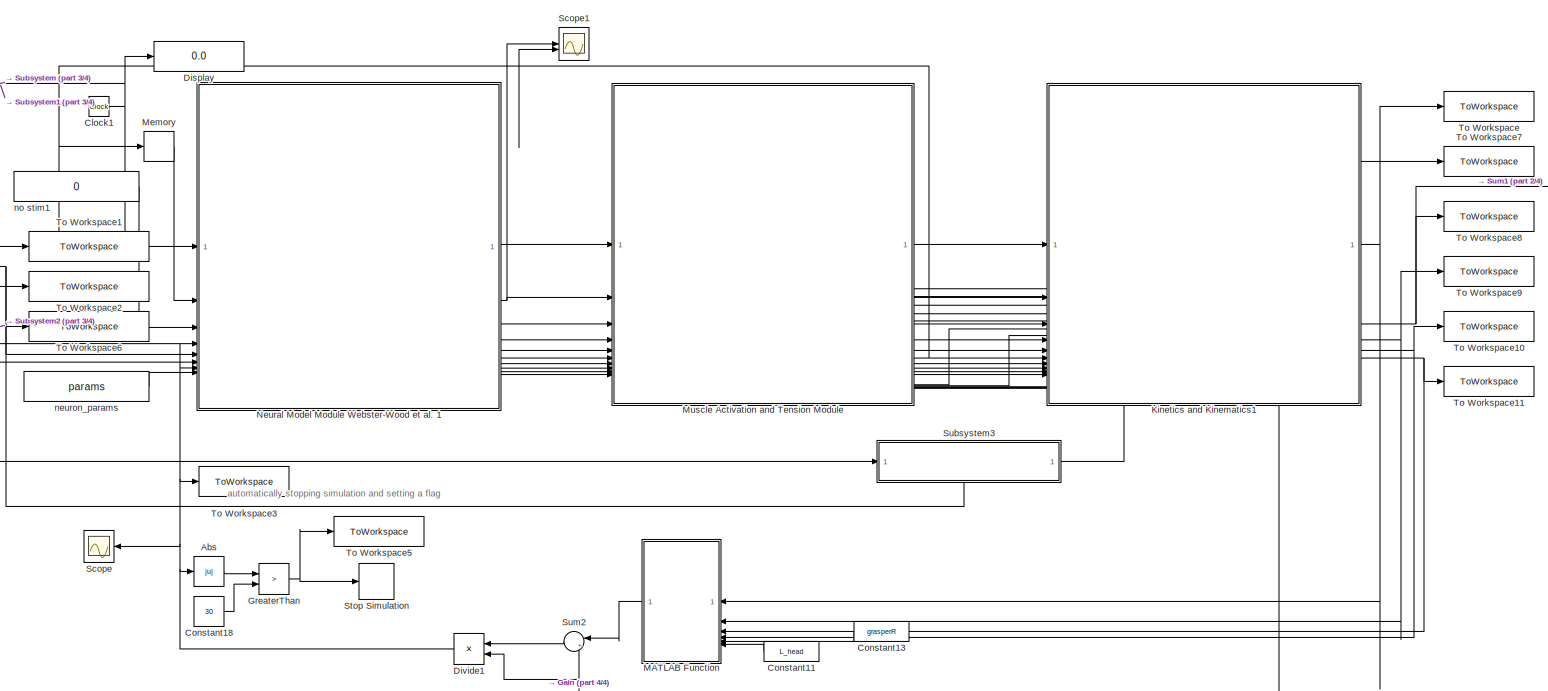
[diagram: root canvas - part 1/4, most of the canvas]
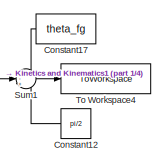
[diagram: root canvas - part 2/4, top right region]
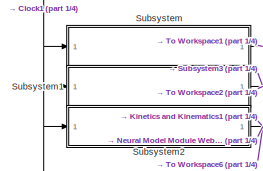
[diagram: root canvas - part 3/4, middle left region]
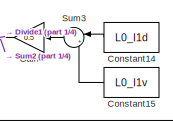
[diagram: root canvas - part 4/4, bottom center region]
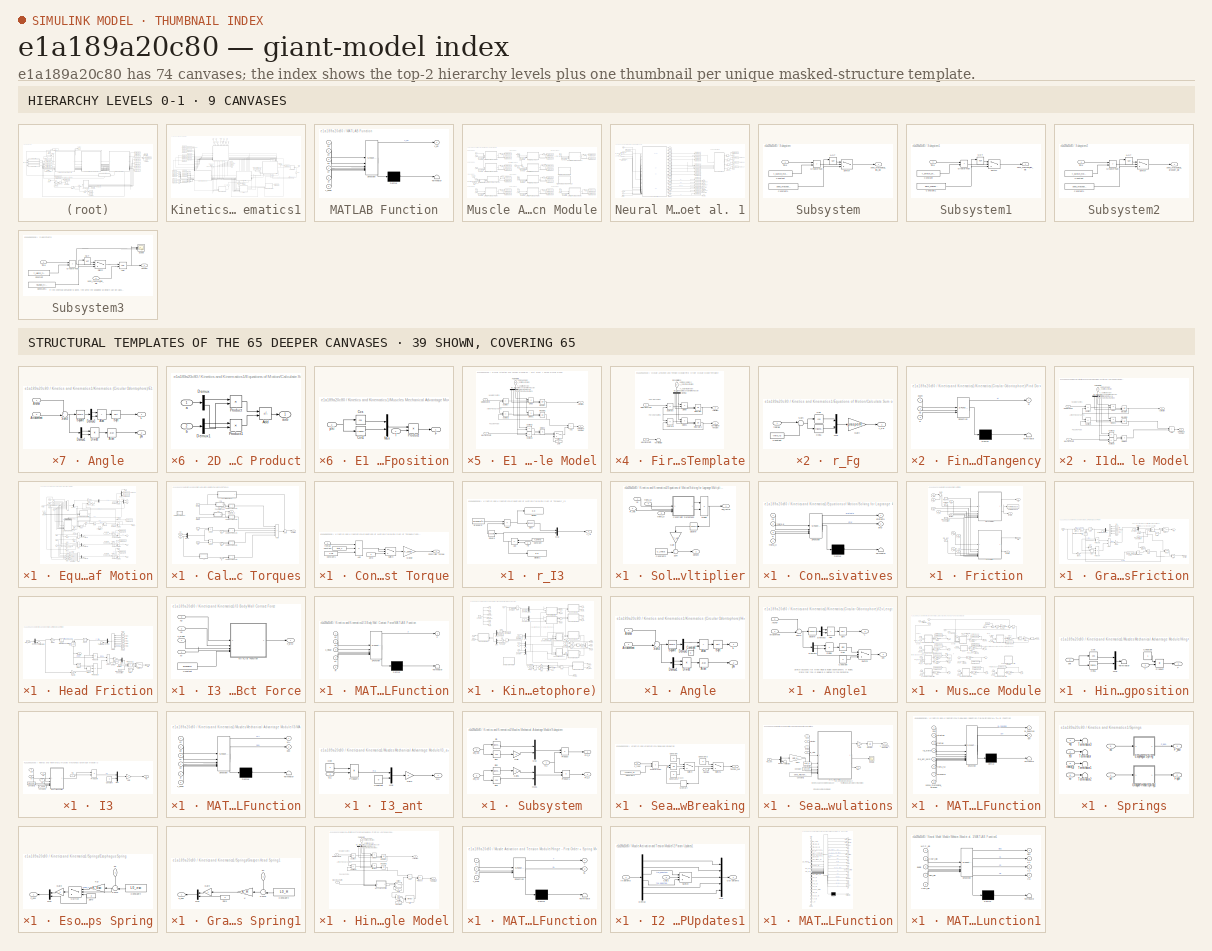
[diagram: thumbnail index - top-2 hierarchy levels (9 canvases) + 39 structural-template representatives of the remaining 65 canvases]
MODEL slx_e1a189a20c80
KIND model
CONFIG AbsTol = auto
CONFIG EnableMultiTasking = off
CONFIG FixedStep = 0.001
CONFIG MaxStep = 0.01
CONFIG MinStep = 1e-6
CONFIG RelTol = 0.001
CONFIG SampleTimeConstraint = Unconstrained
CONFIG SolverName = ode113
CONFIG StartTime = 0.0
CONFIG StopTime = tend
BLOCK [Abs] Abs
  SaturateOnIntegerOverflow = off
BLOCK [Clock] Clock1
BLOCK [Constant] Constant11
  Value = L_head
BLOCK [Constant] Constant12
  NameLocation = top
  Value = pi/2
BLOCK [Constant] Constant13
  Value = grasperR
BLOCK [Constant] Constant14
  NameLocation = top
  Value = L0_I1d
BLOCK [Constant] Constant15
  NameLocation = top
  Value = L0_I1v
BLOCK [Constant] Constant17
  NameLocation = top
  Value = theta_fg
BLOCK [Constant] Constant18
  Value = 30
BLOCK [Display] Display
  Decimation = 1
BLOCK [Product] Divide1
  Inputs = */
  NameLocation = top
BLOCK [Gain] Gain
  Gain = 0.5
  NameLocation = top
BLOCK [RelationalOperator] GreaterThan
  InputSameDT = off
  Operator = >
  OutDataTypeStr = boolean
  RndMeth = Simplest
BLOCK [SubSystem] Kinetics and Kinematics1
  PortSchema = {"entries":[{"content":{"sides":[{"content":{"connectorIds":["In1","In2","In3","In4","In5","In6","In7","In8","In9","In10"]},"type":"ConnectorPlacement.EquallySpacedRectSide","uuid":"feb973b9-0be4-4875-8bab-e7ecafe4ce91"},{"content":{"connectorIds":["Out1","Out2","Out3","Out4","Out5","Out6"],"side":"RIGHT"},"type":"ConnectorPlacement.EquallySpacedRectSide","uuid":"c5092c36-404e-4254-bef3-0d67bb5be9...<+563ch>
BLOCK [Constant] Kinetics and Kinematics1/Constant
  NameLocation = right
  Value = grasperR
BLOCK [Constant] Kinetics and Kinematics1/Constant1
  NameLocation = right
  Value = theta_H
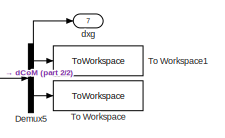
[diagram: Kinetics and Kinematics1/Equations of Motion - part 1/2, top right region]
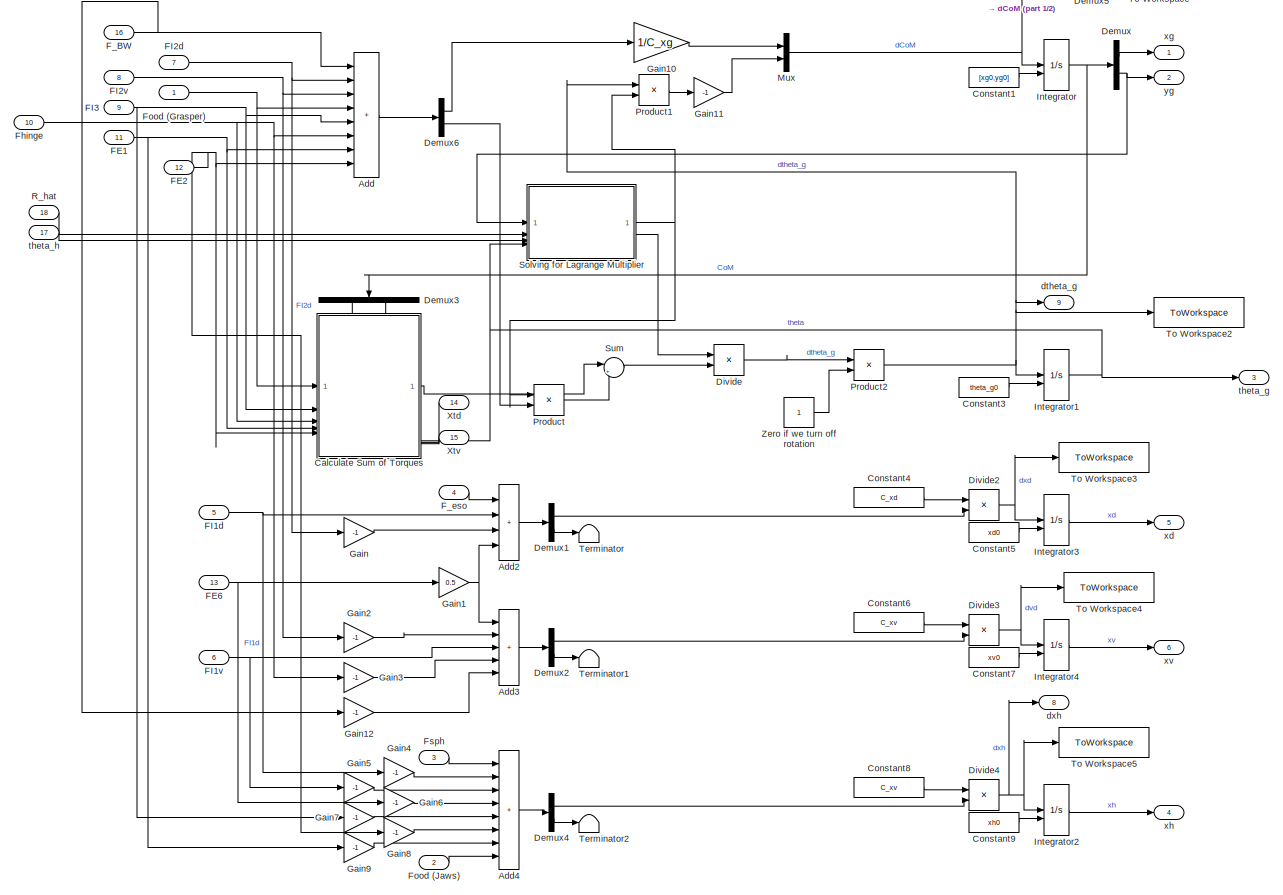
[diagram: Kinetics and Kinematics1/Equations of Motion - part 2/2, most of the canvas]
BLOCK [SubSystem] Kinetics and Kinematics1/Equations of Motion
  PortSchema = {"entries":[{"content":{"sides":[{"content":{"connectorIds":["In1","In2","In3","In4","Out7","Out8","Out9"]},"type":"ConnectorPlacement.EquallySpacedRectSide","uuid":"fc8d0afd-02a2-478d-bf19-33a99a16df05"},{"content":{"connectorIds":["Out1","Out2","Out3","Out4","Out5","Out6"],"side":"RIGHT"},"type":"ConnectorPlacement.EquallySpacedRectSide","uuid":"2253c95e-6db7-473c-a5d6-d56fdecd2583"},{"content":...<+549ch>
BLOCK [Sum] Kinetics and Kinematics1/Equations of Motion/Add
  IconShape = rectangular
  Inputs = ++++++++
BLOCK [Sum] Kinetics and Kinematics1/Equations of Motion/Add2
  IconShape = rectangular
  Inputs = ++++
BLOCK [Sum] Kinetics and Kinematics1/Equations of Motion/Add3
  IconShape = rectangular
  Inputs = +++++
BLOCK [Sum] Kinetics and Kinematics1/Equations of Motion/Add4
  IconShape = rectangular
  Inputs = ++++++++
BLOCK [SubSystem] Kinetics and Kinematics1/Equations of Motion/Calculate Sum of Torques
  PortSchema = {"entries":[{"content":{"sides":[{"content":{"connectorIds":["Out2","In1","In2","In3","In4","In5"]},"type":"ConnectorPlacement.EquallySpacedRectSide","uuid":"c0e43481-c216-4ad4-881f-d2fdf68e5ec3"},{"content":{"connectorIds":["In8","Out1","In9","In10"],"side":"RIGHT"},"type":"ConnectorPlacement.EquallySpacedRectSide","uuid":"16d7448a-0f3e-4f3f-aeff-70fb4c79f422"},{"content":{"connectorIds":["In6","...<+445ch>
BLOCK [SubSystem] Kinetics and Kinematics1/Equations of Motion/Calculate Sum of Torques/2D Cross Product
  Commented = on
BLOCK [Sum] Kinetics and Kinematics1/Equations of Motion/Calculate Sum of Torques/2D Cross Product/Add
  IconShape = rectangular
  Inputs = +-
BLOCK [Demux] Kinetics and Kinematics1/Equations of Motion/Calculate Sum of Torques/2D Cross Product/Demux
  Outputs = 2
BLOCK [Demux] Kinetics and Kinematics1/Equations of Motion/Calculate Sum of Torques/2D Cross Product/Demux1
  Outputs = 2
BLOCK [Product] Kinetics and Kinematics1/Equations of Motion/Calculate Sum of Torques/2D Cross Product/Product
BLOCK [Product] Kinetics and Kinematics1/Equations of Motion/Calculate Sum of Torques/2D Cross Product/Product1
BLOCK [Inport] Kinetics and Kinematics1/Equations of Motion/Calculate Sum of Torques/2D Cross Product/a
BLOCK [Outport] Kinetics and Kinematics1/Equations of Motion/Calculate Sum of Torques/2D Cross Product/axb
BLOCK [Inport] Kinetics and Kinematics1/Equations of Motion/Calculate Sum of Torques/2D Cross Product/b
  Port = 2
BLOCK [SubSystem] Kinetics and Kinematics1/Equations of Motion/Calculate Sum of Torques/2D Cross Product1
BLOCK [Sum] Kinetics and Kinematics1/Equations of Motion/Calculate Sum of Torques/2D Cross Product1/Add
  IconShape = rectangular
  Inputs = +-
BLOCK [Demux] Kinetics and Kinematics1/Equations of Motion/Calculate Sum of Torques/2D Cross Product1/Demux
  Outputs = 2
BLOCK [Demux] Kinetics and Kinematics1/Equations of Motion/Calculate Sum of Torques/2D Cross Product1/Demux1
  Outputs = 2
BLOCK [Product] Kinetics and Kinematics1/Equations of Motion/Calculate Sum of Torques/2D Cross Product1/Product
BLOCK [Product] Kinetics and Kinematics1/Equations of Motion/Calculate Sum of Torques/2D Cross Product1/Product1
BLOCK [Inport] Kinetics and Kinematics1/Equations of Motion/Calculate Sum of Torques/2D Cross Product1/a
BLOCK [Outport] Kinetics and Kinematics1/Equations of Motion/Calculate Sum of Torques/2D Cross Product1/axb
BLOCK [Inport] Kinetics and Kinematics1/Equations of Motion/Calculate Sum of Torques/2D Cross Product1/b
  Port = 2
BLOCK [SubSystem] Kinetics and Kinematics1/Equations of Motion/Calculate Sum of Torques/2D Cross Product2
BLOCK [Sum] Kinetics and Kinematics1/Equations of Motion/Calculate Sum of Torques/2D Cross Product2/Add
  IconShape = rectangular
  Inputs = +-
BLOCK [Demux] Kinetics and Kinematics1/Equations of Motion/Calculate Sum of Torques/2D Cross Product2/Demux
  Outputs = 2
BLOCK [Demux] Kinetics and Kinematics1/Equations of Motion/Calculate Sum of Torques/2D Cross Product2/Demux1
  Outputs = 2
BLOCK [Product] Kinetics and Kinematics1/Equations of Motion/Calculate Sum of Torques/2D Cross Product2/Product
BLOCK [Product] Kinetics and Kinematics1/Equations of Motion/Calculate Sum of Torques/2D Cross Product2/Product1
BLOCK [Inport] Kinetics and Kinematics1/Equations of Motion/Calculate Sum of Torques/2D Cross Product2/a
BLOCK [Outport] Kinetics and Kinematics1/Equations of Motion/Calculate Sum of Torques/2D Cross Product2/axb
BLOCK [Inport] Kinetics and Kinematics1/Equations of Motion/Calculate Sum of Torques/2D Cross Product2/b
  Port = 2
BLOCK [SubSystem] Kinetics and Kinematics1/Equations of Motion/Calculate Sum of Torques/2D Cross Product3
BLOCK [Sum] Kinetics and Kinematics1/Equations of Motion/Calculate Sum of Torques/2D Cross Product3/Add
  IconShape = rectangular
  Inputs = +-
BLOCK [Demux] Kinetics and Kinematics1/Equations of Motion/Calculate Sum of Torques/2D Cross Product3/Demux
  Outputs = 2
BLOCK [Demux] Kinetics and Kinematics1/Equations of Motion/Calculate Sum of Torques/2D Cross Product3/Demux1
  Outputs = 2
BLOCK [Product] Kinetics and Kinematics1/Equations of Motion/Calculate Sum of Torques/2D Cross Product3/Product
BLOCK [Product] Kinetics and Kinematics1/Equations of Motion/Calculate Sum of Torques/2D Cross Product3/Product1
BLOCK [Inport] Kinetics and Kinematics1/Equations of Motion/Calculate Sum of Torques/2D Cross Product3/a
BLOCK [Outport] Kinetics and Kinematics1/Equations of Motion/Calculate Sum of Torques/2D Cross Product3/axb
BLOCK [Inport] Kinetics and Kinematics1/Equations of Motion/Calculate Sum of Torques/2D Cross Product3/b
  Port = 2
BLOCK [SubSystem] Kinetics and Kinematics1/Equations of Motion/Calculate Sum of Torques/2D Cross Product4
BLOCK [Sum] Kinetics and Kinematics1/Equations of Motion/Calculate Sum of Torques/2D Cross Product4/Add
  IconShape = rectangular
  Inputs = +-
BLOCK [Demux] Kinetics and Kinematics1/Equations of Motion/Calculate Sum of Torques/2D Cross Product4/Demux
  Outputs = 2
BLOCK [Demux] Kinetics and Kinematics1/Equations of Motion/Calculate Sum of Torques/2D Cross Product4/Demux1
  Outputs = 2
BLOCK [Product] Kinetics and Kinematics1/Equations of Motion/Calculate Sum of Torques/2D Cross Product4/Product
BLOCK [Product] Kinetics and Kinematics1/Equations of Motion/Calculate Sum of Torques/2D Cross Product4/Product1
BLOCK [Inport] Kinetics and Kinematics1/Equations of Motion/Calculate Sum of Torques/2D Cross Product4/a
BLOCK [Outport] Kinetics and Kinematics1/Equations of Motion/Calculate Sum of Torques/2D Cross Product4/axb
BLOCK [Inport] Kinetics and Kinematics1/Equations of Motion/Calculate Sum of Torques/2D Cross Product4/b
  Port = 2
BLOCK [SubSystem] Kinetics and Kinematics1/Equations of Motion/Calculate Sum of Torques/2D Cross Product5
BLOCK [Sum] Kinetics and Kinematics1/Equations of Motion/Calculate Sum of Torques/2D Cross Product5/Add
  IconShape = rectangular
  Inputs = +-
BLOCK [Demux] Kinetics and Kinematics1/Equations of Motion/Calculate Sum of Torques/2D Cross Product5/Demux
  Outputs = 2
BLOCK [Demux] Kinetics and Kinematics1/Equations of Motion/Calculate Sum of Torques/2D Cross Product5/Demux1
  Outputs = 2
BLOCK [Product] Kinetics and Kinematics1/Equations of Motion/Calculate Sum of Torques/2D Cross Product5/Product
BLOCK [Product] Kinetics and Kinematics1/Equations of Motion/Calculate Sum of Torques/2D Cross Product5/Product1
BLOCK [Inport] Kinetics and Kinematics1/Equations of Motion/Calculate Sum of Torques/2D Cross Product5/a
BLOCK [Outport] Kinetics and Kinematics1/Equations of Motion/Calculate Sum of Torques/2D Cross Product5/axb
BLOCK [Inport] Kinetics and Kinematics1/Equations of Motion/Calculate Sum of Torques/2D Cross Product5/b
  Port = 2
BLOCK [Sum] Kinetics and Kinematics1/Equations of Motion/Calculate Sum of Torques/Add
  IconShape = rectangular
  Inputs = +++++
BLOCK [Sum] Kinetics and Kinematics1/Equations of Motion/Calculate Sum of Torques/Add2
  IconShape = rectangular
  Inputs = +-
BLOCK [Sum] Kinetics and Kinematics1/Equations of Motion/Calculate Sum of Torques/Add3
  IconShape = rectangular
  Inputs = -+
BLOCK [Outport] Kinetics and Kinematics1/Equations of Motion/Calculate Sum of Torques/COM_to_H
  Port = 2
BLOCK [SubSystem] Kinetics and Kinematics1/Equations of Motion/Calculate Sum of Torques/Constraint Torque
BLOCK [Sum] Kinetics and Kinematics1/Equations of Motion/Calculate Sum of Torques/Constraint Torque/Add
  IconShape = rectangular
  Inputs = --+
BLOCK [Constant] Kinetics and Kinematics1/Equations of Motion/Calculate Sum of Torques/Constraint Torque/Constant
  Value = theta_H
BLOCK [Constant] Kinetics and Kinematics1/Equations of Motion/Calculate Sum of Torques/Constraint Torque/Constant1
  Value = 3*pi/2
BLOCK [Outport] Kinetics and Kinematics1/Equations of Motion/Calculate Sum of Torques/Constraint Torque/Constraint Torque
BLOCK [Gain] Kinetics and Kinematics1/Equations of Motion/Calculate Sum of Torques/Constraint Torque/Multiply
  Gain = K_const
BLOCK [Switch] Kinetics and Kinematics1/Equations of Motion/Calculate Sum of Torques/Constraint Torque/Switch
  Criteria = u2 > Threshold
  InputSameDT = off
  SaturateOnIntegerOverflow = off
BLOCK [Constant] Kinetics and Kinematics1/Equations of Motion/Calculate Sum of Torques/Constraint Torque/Zero
  OutDataTypeStr = Inherit: Inherit via back propagation
  Value = 0
BLOCK [Inport] Kinetics and Kinematics1/Equations of Motion/Calculate Sum of Torques/Constraint Torque/thetag
BLOCK [Inport] Kinetics and Kinematics1/Equations of Motion/Calculate Sum of Torques/E1
  Port = 4
BLOCK [Inport] Kinetics and Kinematics1/Equations of Motion/Calculate Sum of Torques/E2
  Port = 5
BLOCK [Inport] Kinetics and Kinematics1/Equations of Motion/Calculate Sum of Torques/Food (Grasper)
BLOCK [Inport] Kinetics and Kinematics1/Equations of Motion/Calculate Sum of Torques/Hinge
  NameLocation = top
  Port = 3
BLOCK [Inport] Kinetics and Kinematics1/Equations of Motion/Calculate Sum of Torques/I3
  Port = 2
BLOCK [Mux] Kinetics and Kinematics1/Equations of Motion/Calculate Sum of Torques/Mux2
  DisplayOption = bar
  Inputs = 2
BLOCK [Sum] Kinetics and Kinematics1/Equations of Motion/Calculate Sum of Torques/Sum
  Inputs = ++|
BLOCK [Outport] Kinetics and Kinematics1/Equations of Motion/Calculate Sum of Torques/Sum tau
BLOCK [Inport] Kinetics and Kinematics1/Equations of Motion/Calculate Sum of Torques/Xtd
  NameLocation = top
  Port = 9
BLOCK [Inport] Kinetics and Kinematics1/Equations of Motion/Calculate Sum of Torques/Xtv
  NameLocation = top
  Port = 10
BLOCK [SubSystem] Kinetics and Kinematics1/Equations of Motion/Calculate Sum of Torques/r_Fg
  NameLocation = top
BLOCK [Constant] Kinetics and Kinematics1/Equations of Motion/Calculate Sum of Torques/r_Fg/Constant
  Value = theta_fg
BLOCK [Trigonometry] Kinetics and Kinematics1/Equations of Motion/Calculate Sum of Torques/r_Fg/Cos
  Operator = cos
BLOCK [Trigonometry] Kinetics and Kinematics1/Equations of Motion/Calculate Sum of Torques/r_Fg/Cos1
BLOCK [Gain] Kinetics and Kinematics1/Equations of Motion/Calculate Sum of Torques/r_Fg/Gain
  Gain = grasperR
BLOCK [Mux] Kinetics and Kinematics1/Equations of Motion/Calculate Sum of Torques/r_Fg/Mux
  DisplayOption = bar
  Inputs = 2
BLOCK [Sum] Kinetics and Kinematics1/Equations of Motion/Calculate Sum of Torques/r_Fg/Sum
  Inputs = |+-
BLOCK [Outport] Kinetics and Kinematics1/Equations of Motion/Calculate Sum of Torques/r_Fg/r_Fg
BLOCK [Inport] Kinetics and Kinematics1/Equations of Motion/Calculate Sum of Torques/r_Fg/thetag
BLOCK [SubSystem] Kinetics and Kinematics1/Equations of Motion/Calculate Sum of Torques/r_H
  NameLocation = top
BLOCK [Constant] Kinetics and Kinematics1/Equations of Motion/Calculate Sum of Torques/r_H/Constant
  Value = theta_H
BLOCK [Trigonometry] Kinetics and Kinematics1/Equations of Motion/Calculate Sum of Torques/r_H/Cos2
BLOCK [Trigonometry] Kinetics and Kinematics1/Equations of Motion/Calculate Sum of Torques/r_H/Cos3
  Operator = cos
BLOCK [Gain] Kinetics and Kinematics1/Equations of Motion/Calculate Sum of Torques/r_H/Gain
  Gain = grasperR
BLOCK [Mux] Kinetics and Kinematics1/Equations of Motion/Calculate Sum of Torques/r_H/Mux
  DisplayOption = bar
  Inputs = 2
BLOCK [Sum] Kinetics and Kinematics1/Equations of Motion/Calculate Sum of Torques/r_H/Sum
  Inputs = |++
BLOCK [Outport] Kinetics and Kinematics1/Equations of Motion/Calculate Sum of Torques/r_H/r_H
BLOCK [Inport] Kinetics and Kinematics1/Equations of Motion/Calculate Sum of Torques/r_H/thetag
BLOCK [SubSystem] Kinetics and Kinematics1/Equations of Motion/Calculate Sum of Torques/r_I3
BLOCK [Sum] Kinetics and Kinematics1/Equations of Motion/Calculate Sum of Torques/r_I3/Add
  IconShape = rectangular
  Inputs = +-
BLOCK [Sum] Kinetics and Kinematics1/Equations of Motion/Calculate Sum of Torques/r_I3/Add2
  IconShape = rectangular
  Inputs = +-
BLOCK [Constant] Kinetics and Kinematics1/Equations of Motion/Calculate Sum of Torques/r_I3/Constant
  Value = H_lumen/2
BLOCK [Display] Kinetics and Kinematics1/Equations of Motion/Calculate Sum of Torques/r_I3/Display
  Decimation = 1
BLOCK [Display] Kinetics and Kinematics1/Equations of Motion/Calculate Sum of Torques/r_I3/Display1
  Decimation = 1
BLOCK [Mux] Kinetics and Kinematics1/Equations of Motion/Calculate Sum of Torques/r_I3/Mux
  DisplayOption = bar
  Inputs = 2
BLOCK [Sqrt] Kinetics and Kinematics1/Equations of Motion/Calculate Sum of Torques/r_I3/Sqrt
  Operator = signedSqrt
BLOCK [Math] Kinetics and Kinematics1/Equations of Motion/Calculate Sum of Torques/r_I3/Square
  Operator = square
BLOCK [Constant] Kinetics and Kinematics1/Equations of Motion/Calculate Sum of Torques/r_I3/grasperR
  Value = grasperR^2
BLOCK [Outport] Kinetics and Kinematics1/Equations of Motion/Calculate Sum of Torques/r_I3/r_I3
BLOCK [Inport] Kinetics and Kinematics1/Equations of Motion/Calculate Sum of Torques/r_I3/yg
BLOCK [Inport] Kinetics and Kinematics1/Equations of Motion/Calculate Sum of Torques/thetag
  Port = 8
BLOCK [Inport] Kinetics and Kinematics1/Equations of Motion/Calculate Sum of Torques/xg
  NameLocation = top
  Port = 6
BLOCK [Inport] Kinetics and Kinematics1/Equations of Motion/Calculate Sum of Torques/yg
  Port = 7
BLOCK [Constant] Kinetics and Kinematics1/Equations of Motion/Constant1
  Value = [xg0,yg0]
BLOCK [Constant] Kinetics and Kinematics1/Equations of Motion/Constant3
  Value = theta_g0
BLOCK [Constant] Kinetics and Kinematics1/Equations of Motion/Constant4
  Value = C_xd
BLOCK [Constant] Kinetics and Kinematics1/Equations of Motion/Constant5
  Value = xd0
BLOCK [Constant] Kinetics and Kinematics1/Equations of Motion/Constant6
  Value = C_xv
BLOCK [Constant] Kinetics and Kinematics1/Equations of Motion/Constant7
  Value = xv0
BLOCK [Constant] Kinetics and Kinematics1/Equations of Motion/Constant8
  Value = C_xv
BLOCK [Constant] Kinetics and Kinematics1/Equations of Motion/Constant9
  Value = xh0
BLOCK [Demux] Kinetics and Kinematics1/Equations of Motion/Demux
  Outputs = 2
BLOCK [Demux] Kinetics and Kinematics1/Equations of Motion/Demux1
  Outputs = 2
BLOCK [Demux] Kinetics and Kinematics1/Equations of Motion/Demux2
  Outputs = 2
BLOCK [Demux] Kinetics and Kinematics1/Equations of Motion/Demux3
  NameLocation = right
  Outputs = 2
BLOCK [Demux] Kinetics and Kinematics1/Equations of Motion/Demux4
  Outputs = 2
BLOCK [Demux] Kinetics and Kinematics1/Equations of Motion/Demux5
  Outputs = 2
BLOCK [Demux] Kinetics and Kinematics1/Equations of Motion/Demux6
  Outputs = 2
BLOCK [Product] Kinetics and Kinematics1/Equations of Motion/Divide
  Inputs = /*
BLOCK [Product] Kinetics and Kinematics1/Equations of Motion/Divide2
  Inputs = /*
BLOCK [Product] Kinetics and Kinematics1/Equations of Motion/Divide3
  Inputs = /*
BLOCK [Product] Kinetics and Kinematics1/Equations of Motion/Divide4
  Inputs = /*
BLOCK [Inport] Kinetics and Kinematics1/Equations of Motion/FE1
  Port = 11
BLOCK [Inport] Kinetics and Kinematics1/Equations of Motion/FE2
  Port = 12
BLOCK [Inport] Kinetics and Kinematics1/Equations of Motion/FE6
  Port = 13
BLOCK [Inport] Kinetics and Kinematics1/Equations of Motion/FI1d
  Port = 5
BLOCK [Inport] Kinetics and Kinematics1/Equations of Motion/FI1v
  Port = 6
BLOCK [Inport] Kinetics and Kinematics1/Equations of Motion/FI2d
  Port = 7
BLOCK [Inport] Kinetics and Kinematics1/Equations of Motion/FI2v
  Port = 8
BLOCK [Inport] Kinetics and Kinematics1/Equations of Motion/FI3
  Port = 9
BLOCK [Inport] Kinetics and Kinematics1/Equations of Motion/F_BW
  Port = 16
BLOCK [Inport] Kinetics and Kinematics1/Equations of Motion/F_eso
  NameLocation = top
  Port = 4
BLOCK [Inport] Kinetics and Kinematics1/Equations of Motion/Fhinge
  Port = 10
BLOCK [Inport] Kinetics and Kinematics1/Equations of Motion/Food (Grasper)
BLOCK [Inport] Kinetics and Kinematics1/Equations of Motion/Food (Jaws)
  Port = 2
BLOCK [Inport] Kinetics and Kinematics1/Equations of Motion/Fsph
  NameLocation = top
  Port = 3
BLOCK [Gain] Kinetics and Kinematics1/Equations of Motion/Gain
  Gain = -1
BLOCK [Gain] Kinetics and Kinematics1/Equations of Motion/Gain1
  Gain = 0.5
BLOCK [Gain] Kinetics and Kinematics1/Equations of Motion/Gain10
  Gain = 1/C_xg
BLOCK [Gain] Kinetics and Kinematics1/Equations of Motion/Gain11
  Gain = -1
BLOCK [Gain] Kinetics and Kinematics1/Equations of Motion/Gain12
  Gain = -1
BLOCK [Gain] Kinetics and Kinematics1/Equations of Motion/Gain2
  Gain = -1
BLOCK [Gain] Kinetics and Kinematics1/Equations of Motion/Gain3
  Gain = -1
BLOCK [Gain] Kinetics and Kinematics1/Equations of Motion/Gain4
  Gain = -1
BLOCK [Gain] Kinetics and Kinematics1/Equations of Motion/Gain5
  Gain = -1
BLOCK [Gain] Kinetics and Kinematics1/Equations of Motion/Gain6
  Gain = -1
BLOCK [Gain] Kinetics and Kinematics1/Equations of Motion/Gain7
  Gain = -1
BLOCK [Gain] Kinetics and Kinematics1/Equations of Motion/Gain8
  Gain = -1
BLOCK [Gain] Kinetics and Kinematics1/Equations of Motion/Gain9
  Gain = -1
BLOCK [Integrator] Kinetics and Kinematics1/Equations of Motion/Integrator
  InitialConditionSource = external
BLOCK [Integrator] Kinetics and Kinematics1/Equations of Motion/Integrator1
  InitialConditionSource = external
BLOCK [Integrator] Kinetics and Kinematics1/Equations of Motion/Integrator2
  InitialConditionSource = external
BLOCK [Integrator] Kinetics and Kinematics1/Equations of Motion/Integrator3
  InitialConditionSource = external
BLOCK [Integrator] Kinetics and Kinematics1/Equations of Motion/Integrator4
  InitialConditionSource = external
BLOCK [Mux] Kinetics and Kinematics1/Equations of Motion/Mux
  DisplayOption = bar
  Inputs = 2
BLOCK [Product] Kinetics and Kinematics1/Equations of Motion/Product
BLOCK [Product] Kinetics and Kinematics1/Equations of Motion/Product1
BLOCK [Product] Kinetics and Kinematics1/Equations of Motion/Product2
BLOCK [Inport] Kinetics and Kinematics1/Equations of Motion/R_hat
  NameLocation = top
  Port = 18
BLOCK [SubSystem] Kinetics and Kinematics1/Equations of Motion/Solving for Lagrange Multiplier
BLOCK [Constant] Kinetics and Kinematics1/Equations of Motion/Solving for Lagrange Multiplier/Constant2
  Value = C_theta
BLOCK [SubSystem] Kinetics and Kinematics1/Equations of Motion/Solving for Lagrange Multiplier/Constraint Derivatives
  ErrorFcn = Stateflow.Translate.translate
  LibrarySourceBlock = simulink/User-Defined\nFunctions/MATLAB Function
  PermitHierarchicalResolution = ExplicitOnly
  SFBlockType = MATLAB Function
  TreatAsAtomicUnit = on
BLOCK [Demux] Kinetics and Kinematics1/Equations of Motion/Solving for Lagrange Multiplier/Constraint Derivatives/ Demux 
  Outputs = 1
BLOCK [S-Function] Kinetics and Kinematics1/Equations of Motion/Solving for Lagrange Multiplier/Constraint Derivatives/ SFunction 
  EnableBusSupport = on
  FunctionName = sf_sfun
  PortCounts = [4 3]
  SFcnIsStateOwnerBlock = off
  SFunctionDeploymentMode = off
  Tag = Stateflow S-Function 10
BLOCK [Terminator] Kinetics and Kinematics1/Equations of Motion/Solving for Lagrange Multiplier/Constraint Derivatives/ Terminator 
BLOCK [Inport] Kinetics and Kinematics1/Equations of Motion/Solving for Lagrange Multiplier/Constraint Derivatives/R
  Port = 3
BLOCK [Outport] Kinetics and Kinematics1/Equations of Motion/Solving for Lagrange Multiplier/Constraint Derivatives/dfdtheta
BLOCK [Outport] Kinetics and Kinematics1/Equations of Motion/Solving for Lagrange Multiplier/Constraint Derivatives/dfdy
  Port = 2
BLOCK [Inport] Kinetics and Kinematics1/Equations of Motion/Solving for Lagrange Multiplier/Constraint Derivatives/theta_H
  Port = 4
BLOCK [Inport] Kinetics and Kinematics1/Equations of Motion/Solving for Lagrange Multiplier/Constraint Derivatives/theta_g
  Port = 2
BLOCK [Inport] Kinetics and Kinematics1/Equations of Motion/Solving for Lagrange Multiplier/Constraint Derivatives/yg
BLOCK [Product] Kinetics and Kinematics1/Equations of Motion/Solving for Lagrange Multiplier/Divide
  Inputs = */
BLOCK [Gain] Kinetics and Kinematics1/Equations of Motion/Solving for Lagrange Multiplier/Gain
  Gain = C_yg
  NameLocation = left
BLOCK [Inport] Kinetics and Kinematics1/Equations of Motion/Solving for Lagrange Multiplier/R_hat
  Port = 2
BLOCK [Math] Kinetics and Kinematics1/Equations of Motion/Solving for Lagrange Multiplier/Square
  Operator = square
BLOCK [Sum] Kinetics and Kinematics1/Equations of Motion/Solving for Lagrange Multiplier/Sum
  Inputs = ++|
BLOCK [Outport] Kinetics and Kinematics1/Equations of Motion/Solving for Lagrange Multiplier/del_factor
BLOCK [Outport] Kinetics and Kinematics1/Equations of Motion/Solving for Lagrange Multiplier/denom
  Port = 2
BLOCK [Inport] Kinetics and Kinematics1/Equations of Motion/Solving for Lagrange Multiplier/theta_g
  NameLocation = top
  Port = 4
BLOCK [Inport] Kinetics and Kinematics1/Equations of Motion/Solving for Lagrange Multiplier/theta_h
  Port = 3
BLOCK [Inport] Kinetics and Kinematics1/Equations of Motion/Solving for Lagrange Multiplier/yg
  NameLocation = top
BLOCK [Sum] Kinetics and Kinematics1/Equations of Motion/Sum
  Inputs = |+-
BLOCK [Terminator] Kinetics and Kinematics1/Equations of Motion/Terminator
BLOCK [Terminator] Kinetics and Kinematics1/Equations of Motion/Terminator1
BLOCK [Terminator] Kinetics and Kinematics1/Equations of Motion/Terminator2
BLOCK [ToWorkspace] Kinetics and Kinematics1/Equations of Motion/To Workspace
  FixptAsFi = on
  MaxDataPoints = inf
  SampleTime = -1
  VariableName = dyg
BLOCK [ToWorkspace] Kinetics and Kinematics1/Equations of Motion/To Workspace1
  FixptAsFi = on
  MaxDataPoints = inf
  SampleTime = -1
  VariableName = dxg
BLOCK [ToWorkspace] Kinetics and Kinematics1/Equations of Motion/To Workspace2
  FixptAsFi = on
  MaxDataPoints = inf
  SampleTime = -1
  VariableName = dtheta_g
BLOCK [ToWorkspace] Kinetics and Kinematics1/Equations of Motion/To Workspace3
  FixptAsFi = on
  MaxDataPoints = inf
  SampleTime = -1
  VariableName = dxd
BLOCK [ToWorkspace] Kinetics and Kinematics1/Equations of Motion/To Workspace4
  FixptAsFi = on
  MaxDataPoints = inf
  SampleTime = -1
  VariableName = dxv
BLOCK [ToWorkspace] Kinetics and Kinematics1/Equations of Motion/To Workspace5
  FixptAsFi = on
  MaxDataPoints = inf
  SampleTime = -1
  VariableName = dxh
BLOCK [Inport] Kinetics and Kinematics1/Equations of Motion/Xtd
  NameLocation = right
  Port = 14
BLOCK [Inport] Kinetics and Kinematics1/Equations of Motion/Xtv
  NameLocation = right
  Port = 15
BLOCK [Constant] Kinetics and Kinematics1/Equations of Motion/Zero if we turn off rotation
  OutDataTypeStr = Inherit: Inherit via back propagation
BLOCK [Outport] Kinetics and Kinematics1/Equations of Motion/dtheta_g
  Port = 9
BLOCK [Outport] Kinetics and Kinematics1/Equations of Motion/dxg
  NameLocation = top
  Port = 7
BLOCK [Outport] Kinetics and Kinematics1/Equations of Motion/dxh
  Port = 8
BLOCK [Outport] Kinetics and Kinematics1/Equations of Motion/theta_g
  Port = 3
BLOCK [Inport] Kinetics and Kinematics1/Equations of Motion/theta_h
  Port = 17
BLOCK [Outport] Kinetics and Kinematics1/Equations of Motion/xd
  Port = 5
BLOCK [Outport] Kinetics and Kinematics1/Equations of Motion/xg
  NameLocation = top
BLOCK [Outport] Kinetics and Kinematics1/Equations of Motion/xh
  Port = 4
BLOCK [Outport] Kinetics and Kinematics1/Equations of Motion/xv
  Port = 6
BLOCK [Outport] Kinetics and Kinematics1/Equations of Motion/yg
  Port = 2
BLOCK [SubSystem] Kinetics and Kinematics1/Friction
  PortSchema = {"entries":[{"content":{"sides":[{"content":{"connectorIds":["In1","In2","In3","In4","In5","In6","In7","In8","In9","In10","In11"]},"type":"ConnectorPlacement.EquallySpacedRectSide","uuid":"97b41599-dff3-491f-acd3-dab3384a422d"},{"content":{"connectorIds":["Out1","Out2","Out3","Out4"],"side":"RIGHT"},"type":"ConnectorPlacement.EquallySpacedRectSide","uuid":"7a9b386b-0421-4afc-b8c2-6f24613cda45"},{"...<+487ch>
BLOCK [Inport] Kinetics and Kinematics1/Friction/FI3_vec
  Port = 7
BLOCK [Inport] Kinetics and Kinematics1/Friction/FI4
  Port = 5
BLOCK [Inport] Kinetics and Kinematics1/Friction/F_E1
  Port = 3
BLOCK [Inport] Kinetics and Kinematics1/Friction/F_E2
  Port = 2
BLOCK [Inport] Kinetics and Kinematics1/Friction/F_E6
BLOCK [Inport] Kinetics and Kinematics1/Friction/F_I1d
  Port = 11
BLOCK [Inport] Kinetics and Kinematics1/Friction/F_I1v
  Port = 10
BLOCK [Inport] Kinetics and Kinematics1/Friction/F_I2d
  Port = 9
BLOCK [Inport] Kinetics and Kinematics1/Friction/F_I2v
  Port = 8
BLOCK [Inport] Kinetics and Kinematics1/Friction/F_sph
  Port = 14
BLOCK [Outport] Kinetics and Kinematics1/Friction/Ffg
BLOCK [Outport] Kinetics and Kinematics1/Friction/Ffh
  Port = 2
BLOCK [Inport] Kinetics and Kinematics1/Friction/Fhinge
  Port = 4
BLOCK [SubSystem] Kinetics and Kinematics1/Friction/Grasper Friction
BLOCK [Logic] Kinetics and Kinematics1/Friction/Grasper Friction/AND
  AllPortsSameDT = off
  IconShape = distinctive
  OutDataTypeStr = boolean
BLOCK [Logic] Kinetics and Kinematics1/Friction/Grasper Friction/AND1
  AllPortsSameDT = off
  IconShape = distinctive
  OutDataTypeStr = boolean
BLOCK [Abs] Kinetics and Kinematics1/Friction/Grasper Friction/Abs
  NameLocation = top
  SaturateOnIntegerOverflow = off
  ZeroCross = off
BLOCK [Abs] Kinetics and Kinematics1/Friction/Grasper Friction/Abs1
  SaturateOnIntegerOverflow = off
  ZeroCross = off
BLOCK [Sum] Kinetics and Kinematics1/Friction/Grasper Friction/Add
  IconShape = rectangular
  Inputs = +++++
  NameLocation = top
BLOCK [Sum] Kinetics and Kinematics1/Friction/Grasper Friction/Add1
  IconShape = rectangular
BLOCK [Constant] Kinetics and Kinematics1/Friction/Grasper Friction/Constant
  Value = 0
BLOCK [Demux] Kinetics and Kinematics1/Friction/Grasper Friction/Demux
  NameLocation = top
  Outputs = 2
BLOCK [Inport] Kinetics and Kinematics1/Friction/Grasper Friction/FE1
  NameLocation = right
  Port = 5
BLOCK [Inport] Kinetics and Kinematics1/Friction/Grasper Friction/FE2
  NameLocation = right
  Port = 6
BLOCK [Inport] Kinetics and Kinematics1/Friction/Grasper Friction/FI2
  NameLocation = right
BLOCK [Inport] Kinetics and Kinematics1/Friction/Grasper Friction/FI3
  NameLocation = right
  Port = 2
BLOCK [Inport] Kinetics and Kinematics1/Friction/Grasper Friction/FI4
  Port = 3
BLOCK [Outport] Kinetics and Kinematics1/Friction/Grasper Friction/Ffg
BLOCK [Inport] Kinetics and Kinematics1/Friction/Grasper Friction/Fhinge
  NameLocation = right
  Port = 4
BLOCK [Gain] Kinetics and Kinematics1/Friction/Grasper Friction/Gain10
  Gain = usg
BLOCK [Gain] Kinetics and Kinematics1/Friction/Grasper Friction/Gain5
  Gain = -1
BLOCK [Gain] Kinetics and Kinematics1/Friction/Grasper Friction/Gain9
  Gain = ukg
BLOCK [RelationalOperator] Kinetics and Kinematics1/Friction/Grasper Friction/GreaterThan2
  InputSameDT = off
  Operator = >
  OutDataTypeStr = boolean
  RndMeth = Simplest
BLOCK [RelationalOperator] Kinetics and Kinematics1/Friction/Grasper Friction/GreaterThanOrEqual
  InputSameDT = off
  NameLocation = left
  OutDataTypeStr = boolean
  RndMeth = Simplest
  ZeroCross = off
BLOCK [Mux] Kinetics and Kinematics1/Friction/Grasper Friction/Mux
  DisplayOption = bar
  Inputs = 2
BLOCK [Logic] Kinetics and Kinematics1/Friction/Grasper Friction/NOT
  AllPortsSameDT = off
  IconShape = distinctive
  Operator = NOT
  OutDataTypeStr = boolean
BLOCK [Logic] Kinetics and Kinematics1/Friction/Grasper Friction/NOT2
  AllPortsSameDT = off
  IconShape = distinctive
  Operator = NOT
  OutDataTypeStr = boolean
BLOCK [Logic] Kinetics and Kinematics1/Friction/Grasper Friction/OR
  AllPortsSameDT = off
  IconShape = distinctive
  Operator = OR
  OutDataTypeStr = boolean
BLOCK [Product] Kinetics and Kinematics1/Friction/Grasper Friction/Product12
  Inputs = 3
BLOCK [Product] Kinetics and Kinematics1/Friction/Grasper Friction/Product6
BLOCK [Product] Kinetics and Kinematics1/Friction/Grasper Friction/Product7
  Inputs = 3
BLOCK [Signum] Kinetics and Kinematics1/Friction/Grasper Friction/Sign
  ZeroCross = off
BLOCK [Switch] Kinetics and Kinematics1/Friction/Grasper Friction/Switch2
  Criteria = u2 > Threshold
  InputSameDT = off
  SaturateOnIntegerOverflow = off
BLOCK [Terminator] Kinetics and Kinematics1/Friction/Grasper Friction/Terminator
  NameLocation = top
BLOCK [Constant] Kinetics and Kinematics1/Friction/Grasper Friction/Zero
  OutDataTypeStr = Inherit: Inherit via back propagation
  Value = [0 0]
BLOCK [Constant] Kinetics and Kinematics1/Friction/Grasper Friction/Zero2
  OutDataTypeStr = Inherit: Inherit via back propagation
  Value = 0.5*FI4_max
BLOCK [Outport] Kinetics and Kinematics1/Friction/Grasper Friction/fg state
  Port = 2
BLOCK [Inport] Kinetics and Kinematics1/Friction/Grasper Friction/fixation
  Port = 7
BLOCK [Inport] Kinetics and Kinematics1/Friction/Grasper Friction/mechanical sensation
  Port = 8
BLOCK [SubSystem] Kinetics and Kinematics1/Friction/Head Friction
BLOCK [Abs] Kinetics and Kinematics1/Friction/Head Friction/Abs2
  NameLocation = top
  SaturateOnIntegerOverflow = off
  ZeroCross = off
BLOCK [Abs] Kinetics and Kinematics1/Friction/Head Friction/Abs3
  SaturateOnIntegerOverflow = off
  ZeroCross = off
BLOCK [Sum] Kinetics and Kinematics1/Friction/Head Friction/Add1
  IconShape = rectangular
  Inputs = ------+
  NameLocation = top
BLOCK [Sum] Kinetics and Kinematics1/Friction/Head Friction/Add3
  IconShape = rectangular
BLOCK [Demux] Kinetics and Kinematics1/Friction/Head Friction/Demux
  Outputs = 2
BLOCK [Demux] Kinetics and Kinematics1/Friction/Head Friction/Demux1
  Outputs = 2
BLOCK [Inport] Kinetics and Kinematics1/Friction/Head Friction/FE1
  NameLocation = right
  Port = 5
BLOCK [Inport] Kinetics and Kinematics1/Friction/Head Friction/FE2
  NameLocation = right
  Port = 6
BLOCK [Inport] Kinetics and Kinematics1/Friction/Head Friction/FE6
  NameLocation = right
  Port = 7
BLOCK [Inport] Kinetics and Kinematics1/Friction/Head Friction/FI1d
  NameLocation = right
BLOCK [Inport] Kinetics and Kinematics1/Friction/Head Friction/FI1v
  NameLocation = right
  Port = 2
BLOCK [Inport] Kinetics and Kinematics1/Friction/Head Friction/FI3
  NameLocation = right
  Port = 3
BLOCK [Inport] Kinetics and Kinematics1/Friction/Head Friction/FI3_ant
  Port = 4
BLOCK [Outport] Kinetics and Kinematics1/Friction/Head Friction/Ffh
BLOCK [Inport] Kinetics and Kinematics1/Friction/Head Friction/Fsph
  NameLocation = right
  Port = 8
BLOCK [Gain] Kinetics and Kinematics1/Friction/Head Friction/Gain11
  Gain = -1
BLOCK [Gain] Kinetics and Kinematics1/Friction/Head Friction/Gain7
  Gain = ush
BLOCK [Gain] Kinetics and Kinematics1/Friction/Head Friction/Gain8
  Gain = ukh
BLOCK [RelationalOperator] Kinetics and Kinematics1/Friction/Head Friction/GreaterThanOrEqual1
  InputSameDT = off
  NameLocation = left
  OutDataTypeStr = boolean
  RndMeth = Simplest
  ZeroCross = off
BLOCK [Mux] Kinetics and Kinematics1/Friction/Head Friction/Mux
  DisplayOption = bar
  Inputs = 2
BLOCK [Logic] Kinetics and Kinematics1/Friction/Head Friction/NOT1
  AllPortsSameDT = off
  IconShape = distinctive
  Operator = NOT
  OutDataTypeStr = boolean
BLOCK [Product] Kinetics and Kinematics1/Friction/Head Friction/Product10
  Inputs = 3
BLOCK [Product] Kinetics and Kinematics1/Friction/Head Friction/Product11
  Inputs = 3
BLOCK [Product] Kinetics and Kinematics1/Friction/Head Friction/Product9
BLOCK [Signum] Kinetics and Kinematics1/Friction/Head Friction/Sign1
  ZeroCross = off
BLOCK [Switch] Kinetics and Kinematics1/Friction/Head Friction/Switch1
  Criteria = u2 > Threshold
  InputSameDT = off
  SaturateOnIntegerOverflow = off
BLOCK [Terminator] Kinetics and Kinematics1/Friction/Head Friction/Terminator
BLOCK [Terminator] Kinetics and Kinematics1/Friction/Head Friction/Terminator1
BLOCK [Constant] Kinetics and Kinematics1/Friction/Head Friction/Zero
  OutDataTypeStr = Inherit: Inherit via back propagation
  Value = [0 0]
BLOCK [Constant] Kinetics and Kinematics1/Friction/Head Friction/Zero1
  OutDataTypeStr = Inherit: Inherit via back propagation
  Value = 0
BLOCK [Outport] Kinetics and Kinematics1/Friction/Head Friction/fh state
  Port = 2
BLOCK [Inport] Kinetics and Kinematics1/Friction/Head Friction/fixation
  Port = 9
BLOCK [Inport] Kinetics and Kinematics1/Friction/Head Friction/mechanical sensation
  Port = 10
BLOCK [Inport] Kinetics and Kinematics1/Friction/PI3_ant
  Port = 6
BLOCK [Sum] Kinetics and Kinematics1/Friction/Sum
  Inputs = |++
BLOCK [ToWorkspace] Kinetics and Kinematics1/Friction/To Workspace
  FixptAsFi = on
  MaxDataPoints = inf
  SampleTime = -1
  VariableName = fg_state
BLOCK [Outport] Kinetics and Kinematics1/Friction/fg state
  Port = 3
BLOCK [Outport] Kinetics and Kinematics1/Friction/fh state
  Port = 4
BLOCK [Inport] Kinetics and Kinematics1/Friction/fixation
  Port = 13
BLOCK [Inport] Kinetics and Kinematics1/Friction/mechanical sensation
  Port = 12
BLOCK [SubSystem] Kinetics and Kinematics1/I3 Body Wall Contact Force
BLOCK [Constant] Kinetics and Kinematics1/I3 Body Wall Contact Force/Constant
  Value = grasperR
BLOCK [Outport] Kinetics and Kinematics1/I3 Body Wall Contact Force/F_BW
BLOCK [SubSystem] Kinetics and Kinematics1/I3 Body Wall Contact Force/MATLAB Function
  ErrorFcn = Stateflow.Translate.translate
  LibrarySourceBlock = simulink/User-Defined\nFunctions/MATLAB Function
  PermitHierarchicalResolution = ExplicitOnly
  SFBlockType = MATLAB Function
  TreatAsAtomicUnit = on
BLOCK [Demux] Kinetics and Kinematics1/I3 Body Wall Contact Force/MATLAB Function/ Demux 
  Outputs = 1
BLOCK [S-Function] Kinetics and Kinematics1/I3 Body Wall Contact Force/MATLAB Function/ SFunction 
  EnableBusSupport = on
  FunctionName = sf_sfun
  PortCounts = [5 2]
  SFcnIsStateOwnerBlock = off
  SFunctionDeploymentMode = off
  Tag = Stateflow S-Function 22
BLOCK [Terminator] Kinetics and Kinematics1/I3 Body Wall Contact Force/MATLAB Function/ Terminator 
BLOCK [Outport] Kinetics and Kinematics1/I3 Body Wall Contact Force/MATLAB Function/F
BLOCK [Inport] Kinetics and Kinematics1/I3 Body Wall Contact Force/MATLAB Function/R
  Port = 5
BLOCK [Inport] Kinetics and Kinematics1/I3 Body Wall Contact Force/MATLAB Function/x_hinge
  Port = 3
BLOCK [Inport] Kinetics and Kinematics1/I3 Body Wall Contact Force/MATLAB Function/xg
BLOCK [Inport] Kinetics and Kinematics1/I3 Body Wall Contact Force/MATLAB Function/xv
  Port = 4
BLOCK [Inport] Kinetics and Kinematics1/I3 Body Wall Contact Force/MATLAB Function/yg
  Port = 2
BLOCK [Inport] Kinetics and Kinematics1/I3 Body Wall Contact Force/x_hinge
  Port = 4
BLOCK [Inport] Kinetics and Kinematics1/I3 Body Wall Contact Force/xg
  Port = 3
BLOCK [Inport] Kinetics and Kinematics1/I3 Body Wall Contact Force/xv
BLOCK [Inport] Kinetics and Kinematics1/I3 Body Wall Contact Force/yg
  Port = 2
BLOCK [SubSystem] Kinetics and Kinematics1/Kinematics (Circular Odontophore)
  PortSchema = {"entries":[{"content":{"sides":[{"content":{"connectorIds":["In1","In2","In3","In4","In5","In6"]},"type":"ConnectorPlacement.EquallySpacedRectSide","uuid":"9a4ef7c8-abc6-448b-bb3a-4c454413f116"},{"content":{"connectorIds":["Out1","Out2","Out3","Out4","Out5","Out6","Out7","Out8","Out9","Out10"],"side":"RIGHT"},"type":"ConnectorPlacement.EquallySpacedRectSide","uuid":"3afa5e1b-061c-428a-a585-6f6007...<+588ch>
BLOCK [Sum] Kinetics and Kinematics1/Kinematics (Circular Odontophore)/Add
  IconShape = rectangular
BLOCK [Sum] Kinetics and Kinematics1/Kinematics (Circular Odontophore)/Add1
  IconShape = rectangular
  Inputs = +++
BLOCK [Sum] Kinetics and Kinematics1/Kinematics (Circular Odontophore)/Add2
  IconShape = rectangular
BLOCK [Sum] Kinetics and Kinematics1/Kinematics (Circular Odontophore)/Add3
  IconShape = rectangular
  Inputs = -+
BLOCK [Sum] Kinetics and Kinematics1/Kinematics (Circular Odontophore)/Add4
  IconShape = rectangular
BLOCK [Sum] Kinetics and Kinematics1/Kinematics (Circular Odontophore)/Add5
  IconShape = rectangular
BLOCK [Sum] Kinetics and Kinematics1/Kinematics (Circular Odontophore)/Add6
  IconShape = rectangular
BLOCK [Sum] Kinetics and Kinematics1/Kinematics (Circular Odontophore)/Add7
  IconShape = rectangular
BLOCK [Sum] Kinetics and Kinematics1/Kinematics (Circular Odontophore)/Add8
  IconShape = rectangular
BLOCK [Constant] Kinetics and Kinematics1/Kinematics (Circular Odontophore)/Constant
  Value = 0
BLOCK [Constant] Kinetics and Kinematics1/Kinematics (Circular Odontophore)/Constant1
  Value = H_lumen
BLOCK [Constant] Kinetics and Kinematics1/Kinematics (Circular Odontophore)/Constant10
  Value = H_lumen
BLOCK [Constant] Kinetics and Kinematics1/Kinematics (Circular Odontophore)/Constant11
  Value = theta_H
BLOCK [Constant] Kinetics and Kinematics1/Kinematics (Circular Odontophore)/Constant2
  Value = pi/2
BLOCK [Constant] Kinetics and Kinematics1/Kinematics (Circular Odontophore)/Constant3
  Value = 3*pi/2
BLOCK [Constant] Kinetics and Kinematics1/Kinematics (Circular Odontophore)/Constant4
  Value = L_head
BLOCK [Constant] Kinetics and Kinematics1/Kinematics (Circular Odontophore)/Constant5
  Value = H_lumen
BLOCK [Constant] Kinetics and Kinematics1/Kinematics (Circular Odontophore)/Constant6
  Value = 0
BLOCK [Constant] Kinetics and Kinematics1/Kinematics (Circular Odontophore)/Constant7
  Value = 0
BLOCK [Constant] Kinetics and Kinematics1/Kinematics (Circular Odontophore)/Constant8
  Value = 0.5*H_lumen
BLOCK [Constant] Kinetics and Kinematics1/Kinematics (Circular Odontophore)/Constant9
  Value = H_lumen
BLOCK [SubSystem] Kinetics and Kinematics1/Kinematics (Circular Odontophore)/E1 Length//Angle
BLOCK [Sum] Kinetics and Kinematics1/Kinematics (Circular Odontophore)/E1 Length//Angle/Add
  IconShape = rectangular
BLOCK [Inport] Kinetics and Kinematics1/Kinematics (Circular Odontophore)/E1 Length//Angle/Anchor
BLOCK [Trigonometry] Kinetics and Kinematics1/Kinematics (Circular Odontophore)/E1 Length//Angle/Atan
  Operator = atan
BLOCK [Inport] Kinetics and Kinematics1/Kinematics (Circular Odontophore)/E1 Length//Angle/Attachment
  Port = 2
BLOCK [Demux] Kinetics and Kinematics1/Kinematics (Circular Odontophore)/E1 Length//Angle/Demux1
  Outputs = 2
BLOCK [Demux] Kinetics and Kinematics1/Kinematics (Circular Odontophore)/E1 Length//Angle/Demux3
  Outputs = 2
BLOCK [Product] Kinetics and Kinematics1/Kinematics (Circular Odontophore)/E1 Length//Angle/Divide
  Inputs = /*
BLOCK [Outport] Kinetics and Kinematics1/Kinematics (Circular Odontophore)/E1 Length//Angle/L
BLOCK [Sqrt] Kinetics and Kinematics1/Kinematics (Circular Odontophore)/E1 Length//Angle/Sqrt
BLOCK [Math] Kinetics and Kinematics1/Kinematics (Circular Odontophore)/E1 Length//Angle/Square
  Operator = square
BLOCK [Sum] Kinetics and Kinematics1/Kinematics (Circular Odontophore)/E1 Length//Angle/Sum3
  Inputs = +-|
BLOCK [Outport] Kinetics and Kinematics1/Kinematics (Circular Odontophore)/E1 Length//Angle/phi
  Port = 2
BLOCK [SubSystem] Kinetics and Kinematics1/Kinematics (Circular Odontophore)/E2 Length//Angle
BLOCK [Sum] Kinetics and Kinematics1/Kinematics (Circular Odontophore)/E2 Length//Angle/Add
  IconShape = rectangular
BLOCK [Inport] Kinetics and Kinematics1/Kinematics (Circular Odontophore)/E2 Length//Angle/Anchor
BLOCK [Trigonometry] Kinetics and Kinematics1/Kinematics (Circular Odontophore)/E2 Length//Angle/Atan
  Operator = atan
BLOCK [Inport] Kinetics and Kinematics1/Kinematics (Circular Odontophore)/E2 Length//Angle/Attachment
  Port = 2
BLOCK [Demux] Kinetics and Kinematics1/Kinematics (Circular Odontophore)/E2 Length//Angle/Demux1
  Outputs = 2
BLOCK [Demux] Kinetics and Kinematics1/Kinematics (Circular Odontophore)/E2 Length//Angle/Demux3
  Outputs = 2
BLOCK [Product] Kinetics and Kinematics1/Kinematics (Circular Odontophore)/E2 Length//Angle/Divide
  Inputs = /*
BLOCK [Outport] Kinetics and Kinematics1/Kinematics (Circular Odontophore)/E2 Length//Angle/L
BLOCK [Sqrt] Kinetics and Kinematics1/Kinematics (Circular Odontophore)/E2 Length//Angle/Sqrt
BLOCK [Math] Kinetics and Kinematics1/Kinematics (Circular Odontophore)/E2 Length//Angle/Square
  Operator = square
BLOCK [Sum] Kinetics and Kinematics1/Kinematics (Circular Odontophore)/E2 Length//Angle/Sum3
  Inputs = +-|
BLOCK [Outport] Kinetics and Kinematics1/Kinematics (Circular Odontophore)/E2 Length//Angle/phi
  Port = 2
BLOCK [SubSystem] Kinetics and Kinematics1/Kinematics (Circular Odontophore)/E6 Length//Angle
BLOCK [Sum] Kinetics and Kinematics1/Kinematics (Circular Odontophore)/E6 Length//Angle/Add
  IconShape = rectangular
BLOCK [Inport] Kinetics and Kinematics1/Kinematics (Circular Odontophore)/E6 Length//Angle/Anchor
  PortDimensions = 2
BLOCK [Trigonometry] Kinetics and Kinematics1/Kinematics (Circular Odontophore)/E6 Length//Angle/Atan
  Operator = atan
BLOCK [Inport] Kinetics and Kinematics1/Kinematics (Circular Odontophore)/E6 Length//Angle/Attachment
  Port = 2
BLOCK [Demux] Kinetics and Kinematics1/Kinematics (Circular Odontophore)/E6 Length//Angle/Demux1
  Outputs = 2
BLOCK [Demux] Kinetics and Kinematics1/Kinematics (Circular Odontophore)/E6 Length//Angle/Demux3
  Outputs = 2
BLOCK [Product] Kinetics and Kinematics1/Kinematics (Circular Odontophore)/E6 Length//Angle/Divide
  Inputs = /*
BLOCK [Outport] Kinetics and Kinematics1/Kinematics (Circular Odontophore)/E6 Length//Angle/L
BLOCK [Sqrt] Kinetics and Kinematics1/Kinematics (Circular Odontophore)/E6 Length//Angle/Sqrt
BLOCK [Math] Kinetics and Kinematics1/Kinematics (Circular Odontophore)/E6 Length//Angle/Square
  Operator = square
BLOCK [Sum] Kinetics and Kinematics1/Kinematics (Circular Odontophore)/E6 Length//Angle/Sum3
  Inputs = +-|
BLOCK [Outport] Kinetics and Kinematics1/Kinematics (Circular Odontophore)/E6 Length//Angle/phi
  Port = 2
BLOCK [SubSystem] Kinetics and Kinematics1/Kinematics (Circular Odontophore)/Find Dorsal Tangency
  ErrorFcn = Stateflow.Translate.translate
  LibrarySourceBlock = simulink/User-Defined\nFunctions/MATLAB Function
  PermitHierarchicalResolution = ExplicitOnly
  SFBlockType = MATLAB Function
  TreatAsAtomicUnit = on
BLOCK [Demux] Kinetics and Kinematics1/Kinematics (Circular Odontophore)/Find Dorsal Tangency/ Demux 
  Outputs = 1
BLOCK [S-Function] Kinetics and Kinematics1/Kinematics (Circular Odontophore)/Find Dorsal Tangency/ SFunction 
  EnableBusSupport = on
  FunctionName = sf_sfun
  PortCounts = [3 2]
  SFcnIsStateOwnerBlock = off
  SFunctionDeploymentMode = off
  Tag = Stateflow S-Function 5
BLOCK [Terminator] Kinetics and Kinematics1/Kinematics (Circular Odontophore)/Find Dorsal Tangency/ Terminator 
BLOCK [Inport] Kinetics and Kinematics1/Kinematics (Circular Odontophore)/Find Dorsal Tangency/R
  Port = 3
BLOCK [Inport] Kinetics and Kinematics1/Kinematics (Circular Odontophore)/Find Dorsal Tangency/Xa
  Port = 2
BLOCK [Inport] Kinetics and Kinematics1/Kinematics (Circular Odontophore)/Find Dorsal Tangency/Xcom
BLOCK [Outport] Kinetics and Kinematics1/Kinematics (Circular Odontophore)/Find Dorsal Tangency/Xt
BLOCK [SubSystem] Kinetics and Kinematics1/Kinematics (Circular Odontophore)/Find Ventral Tangency
  ErrorFcn = Stateflow.Translate.translate
  LibrarySourceBlock = simulink/User-Defined\nFunctions/MATLAB Function
  PermitHierarchicalResolution = ExplicitOnly
  SFBlockType = MATLAB Function
  TreatAsAtomicUnit = on
BLOCK [Demux] Kinetics and Kinematics1/Kinematics (Circular Odontophore)/Find Ventral Tangency/ Demux 
  Outputs = 1
BLOCK [S-Function] Kinetics and Kinematics1/Kinematics (Circular Odontophore)/Find Ventral Tangency/ SFunction 
  EnableBusSupport = on
  FunctionName = sf_sfun
  PortCounts = [3 2]
  SFcnIsStateOwnerBlock = off
  SFunctionDeploymentMode = off
  Tag = Stateflow S-Function 6
BLOCK [Terminator] Kinetics and Kinematics1/Kinematics (Circular Odontophore)/Find Ventral Tangency/ Terminator 
BLOCK [Inport] Kinetics and Kinematics1/Kinematics (Circular Odontophore)/Find Ventral Tangency/R
  Port = 3
BLOCK [Inport] Kinetics and Kinematics1/Kinematics (Circular Odontophore)/Find Ventral Tangency/Xa
  Port = 2
BLOCK [Inport] Kinetics and Kinematics1/Kinematics (Circular Odontophore)/Find Ventral Tangency/Xcom
BLOCK [Outport] Kinetics and Kinematics1/Kinematics (Circular Odontophore)/Find Ventral Tangency/Xt
BLOCK [Gain] Kinetics and Kinematics1/Kinematics (Circular Odontophore)/Gain
  Gain = 0.5
BLOCK [Gain] Kinetics and Kinematics1/Kinematics (Circular Odontophore)/Gain2
  Gain = grasperR
BLOCK [Gain] Kinetics and Kinematics1/Kinematics (Circular Odontophore)/Gain3
  Gain = grasperR
BLOCK [SubSystem] Kinetics and Kinematics1/Kinematics (Circular Odontophore)/Hinge Length//Angle
BLOCK [Sum] Kinetics and Kinematics1/Kinematics (Circular Odontophore)/Hinge Length//Angle/Add
  IconShape = rectangular
BLOCK [Inport] Kinetics and Kinematics1/Kinematics (Circular Odontophore)/Hinge Length//Angle/Anchor
  Port = 2
BLOCK [Trigonometry] Kinetics and Kinematics1/Kinematics (Circular Odontophore)/Hinge Length//Angle/Atan
  Operator = atan
BLOCK [Inport] Kinetics and Kinematics1/Kinematics (Circular Odontophore)/Hinge Length//Angle/Attachment
BLOCK [Constant] Kinetics and Kinematics1/Kinematics (Circular Odontophore)/Hinge Length//Angle/Constant
  Value = 0
BLOCK [Demux] Kinetics and Kinematics1/Kinematics (Circular Odontophore)/Hinge Length//Angle/Demux1
  Outputs = 2
BLOCK [Demux] Kinetics and Kinematics1/Kinematics (Circular Odontophore)/Hinge Length//Angle/Demux3
  Outputs = 2
BLOCK [Product] Kinetics and Kinematics1/Kinematics (Circular Odontophore)/Hinge Length//Angle/Divide
  Inputs = /*
BLOCK [Outport] Kinetics and Kinematics1/Kinematics (Circular Odontophore)/Hinge Length//Angle/L
BLOCK [Sqrt] Kinetics and Kinematics1/Kinematics (Circular Odontophore)/Hinge Length//Angle/Sqrt
BLOCK [Math] Kinetics and Kinematics1/Kinematics (Circular Odontophore)/Hinge Length//Angle/Square
  Operator = square
BLOCK [Sum] Kinetics and Kinematics1/Kinematics (Circular Odontophore)/Hinge Length//Angle/Sum3
  Inputs = +-|
BLOCK [Outport] Kinetics and Kinematics1/Kinematics (Circular Odontophore)/Hinge Length//Angle/phi
  Port = 2
BLOCK [SubSystem] Kinetics and Kinematics1/Kinematics (Circular Odontophore)/I1d Length//Angle
BLOCK [Sum] Kinetics and Kinematics1/Kinematics (Circular Odontophore)/I1d Length//Angle/Add
  IconShape = rectangular
BLOCK [Inport] Kinetics and Kinematics1/Kinematics (Circular Odontophore)/I1d Length//Angle/Anchor
BLOCK [Trigonometry] Kinetics and Kinematics1/Kinematics (Circular Odontophore)/I1d Length//Angle/Atan
  Operator = atan
BLOCK [Inport] Kinetics and Kinematics1/Kinematics (Circular Odontophore)/I1d Length//Angle/Attachment
  Port = 2
BLOCK [Demux] Kinetics and Kinematics1/Kinematics (Circular Odontophore)/I1d Length//Angle/Demux1
  Outputs = 2
BLOCK [Demux] Kinetics and Kinematics1/Kinematics (Circular Odontophore)/I1d Length//Angle/Demux3
  Outputs = 2
BLOCK [Product] Kinetics and Kinematics1/Kinematics (Circular Odontophore)/I1d Length//Angle/Divide
  Inputs = /*
BLOCK [Outport] Kinetics and Kinematics1/Kinematics (Circular Odontophore)/I1d Length//Angle/L
BLOCK [Sqrt] Kinetics and Kinematics1/Kinematics (Circular Odontophore)/I1d Length//Angle/Sqrt
BLOCK [Math] Kinetics and Kinematics1/Kinematics (Circular Odontophore)/I1d Length//Angle/Square
  Operator = square
BLOCK [Sum] Kinetics and Kinematics1/Kinematics (Circular Odontophore)/I1d Length//Angle/Sum3
  Inputs = +-|
BLOCK [Outport] Kinetics and Kinematics1/Kinematics (Circular Odontophore)/I1d Length//Angle/phi
  Port = 2
BLOCK [SubSystem] Kinetics and Kinematics1/Kinematics (Circular Odontophore)/I1v Length//Angle
BLOCK [Sum] Kinetics and Kinematics1/Kinematics (Circular Odontophore)/I1v Length//Angle/Add
  IconShape = rectangular
BLOCK [Inport] Kinetics and Kinematics1/Kinematics (Circular Odontophore)/I1v Length//Angle/Anchor
BLOCK [Trigonometry] Kinetics and Kinematics1/Kinematics (Circular Odontophore)/I1v Length//Angle/Atan
  Operator = atan
BLOCK [Inport] Kinetics and Kinematics1/Kinematics (Circular Odontophore)/I1v Length//Angle/Attachment
  Port = 2
BLOCK [Demux] Kinetics and Kinematics1/Kinematics (Circular Odontophore)/I1v Length//Angle/Demux1
  Outputs = 2
BLOCK [Demux] Kinetics and Kinematics1/Kinematics (Circular Odontophore)/I1v Length//Angle/Demux3
  Outputs = 2
BLOCK [Product] Kinetics and Kinematics1/Kinematics (Circular Odontophore)/I1v Length//Angle/Divide
  Inputs = /*
BLOCK [Outport] Kinetics and Kinematics1/Kinematics (Circular Odontophore)/I1v Length//Angle/L
BLOCK [Sqrt] Kinetics and Kinematics1/Kinematics (Circular Odontophore)/I1v Length//Angle/Sqrt
BLOCK [Math] Kinetics and Kinematics1/Kinematics (Circular Odontophore)/I1v Length//Angle/Square
  Operator = square
BLOCK [Sum] Kinetics and Kinematics1/Kinematics (Circular Odontophore)/I1v Length//Angle/Sum3
  Inputs = +-|
BLOCK [Outport] Kinetics and Kinematics1/Kinematics (Circular Odontophore)/I1v Length//Angle/phi
  Port = 2
BLOCK [SubSystem] Kinetics and Kinematics1/Kinematics (Circular Odontophore)/I2d Length//Angle
BLOCK [Sum] Kinetics and Kinematics1/Kinematics (Circular Odontophore)/I2d Length//Angle/Add
  IconShape = rectangular
BLOCK [Inport] Kinetics and Kinematics1/Kinematics (Circular Odontophore)/I2d Length//Angle/Anchor
BLOCK [Trigonometry] Kinetics and Kinematics1/Kinematics (Circular Odontophore)/I2d Length//Angle/Atan
  Operator = atan
BLOCK [Inport] Kinetics and Kinematics1/Kinematics (Circular Odontophore)/I2d Length//Angle/Attachment
  Port = 2
BLOCK [Demux] Kinetics and Kinematics1/Kinematics (Circular Odontophore)/I2d Length//Angle/Demux1
  Outputs = 2
BLOCK [Demux] Kinetics and Kinematics1/Kinematics (Circular Odontophore)/I2d Length//Angle/Demux3
  Outputs = 2
BLOCK [Product] Kinetics and Kinematics1/Kinematics (Circular Odontophore)/I2d Length//Angle/Divide
  Inputs = /*
BLOCK [Outport] Kinetics and Kinematics1/Kinematics (Circular Odontophore)/I2d Length//Angle/L
BLOCK [Sqrt] Kinetics and Kinematics1/Kinematics (Circular Odontophore)/I2d Length//Angle/Sqrt
BLOCK [Math] Kinetics and Kinematics1/Kinematics (Circular Odontophore)/I2d Length//Angle/Square
  Operator = square
BLOCK [Sum] Kinetics and Kinematics1/Kinematics (Circular Odontophore)/I2d Length//Angle/Sum3
  Inputs = +-|
BLOCK [Outport] Kinetics and Kinematics1/Kinematics (Circular Odontophore)/I2d Length//Angle/phi
  Port = 2
BLOCK [SubSystem] Kinetics and Kinematics1/Kinematics (Circular Odontophore)/I2v Length//Angle1
BLOCK [Sum] Kinetics and Kinematics1/Kinematics (Circular Odontophore)/I2v Length//Angle1/Add
  IconShape = rectangular
BLOCK [Inport] Kinetics and Kinematics1/Kinematics (Circular Odontophore)/I2v Length//Angle1/Anchor
  Port = 2
BLOCK [Trigonometry] Kinetics and Kinematics1/Kinematics (Circular Odontophore)/I2v Length//Angle1/Atan
  Operator = atan
BLOCK [Inport] Kinetics and Kinematics1/Kinematics (Circular Odontophore)/I2v Length//Angle1/Attachment
BLOCK [Constant] Kinetics and Kinematics1/Kinematics (Circular Odontophore)/I2v Length//Angle1/Constant
  Value = 0
BLOCK [Demux] Kinetics and Kinematics1/Kinematics (Circular Odontophore)/I2v Length//Angle1/Demux1
  Outputs = 2
BLOCK [Demux] Kinetics and Kinematics1/Kinematics (Circular Odontophore)/I2v Length//Angle1/Demux3
  Outputs = 2
BLOCK [Product] Kinetics and Kinematics1/Kinematics (Circular Odontophore)/I2v Length//Angle1/Divide
  Inputs = /*
BLOCK [Outport] Kinetics and Kinematics1/Kinematics (Circular Odontophore)/I2v Length//Angle1/L
  Port = 2
BLOCK [Sqrt] Kinetics and Kinematics1/Kinematics (Circular Odontophore)/I2v Length//Angle1/Sqrt
BLOCK [Math] Kinetics and Kinematics1/Kinematics (Circular Odontophore)/I2v Length//Angle1/Square
  Operator = square
BLOCK [Sum] Kinetics and Kinematics1/Kinematics (Circular Odontophore)/I2v Length//Angle1/Sum3
  Inputs = +-|
BLOCK [Switch] Kinetics and Kinematics1/Kinematics (Circular Odontophore)/I2v Length//Angle1/Switch
  Criteria = u2 > Threshold
  InputSameDT = off
  SaturateOnIntegerOverflow = off
BLOCK [Outport] Kinetics and Kinematics1/Kinematics (Circular Odontophore)/I2v Length//Angle1/phi
BLOCK [Outport] Kinetics and Kinematics1/Kinematics (Circular Odontophore)/L_E1
  Port = 8
BLOCK [Outport] Kinetics and Kinematics1/Kinematics (Circular Odontophore)/L_E2
  Port = 9
BLOCK [Outport] Kinetics and Kinematics1/Kinematics (Circular Odontophore)/L_E6
  Port = 10
BLOCK [Outport] Kinetics and Kinematics1/Kinematics (Circular Odontophore)/L_Hinge
  Port = 7
BLOCK [Outport] Kinetics and Kinematics1/Kinematics (Circular Odontophore)/L_I1d
BLOCK [Outport] Kinetics and Kinematics1/Kinematics (Circular Odontophore)/L_I1v
  Port = 2
BLOCK [Outport] Kinetics and Kinematics1/Kinematics (Circular Odontophore)/L_I2
  Port = 3
BLOCK [Outport] Kinetics and Kinematics1/Kinematics (Circular Odontophore)/L_I3
  Port = 4
BLOCK [Outport] Kinetics and Kinematics1/Kinematics (Circular Odontophore)/L_I3_ant
  Port = 5
BLOCK [Outport] Kinetics and Kinematics1/Kinematics (Circular Odontophore)/L_I4
  Port = 6
BLOCK [SubSystem] Kinetics and Kinematics1/Kinematics (Circular Odontophore)/Length//Angle Template
  Commented = on
BLOCK [Sum] Kinetics and Kinematics1/Kinematics (Circular Odontophore)/Length//Angle Template/Add
  IconShape = rectangular
BLOCK [Inport] Kinetics and Kinematics1/Kinematics (Circular Odontophore)/Length//Angle Template/Anchor
BLOCK [Trigonometry] Kinetics and Kinematics1/Kinematics (Circular Odontophore)/Length//Angle Template/Atan
  Operator = atan
BLOCK [Inport] Kinetics and Kinematics1/Kinematics (Circular Odontophore)/Length//Angle Template/Attachment
  Port = 2
BLOCK [Demux] Kinetics and Kinematics1/Kinematics (Circular Odontophore)/Length//Angle Template/Demux1
  Outputs = 2
BLOCK [Demux] Kinetics and Kinematics1/Kinematics (Circular Odontophore)/Length//Angle Template/Demux3
  Outputs = 2
BLOCK [Product] Kinetics and Kinematics1/Kinematics (Circular Odontophore)/Length//Angle Template/Divide
  Inputs = /*
BLOCK [Outport] Kinetics and Kinematics1/Kinematics (Circular Odontophore)/Length//Angle Template/L
BLOCK [Sqrt] Kinetics and Kinematics1/Kinematics (Circular Odontophore)/Length//Angle Template/Sqrt
BLOCK [Math] Kinetics and Kinematics1/Kinematics (Circular Odontophore)/Length//Angle Template/Square
  Operator = square
BLOCK [Sum] Kinetics and Kinematics1/Kinematics (Circular Odontophore)/Length//Angle Template/Sum3
  Inputs = +-|
BLOCK [Outport] Kinetics and Kinematics1/Kinematics (Circular Odontophore)/Length//Angle Template/phi
  Port = 2
BLOCK [Mux] Kinetics and Kinematics1/Kinematics (Circular Odontophore)/Mux
  DisplayOption = bar
  Inputs = 2
BLOCK [Mux] Kinetics and Kinematics1/Kinematics (Circular Odontophore)/Mux1
  DisplayOption = bar
  Inputs = 2
BLOCK [Mux] Kinetics and Kinematics1/Kinematics (Circular Odontophore)/Mux2
  DisplayOption = bar
  Inputs = 2
BLOCK [Mux] Kinetics and Kinematics1/Kinematics (Circular Odontophore)/Mux3
  DisplayOption = bar
  Inputs = 2
BLOCK [Mux] Kinetics and Kinematics1/Kinematics (Circular Odontophore)/Mux4
  DisplayOption = bar
  Inputs = 2
BLOCK [Mux] Kinetics and Kinematics1/Kinematics (Circular Odontophore)/Mux5
  DisplayOption = bar
  Inputs = 2
BLOCK [Mux] Kinetics and Kinematics1/Kinematics (Circular Odontophore)/Mux6
  DisplayOption = bar
  Inputs = 2
BLOCK [Mux] Kinetics and Kinematics1/Kinematics (Circular Odontophore)/Mux7
  DisplayOption = bar
  Inputs = 2
BLOCK [Constant] Kinetics and Kinematics1/Kinematics (Circular Odontophore)/Odontophore Radius
  Value = grasperR
BLOCK [Trigonometry] Kinetics and Kinematics1/Kinematics (Circular Odontophore)/Sin
  Operator = cos
BLOCK [Trigonometry] Kinetics and Kinematics1/Kinematics (Circular Odontophore)/Sin1
BLOCK [Outport] Kinetics and Kinematics1/Kinematics (Circular Odontophore)/Xtd
  Port = 13
BLOCK [Outport] Kinetics and Kinematics1/Kinematics (Circular Odontophore)/Xtv
  Port = 12
BLOCK [Outport] Kinetics and Kinematics1/Kinematics (Circular Odontophore)/phi_E1
  Port = 22
BLOCK [Outport] Kinetics and Kinematics1/Kinematics (Circular Odontophore)/phi_E2
  Port = 23
BLOCK [Outport] Kinetics and Kinematics1/Kinematics (Circular Odontophore)/phi_E6
  Port = 24
BLOCK [Outport] Kinetics and Kinematics1/Kinematics (Circular Odontophore)/phi_Hinge
  Port = 21
BLOCK [Outport] Kinetics and Kinematics1/Kinematics (Circular Odontophore)/phi_I1d
  Port = 14
BLOCK [Outport] Kinetics and Kinematics1/Kinematics (Circular Odontophore)/phi_I1v
  Port = 15
BLOCK [Outport] Kinetics and Kinematics1/Kinematics (Circular Odontophore)/phi_I2d
  Port = 16
BLOCK [Outport] Kinetics and Kinematics1/Kinematics (Circular Odontophore)/phi_I2v
  Port = 17
BLOCK [Outport] Kinetics and Kinematics1/Kinematics (Circular Odontophore)/phi_I3
  Port = 18
BLOCK [Outport] Kinetics and Kinematics1/Kinematics (Circular Odontophore)/phi_I3_ant
  Port = 19
BLOCK [Outport] Kinetics and Kinematics1/Kinematics (Circular Odontophore)/phi_I4
  Port = 20
BLOCK [Inport] Kinetics and Kinematics1/Kinematics (Circular Odontophore)/theta_g
  Port = 3
BLOCK [Outport] Kinetics and Kinematics1/Kinematics (Circular Odontophore)/x_hinge
  Port = 11
BLOCK [Inport] Kinetics and Kinematics1/Kinematics (Circular Odontophore)/xd
  Port = 5
BLOCK [Inport] Kinetics and Kinematics1/Kinematics (Circular Odontophore)/xg
BLOCK [Inport] Kinetics and Kinematics1/Kinematics (Circular Odontophore)/xh
  Port = 4
BLOCK [Inport] Kinetics and Kinematics1/Kinematics (Circular Odontophore)/xv
  Port = 6
BLOCK [Inport] Kinetics and Kinematics1/Kinematics (Circular Odontophore)/yg
  Port = 2
BLOCK [Outport] Kinetics and Kinematics1/L_E1
  Port = 9
BLOCK [Outport] Kinetics and Kinematics1/L_E2
  Port = 8
BLOCK [Outport] Kinetics and Kinematics1/L_E6
  Port = 7
BLOCK [Outport] Kinetics and Kinematics1/L_I1d
  Port = 16
BLOCK [Outport] Kinetics and Kinematics1/L_I1v
  Port = 15
BLOCK [Outport] Kinetics and Kinematics1/L_I2
  Port = 14
BLOCK [Outport] Kinetics and Kinematics1/L_I3
  Port = 13
BLOCK [Outport] Kinetics and Kinematics1/L_I3ant
  Port = 12
BLOCK [Outport] Kinetics and Kinematics1/L_I4
  Port = 11
BLOCK [Outport] Kinetics and Kinematics1/L_hinge
  Port = 10
BLOCK [Memory] Kinetics and Kinematics1/Memory
  NameLocation = right
BLOCK [SubSystem] Kinetics and Kinematics1/Muscles Mechanical Advantage Module
  NameLocation = top
  PortSchema = {"entries":[{"content":{"sides":[{"content":{"connectorIds":["In1","In2","In3","In4","In5","In6","In7","In8","In9","In10","In11"]},"type":"ConnectorPlacement.EquallySpacedRectSide","uuid":"a912b0e9-42ce-449b-a797-141e8809ae90"},{"content":{"connectorIds":["Out1","Out2","Out3","Out4","Out5","Out6","Out7","Out8","Out9","Out10","Out11"],"side":"RIGHT"},"type":"ConnectorPlacement.EquallySpacedRectSide...<+628ch>
BLOCK [Constant] Kinetics and Kinematics1/Muscles Mechanical Advantage Module/Constant
  Value = theta_H
BLOCK [SubSystem] Kinetics and Kinematics1/Muscles Mechanical Advantage Module/E1 Force Deccomposition
BLOCK [Trigonometry] Kinetics and Kinematics1/Muscles Mechanical Advantage Module/E1 Force Deccomposition/Cos
  Operator = cos
BLOCK [Trigonometry] Kinetics and Kinematics1/Muscles Mechanical Advantage Module/E1 Force Deccomposition/Cos1
BLOCK [Outport] Kinetics and Kinematics1/Muscles Mechanical Advantage Module/E1 Force Deccomposition/F
BLOCK [Mux] Kinetics and Kinematics1/Muscles Mechanical Advantage Module/E1 Force Deccomposition/Mux
  DisplayOption = bar
  Inputs = 2
BLOCK [Product] Kinetics and Kinematics1/Muscles Mechanical Advantage Module/E1 Force Deccomposition/Product
BLOCK [Inport] Kinetics and Kinematics1/Muscles Mechanical Advantage Module/E1 Force Deccomposition/T
BLOCK [Inport] Kinetics and Kinematics1/Muscles Mechanical Advantage Module/E1 Force Deccomposition/phi
  Port = 2
BLOCK [SubSystem] Kinetics and Kinematics1/Muscles Mechanical Advantage Module/E2 Force Decomposition
BLOCK [Trigonometry] Kinetics and Kinematics1/Muscles Mechanical Advantage Module/E2 Force Decomposition/Cos
  Operator = cos
BLOCK [Trigonometry] Kinetics and Kinematics1/Muscles Mechanical Advantage Module/E2 Force Decomposition/Cos1
BLOCK [Outport] Kinetics and Kinematics1/Muscles Mechanical Advantage Module/E2 Force Decomposition/F
BLOCK [Mux] Kinetics and Kinematics1/Muscles Mechanical Advantage Module/E2 Force Decomposition/Mux
  DisplayOption = bar
  Inputs = 2
BLOCK [Product] Kinetics and Kinematics1/Muscles Mechanical Advantage Module/E2 Force Decomposition/Product
BLOCK [Inport] Kinetics and Kinematics1/Muscles Mechanical Advantage Module/E2 Force Decomposition/T
BLOCK [Inport] Kinetics and Kinematics1/Muscles Mechanical Advantage Module/E2 Force Decomposition/phi
  Port = 2
BLOCK [SubSystem] Kinetics and Kinematics1/Muscles Mechanical Advantage Module/E6 ForceDecomposition
BLOCK [Trigonometry] Kinetics and Kinematics1/Muscles Mechanical Advantage Module/E6 ForceDecomposition/Cos
  Operator = cos
BLOCK [Trigonometry] Kinetics and Kinematics1/Muscles Mechanical Advantage Module/E6 ForceDecomposition/Cos1
BLOCK [Outport] Kinetics and Kinematics1/Muscles Mechanical Advantage Module/E6 ForceDecomposition/F
BLOCK [Mux] Kinetics and Kinematics1/Muscles Mechanical Advantage Module/E6 ForceDecomposition/Mux
  DisplayOption = bar
  Inputs = 2
BLOCK [Product] Kinetics and Kinematics1/Muscles Mechanical Advantage Module/E6 ForceDecomposition/Product
BLOCK [Inport] Kinetics and Kinematics1/Muscles Mechanical Advantage Module/E6 ForceDecomposition/T
BLOCK [Inport] Kinetics and Kinematics1/Muscles Mechanical Advantage Module/E6 ForceDecomposition/phi
  Port = 2
BLOCK [Outport] Kinetics and Kinematics1/Muscles Mechanical Advantage Module/FI3_ant
  Port = 6
BLOCK [Outport] Kinetics and Kinematics1/Muscles Mechanical Advantage Module/FI3_vec
  Port = 5
BLOCK [Outport] Kinetics and Kinematics1/Muscles Mechanical Advantage Module/FI4
  Port = 7
BLOCK [Outport] Kinetics and Kinematics1/Muscles Mechanical Advantage Module/F_E1
  Port = 9
BLOCK [Outport] Kinetics and Kinematics1/Muscles Mechanical Advantage Module/F_E2
  Port = 10
BLOCK [Outport] Kinetics and Kinematics1/Muscles Mechanical Advantage Module/F_E6
  Port = 11
BLOCK [Outport] Kinetics and Kinematics1/Muscles Mechanical Advantage Module/F_I1d
BLOCK [Outport] Kinetics and Kinematics1/Muscles Mechanical Advantage Module/F_I1v
  Port = 2
BLOCK [Outport] Kinetics and Kinematics1/Muscles Mechanical Advantage Module/F_I2d
  Port = 3
BLOCK [Outport] Kinetics and Kinematics1/Muscles Mechanical Advantage Module/F_I2v
  Port = 4
BLOCK [Outport] Kinetics and Kinematics1/Muscles Mechanical Advantage Module/Fhinge
  Port = 8
BLOCK [SubSystem] Kinetics and Kinematics1/Muscles Mechanical Advantage Module/Force Vector Decomposition Template
  Commented = on
BLOCK [Trigonometry] Kinetics and Kinematics1/Muscles Mechanical Advantage Module/Force Vector Decomposition Template/Cos
  Operator = cos
BLOCK [Trigonometry] Kinetics and Kinematics1/Muscles Mechanical Advantage Module/Force Vector Decomposition Template/Cos1
BLOCK [Outport] Kinetics and Kinematics1/Muscles Mechanical Advantage Module/Force Vector Decomposition Template/F
BLOCK [Mux] Kinetics and Kinematics1/Muscles Mechanical Advantage Module/Force Vector Decomposition Template/Mux
  DisplayOption = bar
  Inputs = 2
BLOCK [Product] Kinetics and Kinematics1/Muscles Mechanical Advantage Module/Force Vector Decomposition Template/Product
BLOCK [Inport] Kinetics and Kinematics1/Muscles Mechanical Advantage Module/Force Vector Decomposition Template/T
BLOCK [Inport] Kinetics and Kinematics1/Muscles Mechanical Advantage Module/Force Vector Decomposition Template/phi
  Port = 2
BLOCK [Gain] Kinetics and Kinematics1/Muscles Mechanical Advantage Module/Gain
  Gain = FI4_max
BLOCK [Gain] Kinetics and Kinematics1/Muscles Mechanical Advantage Module/Gain1
  Gain = FI2_max
BLOCK [Gain] Kinetics and Kinematics1/Muscles Mechanical Advantage Module/Gain10
  Gain = FHinge_max
BLOCK [Gain] Kinetics and Kinematics1/Muscles Mechanical Advantage Module/Gain11
  Gain = grasperR
BLOCK [Gain] Kinetics and Kinematics1/Muscles Mechanical Advantage Module/Gain12
  Gain = [1; 0]
BLOCK [Gain] Kinetics and Kinematics1/Muscles Mechanical Advantage Module/Gain2
  Gain = FI2_max
BLOCK [Gain] Kinetics and Kinematics1/Muscles Mechanical Advantage Module/Gain3
  Gain = FI1d_max
BLOCK [Gain] Kinetics and Kinematics1/Muscles Mechanical Advantage Module/Gain4
  Gain = FI1v_max
BLOCK [Gain] Kinetics and Kinematics1/Muscles Mechanical Advantage Module/Gain5
  Gain = FE1_max
BLOCK [Gain] Kinetics and Kinematics1/Muscles Mechanical Advantage Module/Gain6
  Gain = FE2_max
BLOCK [Gain] Kinetics and Kinematics1/Muscles Mechanical Advantage Module/Gain7
  Gain = -FE6_max
BLOCK [Gain] Kinetics and Kinematics1/Muscles Mechanical Advantage Module/Gain8
  Gain = FI3_max
BLOCK [Gain] Kinetics and Kinematics1/Muscles Mechanical Advantage Module/Gain9
  Gain = FI3_ant_max
BLOCK [SubSystem] Kinetics and Kinematics1/Muscles Mechanical Advantage Module/Hinge Force Decomposition
BLOCK [Constant] Kinetics and Kinematics1/Muscles Mechanical Advantage Module/Hinge Force Decomposition/Constant
BLOCK [Trigonometry] Kinetics and Kinematics1/Muscles Mechanical Advantage Module/Hinge Force Decomposition/Cos
  Operator = cos
BLOCK [Trigonometry] Kinetics and Kinematics1/Muscles Mechanical Advantage Module/Hinge Force Decomposition/Cos1
BLOCK [Outport] Kinetics and Kinematics1/Muscles Mechanical Advantage Module/Hinge Force Decomposition/F
BLOCK [Mux] Kinetics and Kinematics1/Muscles Mechanical Advantage Module/Hinge Force Decomposition/Mux
  DisplayOption = bar
  Inputs = 2
BLOCK [Product] Kinetics and Kinematics1/Muscles Mechanical Advantage Module/Hinge Force Decomposition/Product
BLOCK [Inport] Kinetics and Kinematics1/Muscles Mechanical Advantage Module/Hinge Force Decomposition/T
BLOCK [Terminator] Kinetics and Kinematics1/Muscles Mechanical Advantage Module/Hinge Force Decomposition/Terminator
BLOCK [Inport] Kinetics and Kinematics1/Muscles Mechanical Advantage Module/Hinge Force Decomposition/phi
  Port = 2
BLOCK [SubSystem] Kinetics and Kinematics1/Muscles Mechanical Advantage Module/I1d Force Decomposition
BLOCK [Trigonometry] Kinetics and Kinematics1/Muscles Mechanical Advantage Module/I1d Force Decomposition/Cos
  Operator = cos
BLOCK [Trigonometry] Kinetics and Kinematics1/Muscles Mechanical Advantage Module/I1d Force Decomposition/Cos1
BLOCK [Outport] Kinetics and Kinematics1/Muscles Mechanical Advantage Module/I1d Force Decomposition/F
BLOCK [Mux] Kinetics and Kinematics1/Muscles Mechanical Advantage Module/I1d Force Decomposition/Mux
  DisplayOption = bar
  Inputs = 2
BLOCK [Product] Kinetics and Kinematics1/Muscles Mechanical Advantage Module/I1d Force Decomposition/Product
BLOCK [Inport] Kinetics and Kinematics1/Muscles Mechanical Advantage Module/I1d Force Decomposition/T
BLOCK [Inport] Kinetics and Kinematics1/Muscles Mechanical Advantage Module/I1d Force Decomposition/phi
  Port = 2
BLOCK [SubSystem] Kinetics and Kinematics1/Muscles Mechanical Advantage Module/I1v Force Decomposition
BLOCK [Trigonometry] Kinetics and Kinematics1/Muscles Mechanical Advantage Module/I1v Force Decomposition/Cos
  Operator = cos
BLOCK [Trigonometry] Kinetics and Kinematics1/Muscles Mechanical Advantage Module/I1v Force Decomposition/Cos1
BLOCK [Outport] Kinetics and Kinematics1/Muscles Mechanical Advantage Module/I1v Force Decomposition/F
BLOCK [Mux] Kinetics and Kinematics1/Muscles Mechanical Advantage Module/I1v Force Decomposition/Mux
  DisplayOption = bar
  Inputs = 2
BLOCK [Product] Kinetics and Kinematics1/Muscles Mechanical Advantage Module/I1v Force Decomposition/Product
BLOCK [Inport] Kinetics and Kinematics1/Muscles Mechanical Advantage Module/I1v Force Decomposition/T
BLOCK [Inport] Kinetics and Kinematics1/Muscles Mechanical Advantage Module/I1v Force Decomposition/phi
  Port = 2
BLOCK [SubSystem] Kinetics and Kinematics1/Muscles Mechanical Advantage Module/I3
BLOCK [Constant] Kinetics and Kinematics1/Muscles Mechanical Advantage Module/I3/Constant
  Value = 0
BLOCK [Constant] Kinetics and Kinematics1/Muscles Mechanical Advantage Module/I3/Constant2
  Value = grasperR
BLOCK [Constant] Kinetics and Kinematics1/Muscles Mechanical Advantage Module/I3/Constant3
  Value = L_head
BLOCK [Outport] Kinetics and Kinematics1/Muscles Mechanical Advantage Module/I3/FI3
BLOCK [Gain] Kinetics and Kinematics1/Muscles Mechanical Advantage Module/I3/Gain
  Gain = -1
BLOCK [SubSystem] Kinetics and Kinematics1/Muscles Mechanical Advantage Module/I3/MATLAB Function
  ErrorFcn = Stateflow.Translate.translate
  LibrarySourceBlock = simulink/User-Defined\nFunctions/MATLAB Function
  PermitHierarchicalResolution = ExplicitOnly
  SFBlockType = MATLAB Function
  TreatAsAtomicUnit = on
BLOCK [Demux] Kinetics and Kinematics1/Muscles Mechanical Advantage Module/I3/MATLAB Function/ Demux 
  Outputs = 1
BLOCK [S-Function] Kinetics and Kinematics1/Muscles Mechanical Advantage Module/I3/MATLAB Function/ SFunction 
  EnableBusSupport = on
  FunctionName = sf_sfun
  PortCounts = [6 3]
  SFcnIsStateOwnerBlock = off
  SFunctionDeploymentMode = off
  Tag = Stateflow S-Function 12
BLOCK [Terminator] Kinetics and Kinematics1/Muscles Mechanical Advantage Module/I3/MATLAB Function/ Terminator 
BLOCK [Inport] Kinetics and Kinematics1/Muscles Mechanical Advantage Module/I3/MATLAB Function/L_head
  Port = 6
BLOCK [Outport] Kinetics and Kinematics1/Muscles Mechanical Advantage Module/I3/MATLAB Function/MA
BLOCK [Inport] Kinetics and Kinematics1/Muscles Mechanical Advantage Module/I3/MATLAB Function/R
  Port = 5
BLOCK [Outport] Kinetics and Kinematics1/Muscles Mechanical Advantage Module/I3/MATLAB Function/dxp
  Port = 2
BLOCK [Inport] Kinetics and Kinematics1/Muscles Mechanical Advantage Module/I3/MATLAB Function/xd
  Port = 4
BLOCK [Inport] Kinetics and Kinematics1/Muscles Mechanical Advantage Module/I3/MATLAB Function/xg
  Port = 2
BLOCK [Inport] Kinetics and Kinematics1/Muscles Mechanical Advantage Module/I3/MATLAB Function/xh
BLOCK [Inport] Kinetics and Kinematics1/Muscles Mechanical Advantage Module/I3/MATLAB Function/xv
  Port = 3
BLOCK [Mux] Kinetics and Kinematics1/Muscles Mechanical Advantage Module/I3/Mux
  DisplayOption = bar
  Inputs = 2
BLOCK [Product] Kinetics and Kinematics1/Muscles Mechanical Advantage Module/I3/Product4
BLOCK [Inport] Kinetics and Kinematics1/Muscles Mechanical Advantage Module/I3/TI3
BLOCK [Inport] Kinetics and Kinematics1/Muscles Mechanical Advantage Module/I3/xd
  Port = 4
BLOCK [Inport] Kinetics and Kinematics1/Muscles Mechanical Advantage Module/I3/xg
  Port = 2
BLOCK [Inport] Kinetics and Kinematics1/Muscles Mechanical Advantage Module/I3/xh
  Port = 5
BLOCK [Inport] Kinetics and Kinematics1/Muscles Mechanical Advantage Module/I3/xv
  Port = 3
BLOCK [SubSystem] Kinetics and Kinematics1/Muscles Mechanical Advantage Module/I3_ant
BLOCK [Constant] Kinetics and Kinematics1/Muscles Mechanical Advantage Module/I3_ant/Constant
  Value = 0
BLOCK [Outport] Kinetics and Kinematics1/Muscles Mechanical Advantage Module/I3_ant/FI3
BLOCK [Gain] Kinetics and Kinematics1/Muscles Mechanical Advantage Module/I3_ant/Gain
BLOCK [Mux] Kinetics and Kinematics1/Muscles Mechanical Advantage Module/I3_ant/Mux
  DisplayOption = bar
  Inputs = 2
BLOCK [Constant] Kinetics and Kinematics1/Muscles Mechanical Advantage Module/I3_ant/One
  OutDataTypeStr = Inherit: Inherit via back propagation
BLOCK [Product] Kinetics and Kinematics1/Muscles Mechanical Advantage Module/I3_ant/Product4
BLOCK [Inport] Kinetics and Kinematics1/Muscles Mechanical Advantage Module/I3_ant/TI3
BLOCK [Inport] Kinetics and Kinematics1/Muscles Mechanical Advantage Module/P_I3_ant
  Port = 17
BLOCK [Inport] Kinetics and Kinematics1/Muscles Mechanical Advantage Module/P_I4
  Port = 15
BLOCK [Product] Kinetics and Kinematics1/Muscles Mechanical Advantage Module/Product
BLOCK [Reshape] Kinetics and Kinematics1/Muscles Mechanical Advantage Module/Reshape
  OutputDimensionality = Customize
  OutputDimensions = 2
BLOCK [Signum] Kinetics and Kinematics1/Muscles Mechanical Advantage Module/Sign
BLOCK [Trigonometry] Kinetics and Kinematics1/Muscles Mechanical Advantage Module/Sin
  Operator = cos
BLOCK [SubSystem] Kinetics and Kinematics1/Muscles Mechanical Advantage Module/Subsystem
BLOCK [Outport] Kinetics and Kinematics1/Muscles Mechanical Advantage Module/Subsystem/FI2_d
BLOCK [Outport] Kinetics and Kinematics1/Muscles Mechanical Advantage Module/Subsystem/FI2_v
  Port = 2
BLOCK [Gain] Kinetics and Kinematics1/Muscles Mechanical Advantage Module/Subsystem/Gain
  Gain = -1
BLOCK [Gain] Kinetics and Kinematics1/Muscles Mechanical Advantage Module/Subsystem/Gain1
  Gain = -1
BLOCK [Mux] Kinetics and Kinematics1/Muscles Mechanical Advantage Module/Subsystem/Mux
  DisplayOption = bar
  Inputs = 2
BLOCK [Mux] Kinetics and Kinematics1/Muscles Mechanical Advantage Module/Subsystem/Mux1
  DisplayOption = bar
  Inputs = 2
BLOCK [Product] Kinetics and Kinematics1/Muscles Mechanical Advantage Module/Subsystem/Product
BLOCK [Product] Kinetics and Kinematics1/Muscles Mechanical Advantage Module/Subsystem/Product1
BLOCK [Trigonometry] Kinetics and Kinematics1/Muscles Mechanical Advantage Module/Subsystem/Sin
BLOCK [Trigonometry] Kinetics and Kinematics1/Muscles Mechanical Advantage Module/Subsystem/Sin1
  Operator = cos
BLOCK [Trigonometry] Kinetics and Kinematics1/Muscles Mechanical Advantage Module/Subsystem/Sin2
BLOCK [Trigonometry] Kinetics and Kinematics1/Muscles Mechanical Advantage Module/Subsystem/Sin3
  Operator = cos
BLOCK [Inport] Kinetics and Kinematics1/Muscles Mechanical Advantage Module/Subsystem/TI2
BLOCK [Inport] Kinetics and Kinematics1/Muscles Mechanical Advantage Module/Subsystem/phi_I2d
  Port = 2
BLOCK [Inport] Kinetics and Kinematics1/Muscles Mechanical Advantage Module/Subsystem/phi_I2v
  Port = 3
BLOCK [Sum] Kinetics and Kinematics1/Muscles Mechanical Advantage Module/Sum
  Inputs = |++
  NameLocation = top
BLOCK [Sum] Kinetics and Kinematics1/Muscles Mechanical Advantage Module/Sum1
  Inputs = --+
BLOCK [Sum] Kinetics and Kinematics1/Muscles Mechanical Advantage Module/Sum2
  Inputs = ++|
BLOCK [Inport] Kinetics and Kinematics1/Muscles Mechanical Advantage Module/T_E1
  Port = 14
BLOCK [Inport] Kinetics and Kinematics1/Muscles Mechanical Advantage Module/T_E2
  Port = 13
BLOCK [Inport] Kinetics and Kinematics1/Muscles Mechanical Advantage Module/T_E6
  Port = 12
BLOCK [Inport] Kinetics and Kinematics1/Muscles Mechanical Advantage Module/T_I1d
  Port = 20
BLOCK [Inport] Kinetics and Kinematics1/Muscles Mechanical Advantage Module/T_I1v
  Port = 21
BLOCK [Inport] Kinetics and Kinematics1/Muscles Mechanical Advantage Module/T_I2
  Port = 19
BLOCK [Inport] Kinetics and Kinematics1/Muscles Mechanical Advantage Module/T_I3
  NameLocation = top
  Port = 18
BLOCK [Inport] Kinetics and Kinematics1/Muscles Mechanical Advantage Module/T_hinge
  Port = 16
BLOCK [Terminator] Kinetics and Kinematics1/Muscles Mechanical Advantage Module/Terminator
BLOCK [Terminator] Kinetics and Kinematics1/Muscles Mechanical Advantage Module/Terminator1
BLOCK [Terminator] Kinetics and Kinematics1/Muscles Mechanical Advantage Module/Terminator5
BLOCK [Terminator] Kinetics and Kinematics1/Muscles Mechanical Advantage Module/Terminator6
BLOCK [ToWorkspace] Kinetics and Kinematics1/Muscles Mechanical Advantage Module/To Workspace
  FixptAsFi = on
  MaxDataPoints = inf
  SampleTime = -1
  VariableName = F_I1d
BLOCK [ToWorkspace] Kinetics and Kinematics1/Muscles Mechanical Advantage Module/To Workspace1
  FixptAsFi = on
  MaxDataPoints = inf
  SampleTime = -1
  VariableName = F_I1v
BLOCK [ToWorkspace] Kinetics and Kinematics1/Muscles Mechanical Advantage Module/To Workspace2
  FixptAsFi = on
  MaxDataPoints = inf
  SampleTime = -1
  VariableName = F_I2
BLOCK [ToWorkspace] Kinetics and Kinematics1/Muscles Mechanical Advantage Module/To Workspace3
  FixptAsFi = on
  MaxDataPoints = inf
  SampleTime = -1
  VariableName = F_I3
BLOCK [ToWorkspace] Kinetics and Kinematics1/Muscles Mechanical Advantage Module/To Workspace4
  FixptAsFi = on
  MaxDataPoints = inf
  SampleTime = -1
  VariableName = F_I3ant
BLOCK [ToWorkspace] Kinetics and Kinematics1/Muscles Mechanical Advantage Module/To Workspace5
  FixptAsFi = on
  MaxDataPoints = inf
  SampleTime = -1
  VariableName = F_I4
BLOCK [ToWorkspace] Kinetics and Kinematics1/Muscles Mechanical Advantage Module/To Workspace6
  FixptAsFi = on
  MaxDataPoints = inf
  SampleTime = -1
  VariableName = F_hinge
BLOCK [ToWorkspace] Kinetics and Kinematics1/Muscles Mechanical Advantage Module/To Workspace7
  FixptAsFi = on
  MaxDataPoints = inf
  SampleTime = -1
  VariableName = F_E1
BLOCK [ToWorkspace] Kinetics and Kinematics1/Muscles Mechanical Advantage Module/To Workspace8
  FixptAsFi = on
  MaxDataPoints = inf
  SampleTime = -1
  VariableName = F_E2
BLOCK [ToWorkspace] Kinetics and Kinematics1/Muscles Mechanical Advantage Module/To Workspace9
  FixptAsFi = on
  MaxDataPoints = inf
  SampleTime = -1
  VariableName = F_E6
BLOCK [Inport] Kinetics and Kinematics1/Muscles Mechanical Advantage Module/phi_E1
  Port = 3
BLOCK [Inport] Kinetics and Kinematics1/Muscles Mechanical Advantage Module/phi_E2
  Port = 2
BLOCK [Inport] Kinetics and Kinematics1/Muscles Mechanical Advantage Module/phi_E6
BLOCK [Inport] Kinetics and Kinematics1/Muscles Mechanical Advantage Module/phi_I1_d
  Port = 11
BLOCK [Inport] Kinetics and Kinematics1/Muscles Mechanical Advantage Module/phi_I1_v
  Port = 10
BLOCK [Inport] Kinetics and Kinematics1/Muscles Mechanical Advantage Module/phi_I2_d
  Port = 9
BLOCK [Inport] Kinetics and Kinematics1/Muscles Mechanical Advantage Module/phi_I2_v
  Port = 8
BLOCK [Inport] Kinetics and Kinematics1/Muscles Mechanical Advantage Module/phi_I3
  Port = 7
BLOCK [Inport] Kinetics and Kinematics1/Muscles Mechanical Advantage Module/phi_I3_ant
  Port = 6
BLOCK [Inport] Kinetics and Kinematics1/Muscles Mechanical Advantage Module/phi_I4
  Port = 5
BLOCK [Inport] Kinetics and Kinematics1/Muscles Mechanical Advantage Module/phi_hinge
  Port = 4
BLOCK [Inport] Kinetics and Kinematics1/Muscles Mechanical Advantage Module/theta_g
  Port = 25
BLOCK [Inport] Kinetics and Kinematics1/Muscles Mechanical Advantage Module/xd
  Port = 23
BLOCK [Inport] Kinetics and Kinematics1/Muscles Mechanical Advantage Module/xg
  Port = 27
BLOCK [Inport] Kinetics and Kinematics1/Muscles Mechanical Advantage Module/xh
  Port = 24
BLOCK [Inport] Kinetics and Kinematics1/Muscles Mechanical Advantage Module/xv
  Port = 22
BLOCK [Inport] Kinetics and Kinematics1/Muscles Mechanical Advantage Module/yg
  Port = 26
BLOCK [Inport] Kinetics and Kinematics1/P_I3_anterior
  NameLocation = top
  Port = 5
BLOCK [Inport] Kinetics and Kinematics1/P_I4
  NameLocation = top
  Port = 6
BLOCK [Reshape] Kinetics and Kinematics1/Reshape
  NameLocation = right
  OutputDimensionality = Customize
  OutputDimensions = 2
BLOCK [SubSystem] Kinetics and Kinematics1/Seaweed Breaking
  NameLocation = top
BLOCK [Constant] Kinetics and Kinematics1/Seaweed Breaking/Constant
BLOCK [Constant] Kinetics and Kinematics1/Seaweed Breaking/Constant1
  Value = seaweed_strength
BLOCK [Constant] Kinetics and Kinematics1/Seaweed Breaking/Constant2
  Value = 0
BLOCK [Constant] Kinetics and Kinematics1/Seaweed Breaking/Constant3
  Value = 0
BLOCK [Inport] Kinetics and Kinematics1/Seaweed Breaking/F_food
  Port = 2
BLOCK [RelationalOperator] Kinetics and Kinematics1/Seaweed Breaking/GreaterThan
  InputSameDT = off
  Operator = >
  OutDataTypeStr = boolean
  RndMeth = Simplest
BLOCK [Memory] Kinetics and Kinematics1/Seaweed Breaking/Memory
  NameLocation = top
BLOCK [Logic] Kinetics and Kinematics1/Seaweed Breaking/OR
  AllPortsSameDT = off
  IconShape = distinctive
  Operator = OR
  OutDataTypeStr = boolean
BLOCK [Switch] Kinetics and Kinematics1/Seaweed Breaking/Switch
  Criteria = u2 > Threshold
  InputSameDT = off
  SaturateOnIntegerOverflow = off
BLOCK [Switch] Kinetics and Kinematics1/Seaweed Breaking/Switch1
  Criteria = u2 > Threshold
  InputSameDT = off
  SaturateOnIntegerOverflow = off
BLOCK [Inport] Kinetics and Kinematics1/Seaweed Breaking/fixation
BLOCK [Outport] Kinetics and Kinematics1/Seaweed Breaking/fixation_out
BLOCK [SubSystem] Kinetics and Kinematics1/Seaweed Ingestion Calculations
BLOCK [Constant] Kinetics and Kinematics1/Seaweed Ingestion Calculations/Constant
  Value = grasperR
BLOCK [Constant] Kinetics and Kinematics1/Seaweed Ingestion Calculations/Constant1
  Value = theta_fg
BLOCK [Constant] Kinetics and Kinematics1/Seaweed Ingestion Calculations/Constant2
  Value = sens_mechanical_grasper
BLOCK [Demux] Kinetics and Kinematics1/Seaweed Ingestion Calculations/Demux
  Outputs = 2
BLOCK [Inport] Kinetics and Kinematics1/Seaweed Ingestion Calculations/FI3_ant
  Port = 5
BLOCK [Gain] Kinetics and Kinematics1/Seaweed Ingestion Calculations/Gain
  Gain = -1
BLOCK [Gain] Kinetics and Kinematics1/Seaweed Ingestion Calculations/Gain1
  Gain = 1/FI3_ant_max
BLOCK [Integrator] Kinetics and Kinematics1/Seaweed Ingestion Calculations/Integrator
BLOCK [Outport] Kinetics and Kinematics1/Seaweed Ingestion Calculations/L_seaweed_ingested
BLOCK [SubSystem] Kinetics and Kinematics1/Seaweed Ingestion Calculations/MATLAB Function
  ErrorFcn = Stateflow.Translate.translate
  LibrarySourceBlock = simulink/User-Defined\nFunctions/MATLAB Function
  PermitHierarchicalResolution = ExplicitOnly
  SFBlockType = MATLAB Function
  TreatAsAtomicUnit = on
BLOCK [Demux] Kinetics and Kinematics1/Seaweed Ingestion Calculations/MATLAB Function/ Demux 
  Outputs = 1
BLOCK [S-Function] Kinetics and Kinematics1/Seaweed Ingestion Calculations/MATLAB Function/ SFunction 
  EnableBusSupport = on
  FunctionName = sf_sfun
  PortCounts = [8 3]
  SFcnIsStateOwnerBlock = off
  SFunctionDeploymentMode = off
  Tag = Stateflow S-Function 25
BLOCK [Terminator] Kinetics and Kinematics1/Seaweed Ingestion Calculations/MATLAB Function/ Terminator 
BLOCK [Inport] Kinetics and Kinematics1/Seaweed Ingestion Calculations/MATLAB Function/FI3_ant_norm
  Port = 5
BLOCK [Outport] Kinetics and Kinematics1/Seaweed Ingestion Calculations/MATLAB Function/dL_ingested
BLOCK [Inport] Kinetics and Kinematics1/Seaweed Ingestion Calculations/MATLAB Function/dthetag
  Port = 2
BLOCK [Outport] Kinetics and Kinematics1/Seaweed Ingestion Calculations/MATLAB Function/dxf
  Port = 2
BLOCK [Inport] Kinetics and Kinematics1/Seaweed Ingestion Calculations/MATLAB Function/dxg
BLOCK [Inport] Kinetics and Kinematics1/Seaweed Ingestion Calculations/MATLAB Function/fg_state
  Port = 4
BLOCK [Inport] Kinetics and Kinematics1/Seaweed Ingestion Calculations/MATLAB Function/grasperR
  Port = 7
BLOCK [Inport] Kinetics and Kinematics1/Seaweed Ingestion Calculations/MATLAB Function/sense_mechanical_grasper
  Port = 8
BLOCK [Inport] Kinetics and Kinematics1/Seaweed Ingestion Calculations/MATLAB Function/theta_fg
  Port = 6
BLOCK [Inport] Kinetics and Kinematics1/Seaweed Ingestion Calculations/MATLAB Function/thetag
  Port = 3
BLOCK [Scope] Kinetics and Kinematics1/Seaweed Ingestion Calculations/Scope
  Floating = off
  NumInputPorts = 1
  ScopeSpecificationString = Simulink.scopes.TimeScopeBlockCfg('CurrentConfiguration', extmgr.ConfigurationSet(extmgr.Configuration('Core','General UI',true),extmgr.Configuration('Core','Source UI',true),extmgr.Configuration('Sources','WiredSimulink',true,'DataLoggingVariableName','ScopeData1'),extmgr.Configuration('Visuals','Time Domain',true,'SerializedDisplays',{struct('MinYLimReal','-25.19527','MaxYLimReal','21.69856','YL...<+1403ch>
BLOCK [Terminator] Kinetics and Kinematics1/Seaweed Ingestion Calculations/Terminator
BLOCK [Inport] Kinetics and Kinematics1/Seaweed Ingestion Calculations/dthetag
  Port = 3
BLOCK [Outport] Kinetics and Kinematics1/Seaweed Ingestion Calculations/dxf
  Port = 2
BLOCK [Inport] Kinetics and Kinematics1/Seaweed Ingestion Calculations/dxg
  Port = 2
BLOCK [Inport] Kinetics and Kinematics1/Seaweed Ingestion Calculations/fg_state
BLOCK [Inport] Kinetics and Kinematics1/Seaweed Ingestion Calculations/thetag
  Port = 4
BLOCK [SubSystem] Kinetics and Kinematics1/Springs
BLOCK [SubSystem] Kinetics and Kinematics1/Springs/Esophagus Spring
BLOCK [Constant] Kinetics and Kinematics1/Springs/Esophagus Spring/Constant4
  NameLocation = top
  Value = L0_eso
BLOCK [Outport] Kinetics and Kinematics1/Springs/Esophagus Spring/F_eso
BLOCK [Gain] Kinetics and Kinematics1/Springs/Esophagus Spring/Gain
  Gain = -1
BLOCK [Gain] Kinetics and Kinematics1/Springs/Esophagus Spring/Kg
  Gain = K_Eso
  NameLocation = top
BLOCK [Mux] Kinetics and Kinematics1/Springs/Esophagus Spring/Mux
  DisplayOption = bar
  Inputs = 2
BLOCK [Sum] Kinetics and Kinematics1/Springs/Esophagus Spring/Sum5
  Inputs = +-|
  NameLocation = top
BLOCK [Switch] Kinetics and Kinematics1/Springs/Esophagus Spring/Switch
  Criteria = u2 > Threshold
  InputSameDT = off
  SaturateOnIntegerOverflow = off
BLOCK [Constant] Kinetics and Kinematics1/Springs/Esophagus Spring/Zero
  OutDataTypeStr = Inherit: Inherit via back propagation
  Value = 0
BLOCK [Inport] Kinetics and Kinematics1/Springs/Esophagus Spring/xd
  NameLocation = left
BLOCK [Outport] Kinetics and Kinematics1/Springs/F_eso
BLOCK [Outport] Kinetics and Kinematics1/Springs/Fsph
  Port = 2
BLOCK [SubSystem] Kinetics and Kinematics1/Springs/Grasper-Head Spring1
BLOCK [Constant] Kinetics and Kinematics1/Springs/Grasper-Head Spring1/Constant4
  NameLocation = top
  Value = L0_H
BLOCK [Outport] Kinetics and Kinematics1/Springs/Grasper-Head Spring1/F_sph
BLOCK [Gain] Kinetics and Kinematics1/Springs/Grasper-Head Spring1/Gain
  Gain = -1
BLOCK [Gain] Kinetics and Kinematics1/Springs/Grasper-Head Spring1/K
  Gain = K_H
  NameLocation = top
BLOCK [Mux] Kinetics and Kinematics1/Springs/Grasper-Head Spring1/Mux
  DisplayOption = bar
  Inputs = 2
BLOCK [Sum] Kinetics and Kinematics1/Springs/Grasper-Head Spring1/Sum5
  Inputs = +-|
  NameLocation = top
BLOCK [Constant] Kinetics and Kinematics1/Springs/Grasper-Head Spring1/Zero
  OutDataTypeStr = Inherit: Inherit via back propagation
  Value = 0
BLOCK [Inport] Kinetics and Kinematics1/Springs/Grasper-Head Spring1/xh
  NameLocation = left
BLOCK [Terminator] Kinetics and Kinematics1/Springs/Terminator
BLOCK [Terminator] Kinetics and Kinematics1/Springs/Terminator1
BLOCK [Terminator] Kinetics and Kinematics1/Springs/Terminator2
BLOCK [Terminator] Kinetics and Kinematics1/Springs/Terminator3
BLOCK [Inport] Kinetics and Kinematics1/Springs/theta_g
  Port = 3
BLOCK [Inport] Kinetics and Kinematics1/Springs/xd
  Port = 5
BLOCK [Inport] Kinetics and Kinematics1/Springs/xg
BLOCK [Inport] Kinetics and Kinematics1/Springs/xh
  Port = 4
BLOCK [Inport] Kinetics and Kinematics1/Springs/xv
  Port = 6
BLOCK [Inport] Kinetics and Kinematics1/Springs/yg
  Port = 2
BLOCK [Sum] Kinetics and Kinematics1/Sum
  Inputs = |++
BLOCK [Inport] Kinetics and Kinematics1/T_E1
  NameLocation = top
  Port = 8
BLOCK [Inport] Kinetics and Kinematics1/T_E2
  NameLocation = top
  Port = 9
BLOCK [Inport] Kinetics and Kinematics1/T_E6
  NameLocation = top
  Port = 10
BLOCK [Inport] Kinetics and Kinematics1/T_I1d
  NameLocation = top
BLOCK [Inport] Kinetics and Kinematics1/T_I1v
  NameLocation = top
  Port = 2
BLOCK [Inport] Kinetics and Kinematics1/T_I2
  NameLocation = top
  Port = 3
BLOCK [Inport] Kinetics and Kinematics1/T_I3
  NameLocation = top
  Port = 4
BLOCK [Inport] Kinetics and Kinematics1/T_hinge
  NameLocation = top
  Port = 7
BLOCK [ToWorkspace] Kinetics and Kinematics1/To Workspace
  FixptAsFi = on
  MaxDataPoints = inf
  SampleTime = -1
  VariableName = L_I1d
BLOCK [ToWorkspace] Kinetics and Kinematics1/To Workspace1
  FixptAsFi = on
  MaxDataPoints = inf
  SampleTime = -1
  VariableName = L_I1v
BLOCK [ToWorkspace] Kinetics and Kinematics1/To Workspace10
  FixptAsFi = on
  MaxDataPoints = inf
  SampleTime = -1
  VariableName = phi_I1v
BLOCK [ToWorkspace] Kinetics and Kinematics1/To Workspace11
  FixptAsFi = on
  MaxDataPoints = inf
  SampleTime = -1
  VariableName = phi_I1d
BLOCK [ToWorkspace] Kinetics and Kinematics1/To Workspace12
  FixptAsFi = on
  MaxDataPoints = inf
  SampleTime = -1
  VariableName = phi_I2d
BLOCK [ToWorkspace] Kinetics and Kinematics1/To Workspace13
  FixptAsFi = on
  MaxDataPoints = inf
  SampleTime = -1
  VariableName = phi_I2v
BLOCK [ToWorkspace] Kinetics and Kinematics1/To Workspace14
  FixptAsFi = on
  MaxDataPoints = inf
  SampleTime = -1
  VariableName = phi_I3
BLOCK [ToWorkspace] Kinetics and Kinematics1/To Workspace15
  FixptAsFi = on
  MaxDataPoints = inf
  SampleTime = -1
  VariableName = phi_I3ant
BLOCK [ToWorkspace] Kinetics and Kinematics1/To Workspace16
  FixptAsFi = on
  MaxDataPoints = inf
  SampleTime = -1
  VariableName = phi_I4
BLOCK [ToWorkspace] Kinetics and Kinematics1/To Workspace17
  FixptAsFi = on
  MaxDataPoints = inf
  SampleTime = -1
  VariableName = phi_hinge
BLOCK [ToWorkspace] Kinetics and Kinematics1/To Workspace18
  FixptAsFi = on
  MaxDataPoints = inf
  SampleTime = -1
  VariableName = phi_E1
BLOCK [ToWorkspace] Kinetics and Kinematics1/To Workspace19
  FixptAsFi = on
  MaxDataPoints = inf
  SampleTime = -1
  VariableName = phi_E2
BLOCK [ToWorkspace] Kinetics and Kinematics1/To Workspace2
  FixptAsFi = on
  MaxDataPoints = inf
  SampleTime = -1
  VariableName = L_I2
BLOCK [ToWorkspace] Kinetics and Kinematics1/To Workspace20
  FixptAsFi = on
  MaxDataPoints = inf
  SampleTime = -1
  VariableName = phi_E6
BLOCK [ToWorkspace] Kinetics and Kinematics1/To Workspace21
  FixptAsFi = on
  MaxDataPoints = inf
  SampleTime = -1
  VariableName = fixation
BLOCK [ToWorkspace] Kinetics and Kinematics1/To Workspace23
  FixptAsFi = on
  MaxDataPoints = inf
  NameLocation = left
  SampleTime = -1
  VariableName = F_fg
BLOCK [ToWorkspace] Kinetics and Kinematics1/To Workspace24
  FixptAsFi = on
  MaxDataPoints = inf
  NameLocation = left
  SampleTime = -1
  VariableName = F_fh
BLOCK [ToWorkspace] Kinetics and Kinematics1/To Workspace25
  FixptAsFi = on
  MaxDataPoints = inf
  NameLocation = left
  SampleTime = -1
  VariableName = Xtv
BLOCK [ToWorkspace] Kinetics and Kinematics1/To Workspace26
  FixptAsFi = on
  MaxDataPoints = inf
  NameLocation = left
  SampleTime = -1
  VariableName = Xtd
BLOCK [ToWorkspace] Kinetics and Kinematics1/To Workspace27
  FixptAsFi = on
  MaxDataPoints = inf
  SampleTime = -1
  VariableName = L_ingested
BLOCK [ToWorkspace] Kinetics and Kinematics1/To Workspace3
  FixptAsFi = on
  MaxDataPoints = inf
  SampleTime = -1
  VariableName = L_I3
BLOCK [ToWorkspace] Kinetics and Kinematics1/To Workspace4
  FixptAsFi = on
  MaxDataPoints = inf
  SampleTime = -1
  VariableName = L_I3ant
BLOCK [ToWorkspace] Kinetics and Kinematics1/To Workspace5
  FixptAsFi = on
  MaxDataPoints = inf
  SampleTime = -1
  VariableName = L_hinge
BLOCK [ToWorkspace] Kinetics and Kinematics1/To Workspace6
  FixptAsFi = on
  MaxDataPoints = inf
  SampleTime = -1
  VariableName = L_E2
BLOCK [ToWorkspace] Kinetics and Kinematics1/To Workspace7
  FixptAsFi = on
  MaxDataPoints = inf
  SampleTime = -1
  VariableName = L_I4
BLOCK [ToWorkspace] Kinetics and Kinematics1/To Workspace8
  FixptAsFi = on
  MaxDataPoints = inf
  SampleTime = -1
  VariableName = L_E1
BLOCK [ToWorkspace] Kinetics and Kinematics1/To Workspace9
  FixptAsFi = on
  MaxDataPoints = inf
  SampleTime = -1
  VariableName = L_E6
BLOCK [Inport] Kinetics and Kinematics1/fixation
  NameLocation = right
  Port = 11
BLOCK [Inport] Kinetics and Kinematics1/mechanical sensation
  NameLocation = right
  Port = 12
BLOCK [Outport] Kinetics and Kinematics1/theta_g
  NameLocation = right
  Port = 3
BLOCK [Outport] Kinetics and Kinematics1/xd
  NameLocation = right
  Port = 5
BLOCK [Outport] Kinetics and Kinematics1/xg
  NameLocation = right
BLOCK [Outport] Kinetics and Kinematics1/xh
  NameLocation = right
  Port = 4
BLOCK [Outport] Kinetics and Kinematics1/xv
  NameLocation = right
  Port = 6
BLOCK [Outport] Kinetics and Kinematics1/yg
  NameLocation = right
  Port = 2
BLOCK [SubSystem] MATLAB Function
  ErrorFcn = Stateflow.Translate.translate
  LibrarySourceBlock = simulink/User-Defined\nFunctions/MATLAB Function
  PermitHierarchicalResolution = ExplicitOnly
  SFBlockType = MATLAB Function
  TreatAsAtomicUnit = on
BLOCK [Demux] MATLAB Function/ Demux 
  Outputs = 1
BLOCK [S-Function] MATLAB Function/ SFunction 
  EnableBusSupport = on
  FunctionName = sf_sfun
  PortCounts = [6 2]
  SFcnIsStateOwnerBlock = off
  SFunctionDeploymentMode = off
  Tag = Stateflow S-Function 13
BLOCK [Terminator] MATLAB Function/ Terminator 
BLOCK [Inport] MATLAB Function/L_head
  Port = 6
BLOCK [Inport] MATLAB Function/R
  Port = 5
BLOCK [Outport] MATLAB Function/x_gh
BLOCK [Inport] MATLAB Function/xd
  Port = 3
BLOCK [Inport] MATLAB Function/xg
BLOCK [Inport] MATLAB Function/xh
  Port = 2
BLOCK [Inport] MATLAB Function/xv
  Port = 4
BLOCK [Memory] Memory
BLOCK [SubSystem] Muscle Activation and Tension Module
  PortSchema = {"entries":[{"content":{"sides":[{"content":{"connectorIds":["In1","In2","In3","In4","In5","In6","In7","In8","In9","In10"]},"type":"ConnectorPlacement.EquallySpacedRectSide","uuid":"3ed42070-edfc-4f7d-bbc9-5418b4631d85"},{"content":{"connectorIds":["Out1","Out2","Out3","Out4","Out5","Out6","Out7","Out8","Out9","Out10"],"side":"RIGHT"},"type":"ConnectorPlacement.EquallySpacedRectSide","uuid":"9529d...<+428ch>
BLOCK [Inport] Muscle Activation and Tension Module/B31B32
  Port = 2
BLOCK [Inport] Muscle Activation and Tension Module/B38
  Port = 5
BLOCK [Inport] Muscle Activation and Tension Module/B6B9B3
  Port = 4
BLOCK [Inport] Muscle Activation and Tension Module/B7
  Port = 7
BLOCK [Inport] Muscle Activation and Tension Module/B8
  Port = 6
BLOCK [Inport] Muscle Activation and Tension Module/B82
BLOCK [Inport] Muscle Activation and Tension Module/C1
  Port = 8
BLOCK [Inport] Muscle Activation and Tension Module/C2
  Port = 9
BLOCK [Inport] Muscle Activation and Tension Module/C6
  Port = 10
BLOCK [Inport] Muscle Activation and Tension Module/CBI3
  Port = 3
BLOCK [Constant] Muscle Activation and Tension Module/Constant
  Value = I4_params
BLOCK [Constant] Muscle Activation and Tension Module/Constant1
  Value = I3_params
BLOCK [Constant] Muscle Activation and Tension Module/Constant2
  Value = I3ant_params
BLOCK [Constant] Muscle Activation and Tension Module/Constant3
  Value = I2_params
BLOCK [Constant] Muscle Activation and Tension Module/Constant4
  Value = I1d_params
BLOCK [Constant] Muscle Activation and Tension Module/Constant5
  Value = I1v_params
BLOCK [Constant] Muscle Activation and Tension Module/Constant6
  Value = E1_params
BLOCK [Constant] Muscle Activation and Tension Module/Constant7
  Value = E2_params
BLOCK [Constant] Muscle Activation and Tension Module/Constant8
  Value = E6_params
BLOCK [Constant] Muscle Activation and Tension Module/Constant9
  Value = Hinge_params
BLOCK [SubSystem] Muscle Activation and Tension Module/E1 - First Order + Spring Muscle Model
BLOCK [Outport] Muscle Activation and Tension Module/E1 - First Order + Spring Muscle Model/Activation
  Port = 2
BLOCK [Sum] Muscle Activation and Tension Module/E1 - First Order + Spring Muscle Model/Add
  IconShape = rectangular
BLOCK [Demux] Muscle Activation and Tension Module/E1 - First Order + Spring Muscle Model/Demux
  NameLocation = left
  Outputs = 5
BLOCK [Product] Muscle Activation and Tension Module/E1 - First Order + Spring Muscle Model/Divide
  Inputs = /*
BLOCK [Product] Muscle Activation and Tension Module/E1 - First Order + Spring Muscle Model/Divide1
  Inputs = /*
BLOCK [Product] Muscle Activation and Tension Module/E1 - First Order + Spring Muscle Model/Divide2
  Inputs = /*
BLOCK [Integrator] Muscle Activation and Tension Module/E1 - First Order + Spring Muscle Model/Integrator
  InitialConditionSource = external
BLOCK [Integrator] Muscle Activation and Tension Module/E1 - First Order + Spring Muscle Model/Integrator1
  InitialConditionSource = external
BLOCK [Inport] Muscle Activation and Tension Module/E1 - First Order + Spring Muscle Model/Motor Neuron In
BLOCK [Inport] Muscle Activation and Tension Module/E1 - First Order + Spring Muscle Model/Muscle Length
  Port = 2
BLOCK [Outport] Muscle Activation and Tension Module/E1 - First Order + Spring Muscle Model/Normalized Tension
BLOCK [Inport] Muscle Activation and Tension Module/E1 - First Order + Spring Muscle Model/Parameters
  NameLocation = left
  Port = 3
BLOCK [Sum] Muscle Activation and Tension Module/E1 - First Order + Spring Muscle Model/Subtract
  IconShape = rectangular
  Inputs = +-
BLOCK [Sum] Muscle Activation and Tension Module/E1 - First Order + Spring Muscle Model/Subtract1
  IconShape = rectangular
  Inputs = +-
BLOCK [Sum] Muscle Activation and Tension Module/E1 - First Order + Spring Muscle Model/Subtract2
  IconShape = rectangular
  Inputs = +-
BLOCK [Sum] Muscle Activation and Tension Module/E1 - First Order + Spring Muscle Model/Subtract3
  IconShape = rectangular
  Inputs = +-
BLOCK [Switch] Muscle Activation and Tension Module/E1 - First Order + Spring Muscle Model/Switch
  Criteria = u2 > Threshold
  InputSameDT = off
  SaturateOnIntegerOverflow = off
  ZeroCross = off
BLOCK [Constant] Muscle Activation and Tension Module/E1 - First Order + Spring Muscle Model/Zero
  NameLocation = top
  OutDataTypeStr = Inherit: Inherit via back propagation
  Value = 0
BLOCK [SubSystem] Muscle Activation and Tension Module/E2 - First Order + Spring Muscle Model
BLOCK [Outport] Muscle Activation and Tension Module/E2 - First Order + Spring Muscle Model/Activation
  Port = 2
BLOCK [Sum] Muscle Activation and Tension Module/E2 - First Order + Spring Muscle Model/Add
  IconShape = rectangular
BLOCK [Demux] Muscle Activation and Tension Module/E2 - First Order + Spring Muscle Model/Demux
  NameLocation = left
  Outputs = 5
BLOCK [Product] Muscle Activation and Tension Module/E2 - First Order + Spring Muscle Model/Divide
  Inputs = /*
BLOCK [Product] Muscle Activation and Tension Module/E2 - First Order + Spring Muscle Model/Divide1
  Inputs = /*
BLOCK [Product] Muscle Activation and Tension Module/E2 - First Order + Spring Muscle Model/Divide2
  Inputs = /*
BLOCK [Integrator] Muscle Activation and Tension Module/E2 - First Order + Spring Muscle Model/Integrator
  InitialConditionSource = external
BLOCK [Integrator] Muscle Activation and Tension Module/E2 - First Order + Spring Muscle Model/Integrator1
  InitialConditionSource = external
BLOCK [Inport] Muscle Activation and Tension Module/E2 - First Order + Spring Muscle Model/Motor Neuron In
BLOCK [Inport] Muscle Activation and Tension Module/E2 - First Order + Spring Muscle Model/Muscle Length
  Port = 2
BLOCK [Outport] Muscle Activation and Tension Module/E2 - First Order + Spring Muscle Model/Normalized Tension
BLOCK [Inport] Muscle Activation and Tension Module/E2 - First Order + Spring Muscle Model/Parameters
  NameLocation = left
  Port = 3
BLOCK [Sum] Muscle Activation and Tension Module/E2 - First Order + Spring Muscle Model/Subtract
  IconShape = rectangular
  Inputs = +-
BLOCK [Sum] Muscle Activation and Tension Module/E2 - First Order + Spring Muscle Model/Subtract1
  IconShape = rectangular
  Inputs = +-
BLOCK [Sum] Muscle Activation and Tension Module/E2 - First Order + Spring Muscle Model/Subtract2
  IconShape = rectangular
  Inputs = +-
BLOCK [Sum] Muscle Activation and Tension Module/E2 - First Order + Spring Muscle Model/Subtract3
  IconShape = rectangular
  Inputs = +-
BLOCK [Switch] Muscle Activation and Tension Module/E2 - First Order + Spring Muscle Model/Switch
  Criteria = u2 > Threshold
  InputSameDT = off
  SaturateOnIntegerOverflow = off
  ZeroCross = off
BLOCK [Constant] Muscle Activation and Tension Module/E2 - First Order + Spring Muscle Model/Zero
  NameLocation = top
  OutDataTypeStr = Inherit: Inherit via back propagation
  Value = 0
BLOCK [SubSystem] Muscle Activation and Tension Module/E6 - First Order + Spring Muscle Model
BLOCK [Outport] Muscle Activation and Tension Module/E6 - First Order + Spring Muscle Model/Activation
  Port = 2
BLOCK [Sum] Muscle Activation and Tension Module/E6 - First Order + Spring Muscle Model/Add
  IconShape = rectangular
BLOCK [Demux] Muscle Activation and Tension Module/E6 - First Order + Spring Muscle Model/Demux
  NameLocation = left
  Outputs = 5
BLOCK [Product] Muscle Activation and Tension Module/E6 - First Order + Spring Muscle Model/Divide
  Inputs = /*
BLOCK [Product] Muscle Activation and Tension Module/E6 - First Order + Spring Muscle Model/Divide1
  Inputs = /*
BLOCK [Product] Muscle Activation and Tension Module/E6 - First Order + Spring Muscle Model/Divide2
  Inputs = /*
BLOCK [Integrator] Muscle Activation and Tension Module/E6 - First Order + Spring Muscle Model/Integrator
  InitialConditionSource = external
BLOCK [Integrator] Muscle Activation and Tension Module/E6 - First Order + Spring Muscle Model/Integrator1
  InitialConditionSource = external
BLOCK [Inport] Muscle Activation and Tension Module/E6 - First Order + Spring Muscle Model/Motor Neuron In
BLOCK [Inport] Muscle Activation and Tension Module/E6 - First Order + Spring Muscle Model/Muscle Length
  Port = 2
BLOCK [Outport] Muscle Activation and Tension Module/E6 - First Order + Spring Muscle Model/Normalized Tension
BLOCK [Inport] Muscle Activation and Tension Module/E6 - First Order + Spring Muscle Model/Parameters
  NameLocation = left
  Port = 3
BLOCK [Sum] Muscle Activation and Tension Module/E6 - First Order + Spring Muscle Model/Subtract
  IconShape = rectangular
  Inputs = +-
BLOCK [Sum] Muscle Activation and Tension Module/E6 - First Order + Spring Muscle Model/Subtract1
  IconShape = rectangular
  Inputs = +-
BLOCK [Sum] Muscle Activation and Tension Module/E6 - First Order + Spring Muscle Model/Subtract2
  IconShape = rectangular
  Inputs = +-
BLOCK [Sum] Muscle Activation and Tension Module/E6 - First Order + Spring Muscle Model/Subtract3
  IconShape = rectangular
  Inputs = +-
BLOCK [Switch] Muscle Activation and Tension Module/E6 - First Order + Spring Muscle Model/Switch
  Criteria = u2 > Threshold
  InputSameDT = off
  SaturateOnIntegerOverflow = off
  ZeroCross = off
BLOCK [Constant] Muscle Activation and Tension Module/E6 - First Order + Spring Muscle Model/Zero
  NameLocation = top
  OutDataTypeStr = Inherit: Inherit via back propagation
  Value = 0
BLOCK [SubSystem] Muscle Activation and Tension Module/First Order + Spring Muscle Model Template
  Commented = on
BLOCK [Outport] Muscle Activation and Tension Module/First Order + Spring Muscle Model Template/Activation
  Port = 2
BLOCK [Sum] Muscle Activation and Tension Module/First Order + Spring Muscle Model Template/Add
  IconShape = rectangular
BLOCK [Demux] Muscle Activation and Tension Module/First Order + Spring Muscle Model Template/Demux
  NameLocation = left
  Outputs = 5
BLOCK [Product] Muscle Activation and Tension Module/First Order + Spring Muscle Model Template/Divide
  Inputs = /*
BLOCK [Product] Muscle Activation and Tension Module/First Order + Spring Muscle Model Template/Divide1
  Inputs = /*
BLOCK [Product] Muscle Activation and Tension Module/First Order + Spring Muscle Model Template/Divide2
  Inputs = /*
BLOCK [Integrator] Muscle Activation and Tension Module/First Order + Spring Muscle Model Template/Integrator
  InitialConditionSource = external
BLOCK [Integrator] Muscle Activation and Tension Module/First Order + Spring Muscle Model Template/Integrator1
  InitialConditionSource = external
BLOCK [Inport] Muscle Activation and Tension Module/First Order + Spring Muscle Model Template/Motor Neuron In
BLOCK [Inport] Muscle Activation and Tension Module/First Order + Spring Muscle Model Template/Muscle Length
  Port = 2
BLOCK [Outport] Muscle Activation and Tension Module/First Order + Spring Muscle Model Template/Normalized Tension
BLOCK [Inport] Muscle Activation and Tension Module/First Order + Spring Muscle Model Template/Parameters
  NameLocation = left
  Port = 3
BLOCK [Sum] Muscle Activation and Tension Module/First Order + Spring Muscle Model Template/Subtract
  IconShape = rectangular
  Inputs = +-
BLOCK [Sum] Muscle Activation and Tension Module/First Order + Spring Muscle Model Template/Subtract1
  IconShape = rectangular
  Inputs = +-
BLOCK [Sum] Muscle Activation and Tension Module/First Order + Spring Muscle Model Template/Subtract2
  IconShape = rectangular
  Inputs = +-
BLOCK [Sum] Muscle Activation and Tension Module/First Order + Spring Muscle Model Template/Subtract3
  IconShape = rectangular
  Inputs = +-
BLOCK [Switch] Muscle Activation and Tension Module/First Order + Spring Muscle Model Template/Switch
  Criteria = u2 > Threshold
  InputSameDT = off
  SaturateOnIntegerOverflow = off
BLOCK [Constant] Muscle Activation and Tension Module/First Order + Spring Muscle Model Template/Zero
  NameLocation = top
  OutDataTypeStr = Inherit: Inherit via back propagation
  Value = 0
BLOCK [SubSystem] Muscle Activation and Tension Module/First Order Muscle Model Template
  Commented = on
BLOCK [Outport] Muscle Activation and Tension Module/First Order Muscle Model Template/Activation
  Port = 2
BLOCK [Demux] Muscle Activation and Tension Module/First Order Muscle Model Template/Demux
  NameLocation = left
  Outputs = 3
BLOCK [Product] Muscle Activation and Tension Module/First Order Muscle Model Template/Divide
  Inputs = /*
BLOCK [Product] Muscle Activation and Tension Module/First Order Muscle Model Template/Divide1
  Inputs = /*
BLOCK [Integrator] Muscle Activation and Tension Module/First Order Muscle Model Template/Integrator
  InitialConditionSource = external
BLOCK [Integrator] Muscle Activation and Tension Module/First Order Muscle Model Template/Integrator1
  InitialConditionSource = external
BLOCK [Inport] Muscle Activation and Tension Module/First Order Muscle Model Template/Motor Neuron In
BLOCK [Inport] Muscle Activation and Tension Module/First Order Muscle Model Template/Muscle Length
  Port = 2
BLOCK [Outport] Muscle Activation and Tension Module/First Order Muscle Model Template/Normalized Tension
BLOCK [Inport] Muscle Activation and Tension Module/First Order Muscle Model Template/Parameters
  NameLocation = left
  Port = 3
BLOCK [Sum] Muscle Activation and Tension Module/First Order Muscle Model Template/Subtract
  IconShape = rectangular
  Inputs = +-
BLOCK [Sum] Muscle Activation and Tension Module/First Order Muscle Model Template/Subtract1
  IconShape = rectangular
  Inputs = +-
BLOCK [Terminator] Muscle Activation and Tension Module/First Order Muscle Model Template/Terminator
BLOCK [SubSystem] Muscle Activation and Tension Module/Hinge - First Order + Spring Muscle Model
BLOCK [Outport] Muscle Activation and Tension Module/Hinge - First Order + Spring Muscle Model/Activation
  Port = 2
BLOCK [Sum] Muscle Activation and Tension Module/Hinge - First Order + Spring Muscle Model/Add
  IconShape = rectangular
BLOCK [Constant] Muscle Activation and Tension Module/Hinge - First Order + Spring Muscle Model/Constant
BLOCK [Demux] Muscle Activation and Tension Module/Hinge - First Order + Spring Muscle Model/Demux
  NameLocation = left
  Outputs = 5
BLOCK [Product] Muscle Activation and Tension Module/Hinge - First Order + Spring Muscle Model/Divide
  Inputs = /*
BLOCK [Product] Muscle Activation and Tension Module/Hinge - First Order + Spring Muscle Model/Divide1
  Inputs = /*
BLOCK [Integrator] Muscle Activation and Tension Module/Hinge - First Order + Spring Muscle Model/Integrator
  InitialConditionSource = external
BLOCK [Integrator] Muscle Activation and Tension Module/Hinge - First Order + Spring Muscle Model/Integrator1
  InitialConditionSource = external
BLOCK [SubSystem] Muscle Activation and Tension Module/Hinge - First Order + Spring Muscle Model/MATLAB Function
  ErrorFcn = Stateflow.Translate.translate
  LibrarySourceBlock = simulink/User-Defined\nFunctions/MATLAB Function
  PermitHierarchicalResolution = ExplicitOnly
  SFBlockType = MATLAB Function
  TreatAsAtomicUnit = on
BLOCK [Demux] Muscle Activation and Tension Module/Hinge - First Order + Spring Muscle Model/MATLAB Function/ Demux 
  Outputs = 1
BLOCK [S-Function] Muscle Activation and Tension Module/Hinge - First Order + Spring Muscle Model/MATLAB Function/ SFunction 
  EnableBusSupport = on
  FunctionName = sf_sfun
  PortCounts = [3 3]
  SFcnIsStateOwnerBlock = off
  SFunctionDeploymentMode = off
  Tag = Stateflow S-Function 9
BLOCK [Terminator] Muscle Activation and Tension Module/Hinge - First Order + Spring Muscle Model/MATLAB Function/ Terminator 
BLOCK [Inport] Muscle Activation and Tension Module/Hinge - First Order + Spring Muscle Model/MATLAB Function/L
BLOCK [Inport] Muscle Activation and Tension Module/Hinge - First Order + Spring Muscle Model/MATLAB Function/L0
  Port = 2
BLOCK [Inport] Muscle Activation and Tension Module/Hinge - First Order + Spring Muscle Model/MATLAB Function/L_max
  Port = 3
BLOCK [Outport] Muscle Activation and Tension Module/Hinge - First Order + Spring Muscle Model/MATLAB Function/T
BLOCK [Outport] Muscle Activation and Tension Module/Hinge - First Order + Spring Muscle Model/MATLAB Function/dL
  Port = 2
BLOCK [MinMax] Muscle Activation and Tension Module/Hinge - First Order + Spring Muscle Model/Min
  Inputs = 2
BLOCK [Inport] Muscle Activation and Tension Module/Hinge - First Order + Spring Muscle Model/Motor Neuron In
BLOCK [Gain] Muscle Activation and Tension Module/Hinge - First Order + Spring Muscle Model/Multiply
  Gain = 1/0.5
BLOCK [Inport] Muscle Activation and Tension Module/Hinge - First Order + Spring Muscle Model/Muscle Length
  Port = 2
BLOCK [Outport] Muscle Activation and Tension Module/Hinge - First Order + Spring Muscle Model/Normalized Tension
BLOCK [Inport] Muscle Activation and Tension Module/Hinge - First Order + Spring Muscle Model/Parameters
  NameLocation = left
  Port = 3
BLOCK [Product] Muscle Activation and Tension Module/Hinge - First Order + Spring Muscle Model/Product
BLOCK [Sum] Muscle Activation and Tension Module/Hinge - First Order + Spring Muscle Model/Subtract
  IconShape = rectangular
  Inputs = +-
BLOCK [Sum] Muscle Activation and Tension Module/Hinge - First Order + Spring Muscle Model/Subtract1
  IconShape = rectangular
  Inputs = +-
BLOCK [Switch] Muscle Activation and Tension Module/Hinge - First Order + Spring Muscle Model/Switch
  Criteria = u2 > Threshold
  InputSameDT = off
  SaturateOnIntegerOverflow = off
  ZeroCross = off
BLOCK [Constant] Muscle Activation and Tension Module/Hinge - First Order + Spring Muscle Model/Zero
  NameLocation = top
  OutDataTypeStr = Inherit: Inherit via back propagation
  Value = 0
BLOCK [SubSystem] Muscle Activation and Tension Module/I1d - First Order + Spring Muscle Model
BLOCK [Outport] Muscle Activation and Tension Module/I1d - First Order + Spring Muscle Model/Activation
  Port = 2
BLOCK [Sum] Muscle Activation and Tension Module/I1d - First Order + Spring Muscle Model/Add
  IconShape = rectangular
BLOCK [Demux] Muscle Activation and Tension Module/I1d - First Order + Spring Muscle Model/Demux
  NameLocation = left
  Outputs = 5
BLOCK [Product] Muscle Activation and Tension Module/I1d - First Order + Spring Muscle Model/Divide
  Inputs = /*
BLOCK [Product] Muscle Activation and Tension Module/I1d - First Order + Spring Muscle Model/Divide1
  Inputs = /*
BLOCK [Product] Muscle Activation and Tension Module/I1d - First Order + Spring Muscle Model/Divide2
  Inputs = /*
BLOCK [Integrator] Muscle Activation and Tension Module/I1d - First Order + Spring Muscle Model/Integrator
  InitialConditionSource = external
BLOCK [Integrator] Muscle Activation and Tension Module/I1d - First Order + Spring Muscle Model/Integrator1
  InitialConditionSource = external
BLOCK [Inport] Muscle Activation and Tension Module/I1d - First Order + Spring Muscle Model/Motor Neuron In
BLOCK [Inport] Muscle Activation and Tension Module/I1d - First Order + Spring Muscle Model/Muscle Length
  Port = 2
BLOCK [Outport] Muscle Activation and Tension Module/I1d - First Order + Spring Muscle Model/Normalized Tension
BLOCK [Inport] Muscle Activation and Tension Module/I1d - First Order + Spring Muscle Model/Parameters
  NameLocation = left
  Port = 3
BLOCK [Sum] Muscle Activation and Tension Module/I1d - First Order + Spring Muscle Model/Subtract
  IconShape = rectangular
  Inputs = +-
BLOCK [Sum] Muscle Activation and Tension Module/I1d - First Order + Spring Muscle Model/Subtract1
  IconShape = rectangular
  Inputs = +-
BLOCK [Sum] Muscle Activation and Tension Module/I1d - First Order + Spring Muscle Model/Subtract2
  IconShape = rectangular
  Inputs = +-
BLOCK [Sum] Muscle Activation and Tension Module/I1d - First Order + Spring Muscle Model/Subtract3
  IconShape = rectangular
  Inputs = +-
BLOCK [SubSystem] Muscle Activation and Tension Module/I1v - First Order + Spring Muscle Model
BLOCK [Outport] Muscle Activation and Tension Module/I1v - First Order + Spring Muscle Model/Activation
  Port = 2
BLOCK [Sum] Muscle Activation and Tension Module/I1v - First Order + Spring Muscle Model/Add
  IconShape = rectangular
BLOCK [Demux] Muscle Activation and Tension Module/I1v - First Order + Spring Muscle Model/Demux
  NameLocation = left
  Outputs = 5
BLOCK [Product] Muscle Activation and Tension Module/I1v - First Order + Spring Muscle Model/Divide
  Inputs = /*
BLOCK [Product] Muscle Activation and Tension Module/I1v - First Order + Spring Muscle Model/Divide1
  Inputs = /*
BLOCK [Product] Muscle Activation and Tension Module/I1v - First Order + Spring Muscle Model/Divide2
  Inputs = /*
BLOCK [Integrator] Muscle Activation and Tension Module/I1v - First Order + Spring Muscle Model/Integrator
  InitialConditionSource = external
BLOCK [Integrator] Muscle Activation and Tension Module/I1v - First Order + Spring Muscle Model/Integrator1
  InitialConditionSource = external
BLOCK [Inport] Muscle Activation and Tension Module/I1v - First Order + Spring Muscle Model/Motor Neuron In
BLOCK [Inport] Muscle Activation and Tension Module/I1v - First Order + Spring Muscle Model/Muscle Length
  Port = 2
BLOCK [Outport] Muscle Activation and Tension Module/I1v - First Order + Spring Muscle Model/Normalized Tension
BLOCK [Inport] Muscle Activation and Tension Module/I1v - First Order + Spring Muscle Model/Parameters
  NameLocation = left
  Port = 3
BLOCK [Sum] Muscle Activation and Tension Module/I1v - First Order + Spring Muscle Model/Subtract
  IconShape = rectangular
  Inputs = +-
BLOCK [Sum] Muscle Activation and Tension Module/I1v - First Order + Spring Muscle Model/Subtract1
  IconShape = rectangular
  Inputs = +-
BLOCK [Sum] Muscle Activation and Tension Module/I1v - First Order + Spring Muscle Model/Subtract2
  IconShape = rectangular
  Inputs = +-
BLOCK [Sum] Muscle Activation and Tension Module/I1v - First Order + Spring Muscle Model/Subtract3
  IconShape = rectangular
  Inputs = +-
BLOCK [SubSystem] Muscle Activation and Tension Module/I2 - First Order + Spring Muscle Model2
BLOCK [Outport] Muscle Activation and Tension Module/I2 - First Order + Spring Muscle Model2/Activation
  Port = 2
BLOCK [Sum] Muscle Activation and Tension Module/I2 - First Order + Spring Muscle Model2/Add
  IconShape = rectangular
BLOCK [Demux] Muscle Activation and Tension Module/I2 - First Order + Spring Muscle Model2/Demux
  NameLocation = left
  Outputs = 5
BLOCK [Product] Muscle Activation and Tension Module/I2 - First Order + Spring Muscle Model2/Divide
  Inputs = /*
BLOCK [Product] Muscle Activation and Tension Module/I2 - First Order + Spring Muscle Model2/Divide1
  Inputs = /*
BLOCK [Product] Muscle Activation and Tension Module/I2 - First Order + Spring Muscle Model2/Divide2
  Inputs = /*
BLOCK [Integrator] Muscle Activation and Tension Module/I2 - First Order + Spring Muscle Model2/Integrator
  InitialConditionSource = external
BLOCK [Integrator] Muscle Activation and Tension Module/I2 - First Order + Spring Muscle Model2/Integrator1
  InitialConditionSource = external
BLOCK [Inport] Muscle Activation and Tension Module/I2 - First Order + Spring Muscle Model2/Motor Neuron In
BLOCK [Inport] Muscle Activation and Tension Module/I2 - First Order + Spring Muscle Model2/Muscle Length
  Port = 2
BLOCK [Outport] Muscle Activation and Tension Module/I2 - First Order + Spring Muscle Model2/Normalized Tension
BLOCK [Inport] Muscle Activation and Tension Module/I2 - First Order + Spring Muscle Model2/Parameters
  NameLocation = left
  Port = 3
BLOCK [Sum] Muscle Activation and Tension Module/I2 - First Order + Spring Muscle Model2/Subtract
  IconShape = rectangular
  Inputs = +-
BLOCK [Sum] Muscle Activation and Tension Module/I2 - First Order + Spring Muscle Model2/Subtract1
  IconShape = rectangular
  Inputs = +-
BLOCK [Sum] Muscle Activation and Tension Module/I2 - First Order + Spring Muscle Model2/Subtract2
  IconShape = rectangular
  Inputs = +-
BLOCK [Sum] Muscle Activation and Tension Module/I2 - First Order + Spring Muscle Model2/Subtract3
  IconShape = rectangular
  Inputs = +-
BLOCK [Switch] Muscle Activation and Tension Module/I2 - First Order + Spring Muscle Model2/Switch
  Criteria = u2 > Threshold
  InputSameDT = off
  SaturateOnIntegerOverflow = off
  ZeroCross = off
BLOCK [Constant] Muscle Activation and Tension Module/I2 - First Order + Spring Muscle Model2/Zero
  NameLocation = top
  OutDataTypeStr = Inherit: Inherit via back propagation
  Value = 0
BLOCK [SubSystem] Muscle Activation and Tension Module/I2 Param Updates1
BLOCK [Inport] Muscle Activation and Tension Module/I2 Param Updates1/CBI3
  NameLocation = left
  Port = 2
BLOCK [Demux] Muscle Activation and Tension Module/I2 Param Updates1/Demux
  Outputs = 6
BLOCK [Inport] Muscle Activation and Tension Module/I2 Param Updates1/In params
BLOCK [Mux] Muscle Activation and Tension Module/I2 Param Updates1/Mux
  DisplayOption = bar
  Inputs = 5
BLOCK [Outport] Muscle Activation and Tension Module/I2 Param Updates1/Out params
BLOCK [Switch] Muscle Activation and Tension Module/I2 Param Updates1/Switch
  Criteria = u2 > Threshold
  InputSameDT = off
  SaturateOnIntegerOverflow = off
  Threshold = 0.5
BLOCK [SubSystem] Muscle Activation and Tension Module/I3 (anterior) - First Order Muscle Model
BLOCK [Outport] Muscle Activation and Tension Module/I3 (anterior) - First Order Muscle Model/Activation
  Port = 2
BLOCK [Demux] Muscle Activation and Tension Module/I3 (anterior) - First Order Muscle Model/Demux
  NameLocation = left
  Outputs = 3
BLOCK [Product] Muscle Activation and Tension Module/I3 (anterior) - First Order Muscle Model/Divide
  Inputs = /*
BLOCK [Product] Muscle Activation and Tension Module/I3 (anterior) - First Order Muscle Model/Divide1
  Inputs = /*
BLOCK [Integrator] Muscle Activation and Tension Module/I3 (anterior) - First Order Muscle Model/Integrator
  InitialConditionSource = external
BLOCK [Integrator] Muscle Activation and Tension Module/I3 (anterior) - First Order Muscle Model/Integrator1
  InitialConditionSource = external
BLOCK [Inport] Muscle Activation and Tension Module/I3 (anterior) - First Order Muscle Model/Motor Neuron In
BLOCK [Inport] Muscle Activation and Tension Module/I3 (anterior) - First Order Muscle Model/Muscle Length
  Port = 2
BLOCK [Outport] Muscle Activation and Tension Module/I3 (anterior) - First Order Muscle Model/Normalized Tension
BLOCK [Inport] Muscle Activation and Tension Module/I3 (anterior) - First Order Muscle Model/Parameters
  NameLocation = left
  Port = 3
BLOCK [Sum] Muscle Activation and Tension Module/I3 (anterior) - First Order Muscle Model/Subtract
  IconShape = rectangular
  Inputs = +-
BLOCK [Sum] Muscle Activation and Tension Module/I3 (anterior) - First Order Muscle Model/Subtract1
  IconShape = rectangular
  Inputs = +-
BLOCK [Terminator] Muscle Activation and Tension Module/I3 (anterior) - First Order Muscle Model/Terminator
BLOCK [SubSystem] Muscle Activation and Tension Module/I3 - First Order Muscle Model
BLOCK [Outport] Muscle Activation and Tension Module/I3 - First Order Muscle Model/Activation
  Port = 2
BLOCK [Demux] Muscle Activation and Tension Module/I3 - First Order Muscle Model/Demux
  NameLocation = left
  Outputs = 3
BLOCK [Product] Muscle Activation and Tension Module/I3 - First Order Muscle Model/Divide
  Inputs = /*
BLOCK [Product] Muscle Activation and Tension Module/I3 - First Order Muscle Model/Divide1
  Inputs = /*
BLOCK [Integrator] Muscle Activation and Tension Module/I3 - First Order Muscle Model/Integrator
  InitialConditionSource = external
BLOCK [Integrator] Muscle Activation and Tension Module/I3 - First Order Muscle Model/Integrator1
  InitialConditionSource = external
BLOCK [Inport] Muscle Activation and Tension Module/I3 - First Order Muscle Model/Motor Neuron In
BLOCK [Inport] Muscle Activation and Tension Module/I3 - First Order Muscle Model/Muscle Length
  Port = 2
BLOCK [Outport] Muscle Activation and Tension Module/I3 - First Order Muscle Model/Normalized Tension
BLOCK [Inport] Muscle Activation and Tension Module/I3 - First Order Muscle Model/Parameters
  NameLocation = left
  Port = 3
BLOCK [Sum] Muscle Activation and Tension Module/I3 - First Order Muscle Model/Subtract
  IconShape = rectangular
  Inputs = +-
BLOCK [Sum] Muscle Activation and Tension Module/I3 - First Order Muscle Model/Subtract1
  IconShape = rectangular
  Inputs = +-
BLOCK [Terminator] Muscle Activation and Tension Module/I3 - First Order Muscle Model/Terminator
BLOCK [SubSystem] Muscle Activation and Tension Module/I4 - First Order Muscle Model
BLOCK [Outport] Muscle Activation and Tension Module/I4 - First Order Muscle Model/Activation
  Port = 2
BLOCK [Demux] Muscle Activation and Tension Module/I4 - First Order Muscle Model/Demux
  NameLocation = left
  Outputs = 3
BLOCK [Product] Muscle Activation and Tension Module/I4 - First Order Muscle Model/Divide
  Inputs = /*
BLOCK [Product] Muscle Activation and Tension Module/I4 - First Order Muscle Model/Divide1
  Inputs = /*
BLOCK [Integrator] Muscle Activation and Tension Module/I4 - First Order Muscle Model/Integrator
  InitialConditionSource = external
BLOCK [Integrator] Muscle Activation and Tension Module/I4 - First Order Muscle Model/Integrator1
  InitialConditionSource = external
BLOCK [Inport] Muscle Activation and Tension Module/I4 - First Order Muscle Model/Motor Neuron In
BLOCK [Inport] Muscle Activation and Tension Module/I4 - First Order Muscle Model/Muscle Length
  Port = 2
BLOCK [Outport] Muscle Activation and Tension Module/I4 - First Order Muscle Model/Normalized Tension
BLOCK [Inport] Muscle Activation and Tension Module/I4 - First Order Muscle Model/Parameters
  NameLocation = left
  Port = 3
BLOCK [Sum] Muscle Activation and Tension Module/I4 - First Order Muscle Model/Subtract
  IconShape = rectangular
  Inputs = +-
BLOCK [Sum] Muscle Activation and Tension Module/I4 - First Order Muscle Model/Subtract1
  IconShape = rectangular
  Inputs = +-
BLOCK [Terminator] Muscle Activation and Tension Module/I4 - First Order Muscle Model/Terminator
BLOCK [Inport] Muscle Activation and Tension Module/L_13
  Port = 14
BLOCK [Inport] Muscle Activation and Tension Module/L_E1
  Port = 18
BLOCK [Inport] Muscle Activation and Tension Module/L_E2
  Port = 19
BLOCK [Inport] Muscle Activation and Tension Module/L_E6
  Port = 20
BLOCK [Inport] Muscle Activation and Tension Module/L_I1d
  Port = 11
BLOCK [Inport] Muscle Activation and Tension Module/L_I1v
  Port = 12
BLOCK [Inport] Muscle Activation and Tension Module/L_I2
  Port = 13
BLOCK [Inport] Muscle Activation and Tension Module/L_I3ant
  Port = 15
BLOCK [Inport] Muscle Activation and Tension Module/L_I4
  Port = 16
BLOCK [Inport] Muscle Activation and Tension Module/L_hinge
  Port = 17
BLOCK [Outport] Muscle Activation and Tension Module/P_I3_anterior
  Port = 5
BLOCK [Outport] Muscle Activation and Tension Module/P_I4
  Port = 6
BLOCK [Sum] Muscle Activation and Tension Module/Sum
  Inputs = ++|
BLOCK [Outport] Muscle Activation and Tension Module/T_E1
  Port = 8
BLOCK [Outport] Muscle Activation and Tension Module/T_E2
  Port = 9
BLOCK [Outport] Muscle Activation and Tension Module/T_E6
  Port = 10
BLOCK [Outport] Muscle Activation and Tension Module/T_I1d
BLOCK [Outport] Muscle Activation and Tension Module/T_I1v
  Port = 2
BLOCK [Outport] Muscle Activation and Tension Module/T_I2
  Port = 3
BLOCK [Outport] Muscle Activation and Tension Module/T_I3
  Port = 4
BLOCK [Outport] Muscle Activation and Tension Module/T_hinge
  Port = 7
BLOCK [ToWorkspace] Muscle Activation and Tension Module/To Workspace1
  FixptAsFi = on
  MaxDataPoints = inf
  SampleTime = -1
  VariableName = T_hinge
BLOCK [ToWorkspace] Muscle Activation and Tension Module/To Workspace10
  FixptAsFi = on
  MaxDataPoints = inf
  SampleTime = -1
  VariableName = T_I1d
BLOCK [ToWorkspace] Muscle Activation and Tension Module/To Workspace11
  FixptAsFi = on
  MaxDataPoints = inf
  SampleTime = -1
  VariableName = A_I1d
BLOCK [ToWorkspace] Muscle Activation and Tension Module/To Workspace12
  FixptAsFi = on
  MaxDataPoints = inf
  SampleTime = -1
  VariableName = T_I1v
BLOCK [ToWorkspace] Muscle Activation and Tension Module/To Workspace13
  FixptAsFi = on
  MaxDataPoints = inf
  SampleTime = -1
  VariableName = A_I1v
BLOCK [ToWorkspace] Muscle Activation and Tension Module/To Workspace14
  FixptAsFi = on
  MaxDataPoints = inf
  SampleTime = -1
  VariableName = T_E1
BLOCK [ToWorkspace] Muscle Activation and Tension Module/To Workspace15
  FixptAsFi = on
  MaxDataPoints = inf
  SampleTime = -1
  VariableName = A_E1
BLOCK [ToWorkspace] Muscle Activation and Tension Module/To Workspace16
  FixptAsFi = on
  MaxDataPoints = inf
  SampleTime = -1
  VariableName = T_E2
BLOCK [ToWorkspace] Muscle Activation and Tension Module/To Workspace17
  FixptAsFi = on
  MaxDataPoints = inf
  SampleTime = -1
  VariableName = A_E2
BLOCK [ToWorkspace] Muscle Activation and Tension Module/To Workspace18
  FixptAsFi = on
  MaxDataPoints = inf
  SampleTime = -1
  VariableName = T_E6
BLOCK [ToWorkspace] Muscle Activation and Tension Module/To Workspace19
  FixptAsFi = on
  MaxDataPoints = inf
  SampleTime = -1
  VariableName = A_E6
BLOCK [ToWorkspace] Muscle Activation and Tension Module/To Workspace2
  FixptAsFi = on
  MaxDataPoints = inf
  SampleTime = -1
  VariableName = T_I2
BLOCK [ToWorkspace] Muscle Activation and Tension Module/To Workspace20
  FixptAsFi = on
  MaxDataPoints = inf
  SampleTime = -1
  VariableName = A_hinge
BLOCK [ToWorkspace] Muscle Activation and Tension Module/To Workspace3
  FixptAsFi = on
  MaxDataPoints = inf
  SampleTime = -1
  VariableName = T_I3
BLOCK [ToWorkspace] Muscle Activation and Tension Module/To Workspace4
  FixptAsFi = on
  MaxDataPoints = inf
  SampleTime = -1
  VariableName = P_I4
BLOCK [ToWorkspace] Muscle Activation and Tension Module/To Workspace5
  FixptAsFi = on
  MaxDataPoints = inf
  SampleTime = -1
  VariableName = A_I4
BLOCK [ToWorkspace] Muscle Activation and Tension Module/To Workspace6
  FixptAsFi = on
  MaxDataPoints = inf
  SampleTime = -1
  VariableName = P_I3ant
BLOCK [ToWorkspace] Muscle Activation and Tension Module/To Workspace7
  FixptAsFi = on
  MaxDataPoints = inf
  SampleTime = -1
  VariableName = A_I3ant
BLOCK [ToWorkspace] Muscle Activation and Tension Module/To Workspace8
  FixptAsFi = on
  MaxDataPoints = inf
  SampleTime = -1
  VariableName = A_I3
BLOCK [ToWorkspace] Muscle Activation and Tension Module/To Workspace9
  FixptAsFi = on
  MaxDataPoints = inf
  SampleTime = -1
  VariableName = A_I2
BLOCK [SubSystem] Neural Model Module Webster-Wood et al. 1
BLOCK [Outport] Neural Model Module Webster-Wood et al. 1/B31B32activity
  Port = 2
BLOCK [Outport] Neural Model Module Webster-Wood et al. 1/B38activity
  Port = 5
BLOCK [Outport] Neural Model Module Webster-Wood et al. 1/B6B9B3activity
  Port = 4
BLOCK [Outport] Neural Model Module Webster-Wood et al. 1/B7activity
  Port = 7
BLOCK [Outport] Neural Model Module Webster-Wood et al. 1/B82
BLOCK [Outport] Neural Model Module Webster-Wood et al. 1/B8activity
  Port = 6
BLOCK [Outport] Neural Model Module Webster-Wood et al. 1/C1
  Port = 8
BLOCK [Outport] Neural Model Module Webster-Wood et al. 1/C2
  Port = 9
BLOCK [Outport] Neural Model Module Webster-Wood et al. 1/C6
  Port = 10
BLOCK [Outport] Neural Model Module Webster-Wood et al. 1/CBI3activity
  Port = 3
BLOCK [Constant] Neural Model Module Webster-Wood et al. 1/Constant
  Value = time_scaler
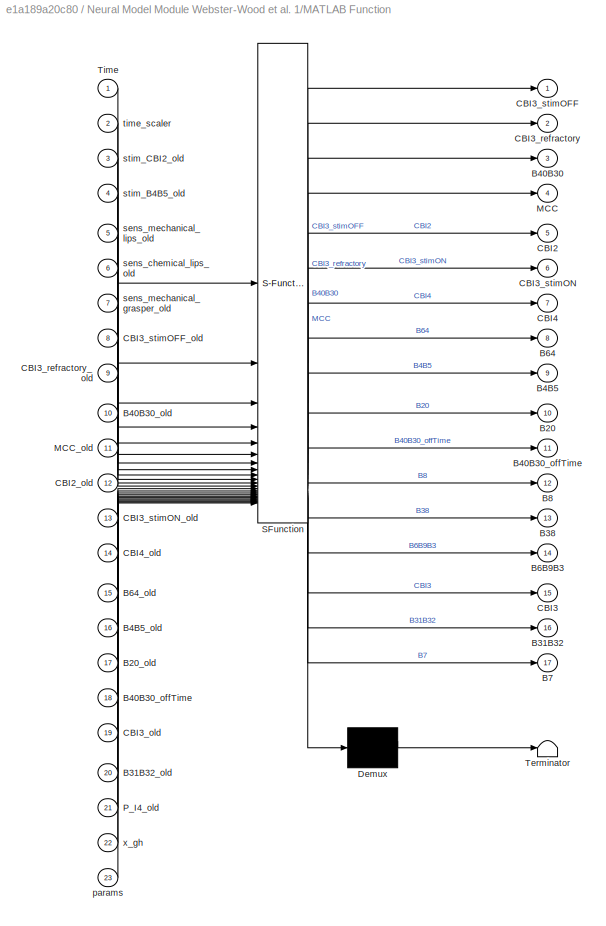
BLOCK [SubSystem] Neural Model Module Webster-Wood et al. 1/MATLAB Function
  ErrorFcn = Stateflow.Translate.translate
  PermitHierarchicalResolution = ExplicitOnly
  SFBlockType = MATLAB Function
  TreatAsAtomicUnit = on
BLOCK [Demux] Neural Model Module Webster-Wood et al. 1/MATLAB Function/ Demux 
  Outputs = 1
BLOCK [S-Function] Neural Model Module Webster-Wood et al. 1/MATLAB Function/ SFunction 
  EnableBusSupport = on
  FunctionName = sf_sfun
  PortCounts = [23 18]
  SFcnIsStateOwnerBlock = off
  SFunctionDeploymentMode = off
  Tag = Stateflow S-Function 7
BLOCK [Terminator] Neural Model Module Webster-Wood et al. 1/MATLAB Function/ Terminator 
BLOCK [Outport] Neural Model Module Webster-Wood et al. 1/MATLAB Function/B20
  Port = 10
BLOCK [Inport] Neural Model Module Webster-Wood et al. 1/MATLAB Function/B20_old
  Port = 17
BLOCK [Outport] Neural Model Module Webster-Wood et al. 1/MATLAB Function/B31B32
  Port = 16
BLOCK [Inport] Neural Model Module Webster-Wood et al. 1/MATLAB Function/B31B32_old
  Port = 20
BLOCK [Outport] Neural Model Module Webster-Wood et al. 1/MATLAB Function/B38
  Port = 13
BLOCK [Outport] Neural Model Module Webster-Wood et al. 1/MATLAB Function/B40B30
  Port = 3
BLOCK [Outport] Neural Model Module Webster-Wood et al. 1/MATLAB Function/B40B30_offTime
  Port = 11
BLOCK [Inport] Neural Model Module Webster-Wood et al. 1/MATLAB Function/B40B30_offTime 
  Port = 18
BLOCK [Inport] Neural Model Module Webster-Wood et al. 1/MATLAB Function/B40B30_old
  Port = 10
BLOCK [Outport] Neural Model Module Webster-Wood et al. 1/MATLAB Function/B4B5
  Port = 9
BLOCK [Inport] Neural Model Module Webster-Wood et al. 1/MATLAB Function/B4B5_old
  Port = 16
BLOCK [Outport] Neural Model Module Webster-Wood et al. 1/MATLAB Function/B64
  Port = 8
BLOCK [Inport] Neural Model Module Webster-Wood et al. 1/MATLAB Function/B64_old
  Port = 15
BLOCK [Outport] Neural Model Module Webster-Wood et al. 1/MATLAB Function/B6B9B3
  Port = 14
BLOCK [Outport] Neural Model Module Webster-Wood et al. 1/MATLAB Function/B7
  Port = 17
BLOCK [Outport] Neural Model Module Webster-Wood et al. 1/MATLAB Function/B8
  Port = 12
BLOCK [Outport] Neural Model Module Webster-Wood et al. 1/MATLAB Function/CBI2
  Port = 5
BLOCK [Inport] Neural Model Module Webster-Wood et al. 1/MATLAB Function/CBI2_old
  Port = 12
BLOCK [Outport] Neural Model Module Webster-Wood et al. 1/MATLAB Function/CBI3
  Port = 15
BLOCK [Inport] Neural Model Module Webster-Wood et al. 1/MATLAB Function/CBI3_old
  Port = 19
BLOCK [Outport] Neural Model Module Webster-Wood et al. 1/MATLAB Function/CBI3_refractory
  Port = 2
BLOCK [Inport] Neural Model Module Webster-Wood et al. 1/MATLAB Function/CBI3_refractory_old
  Port = 9
BLOCK [Outport] Neural Model Module Webster-Wood et al. 1/MATLAB Function/CBI3_stimOFF
BLOCK [Inport] Neural Model Module Webster-Wood et al. 1/MATLAB Function/CBI3_stimOFF_old
  Port = 8
BLOCK [Outport] Neural Model Module Webster-Wood et al. 1/MATLAB Function/CBI3_stimON
  Port = 6
BLOCK [Inport] Neural Model Module Webster-Wood et al. 1/MATLAB Function/CBI3_stimON_old
  Port = 13
BLOCK [Outport] Neural Model Module Webster-Wood et al. 1/MATLAB Function/CBI4
  Port = 7
BLOCK [Inport] Neural Model Module Webster-Wood et al. 1/MATLAB Function/CBI4_old
  Port = 14
BLOCK [Outport] Neural Model Module Webster-Wood et al. 1/MATLAB Function/MCC
  Port = 4
BLOCK [Inport] Neural Model Module Webster-Wood et al. 1/MATLAB Function/MCC_old
  Port = 11
BLOCK [Inport] Neural Model Module Webster-Wood et al. 1/MATLAB Function/P_I4_old
  Port = 21
BLOCK [Inport] Neural Model Module Webster-Wood et al. 1/MATLAB Function/Time
BLOCK [Inport] Neural Model Module Webster-Wood et al. 1/MATLAB Function/params
  Port = 23
BLOCK [Inport] Neural Model Module Webster-Wood et al. 1/MATLAB Function/sens_chemical_lips_old
  Port = 6
BLOCK [Inport] Neural Model Module Webster-Wood et al. 1/MATLAB Function/sens_mechanical_grasper_old
  Port = 7
BLOCK [Inport] Neural Model Module Webster-Wood et al. 1/MATLAB Function/sens_mechanical_lips_old
  Port = 5
BLOCK [Inport] Neural Model Module Webster-Wood et al. 1/MATLAB Function/stim_B4B5_old
  Port = 4
BLOCK [Inport] Neural Model Module Webster-Wood et al. 1/MATLAB Function/stim_CBI2_old
  Port = 3
BLOCK [Inport] Neural Model Module Webster-Wood et al. 1/MATLAB Function/time_scaler
  Port = 2
BLOCK [Inport] Neural Model Module Webster-Wood et al. 1/MATLAB Function/x_gh
  Port = 22
BLOCK [SubSystem] Neural Model Module Webster-Wood et al. 1/MATLAB Function1
  ErrorFcn = Stateflow.Translate.translate
  LibrarySourceBlock = simulink/User-Defined\nFunctions/MATLAB Function
  PermitHierarchicalResolution = ExplicitOnly
  SFBlockType = MATLAB Function
  TreatAsAtomicUnit = on
BLOCK [Demux] Neural Model Module Webster-Wood et al. 1/MATLAB Function1/ Demux 
  Outputs = 1
BLOCK [S-Function] Neural Model Module Webster-Wood et al. 1/MATLAB Function1/ SFunction 
  EnableBusSupport = on
  FunctionName = sf_sfun
  PortCounts = [5 5]
  SFcnIsStateOwnerBlock = off
  SFunctionDeploymentMode = off
  Tag = Stateflow S-Function 11
BLOCK [Terminator] Neural Model Module Webster-Wood et al. 1/MATLAB Function1/ Terminator 
BLOCK [Inport] Neural Model Module Webster-Wood et al. 1/MATLAB Function1/B4B5
  Port = 3
BLOCK [Inport] Neural Model Module Webster-Wood et al. 1/MATLAB Function1/B64_old
  Port = 4
BLOCK [Outport] Neural Model Module Webster-Wood et al. 1/MATLAB Function1/B82
BLOCK [Outport] Neural Model Module Webster-Wood et al. 1/MATLAB Function1/C1
  Port = 2
BLOCK [Outport] Neural Model Module Webster-Wood et al. 1/MATLAB Function1/C2
  Port = 3
BLOCK [Outport] Neural Model Module Webster-Wood et al. 1/MATLAB Function1/C6
  Port = 4
BLOCK [Inport] Neural Model Module Webster-Wood et al. 1/MATLAB Function1/CBI3_old
  Port = 5
BLOCK [Inport] Neural Model Module Webster-Wood et al. 1/MATLAB Function1/CBI4_old
  Port = 2
BLOCK [Inport] Neural Model Module Webster-Wood et al. 1/MATLAB Function1/MCC_old
BLOCK [Memory] Neural Model Module Webster-Wood et al. 1/Memory1
  InitialCondition = B43B45_0
BLOCK [Memory] Neural Model Module Webster-Wood et al. 1/Memory10
  InitialCondition = B64_0
BLOCK [Memory] Neural Model Module Webster-Wood et al. 1/Memory11
  InitialCondition = CBI4_0
BLOCK [Memory] Neural Model Module Webster-Wood et al. 1/Memory12
  InitialCondition = B40B30_0
BLOCK [Memory] Neural Model Module Webster-Wood et al. 1/Memory13
  InitialCondition = CBI3_refractory_0
BLOCK [Memory] Neural Model Module Webster-Wood et al. 1/Memory14
  InitialCondition = CBI3_stimON_0
BLOCK [Memory] Neural Model Module Webster-Wood et al. 1/Memory15
  InitialCondition = CBI2_0
BLOCK [Memory] Neural Model Module Webster-Wood et al. 1/Memory16
  InitialCondition = MCC_0
BLOCK [Memory] Neural Model Module Webster-Wood et al. 1/Memory17
  InitialCondition = B7_0
BLOCK [Memory] Neural Model Module Webster-Wood et al. 1/Memory18
  InitialCondition = C6_0
BLOCK [Memory] Neural Model Module Webster-Wood et al. 1/Memory19
  InitialCondition = C2_0
BLOCK [Memory] Neural Model Module Webster-Wood et al. 1/Memory2
  InitialCondition = B8_0
BLOCK [Memory] Neural Model Module Webster-Wood et al. 1/Memory20
  InitialCondition = C1_0
BLOCK [Memory] Neural Model Module Webster-Wood et al. 1/Memory29
  InitialCondition = CBI3_stimOFF_0
BLOCK [Memory] Neural Model Module Webster-Wood et al. 1/Memory3
  InitialCondition = B31B32_0
BLOCK [Memory] Neural Model Module Webster-Wood et al. 1/Memory4
  InitialCondition = CBI3_0
BLOCK [Memory] Neural Model Module Webster-Wood et al. 1/Memory5
  InitialCondition = B6B9B3_0
BLOCK [Memory] Neural Model Module Webster-Wood et al. 1/Memory6
  InitialCondition = B38_0
BLOCK [Memory] Neural Model Module Webster-Wood et al. 1/Memory7
  InitialCondition = B40B30_offTime_0
BLOCK [Memory] Neural Model Module Webster-Wood et al. 1/Memory8
  InitialCondition = B20_0
BLOCK [Memory] Neural Model Module Webster-Wood et al. 1/Memory9
  InitialCondition = B4B5_0
BLOCK [Inport] Neural Model Module Webster-Wood et al. 1/P_I4_old
  NameLocation = top
  Port = 2
BLOCK [Inport] Neural Model Module Webster-Wood et al. 1/Time
BLOCK [ToWorkspace] Neural Model Module Webster-Wood et al. 1/To Workspace
  FixptAsFi = on
  MaxDataPoints = inf
  SampleTime = -1
  VariableName = B64
BLOCK [ToWorkspace] Neural Model Module Webster-Wood et al. 1/To Workspace1
  FixptAsFi = on
  MaxDataPoints = inf
  SampleTime = -1
  VariableName = B7
BLOCK [ToWorkspace] Neural Model Module Webster-Wood et al. 1/To Workspace10
  FixptAsFi = on
  MaxDataPoints = inf
  SampleTime = -1
  VariableName = CBI2
BLOCK [ToWorkspace] Neural Model Module Webster-Wood et al. 1/To Workspace11
  FixptAsFi = on
  MaxDataPoints = inf
  SampleTime = -1
  VariableName = CBI4
BLOCK [ToWorkspace] Neural Model Module Webster-Wood et al. 1/To Workspace12
  FixptAsFi = on
  MaxDataPoints = inf
  SampleTime = -1
  VariableName = B4B5
BLOCK [ToWorkspace] Neural Model Module Webster-Wood et al. 1/To Workspace13
  FixptAsFi = on
  MaxDataPoints = inf
  SampleTime = -1
  VariableName = B82
BLOCK [ToWorkspace] Neural Model Module Webster-Wood et al. 1/To Workspace14
  FixptAsFi = on
  MaxDataPoints = inf
  SampleTime = -1
  VariableName = C1
BLOCK [ToWorkspace] Neural Model Module Webster-Wood et al. 1/To Workspace15
  FixptAsFi = on
  MaxDataPoints = inf
  SampleTime = -1
  VariableName = C2
BLOCK [ToWorkspace] Neural Model Module Webster-Wood et al. 1/To Workspace16
  FixptAsFi = on
  MaxDataPoints = inf
  SampleTime = -1
  VariableName = C3
BLOCK [ToWorkspace] Neural Model Module Webster-Wood et al. 1/To Workspace2
  FixptAsFi = on
  MaxDataPoints = inf
  SampleTime = -1
  VariableName = B31B32
BLOCK [ToWorkspace] Neural Model Module Webster-Wood et al. 1/To Workspace3
  FixptAsFi = on
  MaxDataPoints = inf
  SampleTime = -1
  VariableName = CBI3
BLOCK [ToWorkspace] Neural Model Module Webster-Wood et al. 1/To Workspace4
  FixptAsFi = on
  MaxDataPoints = inf
  SampleTime = -1
  VariableName = B6B9B3
BLOCK [ToWorkspace] Neural Model Module Webster-Wood et al. 1/To Workspace5
  FixptAsFi = on
  MaxDataPoints = inf
  SampleTime = -1
  VariableName = B38
BLOCK [ToWorkspace] Neural Model Module Webster-Wood et al. 1/To Workspace6
  FixptAsFi = on
  MaxDataPoints = inf
  SampleTime = -1
  VariableName = B8
BLOCK [ToWorkspace] Neural Model Module Webster-Wood et al. 1/To Workspace7
  FixptAsFi = on
  MaxDataPoints = inf
  SampleTime = -1
  VariableName = B40B30
BLOCK [ToWorkspace] Neural Model Module Webster-Wood et al. 1/To Workspace8
  FixptAsFi = on
  MaxDataPoints = inf
  SampleTime = -1
  VariableName = B20
BLOCK [ToWorkspace] Neural Model Module Webster-Wood et al. 1/To Workspace9
  FixptAsFi = on
  MaxDataPoints = inf
  SampleTime = -1
  VariableName = MCC
BLOCK [Inport] Neural Model Module Webster-Wood et al. 1/params
  NameLocation = top
  Port = 8
BLOCK [Inport] Neural Model Module Webster-Wood et al. 1/sens_chemical_lips_old
  Port = 5
BLOCK [Inport] Neural Model Module Webster-Wood et al. 1/sens_mechanical_grasper_old
  Port = 6
BLOCK [Inport] Neural Model Module Webster-Wood et al. 1/sens_mechanical_lips_old
  Port = 4
BLOCK [Inport] Neural Model Module Webster-Wood et al. 1/stim_B4B5_old
  Port = 3
BLOCK [Inport] Neural Model Module Webster-Wood et al. 1/x_gh
  NameLocation = top
  Port = 7
BLOCK [Scope] Scope
  Floating = off
  NameLocation = top
  NumInputPorts = 1
  ScopeSpecificationString = Simulink.scopes.TimeScopeBlockCfg('CurrentConfiguration', extmgr.ConfigurationSet(extmgr.Configuration('Core','General UI',true),extmgr.Configuration('Core','Source UI',true),extmgr.Configuration('Sources','WiredSimulink',true,'DataLoggingVariableName','ScopeData2'),extmgr.Configuration('Visuals','Time Domain',true,'SerializedDisplays',{struct('MinYLimReal','0.11548','MaxYLimReal','1.12032','YLabe...<+1509ch>
BLOCK [Scope] Scope1
  Floating = off
  NumInputPorts = 2
  ScopeSpecificationString = Simulink.scopes.TimeScopeBlockCfg('CurrentConfiguration', extmgr.ConfigurationSet(extmgr.Configuration('Core','General UI',true),extmgr.Configuration('Core','Source UI',true),extmgr.Configuration('Sources','WiredSimulink',true,'DataLoggingVariableName','ScopeData1'),extmgr.Configuration('Visuals','Time Domain',true,'SerializedDisplays',{struct('MinYLimReal','-0.125','MaxYLimReal','1.125','YLabelRe...<+1573ch>
BLOCK [Stop] Stop Simulation
BLOCK [SubSystem] Subsystem
BLOCK [Constant] Subsystem/Constant
  Value = t_switch_mech_lips
BLOCK [Constant] Subsystem/Constant1
  Value = sens_mechanical_lips
BLOCK [RelationalOperator] Subsystem/GreaterThan
  InputSameDT = off
  Operator = >
  OutDataTypeStr = boolean
  RndMeth = Simplest
BLOCK [Logic] Subsystem/NOT
  AllPortsSameDT = off
  IconShape = distinctive
  Operator = NOT
  OutDataTypeStr = boolean
BLOCK [Switch] Subsystem/Switch
  Criteria = u2 > Threshold
  InputSameDT = off
  SaturateOnIntegerOverflow = off
BLOCK [Inport] Subsystem/Time
BLOCK [Outport] Subsystem/sens_mechanical_lips_old
BLOCK [SubSystem] Subsystem1
BLOCK [Constant] Subsystem1/Constant
  Value = t_switch_chem_lips
BLOCK [Constant] Subsystem1/Constant1
  Value = sens_chemical_lips
BLOCK [RelationalOperator] Subsystem1/GreaterThan
  InputSameDT = off
  Operator = >
  OutDataTypeStr = boolean
  RndMeth = Simplest
BLOCK [Logic] Subsystem1/NOT
  AllPortsSameDT = off
  IconShape = distinctive
  Operator = NOT
  OutDataTypeStr = boolean
BLOCK [Switch] Subsystem1/Switch
  Criteria = u2 > Threshold
  InputSameDT = off
  SaturateOnIntegerOverflow = off
BLOCK [Inport] Subsystem1/Time
BLOCK [Outport] Subsystem1/sens_chemical_lips_old
BLOCK [SubSystem] Subsystem2
BLOCK [Constant] Subsystem2/Constant
  Value = t_switch_mech_grasp
BLOCK [Constant] Subsystem2/Constant1
  Value = sens_mechanical_grasper
BLOCK [RelationalOperator] Subsystem2/GreaterThan
  InputSameDT = off
  Operator = >
  OutDataTypeStr = boolean
  RndMeth = Simplest
BLOCK [Logic] Subsystem2/NOT
  AllPortsSameDT = off
  IconShape = distinctive
  Operator = NOT
  OutDataTypeStr = boolean
BLOCK [Switch] Subsystem2/Switch
  Criteria = u2 > Threshold
  InputSameDT = off
  SaturateOnIntegerOverflow = off
BLOCK [Inport] Subsystem2/Time
BLOCK [Outport] Subsystem2/sens_mechanical_grasper_old
BLOCK [SubSystem] Subsystem3
  PortSchema = {"entries":[{"content":{"sides":[{"content":{"connectorIds":["In1"]},"type":"ConnectorPlacement.EquallySpacedRectSide","uuid":"4db34430-399f-4704-aacb-c58121948b76"},{"content":{"connectorIds":["Out1"],"side":"RIGHT"},"type":"ConnectorPlacement.EquallySpacedRectSide","uuid":"b1912424-5bc4-479d-9601-ca1764a05c0d"},{"content":{"connectorIds":[],"side":"TOP"},"type":"ConnectorPlacement.EquallySpacedR...<+389ch>
BLOCK [Logic] Subsystem3/AND
  AllPortsSameDT = off
  IconShape = distinctive
  OutDataTypeStr = boolean
BLOCK [Constant] Subsystem3/Constant
  Value = t_switch_fixation
BLOCK [Constant] Subsystem3/Constant1
  Value = fixation_type
BLOCK [RelationalOperator] Subsystem3/GreaterThan
  InputSameDT = off
  Operator = >
  OutDataTypeStr = boolean
  RndMeth = Simplest
BLOCK [Logic] Subsystem3/NOT
  AllPortsSameDT = off
  IconShape = distinctive
  Operator = NOT
  OutDataTypeStr = boolean
BLOCK [Scope] Subsystem3/Scope
  Floating = off
  NumInputPorts = 2
  ScopeSpecificationString = Simulink.scopes.TimeScopeBlockCfg('CurrentConfiguration', extmgr.ConfigurationSet(extmgr.Configuration('Core','General UI',true),extmgr.Configuration('Core','Source UI',true),extmgr.Configuration('Sources','WiredSimulink',true,'DataLoggingVariableName','ScopeData1'),extmgr.Configuration('Visuals','Time Domain',true,'SerializedDisplays',{struct('MinYLimReal','-0.125','MaxYLimReal','1.125','YLabelRe...<+1367ch>
BLOCK [Switch] Subsystem3/Switch
  Criteria = u2 > Threshold
  InputSameDT = off
  SaturateOnIntegerOverflow = off
BLOCK [Inport] Subsystem3/Time
BLOCK [Outport] Subsystem3/fixation
BLOCK [Inport] Subsystem3/sens_chemical_lips_old
  Port = 2
BLOCK [Sum] Sum1
  Inputs = +-+
BLOCK [Sum] Sum2
  Inputs = |++
  NameLocation = top
BLOCK [Sum] Sum3
  Inputs = |++
  NameLocation = top
BLOCK [ToWorkspace] To Workspace
  FixptAsFi = on
  MaxDataPoints = inf
  SampleTime = -1
  VariableName = xg
BLOCK [ToWorkspace] To Workspace1
  FixptAsFi = on
  MaxDataPoints = inf
  NameLocation = top
  SampleTime = -1
  VariableName = out_sens_mechanical_lips
BLOCK [ToWorkspace] To Workspace10
  FixptAsFi = on
  MaxDataPoints = inf
  SampleTime = -1
  VariableName = xd
BLOCK [ToWorkspace] To Workspace11
  FixptAsFi = on
  MaxDataPoints = inf
  SampleTime = -1
  VariableName = xv
BLOCK [ToWorkspace] To Workspace2
  FixptAsFi = on
  MaxDataPoints = inf
  NameLocation = top
  SampleTime = -1
  VariableName = out_sens_chemical_lips
BLOCK [ToWorkspace] To Workspace3
  FixptAsFi = on
  MaxDataPoints = inf
  SampleTime = -1
  VariableName = x_gh
BLOCK [ToWorkspace] To Workspace4
  FixptAsFi = on
  MaxDataPoints = inf
  SampleTime = -1
  VariableName = theta_g_animal
BLOCK [ToWorkspace] To Workspace5
  FixptAsFi = on
  MaxDataPoints = inf
  SampleTime = -1
  VariableName = failed
BLOCK [ToWorkspace] To Workspace6
  FixptAsFi = on
  MaxDataPoints = inf
  NameLocation = top
  SampleTime = -1
  VariableName = out_sens_mechanical_grasper
BLOCK [ToWorkspace] To Workspace7
  FixptAsFi = on
  MaxDataPoints = inf
  SampleTime = -1
  VariableName = yg
BLOCK [ToWorkspace] To Workspace8
  FixptAsFi = on
  MaxDataPoints = inf
  SampleTime = -1
  VariableName = theta_g
BLOCK [ToWorkspace] To Workspace9
  FixptAsFi = on
  MaxDataPoints = inf
  SampleTime = -1
  VariableName = xh
BLOCK [Constant] neuron_params
  Value = params
BLOCK [Constant] no stim1
  Value = 0
ANNOTATION (root): automatically stopping simulation and setting a flag
ANNOTATION Kinetics and Kinematics1/Friction/Grasper Friction: only check the force condition if seaweed is fixed. otherwise check the PI4 condition
ANNOTATION Kinetics and Kinematics1/Kinematics (Circular Odontophore): Calculating the tangency angles of the I2 muscle
ANNOTATION Kinetics and Kinematics1/Kinematics (Circular Odontophore)/I2v Length//Angle1: Switch accounts for when hinge is inside odontophore. If inside, state that the I2 angle is 0 relative to the horizontal.
ANNOTATION Kinetics and Kinematics1/Muscles Mechanical Advantage Module: Uses 1D magnitude-positive, normalized muscle tensions to generate 2D force vectors (positive in the positive direction) relative to the odontophore.
ANNOTATION Kinetics and Kinematics1/Muscles Mechanical Advantage Module: Hinge
ANNOTATION Kinetics and Kinematics1/Muscles Mechanical Advantage Module: I1 dorsal
ANNOTATION Kinetics and Kinematics1/Muscles Mechanical Advantage Module: I1 ventral
ANNOTATION Kinetics and Kinematics1/Muscles Mechanical Advantage Module: I2 (Pulley around odontophore)
ANNOTATION Kinetics and Kinematics1/Muscles Mechanical Advantage Module: I3 (axial only)
ANNOTATION Kinetics and Kinematics1/Muscles Mechanical Advantage Module: I3 anterior
ANNOTATION Kinetics and Kinematics1/Muscles Mechanical Advantage Module: I4
ANNOTATION Kinetics and Kinematics1/Seaweed Breaking: broken
ANNOTATION Kinetics and Kinematics1/Seaweed Ingestion Calculations: True if the jaws are not preventing motion
ANNOTATION Kinetics and Kinematics1/Seaweed Ingestion Calculations: is I3_ant holding food in place
ANNOTATION Kinetics and Kinematics1/Seaweed Ingestion Calculations: is the grasper moving forward
ANNOTATION Kinetics and Kinematics1/Seaweed Ingestion Calculations: is there seaweed held in the grasper
ANNOTATION Muscle Activation and Tension Module: E1 Muscle Model
ANNOTATION Muscle Activation and Tension Module: E2 Muscle Model
ANNOTATION Muscle Activation and Tension Module: E6 Muscle Model
ANNOTATION Muscle Activation and Tension Module: Hinge Muscle Model
ANNOTATION Muscle Activation and Tension Module: I1d Muscle Model
ANNOTATION Muscle Activation and Tension Module: I1v Muscle Model
ANNOTATION Muscle Activation and Tension Module: I2 Muscle Model
ANNOTATION Muscle Activation and Tension Module: I3 (anterior) Muscle Model
ANNOTATION Muscle Activation and Tension Module: I3 Muscle Model
ANNOTATION Muscle Activation and Tension Module: I4 Muscle Model
ANNOTATION Muscle Activation and Tension Module/E1 - First Order + Spring Muscle Model: Active Force Dynamics
ANNOTATION Muscle Activation and Tension Module/E1 - First Order + Spring Muscle Model: List of parameters: - A_0: starting activation - T_0: starting tension - tau_i: intrinsic time constant of the muscle i - L_0: rest length of muscle - L_max: length of maximum force
ANNOTATION Muscle Activation and Tension Module/E1 - First Order + Spring Muscle Model: Neural Dynamics
ANNOTATION Muscle Activation and Tension Module/E1 - First Order + Spring Muscle Model: Passive Force
ANNOTATION Muscle Activation and Tension Module/E2 - First Order + Spring Muscle Model: Active Force Dynamics
ANNOTATION Muscle Activation and Tension Module/E2 - First Order + Spring Muscle Model: List of parameters: - A_0: starting activation - T_0: starting tension - tau_i: intrinsic time constant of the muscle i - L_0: rest length of muscle - L_max: length of maximum force
ANNOTATION Muscle Activation and Tension Module/E2 - First Order + Spring Muscle Model: Neural Dynamics
ANNOTATION Muscle Activation and Tension Module/E2 - First Order + Spring Muscle Model: Passive Force
ANNOTATION Muscle Activation and Tension Module/E6 - First Order + Spring Muscle Model: Active Force Dynamics
ANNOTATION Muscle Activation and Tension Module/E6 - First Order + Spring Muscle Model: List of parameters: - A_0: starting activation - T_0: starting tension - tau_i: intrinsic time constant of the muscle i - L_0: rest length of muscle - L_max: length of maximum force
ANNOTATION Muscle Activation and Tension Module/E6 - First Order + Spring Muscle Model: Neural Dynamics
ANNOTATION Muscle Activation and Tension Module/E6 - First Order + Spring Muscle Model: Passive Force
ANNOTATION Muscle Activation and Tension Module/First Order + Spring Muscle Model Template: Active Force Dynamics
ANNOTATION Muscle Activation and Tension Module/First Order + Spring Muscle Model Template: List of parameters: - A_0: starting activation - T_0: starting tension - tau_i: intrinsic time constant of the muscle i - L_0: rest length of muscle - L_max: length of maximum force
ANNOTATION Muscle Activation and Tension Module/First Order + Spring Muscle Model Template: Neural Dynamics
ANNOTATION Muscle Activation and Tension Module/First Order + Spring Muscle Model Template: Passive Force
ANNOTATION Muscle Activation and Tension Module/First Order Muscle Model Template: Force Dynamics
ANNOTATION Muscle Activation and Tension Module/First Order Muscle Model Template: List of parameters: - A_0: starting activation - T_0: starting tension - tau_i: intrinsic time constant of the muscle i
ANNOTATION Muscle Activation and Tension Module/First Order Muscle Model Template: Neural Dynamics
ANNOTATION Muscle Activation and Tension Module/Hinge - First Order + Spring Muscle Model: Active Force Dynamics
ANNOTATION Muscle Activation and Tension Module/Hinge - First Order + Spring Muscle Model: List of parameters: - A_0: starting activation - T_0: starting tension - tau_i: intrinsic time constant of the muscle i - L_0: rest length of muscle - L_max: length of maximum force
ANNOTATION Muscle Activation and Tension Module/Hinge - First Order + Spring Muscle Model: Neural Dynamics
ANNOTATION Muscle Activation and Tension Module/Hinge - First Order + Spring Muscle Model: Passive Force
ANNOTATION Muscle Activation and Tension Module/I1d - First Order + Spring Muscle Model: Active Force Dynamics
ANNOTATION Muscle Activation and Tension Module/I1d - First Order + Spring Muscle Model: List of parameters: - A_0: starting activation - T_0: starting tension - tau_i: intrinsic time constant of the muscle i - L_0: rest length of muscle - L_max: length of maximum force
ANNOTATION Muscle Activation and Tension Module/I1d - First Order + Spring Muscle Model: Neural Dynamics
ANNOTATION Muscle Activation and Tension Module/I1d - First Order + Spring Muscle Model: Passive Force
ANNOTATION Muscle Activation and Tension Module/I1v - First Order + Spring Muscle Model: Active Force Dynamics
ANNOTATION Muscle Activation and Tension Module/I1v - First Order + Spring Muscle Model: List of parameters: - A_0: starting activation - T_0: starting tension - tau_i: intrinsic time constant of the muscle i - L_0: rest length of muscle - L_max: length of maximum force
ANNOTATION Muscle Activation and Tension Module/I1v - First Order + Spring Muscle Model: Neural Dynamics
ANNOTATION Muscle Activation and Tension Module/I1v - First Order + Spring Muscle Model: Passive Force
ANNOTATION Muscle Activation and Tension Module/I2 - First Order + Spring Muscle Model2: Active Force Dynamics
ANNOTATION Muscle Activation and Tension Module/I2 - First Order + Spring Muscle Model2: List of parameters: - A_0: starting activation - T_0: starting tension - tau_i: intrinsic time constant of the muscle i - L_0: rest length of muscle - L_max: length of maximum force
ANNOTATION Muscle Activation and Tension Module/I2 - First Order + Spring Muscle Model2: Neural Dynamics
ANNOTATION Muscle Activation and Tension Module/I2 - First Order + Spring Muscle Model2: Passive Force
ANNOTATION Muscle Activation and Tension Module/I3 (anterior) - First Order Muscle Model: Force Dynamics
ANNOTATION Muscle Activation and Tension Module/I3 (anterior) - First Order Muscle Model: List of parameters: - A_0: starting activation - T_0: starting tension - tau_i: intrinsic time constant of the muscle i
ANNOTATION Muscle Activation and Tension Module/I3 (anterior) - First Order Muscle Model: Neural Dynamics
ANNOTATION Muscle Activation and Tension Module/I3 - First Order Muscle Model: Force Dynamics
ANNOTATION Muscle Activation and Tension Module/I3 - First Order Muscle Model: List of parameters: - A_0: starting activation - T_0: starting tension - tau_i: intrinsic time constant of the muscle i
ANNOTATION Muscle Activation and Tension Module/I3 - First Order Muscle Model: Neural Dynamics
ANNOTATION Muscle Activation and Tension Module/I4 - First Order Muscle Model: Force Dynamics
ANNOTATION Muscle Activation and Tension Module/I4 - First Order Muscle Model: List of parameters: - A_0: starting activation - T_0: starting tension - tau_i: intrinsic time constant of the muscle i
ANNOTATION Muscle Activation and Tension Module/I4 - First Order Muscle Model: Neural Dynamics
ANNOTATION Neural Model Module Webster-Wood et al. 1: E6 active during protraction
ANNOTATION Subsystem3: if the chemical sensation is gone, the unfix the seaweed so length can be calculated
LINE Abs:1 -> GreaterThan:1
NET Clock1:1 -> Display:1, Neural Model Module Webster-Wood et al. 1:1, Subsystem1:1, Subsystem2:1, Subsystem3:1, Subsystem:1
LINE Constant11:1 -> MATLAB Function:6
LINE Constant12:1 -> Sum1:3
LINE Constant13:1 -> MATLAB Function:5
LINE Constant14:1 -> Sum3:1
LINE Constant15:1 -> Sum3:2
LINE Constant17:1 -> Sum1:1
LINE Constant18:1 -> GreaterThan:2
NET Divide1:1 -> Abs:1, Neural Model Module Webster-Wood et al. 1:7, Scope:1, To Workspace3:1
NET Gain:1 -> Divide1:2, Sum2:2
NET GreaterThan:1 -> Stop Simulation:1, To Workspace5:1
LINE Kinetics and Kinematics1/Constant1:1 -> Kinetics and Kinematics1/Equations of Motion:17
LINE Kinetics and Kinematics1/Constant:1 -> Kinetics and Kinematics1/Equations of Motion:18
LINE Kinetics and Kinematics1/Equations of Motion/Add2:1 -> Kinetics and Kinematics1/Equations of Motion/Demux1:1
LINE Kinetics and Kinematics1/Equations of Motion/Add3:1 -> Kinetics and Kinematics1/Equations of Motion/Demux2:1
LINE Kinetics and Kinematics1/Equations of Motion/Add4:1 -> Kinetics and Kinematics1/Equations of Motion/Demux4:1
LINE Kinetics and Kinematics1/Equations of Motion/Add:1 -> Kinetics and Kinematics1/Equations of Motion/Demux6:1
LINE Kinetics and Kinematics1/Equations of Motion/Calculate Sum of Torques/2D Cross Product/Add:1 -> Kinetics and Kinematics1/Equations of Motion/Calculate Sum of Torques/2D Cross Product/axb:1
LINE Kinetics and Kinematics1/Equations of Motion/Calculate Sum of Torques/2D Cross Product/Demux1:1 -> Kinetics and Kinematics1/Equations of Motion/Calculate Sum of Torques/2D Cross Product/Product1:1
LINE Kinetics and Kinematics1/Equations of Motion/Calculate Sum of Torques/2D Cross Product/Demux1:2 -> Kinetics and Kinematics1/Equations of Motion/Calculate Sum of Torques/2D Cross Product/Product:2
LINE Kinetics and Kinematics1/Equations of Motion/Calculate Sum of Torques/2D Cross Product/Demux:1 -> Kinetics and Kinematics1/Equations of Motion/Calculate Sum of Torques/2D Cross Product/Product:1
LINE Kinetics and Kinematics1/Equations of Motion/Calculate Sum of Torques/2D Cross Product/Demux:2 -> Kinetics and Kinematics1/Equations of Motion/Calculate Sum of Torques/2D Cross Product/Product1:2
LINE Kinetics and Kinematics1/Equations of Motion/Calculate Sum of Torques/2D Cross Product/Product1:1 -> Kinetics and Kinematics1/Equations of Motion/Calculate Sum of Torques/2D Cross Product/Add:2
LINE Kinetics and Kinematics1/Equations of Motion/Calculate Sum of Torques/2D Cross Product/Product:1 -> Kinetics and Kinematics1/Equations of Motion/Calculate Sum of Torques/2D Cross Product/Add:1
LINE Kinetics and Kinematics1/Equations of Motion/Calculate Sum of Torques/2D Cross Product/a:1 -> Kinetics and Kinematics1/Equations of Motion/Calculate Sum of Torques/2D Cross Product/Demux:1
LINE Kinetics and Kinematics1/Equations of Motion/Calculate Sum of Torques/2D Cross Product/b:1 -> Kinetics and Kinematics1/Equations of Motion/Calculate Sum of Torques/2D Cross Product/Demux1:1
LINE Kinetics and Kinematics1/Equations of Motion/Calculate Sum of Torques/2D Cross Product1/Add:1 -> Kinetics and Kinematics1/Equations of Motion/Calculate Sum of Torques/2D Cross Product1/axb:1
LINE Kinetics and Kinematics1/Equations of Motion/Calculate Sum of Torques/2D Cross Product1/Demux1:1 -> Kinetics and Kinematics1/Equations of Motion/Calculate Sum of Torques/2D Cross Product1/Product1:1
LINE Kinetics and Kinematics1/Equations of Motion/Calculate Sum of Torques/2D Cross Product1/Demux1:2 -> Kinetics and Kinematics1/Equations of Motion/Calculate Sum of Torques/2D Cross Product1/Product:2
LINE Kinetics and Kinematics1/Equations of Motion/Calculate Sum of Torques/2D Cross Product1/Demux:1 -> Kinetics and Kinematics1/Equations of Motion/Calculate Sum of Torques/2D Cross Product1/Product:1
LINE Kinetics and Kinematics1/Equations of Motion/Calculate Sum of Torques/2D Cross Product1/Demux:2 -> Kinetics and Kinematics1/Equations of Motion/Calculate Sum of Torques/2D Cross Product1/Product1:2
LINE Kinetics and Kinematics1/Equations of Motion/Calculate Sum of Torques/2D Cross Product1/Product1:1 -> Kinetics and Kinematics1/Equations of Motion/Calculate Sum of Torques/2D Cross Product1/Add:2
LINE Kinetics and Kinematics1/Equations of Motion/Calculate Sum of Torques/2D Cross Product1/Product:1 -> Kinetics and Kinematics1/Equations of Motion/Calculate Sum of Torques/2D Cross Product1/Add:1
LINE Kinetics and Kinematics1/Equations of Motion/Calculate Sum of Torques/2D Cross Product1/a:1 -> Kinetics and Kinematics1/Equations of Motion/Calculate Sum of Torques/2D Cross Product1/Demux:1
LINE Kinetics and Kinematics1/Equations of Motion/Calculate Sum of Torques/2D Cross Product1/b:1 -> Kinetics and Kinematics1/Equations of Motion/Calculate Sum of Torques/2D Cross Product1/Demux1:1
LINE Kinetics and Kinematics1/Equations of Motion/Calculate Sum of Torques/2D Cross Product1:1 -> Kinetics and Kinematics1/Equations of Motion/Calculate Sum of Torques/Add:1
LINE Kinetics and Kinematics1/Equations of Motion/Calculate Sum of Torques/2D Cross Product2/Add:1 -> Kinetics and Kinematics1/Equations of Motion/Calculate Sum of Torques/2D Cross Product2/axb:1
LINE Kinetics and Kinematics1/Equations of Motion/Calculate Sum of Torques/2D Cross Product2/Demux1:1 -> Kinetics and Kinematics1/Equations of Motion/Calculate Sum of Torques/2D Cross Product2/Product1:1
LINE Kinetics and Kinematics1/Equations of Motion/Calculate Sum of Torques/2D Cross Product2/Demux1:2 -> Kinetics and Kinematics1/Equations of Motion/Calculate Sum of Torques/2D Cross Product2/Product:2
LINE Kinetics and Kinematics1/Equations of Motion/Calculate Sum of Torques/2D Cross Product2/Demux:1 -> Kinetics and Kinematics1/Equations of Motion/Calculate Sum of Torques/2D Cross Product2/Product:1
LINE Kinetics and Kinematics1/Equations of Motion/Calculate Sum of Torques/2D Cross Product2/Demux:2 -> Kinetics and Kinematics1/Equations of Motion/Calculate Sum of Torques/2D Cross Product2/Product1:2
LINE Kinetics and Kinematics1/Equations of Motion/Calculate Sum of Torques/2D Cross Product2/Product1:1 -> Kinetics and Kinematics1/Equations of Motion/Calculate Sum of Torques/2D Cross Product2/Add:2
LINE Kinetics and Kinematics1/Equations of Motion/Calculate Sum of Torques/2D Cross Product2/Product:1 -> Kinetics and Kinematics1/Equations of Motion/Calculate Sum of Torques/2D Cross Product2/Add:1
LINE Kinetics and Kinematics1/Equations of Motion/Calculate Sum of Torques/2D Cross Product2/a:1 -> Kinetics and Kinematics1/Equations of Motion/Calculate Sum of Torques/2D Cross Product2/Demux:1
LINE Kinetics and Kinematics1/Equations of Motion/Calculate Sum of Torques/2D Cross Product2/b:1 -> Kinetics and Kinematics1/Equations of Motion/Calculate Sum of Torques/2D Cross Product2/Demux1:1
LINE Kinetics and Kinematics1/Equations of Motion/Calculate Sum of Torques/2D Cross Product2:1 -> Kinetics and Kinematics1/Equations of Motion/Calculate Sum of Torques/Add:2
LINE Kinetics and Kinematics1/Equations of Motion/Calculate Sum of Torques/2D Cross Product3/Add:1 -> Kinetics and Kinematics1/Equations of Motion/Calculate Sum of Torques/2D Cross Product3/axb:1
LINE Kinetics and Kinematics1/Equations of Motion/Calculate Sum of Torques/2D Cross Product3/Demux1:1 -> Kinetics and Kinematics1/Equations of Motion/Calculate Sum of Torques/2D Cross Product3/Product1:1
LINE Kinetics and Kinematics1/Equations of Motion/Calculate Sum of Torques/2D Cross Product3/Demux1:2 -> Kinetics and Kinematics1/Equations of Motion/Calculate Sum of Torques/2D Cross Product3/Product:2
LINE Kinetics and Kinematics1/Equations of Motion/Calculate Sum of Torques/2D Cross Product3/Demux:1 -> Kinetics and Kinematics1/Equations of Motion/Calculate Sum of Torques/2D Cross Product3/Product:1
LINE Kinetics and Kinematics1/Equations of Motion/Calculate Sum of Torques/2D Cross Product3/Demux:2 -> Kinetics and Kinematics1/Equations of Motion/Calculate Sum of Torques/2D Cross Product3/Product1:2
LINE Kinetics and Kinematics1/Equations of Motion/Calculate Sum of Torques/2D Cross Product3/Product1:1 -> Kinetics and Kinematics1/Equations of Motion/Calculate Sum of Torques/2D Cross Product3/Add:2
LINE Kinetics and Kinematics1/Equations of Motion/Calculate Sum of Torques/2D Cross Product3/Product:1 -> Kinetics and Kinematics1/Equations of Motion/Calculate Sum of Torques/2D Cross Product3/Add:1
LINE Kinetics and Kinematics1/Equations of Motion/Calculate Sum of Torques/2D Cross Product3/a:1 -> Kinetics and Kinematics1/Equations of Motion/Calculate Sum of Torques/2D Cross Product3/Demux:1
LINE Kinetics and Kinematics1/Equations of Motion/Calculate Sum of Torques/2D Cross Product3/b:1 -> Kinetics and Kinematics1/Equations of Motion/Calculate Sum of Torques/2D Cross Product3/Demux1:1
LINE Kinetics and Kinematics1/Equations of Motion/Calculate Sum of Torques/2D Cross Product3:1 -> Kinetics and Kinematics1/Equations of Motion/Calculate Sum of Torques/Add:3
LINE Kinetics and Kinematics1/Equations of Motion/Calculate Sum of Torques/2D Cross Product4/Add:1 -> Kinetics and Kinematics1/Equations of Motion/Calculate Sum of Torques/2D Cross Product4/axb:1
LINE Kinetics and Kinematics1/Equations of Motion/Calculate Sum of Torques/2D Cross Product4/Demux1:1 -> Kinetics and Kinematics1/Equations of Motion/Calculate Sum of Torques/2D Cross Product4/Product1:1
LINE Kinetics and Kinematics1/Equations of Motion/Calculate Sum of Torques/2D Cross Product4/Demux1:2 -> Kinetics and Kinematics1/Equations of Motion/Calculate Sum of Torques/2D Cross Product4/Product:2
LINE Kinetics and Kinematics1/Equations of Motion/Calculate Sum of Torques/2D Cross Product4/Demux:1 -> Kinetics and Kinematics1/Equations of Motion/Calculate Sum of Torques/2D Cross Product4/Product:1
LINE Kinetics and Kinematics1/Equations of Motion/Calculate Sum of Torques/2D Cross Product4/Demux:2 -> Kinetics and Kinematics1/Equations of Motion/Calculate Sum of Torques/2D Cross Product4/Product1:2
LINE Kinetics and Kinematics1/Equations of Motion/Calculate Sum of Torques/2D Cross Product4/Product1:1 -> Kinetics and Kinematics1/Equations of Motion/Calculate Sum of Torques/2D Cross Product4/Add:2
LINE Kinetics and Kinematics1/Equations of Motion/Calculate Sum of Torques/2D Cross Product4/Product:1 -> Kinetics and Kinematics1/Equations of Motion/Calculate Sum of Torques/2D Cross Product4/Add:1
LINE Kinetics and Kinematics1/Equations of Motion/Calculate Sum of Torques/2D Cross Product4/a:1 -> Kinetics and Kinematics1/Equations of Motion/Calculate Sum of Torques/2D Cross Product4/Demux:1
LINE Kinetics and Kinematics1/Equations of Motion/Calculate Sum of Torques/2D Cross Product4/b:1 -> Kinetics and Kinematics1/Equations of Motion/Calculate Sum of Torques/2D Cross Product4/Demux1:1
LINE Kinetics and Kinematics1/Equations of Motion/Calculate Sum of Torques/2D Cross Product4:1 -> Kinetics and Kinematics1/Equations of Motion/Calculate Sum of Torques/Add:4
LINE Kinetics and Kinematics1/Equations of Motion/Calculate Sum of Torques/2D Cross Product5/Add:1 -> Kinetics and Kinematics1/Equations of Motion/Calculate Sum of Torques/2D Cross Product5/axb:1
LINE Kinetics and Kinematics1/Equations of Motion/Calculate Sum of Torques/2D Cross Product5/Demux1:1 -> Kinetics and Kinematics1/Equations of Motion/Calculate Sum of Torques/2D Cross Product5/Product1:1
LINE Kinetics and Kinematics1/Equations of Motion/Calculate Sum of Torques/2D Cross Product5/Demux1:2 -> Kinetics and Kinematics1/Equations of Motion/Calculate Sum of Torques/2D Cross Product5/Product:2
LINE Kinetics and Kinematics1/Equations of Motion/Calculate Sum of Torques/2D Cross Product5/Demux:1 -> Kinetics and Kinematics1/Equations of Motion/Calculate Sum of Torques/2D Cross Product5/Product:1
LINE Kinetics and Kinematics1/Equations of Motion/Calculate Sum of Torques/2D Cross Product5/Demux:2 -> Kinetics and Kinematics1/Equations of Motion/Calculate Sum of Torques/2D Cross Product5/Product1:2
LINE Kinetics and Kinematics1/Equations of Motion/Calculate Sum of Torques/2D Cross Product5/Product1:1 -> Kinetics and Kinematics1/Equations of Motion/Calculate Sum of Torques/2D Cross Product5/Add:2
LINE Kinetics and Kinematics1/Equations of Motion/Calculate Sum of Torques/2D Cross Product5/Product:1 -> Kinetics and Kinematics1/Equations of Motion/Calculate Sum of Torques/2D Cross Product5/Add:1
LINE Kinetics and Kinematics1/Equations of Motion/Calculate Sum of Torques/2D Cross Product5/a:1 -> Kinetics and Kinematics1/Equations of Motion/Calculate Sum of Torques/2D Cross Product5/Demux:1
LINE Kinetics and Kinematics1/Equations of Motion/Calculate Sum of Torques/2D Cross Product5/b:1 -> Kinetics and Kinematics1/Equations of Motion/Calculate Sum of Torques/2D Cross Product5/Demux1:1
LINE Kinetics and Kinematics1/Equations of Motion/Calculate Sum of Torques/2D Cross Product5:1 -> Kinetics and Kinematics1/Equations of Motion/Calculate Sum of Torques/Add:5
LINE Kinetics and Kinematics1/Equations of Motion/Calculate Sum of Torques/Add2:1 -> Kinetics and Kinematics1/Equations of Motion/Calculate Sum of Torques/2D Cross Product3:1
LINE Kinetics and Kinematics1/Equations of Motion/Calculate Sum of Torques/Add3:1 -> Kinetics and Kinematics1/Equations of Motion/Calculate Sum of Torques/2D Cross Product4:1
LINE Kinetics and Kinematics1/Equations of Motion/Calculate Sum of Torques/Add:1 -> Kinetics and Kinematics1/Equations of Motion/Calculate Sum of Torques/Sum:2
NET Kinetics and Kinematics1/Equations of Motion/Calculate Sum of Torques/Constraint Torque/Add:1 -> Kinetics and Kinematics1/Equations of Motion/Calculate Sum of Torques/Constraint Torque/Switch:1, Kinetics and Kinematics1/Equations of Motion/Calculate Sum of Torques/Constraint Torque/Switch:2
LINE Kinetics and Kinematics1/Equations of Motion/Calculate Sum of Torques/Constraint Torque/Constant1:1 -> Kinetics and Kinematics1/Equations of Motion/Calculate Sum of Torques/Constraint Torque/Add:3
LINE Kinetics and Kinematics1/Equations of Motion/Calculate Sum of Torques/Constraint Torque/Constant:1 -> Kinetics and Kinematics1/Equations of Motion/Calculate Sum of Torques/Constraint Torque/Add:2
LINE Kinetics and Kinematics1/Equations of Motion/Calculate Sum of Torques/Constraint Torque/Multiply:1 -> Kinetics and Kinematics1/Equations of Motion/Calculate Sum of Torques/Constraint Torque/Constraint Torque:1
LINE Kinetics and Kinematics1/Equations of Motion/Calculate Sum of Torques/Constraint Torque/Switch:1 -> Kinetics and Kinematics1/Equations of Motion/Calculate Sum of Torques/Constraint Torque/Multiply:1
LINE Kinetics and Kinematics1/Equations of Motion/Calculate Sum of Torques/Constraint Torque/Zero:1 -> Kinetics and Kinematics1/Equations of Motion/Calculate Sum of Torques/Constraint Torque/Switch:3
LINE Kinetics and Kinematics1/Equations of Motion/Calculate Sum of Torques/Constraint Torque/thetag:1 -> Kinetics and Kinematics1/Equations of Motion/Calculate Sum of Torques/Constraint Torque/Add:1
LINE Kinetics and Kinematics1/Equations of Motion/Calculate Sum of Torques/Constraint Torque:1 -> Kinetics and Kinematics1/Equations of Motion/Calculate Sum of Torques/Sum:1
LINE Kinetics and Kinematics1/Equations of Motion/Calculate Sum of Torques/E1:1 -> Kinetics and Kinematics1/Equations of Motion/Calculate Sum of Torques/2D Cross Product3:2
LINE Kinetics and Kinematics1/Equations of Motion/Calculate Sum of Torques/E2:1 -> Kinetics and Kinematics1/Equations of Motion/Calculate Sum of Torques/2D Cross Product4:2
LINE Kinetics and Kinematics1/Equations of Motion/Calculate Sum of Torques/Food (Grasper):1 -> Kinetics and Kinematics1/Equations of Motion/Calculate Sum of Torques/2D Cross Product1:2
LINE Kinetics and Kinematics1/Equations of Motion/Calculate Sum of Torques/Hinge:1 -> Kinetics and Kinematics1/Equations of Motion/Calculate Sum of Torques/2D Cross Product2:2
LINE Kinetics and Kinematics1/Equations of Motion/Calculate Sum of Torques/I3:1 -> Kinetics and Kinematics1/Equations of Motion/Calculate Sum of Torques/2D Cross Product5:2
NET Kinetics and Kinematics1/Equations of Motion/Calculate Sum of Torques/Mux2:1 -> Kinetics and Kinematics1/Equations of Motion/Calculate Sum of Torques/Add2:2, Kinetics and Kinematics1/Equations of Motion/Calculate Sum of Torques/Add3:1
LINE Kinetics and Kinematics1/Equations of Motion/Calculate Sum of Torques/Sum:1 -> Kinetics and Kinematics1/Equations of Motion/Calculate Sum of Torques/Sum tau:1
LINE Kinetics and Kinematics1/Equations of Motion/Calculate Sum of Torques/Xtd:1 -> Kinetics and Kinematics1/Equations of Motion/Calculate Sum of Torques/Add2:1
LINE Kinetics and Kinematics1/Equations of Motion/Calculate Sum of Torques/Xtv:1 -> Kinetics and Kinematics1/Equations of Motion/Calculate Sum of Torques/Add3:2
LINE Kinetics and Kinematics1/Equations of Motion/Calculate Sum of Torques/r_Fg/Constant:1 -> Kinetics and Kinematics1/Equations of Motion/Calculate Sum of Torques/r_Fg/Sum:2
LINE Kinetics and Kinematics1/Equations of Motion/Calculate Sum of Torques/r_Fg/Cos1:1 -> Kinetics and Kinematics1/Equations of Motion/Calculate Sum of Torques/r_Fg/Mux:2
LINE Kinetics and Kinematics1/Equations of Motion/Calculate Sum of Torques/r_Fg/Cos:1 -> Kinetics and Kinematics1/Equations of Motion/Calculate Sum of Torques/r_Fg/Mux:1
LINE Kinetics and Kinematics1/Equations of Motion/Calculate Sum of Torques/r_Fg/Gain:1 -> Kinetics and Kinematics1/Equations of Motion/Calculate Sum of Torques/r_Fg/r_Fg:1
LINE Kinetics and Kinematics1/Equations of Motion/Calculate Sum of Torques/r_Fg/Mux:1 -> Kinetics and Kinematics1/Equations of Motion/Calculate Sum of Torques/r_Fg/Gain:1
NET Kinetics and Kinematics1/Equations of Motion/Calculate Sum of Torques/r_Fg/Sum:1 -> Kinetics and Kinematics1/Equations of Motion/Calculate Sum of Torques/r_Fg/Cos1:1, Kinetics and Kinematics1/Equations of Motion/Calculate Sum of Torques/r_Fg/Cos:1
LINE Kinetics and Kinematics1/Equations of Motion/Calculate Sum of Torques/r_Fg/thetag:1 -> Kinetics and Kinematics1/Equations of Motion/Calculate Sum of Torques/r_Fg/Sum:1
LINE Kinetics and Kinematics1/Equations of Motion/Calculate Sum of Torques/r_Fg:1 -> Kinetics and Kinematics1/Equations of Motion/Calculate Sum of Torques/2D Cross Product1:1
LINE Kinetics and Kinematics1/Equations of Motion/Calculate Sum of Torques/r_H/Constant:1 -> Kinetics and Kinematics1/Equations of Motion/Calculate Sum of Torques/r_H/Sum:2
LINE Kinetics and Kinematics1/Equations of Motion/Calculate Sum of Torques/r_H/Cos2:1 -> Kinetics and Kinematics1/Equations of Motion/Calculate Sum of Torques/r_H/Mux:2
LINE Kinetics and Kinematics1/Equations of Motion/Calculate Sum of Torques/r_H/Cos3:1 -> Kinetics and Kinematics1/Equations of Motion/Calculate Sum of Torques/r_H/Mux:1
LINE Kinetics and Kinematics1/Equations of Motion/Calculate Sum of Torques/r_H/Gain:1 -> Kinetics and Kinematics1/Equations of Motion/Calculate Sum of Torques/r_H/r_H:1
LINE Kinetics and Kinematics1/Equations of Motion/Calculate Sum of Torques/r_H/Mux:1 -> Kinetics and Kinematics1/Equations of Motion/Calculate Sum of Torques/r_H/Gain:1
NET Kinetics and Kinematics1/Equations of Motion/Calculate Sum of Torques/r_H/Sum:1 -> Kinetics and Kinematics1/Equations of Motion/Calculate Sum of Torques/r_H/Cos2:1, Kinetics and Kinematics1/Equations of Motion/Calculate Sum of Torques/r_H/Cos3:1
LINE Kinetics and Kinematics1/Equations of Motion/Calculate Sum of Torques/r_H/thetag:1 -> Kinetics and Kinematics1/Equations of Motion/Calculate Sum of Torques/r_H/Sum:1
NET Kinetics and Kinematics1/Equations of Motion/Calculate Sum of Torques/r_H:1 -> Kinetics and Kinematics1/Equations of Motion/Calculate Sum of Torques/2D Cross Product2:1, Kinetics and Kinematics1/Equations of Motion/Calculate Sum of Torques/COM_to_H:1
NET Kinetics and Kinematics1/Equations of Motion/Calculate Sum of Torques/r_I3/Add2:1 -> Kinetics and Kinematics1/Equations of Motion/Calculate Sum of Torques/r_I3/Display:1, Kinetics and Kinematics1/Equations of Motion/Calculate Sum of Torques/r_I3/Sqrt:1
NET Kinetics and Kinematics1/Equations of Motion/Calculate Sum of Torques/r_I3/Add:1 -> Kinetics and Kinematics1/Equations of Motion/Calculate Sum of Torques/r_I3/Display1:1, Kinetics and Kinematics1/Equations of Motion/Calculate Sum of Torques/r_I3/Mux:2, Kinetics and Kinematics1/Equations of Motion/Calculate Sum of Torques/r_I3/Square:1
LINE Kinetics and Kinematics1/Equations of Motion/Calculate Sum of Torques/r_I3/Constant:1 -> Kinetics and Kinematics1/Equations of Motion/Calculate Sum of Torques/r_I3/Add:1
LINE Kinetics and Kinematics1/Equations of Motion/Calculate Sum of Torques/r_I3/Mux:1 -> Kinetics and Kinematics1/Equations of Motion/Calculate Sum of Torques/r_I3/r_I3:1
LINE Kinetics and Kinematics1/Equations of Motion/Calculate Sum of Torques/r_I3/Sqrt:1 -> Kinetics and Kinematics1/Equations of Motion/Calculate Sum of Torques/r_I3/Mux:1
LINE Kinetics and Kinematics1/Equations of Motion/Calculate Sum of Torques/r_I3/Square:1 -> Kinetics and Kinematics1/Equations of Motion/Calculate Sum of Torques/r_I3/Add2:2
LINE Kinetics and Kinematics1/Equations of Motion/Calculate Sum of Torques/r_I3/grasperR:1 -> Kinetics and Kinematics1/Equations of Motion/Calculate Sum of Torques/r_I3/Add2:1
LINE Kinetics and Kinematics1/Equations of Motion/Calculate Sum of Torques/r_I3/yg:1 -> Kinetics and Kinematics1/Equations of Motion/Calculate Sum of Torques/r_I3/Add:2
LINE Kinetics and Kinematics1/Equations of Motion/Calculate Sum of Torques/r_I3:1 -> Kinetics and Kinematics1/Equations of Motion/Calculate Sum of Torques/2D Cross Product5:1
NET Kinetics and Kinematics1/Equations of Motion/Calculate Sum of Torques/thetag:1 -> Kinetics and Kinematics1/Equations of Motion/Calculate Sum of Torques/Constraint Torque:1, Kinetics and Kinematics1/Equations of Motion/Calculate Sum of Torques/r_Fg:1, Kinetics and Kinematics1/Equations of Motion/Calculate Sum of Torques/r_H:1
LINE Kinetics and Kinematics1/Equations of Motion/Calculate Sum of Torques/xg:1 -> Kinetics and Kinematics1/Equations of Motion/Calculate Sum of Torques/Mux2:1
NET Kinetics and Kinematics1/Equations of Motion/Calculate Sum of Torques/yg:1 -> Kinetics and Kinematics1/Equations of Motion/Calculate Sum of Torques/Mux2:2, Kinetics and Kinematics1/Equations of Motion/Calculate Sum of Torques/r_I3:1
LINE Kinetics and Kinematics1/Equations of Motion/Calculate Sum of Torques:1 -> Kinetics and Kinematics1/Equations of Motion/Sum:1
LINE Kinetics and Kinematics1/Equations of Motion/Constant1:1 -> Kinetics and Kinematics1/Equations of Motion/Integrator:2
LINE Kinetics and Kinematics1/Equations of Motion/Constant3:1 -> Kinetics and Kinematics1/Equations of Motion/Integrator1:2
LINE Kinetics and Kinematics1/Equations of Motion/Constant4:1 -> Kinetics and Kinematics1/Equations of Motion/Divide2:1
LINE Kinetics and Kinematics1/Equations of Motion/Constant5:1 -> Kinetics and Kinematics1/Equations of Motion/Integrator3:2
LINE Kinetics and Kinematics1/Equations of Motion/Constant6:1 -> Kinetics and Kinematics1/Equations of Motion/Divide3:1
LINE Kinetics and Kinematics1/Equations of Motion/Constant7:1 -> Kinetics and Kinematics1/Equations of Motion/Integrator4:2
LINE Kinetics and Kinematics1/Equations of Motion/Constant8:1 -> Kinetics and Kinematics1/Equations of Motion/Divide4:1
LINE Kinetics and Kinematics1/Equations of Motion/Constant9:1 -> Kinetics and Kinematics1/Equations of Motion/Integrator2:2
LINE Kinetics and Kinematics1/Equations of Motion/Demux1:1 -> Kinetics and Kinematics1/Equations of Motion/Divide2:2
LINE Kinetics and Kinematics1/Equations of Motion/Demux1:2 -> Kinetics and Kinematics1/Equations of Motion/Terminator:1
LINE Kinetics and Kinematics1/Equations of Motion/Demux2:1 -> Kinetics and Kinematics1/Equations of Motion/Divide3:2
LINE Kinetics and Kinematics1/Equations of Motion/Demux2:2 -> Kinetics and Kinematics1/Equations of Motion/Terminator1:1
LINE Kinetics and Kinematics1/Equations of Motion/Demux3:1 -> Kinetics and Kinematics1/Equations of Motion/Calculate Sum of Torques:6
LINE Kinetics and Kinematics1/Equations of Motion/Demux3:2 -> Kinetics and Kinematics1/Equations of Motion/Calculate Sum of Torques:7
LINE Kinetics and Kinematics1/Equations of Motion/Demux4:1 -> Kinetics and Kinematics1/Equations of Motion/Divide4:2
LINE Kinetics and Kinematics1/Equations of Motion/Demux4:2 -> Kinetics and Kinematics1/Equations of Motion/Terminator2:1
NET Kinetics and Kinematics1/Equations of Motion/Demux5:1 -> Kinetics and Kinematics1/Equations of Motion/To Workspace1:1, Kinetics and Kinematics1/Equations of Motion/dxg:1
LINE Kinetics and Kinematics1/Equations of Motion/Demux5:2 -> Kinetics and Kinematics1/Equations of Motion/To Workspace:1
LINE Kinetics and Kinematics1/Equations of Motion/Demux6:1 -> Kinetics and Kinematics1/Equations of Motion/Gain10:1
LINE Kinetics and Kinematics1/Equations of Motion/Demux6:2 -> Kinetics and Kinematics1/Equations of Motion/Product:2
LINE Kinetics and Kinematics1/Equations of Motion/Demux:1 -> Kinetics and Kinematics1/Equations of Motion/xg:1
NET Kinetics and Kinematics1/Equations of Motion/Demux:2 -> Kinetics and Kinematics1/Equations of Motion/Solving for Lagrange Multiplier:1, Kinetics and Kinematics1/Equations of Motion/yg:1
NET Kinetics and Kinematics1/Equations of Motion/Divide2:1 -> Kinetics and Kinematics1/Equations of Motion/Integrator3:1, Kinetics and Kinematics1/Equations of Motion/To Workspace3:1
NET Kinetics and Kinematics1/Equations of Motion/Divide3:1 -> Kinetics and Kinematics1/Equations of Motion/Integrator4:1, Kinetics and Kinematics1/Equations of Motion/To Workspace4:1
NET Kinetics and Kinematics1/Equations of Motion/Divide4:1 -> Kinetics and Kinematics1/Equations of Motion/Integrator2:1, Kinetics and Kinematics1/Equations of Motion/To Workspace5:1, Kinetics and Kinematics1/Equations of Motion/dxh:1
LINE Kinetics and Kinematics1/Equations of Motion/Divide:1 -> Kinetics and Kinematics1/Equations of Motion/Product2:1
NET Kinetics and Kinematics1/Equations of Motion/FE1:1 -> Kinetics and Kinematics1/Equations of Motion/Add:7, Kinetics and Kinematics1/Equations of Motion/Calculate Sum of Torques:4, Kinetics and Kinematics1/Equations of Motion/Gain9:1
NET Kinetics and Kinematics1/Equations of Motion/FE2:1 -> Kinetics and Kinematics1/Equations of Motion/Add:8, Kinetics and Kinematics1/Equations of Motion/Calculate Sum of Torques:5, Kinetics and Kinematics1/Equations of Motion/Gain8:1
NET Kinetics and Kinematics1/Equations of Motion/FE6:1 -> Kinetics and Kinematics1/Equations of Motion/Gain1:1, Kinetics and Kinematics1/Equations of Motion/Gain6:1
NET Kinetics and Kinematics1/Equations of Motion/FI1d:1 -> Kinetics and Kinematics1/Equations of Motion/Add2:2, Kinetics and Kinematics1/Equations of Motion/Gain4:1
NET Kinetics and Kinematics1/Equations of Motion/FI1v:1 -> Kinetics and Kinematics1/Equations of Motion/Add3:3, Kinetics and Kinematics1/Equations of Motion/Gain5:1
NET Kinetics and Kinematics1/Equations of Motion/FI2d:1 -> Kinetics and Kinematics1/Equations of Motion/Add:2, Kinetics and Kinematics1/Equations of Motion/Gain:1
NET Kinetics and Kinematics1/Equations of Motion/FI2v:1 -> Kinetics and Kinematics1/Equations of Motion/Add:3, Kinetics and Kinematics1/Equations of Motion/Gain2:1
NET Kinetics and Kinematics1/Equations of Motion/FI3:1 -> Kinetics and Kinematics1/Equations of Motion/Add:5, Kinetics and Kinematics1/Equations of Motion/Calculate Sum of Torques:2, Kinetics and Kinematics1/Equations of Motion/Gain7:1
NET Kinetics and Kinematics1/Equations of Motion/F_BW:1 -> Kinetics and Kinematics1/Equations of Motion/Add:1, Kinetics and Kinematics1/Equations of Motion/Gain12:1
LINE Kinetics and Kinematics1/Equations of Motion/F_eso:1 -> Kinetics and Kinematics1/Equations of Motion/Add2:1
NET Kinetics and Kinematics1/Equations of Motion/Fhinge:1 -> Kinetics and Kinematics1/Equations of Motion/Add:6, Kinetics and Kinematics1/Equations of Motion/Calculate Sum of Torques:3, Kinetics and Kinematics1/Equations of Motion/Gain3:1
NET Kinetics and Kinematics1/Equations of Motion/Food (Grasper):1 -> Kinetics and Kinematics1/Equations of Motion/Add:4, Kinetics and Kinematics1/Equations of Motion/Calculate Sum of Torques:1
LINE Kinetics and Kinematics1/Equations of Motion/Food (Jaws):1 -> Kinetics and Kinematics1/Equations of Motion/Add4:8
LINE Kinetics and Kinematics1/Equations of Motion/Fsph:1 -> Kinetics and Kinematics1/Equations of Motion/Add4:1
LINE Kinetics and Kinematics1/Equations of Motion/Gain10:1 -> Kinetics and Kinematics1/Equations of Motion/Mux:1
LINE Kinetics and Kinematics1/Equations of Motion/Gain11:1 -> Kinetics and Kinematics1/Equations of Motion/Mux:2
LINE Kinetics and Kinematics1/Equations of Motion/Gain12:1 -> Kinetics and Kinematics1/Equations of Motion/Add3:5
NET Kinetics and Kinematics1/Equations of Motion/Gain1:1 -> Kinetics and Kinematics1/Equations of Motion/Add2:4, Kinetics and Kinematics1/Equations of Motion/Add3:1
LINE Kinetics and Kinematics1/Equations of Motion/Gain2:1 -> Kinetics and Kinematics1/Equations of Motion/Add3:2
LINE Kinetics and Kinematics1/Equations of Motion/Gain3:1 -> Kinetics and Kinematics1/Equations of Motion/Add3:4
LINE Kinetics and Kinematics1/Equations of Motion/Gain4:1 -> Kinetics and Kinematics1/Equations of Motion/Add4:2
LINE Kinetics and Kinematics1/Equations of Motion/Gain5:1 -> Kinetics and Kinematics1/Equations of Motion/Add4:3
LINE Kinetics and Kinematics1/Equations of Motion/Gain6:1 -> Kinetics and Kinematics1/Equations of Motion/Add4:4
LINE Kinetics and Kinematics1/Equations of Motion/Gain7:1 -> Kinetics and Kinematics1/Equations of Motion/Add4:5
LINE Kinetics and Kinematics1/Equations of Motion/Gain8:1 -> Kinetics and Kinematics1/Equations of Motion/Add4:6
LINE Kinetics and Kinematics1/Equations of Motion/Gain9:1 -> Kinetics and Kinematics1/Equations of Motion/Add4:7
LINE Kinetics and Kinematics1/Equations of Motion/Gain:1 -> Kinetics and Kinematics1/Equations of Motion/Add2:3
NET Kinetics and Kinematics1/Equations of Motion/Integrator1:1 -> Kinetics and Kinematics1/Equations of Motion/Calculate Sum of Torques:8, Kinetics and Kinematics1/Equations of Motion/Solving for Lagrange Multiplier:4, Kinetics and Kinematics1/Equations of Motion/theta_g:1
LINE Kinetics and Kinematics1/Equations of Motion/Integrator2:1 -> Kinetics and Kinematics1/Equations of Motion/xh:1
LINE Kinetics and Kinematics1/Equations of Motion/Integrator3:1 -> Kinetics and Kinematics1/Equations of Motion/xd:1
LINE Kinetics and Kinematics1/Equations of Motion/Integrator4:1 -> Kinetics and Kinematics1/Equations of Motion/xv:1
NET Kinetics and Kinematics1/Equations of Motion/Integrator:1 -> Kinetics and Kinematics1/Equations of Motion/Demux3:1, Kinetics and Kinematics1/Equations of Motion/Demux:1
NET Kinetics and Kinematics1/Equations of Motion/Mux:1 -> Kinetics and Kinematics1/Equations of Motion/Demux5:1, Kinetics and Kinematics1/Equations of Motion/Integrator:1
LINE Kinetics and Kinematics1/Equations of Motion/Product1:1 -> Kinetics and Kinematics1/Equations of Motion/Gain11:1
NET Kinetics and Kinematics1/Equations of Motion/Product2:1 -> Kinetics and Kinematics1/Equations of Motion/Integrator1:1, Kinetics and Kinematics1/Equations of Motion/Product1:1, Kinetics and Kinematics1/Equations of Motion/To Workspace2:1, Kinetics and Kinematics1/Equations of Motion/dtheta_g:1
LINE Kinetics and Kinematics1/Equations of Motion/Product:1 -> Kinetics and Kinematics1/Equations of Motion/Sum:2
LINE Kinetics and Kinematics1/Equations of Motion/R_hat:1 -> Kinetics and Kinematics1/Equations of Motion/Solving for Lagrange Multiplier:2
LINE Kinetics and Kinematics1/Equations of Motion/Solving for Lagrange Multiplier/Constant2:1 -> Kinetics and Kinematics1/Equations of Motion/Solving for Lagrange Multiplier/Sum:2
LINE Kinetics and Kinematics1/Equations of Motion/Solving for Lagrange Multiplier/Constraint Derivatives:1 -> Kinetics and Kinematics1/Equations of Motion/Solving for Lagrange Multiplier/Divide:1
LINE Kinetics and Kinematics1/Equations of Motion/Solving for Lagrange Multiplier/Constraint Derivatives:2 -> Kinetics and Kinematics1/Equations of Motion/Solving for Lagrange Multiplier/Divide:2
NET Kinetics and Kinematics1/Equations of Motion/Solving for Lagrange Multiplier/Divide:1 -> Kinetics and Kinematics1/Equations of Motion/Solving for Lagrange Multiplier/Square:1, Kinetics and Kinematics1/Equations of Motion/Solving for Lagrange Multiplier/del_factor:1
LINE Kinetics and Kinematics1/Equations of Motion/Solving for Lagrange Multiplier/Gain:1 -> Kinetics and Kinematics1/Equations of Motion/Solving for Lagrange Multiplier/Sum:1
LINE Kinetics and Kinematics1/Equations of Motion/Solving for Lagrange Multiplier/R_hat:1 -> Kinetics and Kinematics1/Equations of Motion/Solving for Lagrange Multiplier/Constraint Derivatives:3
LINE Kinetics and Kinematics1/Equations of Motion/Solving for Lagrange Multiplier/Square:1 -> Kinetics and Kinematics1/Equations of Motion/Solving for Lagrange Multiplier/Gain:1
LINE Kinetics and Kinematics1/Equations of Motion/Solving for Lagrange Multiplier/Sum:1 -> Kinetics and Kinematics1/Equations of Motion/Solving for Lagrange Multiplier/denom:1
LINE Kinetics and Kinematics1/Equations of Motion/Solving for Lagrange Multiplier/theta_g:1 -> Kinetics and Kinematics1/Equations of Motion/Solving for Lagrange Multiplier/Constraint Derivatives:2
LINE Kinetics and Kinematics1/Equations of Motion/Solving for Lagrange Multiplier/theta_h:1 -> Kinetics and Kinematics1/Equations of Motion/Solving for Lagrange Multiplier/Constraint Derivatives:4
LINE Kinetics and Kinematics1/Equations of Motion/Solving for Lagrange Multiplier/yg:1 -> Kinetics and Kinematics1/Equations of Motion/Solving for Lagrange Multiplier/Constraint Derivatives:1
NET Kinetics and Kinematics1/Equations of Motion/Solving for Lagrange Multiplier:1 -> Kinetics and Kinematics1/Equations of Motion/Product1:2, Kinetics and Kinematics1/Equations of Motion/Product:1
LINE Kinetics and Kinematics1/Equations of Motion/Solving for Lagrange Multiplier:2 -> Kinetics and Kinematics1/Equations of Motion/Divide:1
LINE Kinetics and Kinematics1/Equations of Motion/Sum:1 -> Kinetics and Kinematics1/Equations of Motion/Divide:2
LINE Kinetics and Kinematics1/Equations of Motion/Xtd:1 -> Kinetics and Kinematics1/Equations of Motion/Calculate Sum of Torques:9
LINE Kinetics and Kinematics1/Equations of Motion/Xtv:1 -> Kinetics and Kinematics1/Equations of Motion/Calculate Sum of Torques:10
LINE Kinetics and Kinematics1/Equations of Motion/Zero if we turn off rotation:1 -> Kinetics and Kinematics1/Equations of Motion/Product2:2
LINE Kinetics and Kinematics1/Equations of Motion/theta_h:1 -> Kinetics and Kinematics1/Equations of Motion/Solving for Lagrange Multiplier:3
NET Kinetics and Kinematics1/Equations of Motion:1 -> Kinetics and Kinematics1/I3 Body Wall Contact Force:3, Kinetics and Kinematics1/Kinematics (Circular Odontophore):1, Kinetics and Kinematics1/Muscles Mechanical Advantage Module:27, Kinetics and Kinematics1/Springs:1, Kinetics and Kinematics1/xg:1
NET Kinetics and Kinematics1/Equations of Motion:2 -> Kinetics and Kinematics1/I3 Body Wall Contact Force:2, Kinetics and Kinematics1/Kinematics (Circular Odontophore):2, Kinetics and Kinematics1/Muscles Mechanical Advantage Module:26, Kinetics and Kinematics1/Springs:2, Kinetics and Kinematics1/yg:1
NET Kinetics and Kinematics1/Equations of Motion:3 -> Kinetics and Kinematics1/Kinematics (Circular Odontophore):3, Kinetics and Kinematics1/Muscles Mechanical Advantage Module:25, Kinetics and Kinematics1/Seaweed Ingestion Calculations:4, Kinetics and Kinematics1/Springs:3, Kinetics and Kinematics1/theta_g:1
NET Kinetics and Kinematics1/Equations of Motion:4 -> Kinetics and Kinematics1/Kinematics (Circular Odontophore):4, Kinetics and Kinematics1/Muscles Mechanical Advantage Module:24, Kinetics and Kinematics1/Springs:4, Kinetics and Kinematics1/xh:1
NET Kinetics and Kinematics1/Equations of Motion:5 -> Kinetics and Kinematics1/Kinematics (Circular Odontophore):5, Kinetics and Kinematics1/Muscles Mechanical Advantage Module:23, Kinetics and Kinematics1/Springs:5, Kinetics and Kinematics1/xd:1
NET Kinetics and Kinematics1/Equations of Motion:6 -> Kinetics and Kinematics1/I3 Body Wall Contact Force:1, Kinetics and Kinematics1/Kinematics (Circular Odontophore):6, Kinetics and Kinematics1/Muscles Mechanical Advantage Module:22, Kinetics and Kinematics1/Springs:6, Kinetics and Kinematics1/xv:1
LINE Kinetics and Kinematics1/Equations of Motion:7 -> Kinetics and Kinematics1/Seaweed Ingestion Calculations:2
LINE Kinetics and Kinematics1/Equations of Motion:9 -> Kinetics and Kinematics1/Seaweed Ingestion Calculations:3
NET Kinetics and Kinematics1/Friction/FI3_vec:1 -> Kinetics and Kinematics1/Friction/Grasper Friction:2, Kinetics and Kinematics1/Friction/Head Friction:3
LINE Kinetics and Kinematics1/Friction/FI4:1 -> Kinetics and Kinematics1/Friction/Grasper Friction:3
NET Kinetics and Kinematics1/Friction/F_E1:1 -> Kinetics and Kinematics1/Friction/Grasper Friction:5, Kinetics and Kinematics1/Friction/Head Friction:5
NET Kinetics and Kinematics1/Friction/F_E2:1 -> Kinetics and Kinematics1/Friction/Grasper Friction:6, Kinetics and Kinematics1/Friction/Head Friction:6
LINE Kinetics and Kinematics1/Friction/F_E6:1 -> Kinetics and Kinematics1/Friction/Head Friction:7
LINE Kinetics and Kinematics1/Friction/F_I1d:1 -> Kinetics and Kinematics1/Friction/Head Friction:1
LINE Kinetics and Kinematics1/Friction/F_I1v:1 -> Kinetics and Kinematics1/Friction/Head Friction:2
LINE Kinetics and Kinematics1/Friction/F_I2d:1 -> Kinetics and Kinematics1/Friction/Sum:1
LINE Kinetics and Kinematics1/Friction/F_I2v:1 -> Kinetics and Kinematics1/Friction/Sum:2
LINE Kinetics and Kinematics1/Friction/F_sph:1 -> Kinetics and Kinematics1/Friction/Head Friction:8
LINE Kinetics and Kinematics1/Friction/Fhinge:1 -> Kinetics and Kinematics1/Friction/Grasper Friction:4
LINE Kinetics and Kinematics1/Friction/Grasper Friction/AND1:1 -> Kinetics and Kinematics1/Friction/Grasper Friction/OR:1
LINE Kinetics and Kinematics1/Friction/Grasper Friction/AND:1 -> Kinetics and Kinematics1/Friction/Grasper Friction/OR:2
LINE Kinetics and Kinematics1/Friction/Grasper Friction/Abs1:1 -> Kinetics and Kinematics1/Friction/Grasper Friction/GreaterThanOrEqual:1
LINE Kinetics and Kinematics1/Friction/Grasper Friction/Abs:1 -> Kinetics and Kinematics1/Friction/Grasper Friction/GreaterThanOrEqual:2
LINE Kinetics and Kinematics1/Friction/Grasper Friction/Add1:1 -> Kinetics and Kinematics1/Friction/Grasper Friction/Gain5:1
LINE Kinetics and Kinematics1/Friction/Grasper Friction/Add:1 -> Kinetics and Kinematics1/Friction/Grasper Friction/Demux:1
LINE Kinetics and Kinematics1/Friction/Grasper Friction/Constant:1 -> Kinetics and Kinematics1/Friction/Grasper Friction/Mux:2
NET Kinetics and Kinematics1/Friction/Grasper Friction/Demux:1 -> Kinetics and Kinematics1/Friction/Grasper Friction/Abs:1, Kinetics and Kinematics1/Friction/Grasper Friction/Product6:1, Kinetics and Kinematics1/Friction/Grasper Friction/Sign:1
LINE Kinetics and Kinematics1/Friction/Grasper Friction/Demux:2 -> Kinetics and Kinematics1/Friction/Grasper Friction/Terminator:1
LINE Kinetics and Kinematics1/Friction/Grasper Friction/FE1:1 -> Kinetics and Kinematics1/Friction/Grasper Friction/Add:4
LINE Kinetics and Kinematics1/Friction/Grasper Friction/FE2:1 -> Kinetics and Kinematics1/Friction/Grasper Friction/Add:5
LINE Kinetics and Kinematics1/Friction/Grasper Friction/FI2:1 -> Kinetics and Kinematics1/Friction/Grasper Friction/Add:1
LINE Kinetics and Kinematics1/Friction/Grasper Friction/FI3:1 -> Kinetics and Kinematics1/Friction/Grasper Friction/Add:2
NET Kinetics and Kinematics1/Friction/Grasper Friction/FI4:1 -> Kinetics and Kinematics1/Friction/Grasper Friction/Gain10:1, Kinetics and Kinematics1/Friction/Grasper Friction/Gain9:1, Kinetics and Kinematics1/Friction/Grasper Friction/GreaterThan2:1
LINE Kinetics and Kinematics1/Friction/Grasper Friction/Fhinge:1 -> Kinetics and Kinematics1/Friction/Grasper Friction/Add:3
LINE Kinetics and Kinematics1/Friction/Grasper Friction/Gain10:1 -> Kinetics and Kinematics1/Friction/Grasper Friction/Abs1:1
LINE Kinetics and Kinematics1/Friction/Grasper Friction/Gain5:1 -> Kinetics and Kinematics1/Friction/Grasper Friction/Mux:1
LINE Kinetics and Kinematics1/Friction/Grasper Friction/Gain9:1 -> Kinetics and Kinematics1/Friction/Grasper Friction/Product7:3
LINE Kinetics and Kinematics1/Friction/Grasper Friction/GreaterThan2:1 -> Kinetics and Kinematics1/Friction/Grasper Friction/AND:2
NET Kinetics and Kinematics1/Friction/Grasper Friction/GreaterThanOrEqual:1 -> Kinetics and Kinematics1/Friction/Grasper Friction/AND1:2, Kinetics and Kinematics1/Friction/Grasper Friction/NOT:1, Kinetics and Kinematics1/Friction/Grasper Friction/Product6:2
LINE Kinetics and Kinematics1/Friction/Grasper Friction/Mux:1 -> Kinetics and Kinematics1/Friction/Grasper Friction/Product12:1
LINE Kinetics and Kinematics1/Friction/Grasper Friction/NOT2:1 -> Kinetics and Kinematics1/Friction/Grasper Friction/AND:1
LINE Kinetics and Kinematics1/Friction/Grasper Friction/NOT:1 -> Kinetics and Kinematics1/Friction/Grasper Friction/Product7:1
LINE Kinetics and Kinematics1/Friction/Grasper Friction/OR:1 -> Kinetics and Kinematics1/Friction/Grasper Friction/fg state:1
NET Kinetics and Kinematics1/Friction/Grasper Friction/Product12:1 -> Kinetics and Kinematics1/Friction/Grasper Friction/Switch2:1, Kinetics and Kinematics1/Friction/Grasper Friction/Switch2:2
LINE Kinetics and Kinematics1/Friction/Grasper Friction/Product6:1 -> Kinetics and Kinematics1/Friction/Grasper Friction/Add1:1
LINE Kinetics and Kinematics1/Friction/Grasper Friction/Product7:1 -> Kinetics and Kinematics1/Friction/Grasper Friction/Add1:2
LINE Kinetics and Kinematics1/Friction/Grasper Friction/Sign:1 -> Kinetics and Kinematics1/Friction/Grasper Friction/Product7:2
LINE Kinetics and Kinematics1/Friction/Grasper Friction/Switch2:1 -> Kinetics and Kinematics1/Friction/Grasper Friction/Ffg:1
LINE Kinetics and Kinematics1/Friction/Grasper Friction/Zero2:1 -> Kinetics and Kinematics1/Friction/Grasper Friction/GreaterThan2:2
LINE Kinetics and Kinematics1/Friction/Grasper Friction/Zero:1 -> Kinetics and Kinematics1/Friction/Grasper Friction/Switch2:3
NET Kinetics and Kinematics1/Friction/Grasper Friction/fixation:1 -> Kinetics and Kinematics1/Friction/Grasper Friction/AND1:1, Kinetics and Kinematics1/Friction/Grasper Friction/NOT2:1, Kinetics and Kinematics1/Friction/Grasper Friction/Product12:2
LINE Kinetics and Kinematics1/Friction/Grasper Friction/mechanical sensation:1 -> Kinetics and Kinematics1/Friction/Grasper Friction/Product12:3
LINE Kinetics and Kinematics1/Friction/Grasper Friction:1 -> Kinetics and Kinematics1/Friction/Ffg:1
NET Kinetics and Kinematics1/Friction/Grasper Friction:2 -> Kinetics and Kinematics1/Friction/To Workspace:1, Kinetics and Kinematics1/Friction/fg state:1
LINE Kinetics and Kinematics1/Friction/Head Friction/Abs2:1 -> Kinetics and Kinematics1/Friction/Head Friction/GreaterThanOrEqual1:2
LINE Kinetics and Kinematics1/Friction/Head Friction/Abs3:1 -> Kinetics and Kinematics1/Friction/Head Friction/GreaterThanOrEqual1:1
LINE Kinetics and Kinematics1/Friction/Head Friction/Add1:1 -> Kinetics and Kinematics1/Friction/Head Friction/Demux:1
LINE Kinetics and Kinematics1/Friction/Head Friction/Add3:1 -> Kinetics and Kinematics1/Friction/Head Friction/Gain11:1
NET Kinetics and Kinematics1/Friction/Head Friction/Demux1:1 -> Kinetics and Kinematics1/Friction/Head Friction/Gain7:1, Kinetics and Kinematics1/Friction/Head Friction/Gain8:1
LINE Kinetics and Kinematics1/Friction/Head Friction/Demux1:2 -> Kinetics and Kinematics1/Friction/Head Friction/Terminator1:1
NET Kinetics and Kinematics1/Friction/Head Friction/Demux:1 -> Kinetics and Kinematics1/Friction/Head Friction/Abs2:1, Kinetics and Kinematics1/Friction/Head Friction/Product9:1, Kinetics and Kinematics1/Friction/Head Friction/Sign1:1
LINE Kinetics and Kinematics1/Friction/Head Friction/Demux:2 -> Kinetics and Kinematics1/Friction/Head Friction/Terminator:1
LINE Kinetics and Kinematics1/Friction/Head Friction/FE1:1 -> Kinetics and Kinematics1/Friction/Head Friction/Add1:4
LINE Kinetics and Kinematics1/Friction/Head Friction/FE2:1 -> Kinetics and Kinematics1/Friction/Head Friction/Add1:5
LINE Kinetics and Kinematics1/Friction/Head Friction/FE6:1 -> Kinetics and Kinematics1/Friction/Head Friction/Add1:6
LINE Kinetics and Kinematics1/Friction/Head Friction/FI1d:1 -> Kinetics and Kinematics1/Friction/Head Friction/Add1:1
LINE Kinetics and Kinematics1/Friction/Head Friction/FI1v:1 -> Kinetics and Kinematics1/Friction/Head Friction/Add1:2
LINE Kinetics and Kinematics1/Friction/Head Friction/FI3:1 -> Kinetics and Kinematics1/Friction/Head Friction/Add1:3
LINE Kinetics and Kinematics1/Friction/Head Friction/FI3_ant:1 -> Kinetics and Kinematics1/Friction/Head Friction/Demux1:1
LINE Kinetics and Kinematics1/Friction/Head Friction/Fsph:1 -> Kinetics and Kinematics1/Friction/Head Friction/Add1:7
LINE Kinetics and Kinematics1/Friction/Head Friction/Gain11:1 -> Kinetics and Kinematics1/Friction/Head Friction/Mux:1
LINE Kinetics and Kinematics1/Friction/Head Friction/Gain7:1 -> Kinetics and Kinematics1/Friction/Head Friction/Abs3:1
LINE Kinetics and Kinematics1/Friction/Head Friction/Gain8:1 -> Kinetics and Kinematics1/Friction/Head Friction/Product10:3
NET Kinetics and Kinematics1/Friction/Head Friction/GreaterThanOrEqual1:1 -> Kinetics and Kinematics1/Friction/Head Friction/NOT1:1, Kinetics and Kinematics1/Friction/Head Friction/Product9:2, Kinetics and Kinematics1/Friction/Head Friction/fh state:1
LINE Kinetics and Kinematics1/Friction/Head Friction/Mux:1 -> Kinetics and Kinematics1/Friction/Head Friction/Product11:1
LINE Kinetics and Kinematics1/Friction/Head Friction/NOT1:1 -> Kinetics and Kinematics1/Friction/Head Friction/Product10:1
LINE Kinetics and Kinematics1/Friction/Head Friction/Product10:1 -> Kinetics and Kinematics1/Friction/Head Friction/Add3:2
NET Kinetics and Kinematics1/Friction/Head Friction/Product11:1 -> Kinetics and Kinematics1/Friction/Head Friction/Switch1:1, Kinetics and Kinematics1/Friction/Head Friction/Switch1:2
LINE Kinetics and Kinematics1/Friction/Head Friction/Product9:1 -> Kinetics and Kinematics1/Friction/Head Friction/Add3:1
LINE Kinetics and Kinematics1/Friction/Head Friction/Sign1:1 -> Kinetics and Kinematics1/Friction/Head Friction/Product10:2
LINE Kinetics and Kinematics1/Friction/Head Friction/Switch1:1 -> Kinetics and Kinematics1/Friction/Head Friction/Ffh:1
LINE Kinetics and Kinematics1/Friction/Head Friction/Zero1:1 -> Kinetics and Kinematics1/Friction/Head Friction/Mux:2
LINE Kinetics and Kinematics1/Friction/Head Friction/Zero:1 -> Kinetics and Kinematics1/Friction/Head Friction/Switch1:3
LINE Kinetics and Kinematics1/Friction/Head Friction/fixation:1 -> Kinetics and Kinematics1/Friction/Head Friction/Product11:2
LINE Kinetics and Kinematics1/Friction/Head Friction/mechanical sensation:1 -> Kinetics and Kinematics1/Friction/Head Friction/Product11:3
LINE Kinetics and Kinematics1/Friction/Head Friction:1 -> Kinetics and Kinematics1/Friction/Ffh:1
LINE Kinetics and Kinematics1/Friction/Head Friction:2 -> Kinetics and Kinematics1/Friction/fh state:1
LINE Kinetics and Kinematics1/Friction/PI3_ant:1 -> Kinetics and Kinematics1/Friction/Head Friction:4
LINE Kinetics and Kinematics1/Friction/Sum:1 -> Kinetics and Kinematics1/Friction/Grasper Friction:1
NET Kinetics and Kinematics1/Friction/fixation:1 -> Kinetics and Kinematics1/Friction/Grasper Friction:7, Kinetics and Kinematics1/Friction/Head Friction:9
NET Kinetics and Kinematics1/Friction/mechanical sensation:1 -> Kinetics and Kinematics1/Friction/Grasper Friction:8, Kinetics and Kinematics1/Friction/Head Friction:10
NET Kinetics and Kinematics1/Friction:1 -> Kinetics and Kinematics1/Equations of Motion:1, Kinetics and Kinematics1/Sum:1, Kinetics and Kinematics1/To Workspace23:1
NET Kinetics and Kinematics1/Friction:2 -> Kinetics and Kinematics1/Equations of Motion:2, Kinetics and Kinematics1/Sum:2, Kinetics and Kinematics1/To Workspace24:1
LINE Kinetics and Kinematics1/Friction:3 -> Kinetics and Kinematics1/Seaweed Ingestion Calculations:1
LINE Kinetics and Kinematics1/I3 Body Wall Contact Force/Constant:1 -> Kinetics and Kinematics1/I3 Body Wall Contact Force/MATLAB Function:5
LINE Kinetics and Kinematics1/I3 Body Wall Contact Force/MATLAB Function:1 -> Kinetics and Kinematics1/I3 Body Wall Contact Force/F_BW:1
LINE Kinetics and Kinematics1/I3 Body Wall Contact Force/x_hinge:1 -> Kinetics and Kinematics1/I3 Body Wall Contact Force/MATLAB Function:3
LINE Kinetics and Kinematics1/I3 Body Wall Contact Force/xg:1 -> Kinetics and Kinematics1/I3 Body Wall Contact Force/MATLAB Function:1
LINE Kinetics and Kinematics1/I3 Body Wall Contact Force/xv:1 -> Kinetics and Kinematics1/I3 Body Wall Contact Force/MATLAB Function:4
LINE Kinetics and Kinematics1/I3 Body Wall Contact Force/yg:1 -> Kinetics and Kinematics1/I3 Body Wall Contact Force/MATLAB Function:2
LINE Kinetics and Kinematics1/I3 Body Wall Contact Force:1 -> Kinetics and Kinematics1/Reshape:1
LINE Kinetics and Kinematics1/Kinematics (Circular Odontophore)/Add1:1 -> Kinetics and Kinematics1/Kinematics (Circular Odontophore)/L_I2:1
NET Kinetics and Kinematics1/Kinematics (Circular Odontophore)/Add2:1 -> Kinetics and Kinematics1/Kinematics (Circular Odontophore)/Add3:2, Kinetics and Kinematics1/Kinematics (Circular Odontophore)/phi_I2v:1
LINE Kinetics and Kinematics1/Kinematics (Circular Odontophore)/Add3:1 -> Kinetics and Kinematics1/Kinematics (Circular Odontophore)/Gain2:1
NET Kinetics and Kinematics1/Kinematics (Circular Odontophore)/Add4:1 -> Kinetics and Kinematics1/Kinematics (Circular Odontophore)/Mux3:1, Kinetics and Kinematics1/Kinematics (Circular Odontophore)/Mux4:1
LINE Kinetics and Kinematics1/Kinematics (Circular Odontophore)/Add5:1 -> Kinetics and Kinematics1/Kinematics (Circular Odontophore)/Gain:1
LINE Kinetics and Kinematics1/Kinematics (Circular Odontophore)/Add6:1 -> Kinetics and Kinematics1/Kinematics (Circular Odontophore)/Mux6:1
NET Kinetics and Kinematics1/Kinematics (Circular Odontophore)/Add7:1 -> Kinetics and Kinematics1/Kinematics (Circular Odontophore)/Sin1:1, Kinetics and Kinematics1/Kinematics (Circular Odontophore)/Sin:1
NET Kinetics and Kinematics1/Kinematics (Circular Odontophore)/Add8:1 -> Kinetics and Kinematics1/Kinematics (Circular Odontophore)/Hinge Length//Angle:2, Kinetics and Kinematics1/Kinematics (Circular Odontophore)/x_hinge:1
NET Kinetics and Kinematics1/Kinematics (Circular Odontophore)/Add:1 -> Kinetics and Kinematics1/Kinematics (Circular Odontophore)/Add3:1, Kinetics and Kinematics1/Kinematics (Circular Odontophore)/phi_I2d:1
LINE Kinetics and Kinematics1/Kinematics (Circular Odontophore)/Constant10:1 -> Kinetics and Kinematics1/Kinematics (Circular Odontophore)/Add6:2
LINE Kinetics and Kinematics1/Kinematics (Circular Odontophore)/Constant11:1 -> Kinetics and Kinematics1/Kinematics (Circular Odontophore)/Add7:1
LINE Kinetics and Kinematics1/Kinematics (Circular Odontophore)/Constant1:1 -> Kinetics and Kinematics1/Kinematics (Circular Odontophore)/Mux1:2
LINE Kinetics and Kinematics1/Kinematics (Circular Odontophore)/Constant2:1 -> Kinetics and Kinematics1/Kinematics (Circular Odontophore)/Add:2
LINE Kinetics and Kinematics1/Kinematics (Circular Odontophore)/Constant3:1 -> Kinetics and Kinematics1/Kinematics (Circular Odontophore)/Add2:1
LINE Kinetics and Kinematics1/Kinematics (Circular Odontophore)/Constant4:1 -> Kinetics and Kinematics1/Kinematics (Circular Odontophore)/Add4:2
LINE Kinetics and Kinematics1/Kinematics (Circular Odontophore)/Constant5:1 -> Kinetics and Kinematics1/Kinematics (Circular Odontophore)/Mux3:2
LINE Kinetics and Kinematics1/Kinematics (Circular Odontophore)/Constant6:1 -> Kinetics and Kinematics1/Kinematics (Circular Odontophore)/Mux4:2
NET Kinetics and Kinematics1/Kinematics (Circular Odontophore)/Constant7:1 -> Kinetics and Kinematics1/Kinematics (Circular Odontophore)/L_I3:1, Kinetics and Kinematics1/Kinematics (Circular Odontophore)/L_I3_ant:1, Kinetics and Kinematics1/Kinematics (Circular Odontophore)/L_I4:1, Kinetics and Kinematics1/Kinematics (Circular Odontophore)/phi_I3:1, Kinetics and Kinematics1/Kinematics (Circular Odontophore)/phi_I3_ant:1, Kinetics and Kinematics1/Kinematics (Circular Odontophore)/phi_I4:1
LINE Kinetics and Kinematics1/Kinematics (Circular Odontophore)/Constant8:1 -> Kinetics and Kinematics1/Kinematics (Circular Odontophore)/Mux5:2
LINE Kinetics and Kinematics1/Kinematics (Circular Odontophore)/Constant9:1 -> Kinetics and Kinematics1/Kinematics (Circular Odontophore)/Mux6:2
LINE Kinetics and Kinematics1/Kinematics (Circular Odontophore)/Constant:1 -> Kinetics and Kinematics1/Kinematics (Circular Odontophore)/Mux2:2
LINE Kinetics and Kinematics1/Kinematics (Circular Odontophore)/E1 Length//Angle/Add:1 -> Kinetics and Kinematics1/Kinematics (Circular Odontophore)/E1 Length//Angle/Sqrt:1
LINE Kinetics and Kinematics1/Kinematics (Circular Odontophore)/E1 Length//Angle/Anchor:1 -> Kinetics and Kinematics1/Kinematics (Circular Odontophore)/E1 Length//Angle/Sum3:1
LINE Kinetics and Kinematics1/Kinematics (Circular Odontophore)/E1 Length//Angle/Atan:1 -> Kinetics and Kinematics1/Kinematics (Circular Odontophore)/E1 Length//Angle/phi:1
LINE Kinetics and Kinematics1/Kinematics (Circular Odontophore)/E1 Length//Angle/Attachment:1 -> Kinetics and Kinematics1/Kinematics (Circular Odontophore)/E1 Length//Angle/Sum3:2
LINE Kinetics and Kinematics1/Kinematics (Circular Odontophore)/E1 Length//Angle/Demux1:1 -> Kinetics and Kinematics1/Kinematics (Circular Odontophore)/E1 Length//Angle/Divide:1
LINE Kinetics and Kinematics1/Kinematics (Circular Odontophore)/E1 Length//Angle/Demux1:2 -> Kinetics and Kinematics1/Kinematics (Circular Odontophore)/E1 Length//Angle/Divide:2
LINE Kinetics and Kinematics1/Kinematics (Circular Odontophore)/E1 Length//Angle/Demux3:1 -> Kinetics and Kinematics1/Kinematics (Circular Odontophore)/E1 Length//Angle/Add:1
LINE Kinetics and Kinematics1/Kinematics (Circular Odontophore)/E1 Length//Angle/Demux3:2 -> Kinetics and Kinematics1/Kinematics (Circular Odontophore)/E1 Length//Angle/Add:2
LINE Kinetics and Kinematics1/Kinematics (Circular Odontophore)/E1 Length//Angle/Divide:1 -> Kinetics and Kinematics1/Kinematics (Circular Odontophore)/E1 Length//Angle/Atan:1
LINE Kinetics and Kinematics1/Kinematics (Circular Odontophore)/E1 Length//Angle/Sqrt:1 -> Kinetics and Kinematics1/Kinematics (Circular Odontophore)/E1 Length//Angle/L:1
LINE Kinetics and Kinematics1/Kinematics (Circular Odontophore)/E1 Length//Angle/Square:1 -> Kinetics and Kinematics1/Kinematics (Circular Odontophore)/E1 Length//Angle/Demux3:1
NET Kinetics and Kinematics1/Kinematics (Circular Odontophore)/E1 Length//Angle/Sum3:1 -> Kinetics and Kinematics1/Kinematics (Circular Odontophore)/E1 Length//Angle/Demux1:1, Kinetics and Kinematics1/Kinematics (Circular Odontophore)/E1 Length//Angle/Square:1
LINE Kinetics and Kinematics1/Kinematics (Circular Odontophore)/E1 Length//Angle:1 -> Kinetics and Kinematics1/Kinematics (Circular Odontophore)/L_E1:1
LINE Kinetics and Kinematics1/Kinematics (Circular Odontophore)/E1 Length//Angle:2 -> Kinetics and Kinematics1/Kinematics (Circular Odontophore)/phi_E1:1
LINE Kinetics and Kinematics1/Kinematics (Circular Odontophore)/E2 Length//Angle/Add:1 -> Kinetics and Kinematics1/Kinematics (Circular Odontophore)/E2 Length//Angle/Sqrt:1
LINE Kinetics and Kinematics1/Kinematics (Circular Odontophore)/E2 Length//Angle/Anchor:1 -> Kinetics and Kinematics1/Kinematics (Circular Odontophore)/E2 Length//Angle/Sum3:1
LINE Kinetics and Kinematics1/Kinematics (Circular Odontophore)/E2 Length//Angle/Atan:1 -> Kinetics and Kinematics1/Kinematics (Circular Odontophore)/E2 Length//Angle/phi:1
LINE Kinetics and Kinematics1/Kinematics (Circular Odontophore)/E2 Length//Angle/Attachment:1 -> Kinetics and Kinematics1/Kinematics (Circular Odontophore)/E2 Length//Angle/Sum3:2
LINE Kinetics and Kinematics1/Kinematics (Circular Odontophore)/E2 Length//Angle/Demux1:1 -> Kinetics and Kinematics1/Kinematics (Circular Odontophore)/E2 Length//Angle/Divide:1
LINE Kinetics and Kinematics1/Kinematics (Circular Odontophore)/E2 Length//Angle/Demux1:2 -> Kinetics and Kinematics1/Kinematics (Circular Odontophore)/E2 Length//Angle/Divide:2
LINE Kinetics and Kinematics1/Kinematics (Circular Odontophore)/E2 Length//Angle/Demux3:1 -> Kinetics and Kinematics1/Kinematics (Circular Odontophore)/E2 Length//Angle/Add:1
LINE Kinetics and Kinematics1/Kinematics (Circular Odontophore)/E2 Length//Angle/Demux3:2 -> Kinetics and Kinematics1/Kinematics (Circular Odontophore)/E2 Length//Angle/Add:2
LINE Kinetics and Kinematics1/Kinematics (Circular Odontophore)/E2 Length//Angle/Divide:1 -> Kinetics and Kinematics1/Kinematics (Circular Odontophore)/E2 Length//Angle/Atan:1
LINE Kinetics and Kinematics1/Kinematics (Circular Odontophore)/E2 Length//Angle/Sqrt:1 -> Kinetics and Kinematics1/Kinematics (Circular Odontophore)/E2 Length//Angle/L:1
LINE Kinetics and Kinematics1/Kinematics (Circular Odontophore)/E2 Length//Angle/Square:1 -> Kinetics and Kinematics1/Kinematics (Circular Odontophore)/E2 Length//Angle/Demux3:1
NET Kinetics and Kinematics1/Kinematics (Circular Odontophore)/E2 Length//Angle/Sum3:1 -> Kinetics and Kinematics1/Kinematics (Circular Odontophore)/E2 Length//Angle/Demux1:1, Kinetics and Kinematics1/Kinematics (Circular Odontophore)/E2 Length//Angle/Square:1
LINE Kinetics and Kinematics1/Kinematics (Circular Odontophore)/E2 Length//Angle:1 -> Kinetics and Kinematics1/Kinematics (Circular Odontophore)/L_E2:1
LINE Kinetics and Kinematics1/Kinematics (Circular Odontophore)/E2 Length//Angle:2 -> Kinetics and Kinematics1/Kinematics (Circular Odontophore)/phi_E2:1
LINE Kinetics and Kinematics1/Kinematics (Circular Odontophore)/E6 Length//Angle/Add:1 -> Kinetics and Kinematics1/Kinematics (Circular Odontophore)/E6 Length//Angle/Sqrt:1
LINE Kinetics and Kinematics1/Kinematics (Circular Odontophore)/E6 Length//Angle/Anchor:1 -> Kinetics and Kinematics1/Kinematics (Circular Odontophore)/E6 Length//Angle/Sum3:1
LINE Kinetics and Kinematics1/Kinematics (Circular Odontophore)/E6 Length//Angle/Atan:1 -> Kinetics and Kinematics1/Kinematics (Circular Odontophore)/E6 Length//Angle/phi:1
LINE Kinetics and Kinematics1/Kinematics (Circular Odontophore)/E6 Length//Angle/Attachment:1 -> Kinetics and Kinematics1/Kinematics (Circular Odontophore)/E6 Length//Angle/Sum3:2
LINE Kinetics and Kinematics1/Kinematics (Circular Odontophore)/E6 Length//Angle/Demux1:1 -> Kinetics and Kinematics1/Kinematics (Circular Odontophore)/E6 Length//Angle/Divide:1
LINE Kinetics and Kinematics1/Kinematics (Circular Odontophore)/E6 Length//Angle/Demux1:2 -> Kinetics and Kinematics1/Kinematics (Circular Odontophore)/E6 Length//Angle/Divide:2
LINE Kinetics and Kinematics1/Kinematics (Circular Odontophore)/E6 Length//Angle/Demux3:1 -> Kinetics and Kinematics1/Kinematics (Circular Odontophore)/E6 Length//Angle/Add:1
LINE Kinetics and Kinematics1/Kinematics (Circular Odontophore)/E6 Length//Angle/Demux3:2 -> Kinetics and Kinematics1/Kinematics (Circular Odontophore)/E6 Length//Angle/Add:2
LINE Kinetics and Kinematics1/Kinematics (Circular Odontophore)/E6 Length//Angle/Divide:1 -> Kinetics and Kinematics1/Kinematics (Circular Odontophore)/E6 Length//Angle/Atan:1
LINE Kinetics and Kinematics1/Kinematics (Circular Odontophore)/E6 Length//Angle/Sqrt:1 -> Kinetics and Kinematics1/Kinematics (Circular Odontophore)/E6 Length//Angle/L:1
LINE Kinetics and Kinematics1/Kinematics (Circular Odontophore)/E6 Length//Angle/Square:1 -> Kinetics and Kinematics1/Kinematics (Circular Odontophore)/E6 Length//Angle/Demux3:1
NET Kinetics and Kinematics1/Kinematics (Circular Odontophore)/E6 Length//Angle/Sum3:1 -> Kinetics and Kinematics1/Kinematics (Circular Odontophore)/E6 Length//Angle/Demux1:1, Kinetics and Kinematics1/Kinematics (Circular Odontophore)/E6 Length//Angle/Square:1
LINE Kinetics and Kinematics1/Kinematics (Circular Odontophore)/E6 Length//Angle:1 -> Kinetics and Kinematics1/Kinematics (Circular Odontophore)/L_E6:1
LINE Kinetics and Kinematics1/Kinematics (Circular Odontophore)/E6 Length//Angle:2 -> Kinetics and Kinematics1/Kinematics (Circular Odontophore)/phi_E6:1
NET Kinetics and Kinematics1/Kinematics (Circular Odontophore)/Find Dorsal Tangency:1 -> Kinetics and Kinematics1/Kinematics (Circular Odontophore)/E1 Length//Angle:2, Kinetics and Kinematics1/Kinematics (Circular Odontophore)/I2d Length//Angle:2, Kinetics and Kinematics1/Kinematics (Circular Odontophore)/Xtd:1
NET Kinetics and Kinematics1/Kinematics (Circular Odontophore)/Find Ventral Tangency:1 -> Kinetics and Kinematics1/Kinematics (Circular Odontophore)/E2 Length//Angle:2, Kinetics and Kinematics1/Kinematics (Circular Odontophore)/I2v Length//Angle1:1, Kinetics and Kinematics1/Kinematics (Circular Odontophore)/Xtv:1
LINE Kinetics and Kinematics1/Kinematics (Circular Odontophore)/Gain2:1 -> Kinetics and Kinematics1/Kinematics (Circular Odontophore)/Add1:2
LINE Kinetics and Kinematics1/Kinematics (Circular Odontophore)/Gain3:1 -> Kinetics and Kinematics1/Kinematics (Circular Odontophore)/Add8:2
LINE Kinetics and Kinematics1/Kinematics (Circular Odontophore)/Gain:1 -> Kinetics and Kinematics1/Kinematics (Circular Odontophore)/Mux5:1
LINE Kinetics and Kinematics1/Kinematics (Circular Odontophore)/Hinge Length//Angle/Add:1 -> Kinetics and Kinematics1/Kinematics (Circular Odontophore)/Hinge Length//Angle/Sqrt:1
LINE Kinetics and Kinematics1/Kinematics (Circular Odontophore)/Hinge Length//Angle/Anchor:1 -> Kinetics and Kinematics1/Kinematics (Circular Odontophore)/Hinge Length//Angle/Sum3:1
LINE Kinetics and Kinematics1/Kinematics (Circular Odontophore)/Hinge Length//Angle/Atan:1 -> Kinetics and Kinematics1/Kinematics (Circular Odontophore)/Hinge Length//Angle/phi:1
LINE Kinetics and Kinematics1/Kinematics (Circular Odontophore)/Hinge Length//Angle/Attachment:1 -> Kinetics and Kinematics1/Kinematics (Circular Odontophore)/Hinge Length//Angle/Sum3:2
LINE Kinetics and Kinematics1/Kinematics (Circular Odontophore)/Hinge Length//Angle/Constant:1 -> Kinetics and Kinematics1/Kinematics (Circular Odontophore)/Hinge Length//Angle/Add:2
LINE Kinetics and Kinematics1/Kinematics (Circular Odontophore)/Hinge Length//Angle/Demux1:1 -> Kinetics and Kinematics1/Kinematics (Circular Odontophore)/Hinge Length//Angle/Divide:1
LINE Kinetics and Kinematics1/Kinematics (Circular Odontophore)/Hinge Length//Angle/Demux1:2 -> Kinetics and Kinematics1/Kinematics (Circular Odontophore)/Hinge Length//Angle/Divide:2
LINE Kinetics and Kinematics1/Kinematics (Circular Odontophore)/Hinge Length//Angle/Demux3:1 -> Kinetics and Kinematics1/Kinematics (Circular Odontophore)/Hinge Length//Angle/Add:1
LINE Kinetics and Kinematics1/Kinematics (Circular Odontophore)/Hinge Length//Angle/Divide:1 -> Kinetics and Kinematics1/Kinematics (Circular Odontophore)/Hinge Length//Angle/Atan:1
LINE Kinetics and Kinematics1/Kinematics (Circular Odontophore)/Hinge Length//Angle/Sqrt:1 -> Kinetics and Kinematics1/Kinematics (Circular Odontophore)/Hinge Length//Angle/L:1
LINE Kinetics and Kinematics1/Kinematics (Circular Odontophore)/Hinge Length//Angle/Square:1 -> Kinetics and Kinematics1/Kinematics (Circular Odontophore)/Hinge Length//Angle/Demux3:1
NET Kinetics and Kinematics1/Kinematics (Circular Odontophore)/Hinge Length//Angle/Sum3:1 -> Kinetics and Kinematics1/Kinematics (Circular Odontophore)/Hinge Length//Angle/Demux1:1, Kinetics and Kinematics1/Kinematics (Circular Odontophore)/Hinge Length//Angle/Square:1
LINE Kinetics and Kinematics1/Kinematics (Circular Odontophore)/Hinge Length//Angle:1 -> Kinetics and Kinematics1/Kinematics (Circular Odontophore)/L_Hinge:1
LINE Kinetics and Kinematics1/Kinematics (Circular Odontophore)/Hinge Length//Angle:2 -> Kinetics and Kinematics1/Kinematics (Circular Odontophore)/phi_Hinge:1
LINE Kinetics and Kinematics1/Kinematics (Circular Odontophore)/I1d Length//Angle/Add:1 -> Kinetics and Kinematics1/Kinematics (Circular Odontophore)/I1d Length//Angle/Sqrt:1
LINE Kinetics and Kinematics1/Kinematics (Circular Odontophore)/I1d Length//Angle/Anchor:1 -> Kinetics and Kinematics1/Kinematics (Circular Odontophore)/I1d Length//Angle/Sum3:1
LINE Kinetics and Kinematics1/Kinematics (Circular Odontophore)/I1d Length//Angle/Atan:1 -> Kinetics and Kinematics1/Kinematics (Circular Odontophore)/I1d Length//Angle/phi:1
LINE Kinetics and Kinematics1/Kinematics (Circular Odontophore)/I1d Length//Angle/Attachment:1 -> Kinetics and Kinematics1/Kinematics (Circular Odontophore)/I1d Length//Angle/Sum3:2
LINE Kinetics and Kinematics1/Kinematics (Circular Odontophore)/I1d Length//Angle/Demux1:1 -> Kinetics and Kinematics1/Kinematics (Circular Odontophore)/I1d Length//Angle/Divide:1
LINE Kinetics and Kinematics1/Kinematics (Circular Odontophore)/I1d Length//Angle/Demux1:2 -> Kinetics and Kinematics1/Kinematics (Circular Odontophore)/I1d Length//Angle/Divide:2
LINE Kinetics and Kinematics1/Kinematics (Circular Odontophore)/I1d Length//Angle/Demux3:1 -> Kinetics and Kinematics1/Kinematics (Circular Odontophore)/I1d Length//Angle/Add:1
LINE Kinetics and Kinematics1/Kinematics (Circular Odontophore)/I1d Length//Angle/Demux3:2 -> Kinetics and Kinematics1/Kinematics (Circular Odontophore)/I1d Length//Angle/Add:2
LINE Kinetics and Kinematics1/Kinematics (Circular Odontophore)/I1d Length//Angle/Divide:1 -> Kinetics and Kinematics1/Kinematics (Circular Odontophore)/I1d Length//Angle/Atan:1
LINE Kinetics and Kinematics1/Kinematics (Circular Odontophore)/I1d Length//Angle/Sqrt:1 -> Kinetics and Kinematics1/Kinematics (Circular Odontophore)/I1d Length//Angle/L:1
LINE Kinetics and Kinematics1/Kinematics (Circular Odontophore)/I1d Length//Angle/Square:1 -> Kinetics and Kinematics1/Kinematics (Circular Odontophore)/I1d Length//Angle/Demux3:1
NET Kinetics and Kinematics1/Kinematics (Circular Odontophore)/I1d Length//Angle/Sum3:1 -> Kinetics and Kinematics1/Kinematics (Circular Odontophore)/I1d Length//Angle/Demux1:1, Kinetics and Kinematics1/Kinematics (Circular Odontophore)/I1d Length//Angle/Square:1
LINE Kinetics and Kinematics1/Kinematics (Circular Odontophore)/I1d Length//Angle:1 -> Kinetics and Kinematics1/Kinematics (Circular Odontophore)/L_I1d:1
LINE Kinetics and Kinematics1/Kinematics (Circular Odontophore)/I1d Length//Angle:2 -> Kinetics and Kinematics1/Kinematics (Circular Odontophore)/phi_I1d:1
LINE Kinetics and Kinematics1/Kinematics (Circular Odontophore)/I1v Length//Angle/Add:1 -> Kinetics and Kinematics1/Kinematics (Circular Odontophore)/I1v Length//Angle/Sqrt:1
LINE Kinetics and Kinematics1/Kinematics (Circular Odontophore)/I1v Length//Angle/Anchor:1 -> Kinetics and Kinematics1/Kinematics (Circular Odontophore)/I1v Length//Angle/Sum3:1
LINE Kinetics and Kinematics1/Kinematics (Circular Odontophore)/I1v Length//Angle/Atan:1 -> Kinetics and Kinematics1/Kinematics (Circular Odontophore)/I1v Length//Angle/phi:1
LINE Kinetics and Kinematics1/Kinematics (Circular Odontophore)/I1v Length//Angle/Attachment:1 -> Kinetics and Kinematics1/Kinematics (Circular Odontophore)/I1v Length//Angle/Sum3:2
LINE Kinetics and Kinematics1/Kinematics (Circular Odontophore)/I1v Length//Angle/Demux1:1 -> Kinetics and Kinematics1/Kinematics (Circular Odontophore)/I1v Length//Angle/Divide:1
LINE Kinetics and Kinematics1/Kinematics (Circular Odontophore)/I1v Length//Angle/Demux1:2 -> Kinetics and Kinematics1/Kinematics (Circular Odontophore)/I1v Length//Angle/Divide:2
LINE Kinetics and Kinematics1/Kinematics (Circular Odontophore)/I1v Length//Angle/Demux3:1 -> Kinetics and Kinematics1/Kinematics (Circular Odontophore)/I1v Length//Angle/Add:1
LINE Kinetics and Kinematics1/Kinematics (Circular Odontophore)/I1v Length//Angle/Demux3:2 -> Kinetics and Kinematics1/Kinematics (Circular Odontophore)/I1v Length//Angle/Add:2
LINE Kinetics and Kinematics1/Kinematics (Circular Odontophore)/I1v Length//Angle/Divide:1 -> Kinetics and Kinematics1/Kinematics (Circular Odontophore)/I1v Length//Angle/Atan:1
LINE Kinetics and Kinematics1/Kinematics (Circular Odontophore)/I1v Length//Angle/Sqrt:1 -> Kinetics and Kinematics1/Kinematics (Circular Odontophore)/I1v Length//Angle/L:1
LINE Kinetics and Kinematics1/Kinematics (Circular Odontophore)/I1v Length//Angle/Square:1 -> Kinetics and Kinematics1/Kinematics (Circular Odontophore)/I1v Length//Angle/Demux3:1
NET Kinetics and Kinematics1/Kinematics (Circular Odontophore)/I1v Length//Angle/Sum3:1 -> Kinetics and Kinematics1/Kinematics (Circular Odontophore)/I1v Length//Angle/Demux1:1, Kinetics and Kinematics1/Kinematics (Circular Odontophore)/I1v Length//Angle/Square:1
LINE Kinetics and Kinematics1/Kinematics (Circular Odontophore)/I1v Length//Angle:1 -> Kinetics and Kinematics1/Kinematics (Circular Odontophore)/L_I1v:1
LINE Kinetics and Kinematics1/Kinematics (Circular Odontophore)/I1v Length//Angle:2 -> Kinetics and Kinematics1/Kinematics (Circular Odontophore)/phi_I1v:1
LINE Kinetics and Kinematics1/Kinematics (Circular Odontophore)/I2d Length//Angle/Add:1 -> Kinetics and Kinematics1/Kinematics (Circular Odontophore)/I2d Length//Angle/Sqrt:1
LINE Kinetics and Kinematics1/Kinematics (Circular Odontophore)/I2d Length//Angle/Anchor:1 -> Kinetics and Kinematics1/Kinematics (Circular Odontophore)/I2d Length//Angle/Sum3:1
LINE Kinetics and Kinematics1/Kinematics (Circular Odontophore)/I2d Length//Angle/Atan:1 -> Kinetics and Kinematics1/Kinematics (Circular Odontophore)/I2d Length//Angle/phi:1
LINE Kinetics and Kinematics1/Kinematics (Circular Odontophore)/I2d Length//Angle/Attachment:1 -> Kinetics and Kinematics1/Kinematics (Circular Odontophore)/I2d Length//Angle/Sum3:2
LINE Kinetics and Kinematics1/Kinematics (Circular Odontophore)/I2d Length//Angle/Demux1:1 -> Kinetics and Kinematics1/Kinematics (Circular Odontophore)/I2d Length//Angle/Divide:1
LINE Kinetics and Kinematics1/Kinematics (Circular Odontophore)/I2d Length//Angle/Demux1:2 -> Kinetics and Kinematics1/Kinematics (Circular Odontophore)/I2d Length//Angle/Divide:2
LINE Kinetics and Kinematics1/Kinematics (Circular Odontophore)/I2d Length//Angle/Demux3:1 -> Kinetics and Kinematics1/Kinematics (Circular Odontophore)/I2d Length//Angle/Add:1
LINE Kinetics and Kinematics1/Kinematics (Circular Odontophore)/I2d Length//Angle/Demux3:2 -> Kinetics and Kinematics1/Kinematics (Circular Odontophore)/I2d Length//Angle/Add:2
LINE Kinetics and Kinematics1/Kinematics (Circular Odontophore)/I2d Length//Angle/Divide:1 -> Kinetics and Kinematics1/Kinematics (Circular Odontophore)/I2d Length//Angle/Atan:1
LINE Kinetics and Kinematics1/Kinematics (Circular Odontophore)/I2d Length//Angle/Sqrt:1 -> Kinetics and Kinematics1/Kinematics (Circular Odontophore)/I2d Length//Angle/L:1
LINE Kinetics and Kinematics1/Kinematics (Circular Odontophore)/I2d Length//Angle/Square:1 -> Kinetics and Kinematics1/Kinematics (Circular Odontophore)/I2d Length//Angle/Demux3:1
NET Kinetics and Kinematics1/Kinematics (Circular Odontophore)/I2d Length//Angle/Sum3:1 -> Kinetics and Kinematics1/Kinematics (Circular Odontophore)/I2d Length//Angle/Demux1:1, Kinetics and Kinematics1/Kinematics (Circular Odontophore)/I2d Length//Angle/Square:1
LINE Kinetics and Kinematics1/Kinematics (Circular Odontophore)/I2d Length//Angle:1 -> Kinetics and Kinematics1/Kinematics (Circular Odontophore)/Add1:1
LINE Kinetics and Kinematics1/Kinematics (Circular Odontophore)/I2d Length//Angle:2 -> Kinetics and Kinematics1/Kinematics (Circular Odontophore)/Add:1
LINE Kinetics and Kinematics1/Kinematics (Circular Odontophore)/I2v Length//Angle1/Add:1 -> Kinetics and Kinematics1/Kinematics (Circular Odontophore)/I2v Length//Angle1/Sqrt:1
LINE Kinetics and Kinematics1/Kinematics (Circular Odontophore)/I2v Length//Angle1/Anchor:1 -> Kinetics and Kinematics1/Kinematics (Circular Odontophore)/I2v Length//Angle1/Sum3:1
LINE Kinetics and Kinematics1/Kinematics (Circular Odontophore)/I2v Length//Angle1/Atan:1 -> Kinetics and Kinematics1/Kinematics (Circular Odontophore)/I2v Length//Angle1/Switch:1
LINE Kinetics and Kinematics1/Kinematics (Circular Odontophore)/I2v Length//Angle1/Attachment:1 -> Kinetics and Kinematics1/Kinematics (Circular Odontophore)/I2v Length//Angle1/Sum3:2
LINE Kinetics and Kinematics1/Kinematics (Circular Odontophore)/I2v Length//Angle1/Constant:1 -> Kinetics and Kinematics1/Kinematics (Circular Odontophore)/I2v Length//Angle1/Switch:3
NET Kinetics and Kinematics1/Kinematics (Circular Odontophore)/I2v Length//Angle1/Demux1:1 -> Kinetics and Kinematics1/Kinematics (Circular Odontophore)/I2v Length//Angle1/Divide:1, Kinetics and Kinematics1/Kinematics (Circular Odontophore)/I2v Length//Angle1/Switch:2
LINE Kinetics and Kinematics1/Kinematics (Circular Odontophore)/I2v Length//Angle1/Demux1:2 -> Kinetics and Kinematics1/Kinematics (Circular Odontophore)/I2v Length//Angle1/Divide:2
LINE Kinetics and Kinematics1/Kinematics (Circular Odontophore)/I2v Length//Angle1/Demux3:1 -> Kinetics and Kinematics1/Kinematics (Circular Odontophore)/I2v Length//Angle1/Add:1
LINE Kinetics and Kinematics1/Kinematics (Circular Odontophore)/I2v Length//Angle1/Demux3:2 -> Kinetics and Kinematics1/Kinematics (Circular Odontophore)/I2v Length//Angle1/Add:2
LINE Kinetics and Kinematics1/Kinematics (Circular Odontophore)/I2v Length//Angle1/Divide:1 -> Kinetics and Kinematics1/Kinematics (Circular Odontophore)/I2v Length//Angle1/Atan:1
LINE Kinetics and Kinematics1/Kinematics (Circular Odontophore)/I2v Length//Angle1/Sqrt:1 -> Kinetics and Kinematics1/Kinematics (Circular Odontophore)/I2v Length//Angle1/L:1
LINE Kinetics and Kinematics1/Kinematics (Circular Odontophore)/I2v Length//Angle1/Square:1 -> Kinetics and Kinematics1/Kinematics (Circular Odontophore)/I2v Length//Angle1/Demux3:1
NET Kinetics and Kinematics1/Kinematics (Circular Odontophore)/I2v Length//Angle1/Sum3:1 -> Kinetics and Kinematics1/Kinematics (Circular Odontophore)/I2v Length//Angle1/Demux1:1, Kinetics and Kinematics1/Kinematics (Circular Odontophore)/I2v Length//Angle1/Square:1
LINE Kinetics and Kinematics1/Kinematics (Circular Odontophore)/I2v Length//Angle1/Switch:1 -> Kinetics and Kinematics1/Kinematics (Circular Odontophore)/I2v Length//Angle1/phi:1
LINE Kinetics and Kinematics1/Kinematics (Circular Odontophore)/I2v Length//Angle1:1 -> Kinetics and Kinematics1/Kinematics (Circular Odontophore)/Add2:2
LINE Kinetics and Kinematics1/Kinematics (Circular Odontophore)/I2v Length//Angle1:2 -> Kinetics and Kinematics1/Kinematics (Circular Odontophore)/Add1:3
LINE Kinetics and Kinematics1/Kinematics (Circular Odontophore)/Length//Angle Template/Add:1 -> Kinetics and Kinematics1/Kinematics (Circular Odontophore)/Length//Angle Template/Sqrt:1
LINE Kinetics and Kinematics1/Kinematics (Circular Odontophore)/Length//Angle Template/Anchor:1 -> Kinetics and Kinematics1/Kinematics (Circular Odontophore)/Length//Angle Template/Sum3:1
LINE Kinetics and Kinematics1/Kinematics (Circular Odontophore)/Length//Angle Template/Atan:1 -> Kinetics and Kinematics1/Kinematics (Circular Odontophore)/Length//Angle Template/phi:1
LINE Kinetics and Kinematics1/Kinematics (Circular Odontophore)/Length//Angle Template/Attachment:1 -> Kinetics and Kinematics1/Kinematics (Circular Odontophore)/Length//Angle Template/Sum3:2
LINE Kinetics and Kinematics1/Kinematics (Circular Odontophore)/Length//Angle Template/Demux1:1 -> Kinetics and Kinematics1/Kinematics (Circular Odontophore)/Length//Angle Template/Divide:1
LINE Kinetics and Kinematics1/Kinematics (Circular Odontophore)/Length//Angle Template/Demux1:2 -> Kinetics and Kinematics1/Kinematics (Circular Odontophore)/Length//Angle Template/Divide:2
LINE Kinetics and Kinematics1/Kinematics (Circular Odontophore)/Length//Angle Template/Demux3:1 -> Kinetics and Kinematics1/Kinematics (Circular Odontophore)/Length//Angle Template/Add:1
LINE Kinetics and Kinematics1/Kinematics (Circular Odontophore)/Length//Angle Template/Demux3:2 -> Kinetics and Kinematics1/Kinematics (Circular Odontophore)/Length//Angle Template/Add:2
LINE Kinetics and Kinematics1/Kinematics (Circular Odontophore)/Length//Angle Template/Divide:1 -> Kinetics and Kinematics1/Kinematics (Circular Odontophore)/Length//Angle Template/Atan:1
LINE Kinetics and Kinematics1/Kinematics (Circular Odontophore)/Length//Angle Template/Sqrt:1 -> Kinetics and Kinematics1/Kinematics (Circular Odontophore)/Length//Angle Template/L:1
LINE Kinetics and Kinematics1/Kinematics (Circular Odontophore)/Length//Angle Template/Square:1 -> Kinetics and Kinematics1/Kinematics (Circular Odontophore)/Length//Angle Template/Demux3:1
NET Kinetics and Kinematics1/Kinematics (Circular Odontophore)/Length//Angle Template/Sum3:1 -> Kinetics and Kinematics1/Kinematics (Circular Odontophore)/Length//Angle Template/Demux1:1, Kinetics and Kinematics1/Kinematics (Circular Odontophore)/Length//Angle Template/Square:1
NET Kinetics and Kinematics1/Kinematics (Circular Odontophore)/Mux1:1 -> Kinetics and Kinematics1/Kinematics (Circular Odontophore)/Find Dorsal Tangency:2, Kinetics and Kinematics1/Kinematics (Circular Odontophore)/I1d Length//Angle:2, Kinetics and Kinematics1/Kinematics (Circular Odontophore)/I2d Length//Angle:1
NET Kinetics and Kinematics1/Kinematics (Circular Odontophore)/Mux2:1 -> Kinetics and Kinematics1/Kinematics (Circular Odontophore)/Find Ventral Tangency:2, Kinetics and Kinematics1/Kinematics (Circular Odontophore)/Hinge Length//Angle:1, Kinetics and Kinematics1/Kinematics (Circular Odontophore)/I1v Length//Angle:2, Kinetics and Kinematics1/Kinematics (Circular Odontophore)/I2v Length//Angle1:2
NET Kinetics and Kinematics1/Kinematics (Circular Odontophore)/Mux3:1 -> Kinetics and Kinematics1/Kinematics (Circular Odontophore)/E1 Length//Angle:1, Kinetics and Kinematics1/Kinematics (Circular Odontophore)/I1d Length//Angle:1
NET Kinetics and Kinematics1/Kinematics (Circular Odontophore)/Mux4:1 -> Kinetics and Kinematics1/Kinematics (Circular Odontophore)/E2 Length//Angle:1, Kinetics and Kinematics1/Kinematics (Circular Odontophore)/I1v Length//Angle:1
LINE Kinetics and Kinematics1/Kinematics (Circular Odontophore)/Mux5:1 -> Kinetics and Kinematics1/Kinematics (Circular Odontophore)/E6 Length//Angle:2
LINE Kinetics and Kinematics1/Kinematics (Circular Odontophore)/Mux6:1 -> Kinetics and Kinematics1/Kinematics (Circular Odontophore)/E6 Length//Angle:1
LINE Kinetics and Kinematics1/Kinematics (Circular Odontophore)/Mux7:1 -> Kinetics and Kinematics1/Kinematics (Circular Odontophore)/Gain3:1
NET Kinetics and Kinematics1/Kinematics (Circular Odontophore)/Mux:1 -> Kinetics and Kinematics1/Kinematics (Circular Odontophore)/Add8:1, Kinetics and Kinematics1/Kinematics (Circular Odontophore)/Find Dorsal Tangency:1, Kinetics and Kinematics1/Kinematics (Circular Odontophore)/Find Ventral Tangency:1
NET Kinetics and Kinematics1/Kinematics (Circular Odontophore)/Odontophore Radius:1 -> Kinetics and Kinematics1/Kinematics (Circular Odontophore)/Find Dorsal Tangency:3, Kinetics and Kinematics1/Kinematics (Circular Odontophore)/Find Ventral Tangency:3
LINE Kinetics and Kinematics1/Kinematics (Circular Odontophore)/Sin1:1 -> Kinetics and Kinematics1/Kinematics (Circular Odontophore)/Mux7:2
LINE Kinetics and Kinematics1/Kinematics (Circular Odontophore)/Sin:1 -> Kinetics and Kinematics1/Kinematics (Circular Odontophore)/Mux7:1
LINE Kinetics and Kinematics1/Kinematics (Circular Odontophore)/theta_g:1 -> Kinetics and Kinematics1/Kinematics (Circular Odontophore)/Add7:2
NET Kinetics and Kinematics1/Kinematics (Circular Odontophore)/xd:1 -> Kinetics and Kinematics1/Kinematics (Circular Odontophore)/Add5:1, Kinetics and Kinematics1/Kinematics (Circular Odontophore)/Mux1:1
LINE Kinetics and Kinematics1/Kinematics (Circular Odontophore)/xg:1 -> Kinetics and Kinematics1/Kinematics (Circular Odontophore)/Mux:1
NET Kinetics and Kinematics1/Kinematics (Circular Odontophore)/xh:1 -> Kinetics and Kinematics1/Kinematics (Circular Odontophore)/Add4:1, Kinetics and Kinematics1/Kinematics (Circular Odontophore)/Add6:1
NET Kinetics and Kinematics1/Kinematics (Circular Odontophore)/xv:1 -> Kinetics and Kinematics1/Kinematics (Circular Odontophore)/Add5:2, Kinetics and Kinematics1/Kinematics (Circular Odontophore)/Mux2:1
LINE Kinetics and Kinematics1/Kinematics (Circular Odontophore)/yg:1 -> Kinetics and Kinematics1/Kinematics (Circular Odontophore)/Mux:2
NET Kinetics and Kinematics1/Kinematics (Circular Odontophore):1 -> Kinetics and Kinematics1/L_I1d:1, Kinetics and Kinematics1/To Workspace:1
NET Kinetics and Kinematics1/Kinematics (Circular Odontophore):10 -> Kinetics and Kinematics1/L_E6:1, Kinetics and Kinematics1/To Workspace9:1
LINE Kinetics and Kinematics1/Kinematics (Circular Odontophore):11 -> Kinetics and Kinematics1/I3 Body Wall Contact Force:4
NET Kinetics and Kinematics1/Kinematics (Circular Odontophore):12 -> Kinetics and Kinematics1/Equations of Motion:15, Kinetics and Kinematics1/To Workspace25:1
NET Kinetics and Kinematics1/Kinematics (Circular Odontophore):13 -> Kinetics and Kinematics1/Equations of Motion:14, Kinetics and Kinematics1/To Workspace26:1
NET Kinetics and Kinematics1/Kinematics (Circular Odontophore):14 -> Kinetics and Kinematics1/Muscles Mechanical Advantage Module:11, Kinetics and Kinematics1/To Workspace11:1
NET Kinetics and Kinematics1/Kinematics (Circular Odontophore):15 -> Kinetics and Kinematics1/Muscles Mechanical Advantage Module:10, Kinetics and Kinematics1/To Workspace10:1
NET Kinetics and Kinematics1/Kinematics (Circular Odontophore):16 -> Kinetics and Kinematics1/Muscles Mechanical Advantage Module:9, Kinetics and Kinematics1/To Workspace12:1
NET Kinetics and Kinematics1/Kinematics (Circular Odontophore):17 -> Kinetics and Kinematics1/Muscles Mechanical Advantage Module:8, Kinetics and Kinematics1/To Workspace13:1
NET Kinetics and Kinematics1/Kinematics (Circular Odontophore):18 -> Kinetics and Kinematics1/Muscles Mechanical Advantage Module:7, Kinetics and Kinematics1/To Workspace14:1
NET Kinetics and Kinematics1/Kinematics (Circular Odontophore):19 -> Kinetics and Kinematics1/Muscles Mechanical Advantage Module:6, Kinetics and Kinematics1/To Workspace15:1
NET Kinetics and Kinematics1/Kinematics (Circular Odontophore):2 -> Kinetics and Kinematics1/L_I1v:1, Kinetics and Kinematics1/To Workspace1:1
NET Kinetics and Kinematics1/Kinematics (Circular Odontophore):20 -> Kinetics and Kinematics1/Muscles Mechanical Advantage Module:5, Kinetics and Kinematics1/To Workspace16:1
NET Kinetics and Kinematics1/Kinematics (Circular Odontophore):21 -> Kinetics and Kinematics1/Muscles Mechanical Advantage Module:4, Kinetics and Kinematics1/To Workspace17:1
NET Kinetics and Kinematics1/Kinematics (Circular Odontophore):22 -> Kinetics and Kinematics1/Muscles Mechanical Advantage Module:3, Kinetics and Kinematics1/To Workspace18:1
NET Kinetics and Kinematics1/Kinematics (Circular Odontophore):23 -> Kinetics and Kinematics1/Muscles Mechanical Advantage Module:2, Kinetics and Kinematics1/To Workspace19:1
NET Kinetics and Kinematics1/Kinematics (Circular Odontophore):24 -> Kinetics and Kinematics1/Muscles Mechanical Advantage Module:1, Kinetics and Kinematics1/To Workspace20:1
NET Kinetics and Kinematics1/Kinematics (Circular Odontophore):3 -> Kinetics and Kinematics1/L_I2:1, Kinetics and Kinematics1/To Workspace2:1
NET Kinetics and Kinematics1/Kinematics (Circular Odontophore):4 -> Kinetics and Kinematics1/L_I3:1, Kinetics and Kinematics1/To Workspace3:1
NET Kinetics and Kinematics1/Kinematics (Circular Odontophore):5 -> Kinetics and Kinematics1/L_I3ant:1, Kinetics and Kinematics1/To Workspace4:1
NET Kinetics and Kinematics1/Kinematics (Circular Odontophore):6 -> Kinetics and Kinematics1/L_I4:1, Kinetics and Kinematics1/To Workspace7:1
NET Kinetics and Kinematics1/Kinematics (Circular Odontophore):7 -> Kinetics and Kinematics1/L_hinge:1, Kinetics and Kinematics1/To Workspace5:1
NET Kinetics and Kinematics1/Kinematics (Circular Odontophore):8 -> Kinetics and Kinematics1/L_E1:1, Kinetics and Kinematics1/To Workspace8:1
NET Kinetics and Kinematics1/Kinematics (Circular Odontophore):9 -> Kinetics and Kinematics1/L_E2:1, Kinetics and Kinematics1/To Workspace6:1
LINE Kinetics and Kinematics1/Memory:1 -> Kinetics and Kinematics1/Seaweed Breaking:2
LINE Kinetics and Kinematics1/Muscles Mechanical Advantage Module/Constant:1 -> Kinetics and Kinematics1/Muscles Mechanical Advantage Module/Sum2:1
LINE Kinetics and Kinematics1/Muscles Mechanical Advantage Module/E1 Force Deccomposition/Cos1:1 -> Kinetics and Kinematics1/Muscles Mechanical Advantage Module/E1 Force Deccomposition/Mux:2
LINE Kinetics and Kinematics1/Muscles Mechanical Advantage Module/E1 Force Deccomposition/Cos:1 -> Kinetics and Kinematics1/Muscles Mechanical Advantage Module/E1 Force Deccomposition/Mux:1
LINE Kinetics and Kinematics1/Muscles Mechanical Advantage Module/E1 Force Deccomposition/Mux:1 -> Kinetics and Kinematics1/Muscles Mechanical Advantage Module/E1 Force Deccomposition/Product:1
LINE Kinetics and Kinematics1/Muscles Mechanical Advantage Module/E1 Force Deccomposition/Product:1 -> Kinetics and Kinematics1/Muscles Mechanical Advantage Module/E1 Force Deccomposition/F:1
LINE Kinetics and Kinematics1/Muscles Mechanical Advantage Module/E1 Force Deccomposition/T:1 -> Kinetics and Kinematics1/Muscles Mechanical Advantage Module/E1 Force Deccomposition/Product:2
NET Kinetics and Kinematics1/Muscles Mechanical Advantage Module/E1 Force Deccomposition/phi:1 -> Kinetics and Kinematics1/Muscles Mechanical Advantage Module/E1 Force Deccomposition/Cos1:1, Kinetics and Kinematics1/Muscles Mechanical Advantage Module/E1 Force Deccomposition/Cos:1
LINE Kinetics and Kinematics1/Muscles Mechanical Advantage Module/E1 Force Deccomposition:1 -> Kinetics and Kinematics1/Muscles Mechanical Advantage Module/Gain5:1
LINE Kinetics and Kinematics1/Muscles Mechanical Advantage Module/E2 Force Decomposition/Cos1:1 -> Kinetics and Kinematics1/Muscles Mechanical Advantage Module/E2 Force Decomposition/Mux:2
LINE Kinetics and Kinematics1/Muscles Mechanical Advantage Module/E2 Force Decomposition/Cos:1 -> Kinetics and Kinematics1/Muscles Mechanical Advantage Module/E2 Force Decomposition/Mux:1
LINE Kinetics and Kinematics1/Muscles Mechanical Advantage Module/E2 Force Decomposition/Mux:1 -> Kinetics and Kinematics1/Muscles Mechanical Advantage Module/E2 Force Decomposition/Product:1
LINE Kinetics and Kinematics1/Muscles Mechanical Advantage Module/E2 Force Decomposition/Product:1 -> Kinetics and Kinematics1/Muscles Mechanical Advantage Module/E2 Force Decomposition/F:1
LINE Kinetics and Kinematics1/Muscles Mechanical Advantage Module/E2 Force Decomposition/T:1 -> Kinetics and Kinematics1/Muscles Mechanical Advantage Module/E2 Force Decomposition/Product:2
NET Kinetics and Kinematics1/Muscles Mechanical Advantage Module/E2 Force Decomposition/phi:1 -> Kinetics and Kinematics1/Muscles Mechanical Advantage Module/E2 Force Decomposition/Cos1:1, Kinetics and Kinematics1/Muscles Mechanical Advantage Module/E2 Force Decomposition/Cos:1
LINE Kinetics and Kinematics1/Muscles Mechanical Advantage Module/E2 Force Decomposition:1 -> Kinetics and Kinematics1/Muscles Mechanical Advantage Module/Gain6:1
LINE Kinetics and Kinematics1/Muscles Mechanical Advantage Module/E6 ForceDecomposition/Cos1:1 -> Kinetics and Kinematics1/Muscles Mechanical Advantage Module/E6 ForceDecomposition/Mux:2
LINE Kinetics and Kinematics1/Muscles Mechanical Advantage Module/E6 ForceDecomposition/Cos:1 -> Kinetics and Kinematics1/Muscles Mechanical Advantage Module/E6 ForceDecomposition/Mux:1
LINE Kinetics and Kinematics1/Muscles Mechanical Advantage Module/E6 ForceDecomposition/Mux:1 -> Kinetics and Kinematics1/Muscles Mechanical Advantage Module/E6 ForceDecomposition/Product:1
LINE Kinetics and Kinematics1/Muscles Mechanical Advantage Module/E6 ForceDecomposition/Product:1 -> Kinetics and Kinematics1/Muscles Mechanical Advantage Module/E6 ForceDecomposition/F:1
LINE Kinetics and Kinematics1/Muscles Mechanical Advantage Module/E6 ForceDecomposition/T:1 -> Kinetics and Kinematics1/Muscles Mechanical Advantage Module/E6 ForceDecomposition/Product:2
NET Kinetics and Kinematics1/Muscles Mechanical Advantage Module/E6 ForceDecomposition/phi:1 -> Kinetics and Kinematics1/Muscles Mechanical Advantage Module/E6 ForceDecomposition/Cos1:1, Kinetics and Kinematics1/Muscles Mechanical Advantage Module/E6 ForceDecomposition/Cos:1
LINE Kinetics and Kinematics1/Muscles Mechanical Advantage Module/E6 ForceDecomposition:1 -> Kinetics and Kinematics1/Muscles Mechanical Advantage Module/Gain7:1
LINE Kinetics and Kinematics1/Muscles Mechanical Advantage Module/Force Vector Decomposition Template/Cos1:1 -> Kinetics and Kinematics1/Muscles Mechanical Advantage Module/Force Vector Decomposition Template/Mux:2
LINE Kinetics and Kinematics1/Muscles Mechanical Advantage Module/Force Vector Decomposition Template/Cos:1 -> Kinetics and Kinematics1/Muscles Mechanical Advantage Module/Force Vector Decomposition Template/Mux:1
LINE Kinetics and Kinematics1/Muscles Mechanical Advantage Module/Force Vector Decomposition Template/Mux:1 -> Kinetics and Kinematics1/Muscles Mechanical Advantage Module/Force Vector Decomposition Template/Product:1
LINE Kinetics and Kinematics1/Muscles Mechanical Advantage Module/Force Vector Decomposition Template/Product:1 -> Kinetics and Kinematics1/Muscles Mechanical Advantage Module/Force Vector Decomposition Template/F:1
LINE Kinetics and Kinematics1/Muscles Mechanical Advantage Module/Force Vector Decomposition Template/T:1 -> Kinetics and Kinematics1/Muscles Mechanical Advantage Module/Force Vector Decomposition Template/Product:2
NET Kinetics and Kinematics1/Muscles Mechanical Advantage Module/Force Vector Decomposition Template/phi:1 -> Kinetics and Kinematics1/Muscles Mechanical Advantage Module/Force Vector Decomposition Template/Cos1:1, Kinetics and Kinematics1/Muscles Mechanical Advantage Module/Force Vector Decomposition Template/Cos:1
LINE Kinetics and Kinematics1/Muscles Mechanical Advantage Module/Gain10:1 -> Kinetics and Kinematics1/Muscles Mechanical Advantage Module/Product:2
LINE Kinetics and Kinematics1/Muscles Mechanical Advantage Module/Gain11:1 -> Kinetics and Kinematics1/Muscles Mechanical Advantage Module/Sum1:2
NET Kinetics and Kinematics1/Muscles Mechanical Advantage Module/Gain12:1 -> Kinetics and Kinematics1/Muscles Mechanical Advantage Module/Reshape:1, Kinetics and Kinematics1/Muscles Mechanical Advantage Module/To Workspace6:1
NET Kinetics and Kinematics1/Muscles Mechanical Advantage Module/Gain1:1 -> Kinetics and Kinematics1/Muscles Mechanical Advantage Module/F_I2d:1, Kinetics and Kinematics1/Muscles Mechanical Advantage Module/Sum:2
NET Kinetics and Kinematics1/Muscles Mechanical Advantage Module/Gain2:1 -> Kinetics and Kinematics1/Muscles Mechanical Advantage Module/F_I2v:1, Kinetics and Kinematics1/Muscles Mechanical Advantage Module/Sum:1
NET Kinetics and Kinematics1/Muscles Mechanical Advantage Module/Gain3:1 -> Kinetics and Kinematics1/Muscles Mechanical Advantage Module/F_I1d:1, Kinetics and Kinematics1/Muscles Mechanical Advantage Module/To Workspace:1
NET Kinetics and Kinematics1/Muscles Mechanical Advantage Module/Gain4:1 -> Kinetics and Kinematics1/Muscles Mechanical Advantage Module/F_I1v:1, Kinetics and Kinematics1/Muscles Mechanical Advantage Module/To Workspace1:1
NET Kinetics and Kinematics1/Muscles Mechanical Advantage Module/Gain5:1 -> Kinetics and Kinematics1/Muscles Mechanical Advantage Module/F_E1:1, Kinetics and Kinematics1/Muscles Mechanical Advantage Module/To Workspace7:1
NET Kinetics and Kinematics1/Muscles Mechanical Advantage Module/Gain6:1 -> Kinetics and Kinematics1/Muscles Mechanical Advantage Module/F_E2:1, Kinetics and Kinematics1/Muscles Mechanical Advantage Module/To Workspace8:1
NET Kinetics and Kinematics1/Muscles Mechanical Advantage Module/Gain7:1 -> Kinetics and Kinematics1/Muscles Mechanical Advantage Module/F_E6:1, Kinetics and Kinematics1/Muscles Mechanical Advantage Module/To Workspace9:1
NET Kinetics and Kinematics1/Muscles Mechanical Advantage Module/Gain8:1 -> Kinetics and Kinematics1/Muscles Mechanical Advantage Module/FI3_vec:1, Kinetics and Kinematics1/Muscles Mechanical Advantage Module/To Workspace3:1
NET Kinetics and Kinematics1/Muscles Mechanical Advantage Module/Gain9:1 -> Kinetics and Kinematics1/Muscles Mechanical Advantage Module/FI3_ant:1, Kinetics and Kinematics1/Muscles Mechanical Advantage Module/To Workspace4:1
NET Kinetics and Kinematics1/Muscles Mechanical Advantage Module/Gain:1 -> Kinetics and Kinematics1/Muscles Mechanical Advantage Module/FI4:1, Kinetics and Kinematics1/Muscles Mechanical Advantage Module/To Workspace5:1
LINE Kinetics and Kinematics1/Muscles Mechanical Advantage Module/Hinge Force Decomposition/Constant:1 -> Kinetics and Kinematics1/Muscles Mechanical Advantage Module/Hinge Force Decomposition/Product:1
LINE Kinetics and Kinematics1/Muscles Mechanical Advantage Module/Hinge Force Decomposition/Cos1:1 -> Kinetics and Kinematics1/Muscles Mechanical Advantage Module/Hinge Force Decomposition/Mux:2
LINE Kinetics and Kinematics1/Muscles Mechanical Advantage Module/Hinge Force Decomposition/Cos:1 -> Kinetics and Kinematics1/Muscles Mechanical Advantage Module/Hinge Force Decomposition/Mux:1
LINE Kinetics and Kinematics1/Muscles Mechanical Advantage Module/Hinge Force Decomposition/Mux:1 -> Kinetics and Kinematics1/Muscles Mechanical Advantage Module/Hinge Force Decomposition/Terminator:1
LINE Kinetics and Kinematics1/Muscles Mechanical Advantage Module/Hinge Force Decomposition/Product:1 -> Kinetics and Kinematics1/Muscles Mechanical Advantage Module/Hinge Force Decomposition/F:1
LINE Kinetics and Kinematics1/Muscles Mechanical Advantage Module/Hinge Force Decomposition/T:1 -> Kinetics and Kinematics1/Muscles Mechanical Advantage Module/Hinge Force Decomposition/Product:2
NET Kinetics and Kinematics1/Muscles Mechanical Advantage Module/Hinge Force Decomposition/phi:1 -> Kinetics and Kinematics1/Muscles Mechanical Advantage Module/Hinge Force Decomposition/Cos1:1, Kinetics and Kinematics1/Muscles Mechanical Advantage Module/Hinge Force Decomposition/Cos:1
LINE Kinetics and Kinematics1/Muscles Mechanical Advantage Module/Hinge Force Decomposition:1 -> Kinetics and Kinematics1/Muscles Mechanical Advantage Module/Gain10:1
LINE Kinetics and Kinematics1/Muscles Mechanical Advantage Module/I1d Force Decomposition/Cos1:1 -> Kinetics and Kinematics1/Muscles Mechanical Advantage Module/I1d Force Decomposition/Mux:2
LINE Kinetics and Kinematics1/Muscles Mechanical Advantage Module/I1d Force Decomposition/Cos:1 -> Kinetics and Kinematics1/Muscles Mechanical Advantage Module/I1d Force Decomposition/Mux:1
LINE Kinetics and Kinematics1/Muscles Mechanical Advantage Module/I1d Force Decomposition/Mux:1 -> Kinetics and Kinematics1/Muscles Mechanical Advantage Module/I1d Force Decomposition/Product:1
LINE Kinetics and Kinematics1/Muscles Mechanical Advantage Module/I1d Force Decomposition/Product:1 -> Kinetics and Kinematics1/Muscles Mechanical Advantage Module/I1d Force Decomposition/F:1
LINE Kinetics and Kinematics1/Muscles Mechanical Advantage Module/I1d Force Decomposition/T:1 -> Kinetics and Kinematics1/Muscles Mechanical Advantage Module/I1d Force Decomposition/Product:2
NET Kinetics and Kinematics1/Muscles Mechanical Advantage Module/I1d Force Decomposition/phi:1 -> Kinetics and Kinematics1/Muscles Mechanical Advantage Module/I1d Force Decomposition/Cos1:1, Kinetics and Kinematics1/Muscles Mechanical Advantage Module/I1d Force Decomposition/Cos:1
LINE Kinetics and Kinematics1/Muscles Mechanical Advantage Module/I1d Force Decomposition:1 -> Kinetics and Kinematics1/Muscles Mechanical Advantage Module/Gain3:1
LINE Kinetics and Kinematics1/Muscles Mechanical Advantage Module/I1v Force Decomposition/Cos1:1 -> Kinetics and Kinematics1/Muscles Mechanical Advantage Module/I1v Force Decomposition/Mux:2
LINE Kinetics and Kinematics1/Muscles Mechanical Advantage Module/I1v Force Decomposition/Cos:1 -> Kinetics and Kinematics1/Muscles Mechanical Advantage Module/I1v Force Decomposition/Mux:1
LINE Kinetics and Kinematics1/Muscles Mechanical Advantage Module/I1v Force Decomposition/Mux:1 -> Kinetics and Kinematics1/Muscles Mechanical Advantage Module/I1v Force Decomposition/Product:1
LINE Kinetics and Kinematics1/Muscles Mechanical Advantage Module/I1v Force Decomposition/Product:1 -> Kinetics and Kinematics1/Muscles Mechanical Advantage Module/I1v Force Decomposition/F:1
LINE Kinetics and Kinematics1/Muscles Mechanical Advantage Module/I1v Force Decomposition/T:1 -> Kinetics and Kinematics1/Muscles Mechanical Advantage Module/I1v Force Decomposition/Product:2
NET Kinetics and Kinematics1/Muscles Mechanical Advantage Module/I1v Force Decomposition/phi:1 -> Kinetics and Kinematics1/Muscles Mechanical Advantage Module/I1v Force Decomposition/Cos1:1, Kinetics and Kinematics1/Muscles Mechanical Advantage Module/I1v Force Decomposition/Cos:1
LINE Kinetics and Kinematics1/Muscles Mechanical Advantage Module/I1v Force Decomposition:1 -> Kinetics and Kinematics1/Muscles Mechanical Advantage Module/Gain4:1
LINE Kinetics and Kinematics1/Muscles Mechanical Advantage Module/I3/Constant2:1 -> Kinetics and Kinematics1/Muscles Mechanical Advantage Module/I3/MATLAB Function:5
LINE Kinetics and Kinematics1/Muscles Mechanical Advantage Module/I3/Constant3:1 -> Kinetics and Kinematics1/Muscles Mechanical Advantage Module/I3/MATLAB Function:6
LINE Kinetics and Kinematics1/Muscles Mechanical Advantage Module/I3/Constant:1 -> Kinetics and Kinematics1/Muscles Mechanical Advantage Module/I3/Mux:2
LINE Kinetics and Kinematics1/Muscles Mechanical Advantage Module/I3/Gain:1 -> Kinetics and Kinematics1/Muscles Mechanical Advantage Module/I3/FI3:1
LINE Kinetics and Kinematics1/Muscles Mechanical Advantage Module/I3/MATLAB Function:1 -> Kinetics and Kinematics1/Muscles Mechanical Advantage Module/I3/Product4:1
LINE Kinetics and Kinematics1/Muscles Mechanical Advantage Module/I3/Mux:1 -> Kinetics and Kinematics1/Muscles Mechanical Advantage Module/I3/Gain:1
LINE Kinetics and Kinematics1/Muscles Mechanical Advantage Module/I3/Product4:1 -> Kinetics and Kinematics1/Muscles Mechanical Advantage Module/I3/Mux:1
LINE Kinetics and Kinematics1/Muscles Mechanical Advantage Module/I3/TI3:1 -> Kinetics and Kinematics1/Muscles Mechanical Advantage Module/I3/Product4:2
LINE Kinetics and Kinematics1/Muscles Mechanical Advantage Module/I3/xd:1 -> Kinetics and Kinematics1/Muscles Mechanical Advantage Module/I3/MATLAB Function:4
LINE Kinetics and Kinematics1/Muscles Mechanical Advantage Module/I3/xg:1 -> Kinetics and Kinematics1/Muscles Mechanical Advantage Module/I3/MATLAB Function:2
LINE Kinetics and Kinematics1/Muscles Mechanical Advantage Module/I3/xh:1 -> Kinetics and Kinematics1/Muscles Mechanical Advantage Module/I3/MATLAB Function:1
LINE Kinetics and Kinematics1/Muscles Mechanical Advantage Module/I3/xv:1 -> Kinetics and Kinematics1/Muscles Mechanical Advantage Module/I3/MATLAB Function:3
LINE Kinetics and Kinematics1/Muscles Mechanical Advantage Module/I3:1 -> Kinetics and Kinematics1/Muscles Mechanical Advantage Module/Gain8:1
LINE Kinetics and Kinematics1/Muscles Mechanical Advantage Module/I3_ant/Constant:1 -> Kinetics and Kinematics1/Muscles Mechanical Advantage Module/I3_ant/Mux:2
LINE Kinetics and Kinematics1/Muscles Mechanical Advantage Module/I3_ant/Gain:1 -> Kinetics and Kinematics1/Muscles Mechanical Advantage Module/I3_ant/FI3:1
LINE Kinetics and Kinematics1/Muscles Mechanical Advantage Module/I3_ant/Mux:1 -> Kinetics and Kinematics1/Muscles Mechanical Advantage Module/I3_ant/Gain:1
LINE Kinetics and Kinematics1/Muscles Mechanical Advantage Module/I3_ant/One:1 -> Kinetics and Kinematics1/Muscles Mechanical Advantage Module/I3_ant/Product4:1
LINE Kinetics and Kinematics1/Muscles Mechanical Advantage Module/I3_ant/Product4:1 -> Kinetics and Kinematics1/Muscles Mechanical Advantage Module/I3_ant/Mux:1
LINE Kinetics and Kinematics1/Muscles Mechanical Advantage Module/I3_ant/TI3:1 -> Kinetics and Kinematics1/Muscles Mechanical Advantage Module/I3_ant/Product4:2
LINE Kinetics and Kinematics1/Muscles Mechanical Advantage Module/I3_ant:1 -> Kinetics and Kinematics1/Muscles Mechanical Advantage Module/Gain9:1
LINE Kinetics and Kinematics1/Muscles Mechanical Advantage Module/P_I3_ant:1 -> Kinetics and Kinematics1/Muscles Mechanical Advantage Module/I3_ant:1
LINE Kinetics and Kinematics1/Muscles Mechanical Advantage Module/P_I4:1 -> Kinetics and Kinematics1/Muscles Mechanical Advantage Module/Gain:1
LINE Kinetics and Kinematics1/Muscles Mechanical Advantage Module/Product:1 -> Kinetics and Kinematics1/Muscles Mechanical Advantage Module/Gain12:1
LINE Kinetics and Kinematics1/Muscles Mechanical Advantage Module/Reshape:1 -> Kinetics and Kinematics1/Muscles Mechanical Advantage Module/Fhinge:1
LINE Kinetics and Kinematics1/Muscles Mechanical Advantage Module/Sign:1 -> Kinetics and Kinematics1/Muscles Mechanical Advantage Module/Product:1
LINE Kinetics and Kinematics1/Muscles Mechanical Advantage Module/Sin:1 -> Kinetics and Kinematics1/Muscles Mechanical Advantage Module/Gain11:1
LINE Kinetics and Kinematics1/Muscles Mechanical Advantage Module/Subsystem/Gain1:1 -> Kinetics and Kinematics1/Muscles Mechanical Advantage Module/Subsystem/Mux1:1
LINE Kinetics and Kinematics1/Muscles Mechanical Advantage Module/Subsystem/Gain:1 -> Kinetics and Kinematics1/Muscles Mechanical Advantage Module/Subsystem/Mux:2
LINE Kinetics and Kinematics1/Muscles Mechanical Advantage Module/Subsystem/Mux1:1 -> Kinetics and Kinematics1/Muscles Mechanical Advantage Module/Subsystem/Product1:2
LINE Kinetics and Kinematics1/Muscles Mechanical Advantage Module/Subsystem/Mux:1 -> Kinetics and Kinematics1/Muscles Mechanical Advantage Module/Subsystem/Product:1
LINE Kinetics and Kinematics1/Muscles Mechanical Advantage Module/Subsystem/Product1:1 -> Kinetics and Kinematics1/Muscles Mechanical Advantage Module/Subsystem/FI2_v:1
LINE Kinetics and Kinematics1/Muscles Mechanical Advantage Module/Subsystem/Product:1 -> Kinetics and Kinematics1/Muscles Mechanical Advantage Module/Subsystem/FI2_d:1
LINE Kinetics and Kinematics1/Muscles Mechanical Advantage Module/Subsystem/Sin1:1 -> Kinetics and Kinematics1/Muscles Mechanical Advantage Module/Subsystem/Gain:1
LINE Kinetics and Kinematics1/Muscles Mechanical Advantage Module/Subsystem/Sin2:1 -> Kinetics and Kinematics1/Muscles Mechanical Advantage Module/Subsystem/Gain1:1
LINE Kinetics and Kinematics1/Muscles Mechanical Advantage Module/Subsystem/Sin3:1 -> Kinetics and Kinematics1/Muscles Mechanical Advantage Module/Subsystem/Mux1:2
LINE Kinetics and Kinematics1/Muscles Mechanical Advantage Module/Subsystem/Sin:1 -> Kinetics and Kinematics1/Muscles Mechanical Advantage Module/Subsystem/Mux:1
NET Kinetics and Kinematics1/Muscles Mechanical Advantage Module/Subsystem/TI2:1 -> Kinetics and Kinematics1/Muscles Mechanical Advantage Module/Subsystem/Product1:1, Kinetics and Kinematics1/Muscles Mechanical Advantage Module/Subsystem/Product:2
NET Kinetics and Kinematics1/Muscles Mechanical Advantage Module/Subsystem/phi_I2d:1 -> Kinetics and Kinematics1/Muscles Mechanical Advantage Module/Subsystem/Sin1:1, Kinetics and Kinematics1/Muscles Mechanical Advantage Module/Subsystem/Sin:1
NET Kinetics and Kinematics1/Muscles Mechanical Advantage Module/Subsystem/phi_I2v:1 -> Kinetics and Kinematics1/Muscles Mechanical Advantage Module/Subsystem/Sin2:1, Kinetics and Kinematics1/Muscles Mechanical Advantage Module/Subsystem/Sin3:1
LINE Kinetics and Kinematics1/Muscles Mechanical Advantage Module/Subsystem:1 -> Kinetics and Kinematics1/Muscles Mechanical Advantage Module/Gain1:1
LINE Kinetics and Kinematics1/Muscles Mechanical Advantage Module/Subsystem:2 -> Kinetics and Kinematics1/Muscles Mechanical Advantage Module/Gain2:1
LINE Kinetics and Kinematics1/Muscles Mechanical Advantage Module/Sum1:1 -> Kinetics and Kinematics1/Muscles Mechanical Advantage Module/Sign:1
LINE Kinetics and Kinematics1/Muscles Mechanical Advantage Module/Sum2:1 -> Kinetics and Kinematics1/Muscles Mechanical Advantage Module/Sin:1
LINE Kinetics and Kinematics1/Muscles Mechanical Advantage Module/Sum:1 -> Kinetics and Kinematics1/Muscles Mechanical Advantage Module/To Workspace2:1
LINE Kinetics and Kinematics1/Muscles Mechanical Advantage Module/T_E1:1 -> Kinetics and Kinematics1/Muscles Mechanical Advantage Module/E1 Force Deccomposition:1
LINE Kinetics and Kinematics1/Muscles Mechanical Advantage Module/T_E2:1 -> Kinetics and Kinematics1/Muscles Mechanical Advantage Module/E2 Force Decomposition:1
LINE Kinetics and Kinematics1/Muscles Mechanical Advantage Module/T_E6:1 -> Kinetics and Kinematics1/Muscles Mechanical Advantage Module/E6 ForceDecomposition:1
LINE Kinetics and Kinematics1/Muscles Mechanical Advantage Module/T_I1d:1 -> Kinetics and Kinematics1/Muscles Mechanical Advantage Module/I1d Force Decomposition:1
LINE Kinetics and Kinematics1/Muscles Mechanical Advantage Module/T_I1v:1 -> Kinetics and Kinematics1/Muscles Mechanical Advantage Module/I1v Force Decomposition:1
LINE Kinetics and Kinematics1/Muscles Mechanical Advantage Module/T_I2:1 -> Kinetics and Kinematics1/Muscles Mechanical Advantage Module/Subsystem:1
LINE Kinetics and Kinematics1/Muscles Mechanical Advantage Module/T_I3:1 -> Kinetics and Kinematics1/Muscles Mechanical Advantage Module/I3:1
LINE Kinetics and Kinematics1/Muscles Mechanical Advantage Module/T_hinge:1 -> Kinetics and Kinematics1/Muscles Mechanical Advantage Module/Hinge Force Decomposition:1
LINE Kinetics and Kinematics1/Muscles Mechanical Advantage Module/phi_E1:1 -> Kinetics and Kinematics1/Muscles Mechanical Advantage Module/E1 Force Deccomposition:2
LINE Kinetics and Kinematics1/Muscles Mechanical Advantage Module/phi_E2:1 -> Kinetics and Kinematics1/Muscles Mechanical Advantage Module/E2 Force Decomposition:2
LINE Kinetics and Kinematics1/Muscles Mechanical Advantage Module/phi_E6:1 -> Kinetics and Kinematics1/Muscles Mechanical Advantage Module/E6 ForceDecomposition:2
LINE Kinetics and Kinematics1/Muscles Mechanical Advantage Module/phi_I1_d:1 -> Kinetics and Kinematics1/Muscles Mechanical Advantage Module/I1d Force Decomposition:2
LINE Kinetics and Kinematics1/Muscles Mechanical Advantage Module/phi_I1_v:1 -> Kinetics and Kinematics1/Muscles Mechanical Advantage Module/I1v Force Decomposition:2
LINE Kinetics and Kinematics1/Muscles Mechanical Advantage Module/phi_I2_d:1 -> Kinetics and Kinematics1/Muscles Mechanical Advantage Module/Subsystem:2
LINE Kinetics and Kinematics1/Muscles Mechanical Advantage Module/phi_I2_v:1 -> Kinetics and Kinematics1/Muscles Mechanical Advantage Module/Subsystem:3
LINE Kinetics and Kinematics1/Muscles Mechanical Advantage Module/phi_I3:1 -> Kinetics and Kinematics1/Muscles Mechanical Advantage Module/Terminator5:1
LINE Kinetics and Kinematics1/Muscles Mechanical Advantage Module/phi_I3_ant:1 -> Kinetics and Kinematics1/Muscles Mechanical Advantage Module/Terminator6:1
LINE Kinetics and Kinematics1/Muscles Mechanical Advantage Module/phi_I4:1 -> Kinetics and Kinematics1/Muscles Mechanical Advantage Module/Terminator:1
LINE Kinetics and Kinematics1/Muscles Mechanical Advantage Module/phi_hinge:1 -> Kinetics and Kinematics1/Muscles Mechanical Advantage Module/Hinge Force Decomposition:2
LINE Kinetics and Kinematics1/Muscles Mechanical Advantage Module/theta_g:1 -> Kinetics and Kinematics1/Muscles Mechanical Advantage Module/Sum2:2
LINE Kinetics and Kinematics1/Muscles Mechanical Advantage Module/xd:1 -> Kinetics and Kinematics1/Muscles Mechanical Advantage Module/I3:4
NET Kinetics and Kinematics1/Muscles Mechanical Advantage Module/xg:1 -> Kinetics and Kinematics1/Muscles Mechanical Advantage Module/I3:2, Kinetics and Kinematics1/Muscles Mechanical Advantage Module/Sum1:1
LINE Kinetics and Kinematics1/Muscles Mechanical Advantage Module/xh:1 -> Kinetics and Kinematics1/Muscles Mechanical Advantage Module/I3:5
NET Kinetics and Kinematics1/Muscles Mechanical Advantage Module/xv:1 -> Kinetics and Kinematics1/Muscles Mechanical Advantage Module/I3:3, Kinetics and Kinematics1/Muscles Mechanical Advantage Module/Sum1:3
LINE Kinetics and Kinematics1/Muscles Mechanical Advantage Module/yg:1 -> Kinetics and Kinematics1/Muscles Mechanical Advantage Module/Terminator1:1
NET Kinetics and Kinematics1/Muscles Mechanical Advantage Module:1 -> Kinetics and Kinematics1/Equations of Motion:5, Kinetics and Kinematics1/Friction:11
NET Kinetics and Kinematics1/Muscles Mechanical Advantage Module:10 -> Kinetics and Kinematics1/Equations of Motion:12, Kinetics and Kinematics1/Friction:2
NET Kinetics and Kinematics1/Muscles Mechanical Advantage Module:11 -> Kinetics and Kinematics1/Equations of Motion:13, Kinetics and Kinematics1/Friction:1
NET Kinetics and Kinematics1/Muscles Mechanical Advantage Module:2 -> Kinetics and Kinematics1/Equations of Motion:6, Kinetics and Kinematics1/Friction:10
NET Kinetics and Kinematics1/Muscles Mechanical Advantage Module:3 -> Kinetics and Kinematics1/Equations of Motion:7, Kinetics and Kinematics1/Friction:9
NET Kinetics and Kinematics1/Muscles Mechanical Advantage Module:4 -> Kinetics and Kinematics1/Equations of Motion:8, Kinetics and Kinematics1/Friction:8
NET Kinetics and Kinematics1/Muscles Mechanical Advantage Module:5 -> Kinetics and Kinematics1/Equations of Motion:9, Kinetics and Kinematics1/Friction:7
NET Kinetics and Kinematics1/Muscles Mechanical Advantage Module:6 -> Kinetics and Kinematics1/Friction:6, Kinetics and Kinematics1/Seaweed Ingestion Calculations:5
LINE Kinetics and Kinematics1/Muscles Mechanical Advantage Module:7 -> Kinetics and Kinematics1/Friction:5
NET Kinetics and Kinematics1/Muscles Mechanical Advantage Module:8 -> Kinetics and Kinematics1/Equations of Motion:10, Kinetics and Kinematics1/Friction:4
NET Kinetics and Kinematics1/Muscles Mechanical Advantage Module:9 -> Kinetics and Kinematics1/Equations of Motion:11, Kinetics and Kinematics1/Friction:3
LINE Kinetics and Kinematics1/P_I3_anterior:1 -> Kinetics and Kinematics1/Muscles Mechanical Advantage Module:17
LINE Kinetics and Kinematics1/P_I4:1 -> Kinetics and Kinematics1/Muscles Mechanical Advantage Module:15
LINE Kinetics and Kinematics1/Reshape:1 -> Kinetics and Kinematics1/Equations of Motion:16
LINE Kinetics and Kinematics1/Seaweed Breaking/Constant1:1 -> Kinetics and Kinematics1/Seaweed Breaking/GreaterThan:2
LINE Kinetics and Kinematics1/Seaweed Breaking/Constant2:1 -> Kinetics and Kinematics1/Seaweed Breaking/Switch:3
LINE Kinetics and Kinematics1/Seaweed Breaking/Constant3:1 -> Kinetics and Kinematics1/Seaweed Breaking/Switch1:1
LINE Kinetics and Kinematics1/Seaweed Breaking/Constant:1 -> Kinetics and Kinematics1/Seaweed Breaking/Switch:1
LINE Kinetics and Kinematics1/Seaweed Breaking/F_food:1 -> Kinetics and Kinematics1/Seaweed Breaking/GreaterThan:1
LINE Kinetics and Kinematics1/Seaweed Breaking/GreaterThan:1 -> Kinetics and Kinematics1/Seaweed Breaking/OR:1
LINE Kinetics and Kinematics1/Seaweed Breaking/Memory:1 -> Kinetics and Kinematics1/Seaweed Breaking/OR:2
LINE Kinetics and Kinematics1/Seaweed Breaking/OR:1 -> Kinetics and Kinematics1/Seaweed Breaking/Switch:2
LINE Kinetics and Kinematics1/Seaweed Breaking/Switch1:1 -> Kinetics and Kinematics1/Seaweed Breaking/fixation_out:1
NET Kinetics and Kinematics1/Seaweed Breaking/Switch:1 -> Kinetics and Kinematics1/Seaweed Breaking/Memory:1, Kinetics and Kinematics1/Seaweed Breaking/Switch1:2
LINE Kinetics and Kinematics1/Seaweed Breaking/fixation:1 -> Kinetics and Kinematics1/Seaweed Breaking/Switch1:3
NET Kinetics and Kinematics1/Seaweed Breaking:1 -> Kinetics and Kinematics1/Friction:13, Kinetics and Kinematics1/To Workspace21:1
LINE Kinetics and Kinematics1/Seaweed Ingestion Calculations/Constant1:1 -> Kinetics and Kinematics1/Seaweed Ingestion Calculations/MATLAB Function:6
LINE Kinetics and Kinematics1/Seaweed Ingestion Calculations/Constant2:1 -> Kinetics and Kinematics1/Seaweed Ingestion Calculations/MATLAB Function:8
LINE Kinetics and Kinematics1/Seaweed Ingestion Calculations/Constant:1 -> Kinetics and Kinematics1/Seaweed Ingestion Calculations/MATLAB Function:7
LINE Kinetics and Kinematics1/Seaweed Ingestion Calculations/Demux:1 -> Kinetics and Kinematics1/Seaweed Ingestion Calculations/Gain1:1
LINE Kinetics and Kinematics1/Seaweed Ingestion Calculations/Demux:2 -> Kinetics and Kinematics1/Seaweed Ingestion Calculations/Terminator:1
LINE Kinetics and Kinematics1/Seaweed Ingestion Calculations/FI3_ant:1 -> Kinetics and Kinematics1/Seaweed Ingestion Calculations/Demux:1
LINE Kinetics and Kinematics1/Seaweed Ingestion Calculations/Gain1:1 -> Kinetics and Kinematics1/Seaweed Ingestion Calculations/MATLAB Function:5
LINE Kinetics and Kinematics1/Seaweed Ingestion Calculations/Gain:1 -> Kinetics and Kinematics1/Seaweed Ingestion Calculations/Integrator:1
LINE Kinetics and Kinematics1/Seaweed Ingestion Calculations/Integrator:1 -> Kinetics and Kinematics1/Seaweed Ingestion Calculations/L_seaweed_ingested:1
LINE Kinetics and Kinematics1/Seaweed Ingestion Calculations/MATLAB Function:1 -> Kinetics and Kinematics1/Seaweed Ingestion Calculations/Gain:1
NET Kinetics and Kinematics1/Seaweed Ingestion Calculations/MATLAB Function:2 -> Kinetics and Kinematics1/Seaweed Ingestion Calculations/Scope:1, Kinetics and Kinematics1/Seaweed Ingestion Calculations/dxf:1
LINE Kinetics and Kinematics1/Seaweed Ingestion Calculations/dthetag:1 -> Kinetics and Kinematics1/Seaweed Ingestion Calculations/MATLAB Function:2
LINE Kinetics and Kinematics1/Seaweed Ingestion Calculations/dxg:1 -> Kinetics and Kinematics1/Seaweed Ingestion Calculations/MATLAB Function:1
LINE Kinetics and Kinematics1/Seaweed Ingestion Calculations/fg_state:1 -> Kinetics and Kinematics1/Seaweed Ingestion Calculations/MATLAB Function:4
LINE Kinetics and Kinematics1/Seaweed Ingestion Calculations/thetag:1 -> Kinetics and Kinematics1/Seaweed Ingestion Calculations/MATLAB Function:3
LINE Kinetics and Kinematics1/Seaweed Ingestion Calculations:1 -> Kinetics and Kinematics1/To Workspace27:1
LINE Kinetics and Kinematics1/Springs/Esophagus Spring/Constant4:1 -> Kinetics and Kinematics1/Springs/Esophagus Spring/Sum5:2
LINE Kinetics and Kinematics1/Springs/Esophagus Spring/Gain:1 -> Kinetics and Kinematics1/Springs/Esophagus Spring/Mux:1
LINE Kinetics and Kinematics1/Springs/Esophagus Spring/Kg:1 -> Kinetics and Kinematics1/Springs/Esophagus Spring/Switch:1
LINE Kinetics and Kinematics1/Springs/Esophagus Spring/Mux:1 -> Kinetics and Kinematics1/Springs/Esophagus Spring/F_eso:1
NET Kinetics and Kinematics1/Springs/Esophagus Spring/Sum5:1 -> Kinetics and Kinematics1/Springs/Esophagus Spring/Kg:1, Kinetics and Kinematics1/Springs/Esophagus Spring/Switch:2
LINE Kinetics and Kinematics1/Springs/Esophagus Spring/Switch:1 -> Kinetics and Kinematics1/Springs/Esophagus Spring/Gain:1
NET Kinetics and Kinematics1/Springs/Esophagus Spring/Zero:1 -> Kinetics and Kinematics1/Springs/Esophagus Spring/Mux:2, Kinetics and Kinematics1/Springs/Esophagus Spring/Switch:3
LINE Kinetics and Kinematics1/Springs/Esophagus Spring/xd:1 -> Kinetics and Kinematics1/Springs/Esophagus Spring/Sum5:1
LINE Kinetics and Kinematics1/Springs/Esophagus Spring:1 -> Kinetics and Kinematics1/Springs/F_eso:1
LINE Kinetics and Kinematics1/Springs/Grasper-Head Spring1/Constant4:1 -> Kinetics and Kinematics1/Springs/Grasper-Head Spring1/Sum5:2
LINE Kinetics and Kinematics1/Springs/Grasper-Head Spring1/Gain:1 -> Kinetics and Kinematics1/Springs/Grasper-Head Spring1/Mux:1
LINE Kinetics and Kinematics1/Springs/Grasper-Head Spring1/K:1 -> Kinetics and Kinematics1/Springs/Grasper-Head Spring1/Gain:1
LINE Kinetics and Kinematics1/Springs/Grasper-Head Spring1/Mux:1 -> Kinetics and Kinematics1/Springs/Grasper-Head Spring1/F_sph:1
LINE Kinetics and Kinematics1/Springs/Grasper-Head Spring1/Sum5:1 -> Kinetics and Kinematics1/Springs/Grasper-Head Spring1/K:1
LINE Kinetics and Kinematics1/Springs/Grasper-Head Spring1/Zero:1 -> Kinetics and Kinematics1/Springs/Grasper-Head Spring1/Mux:2
LINE Kinetics and Kinematics1/Springs/Grasper-Head Spring1/xh:1 -> Kinetics and Kinematics1/Springs/Grasper-Head Spring1/Sum5:1
LINE Kinetics and Kinematics1/Springs/Grasper-Head Spring1:1 -> Kinetics and Kinematics1/Springs/Fsph:1
LINE Kinetics and Kinematics1/Springs/theta_g:1 -> Kinetics and Kinematics1/Springs/Terminator1:1
LINE Kinetics and Kinematics1/Springs/xd:1 -> Kinetics and Kinematics1/Springs/Esophagus Spring:1
LINE Kinetics and Kinematics1/Springs/xg:1 -> Kinetics and Kinematics1/Springs/Terminator3:1
LINE Kinetics and Kinematics1/Springs/xh:1 -> Kinetics and Kinematics1/Springs/Grasper-Head Spring1:1
LINE Kinetics and Kinematics1/Springs/xv:1 -> Kinetics and Kinematics1/Springs/Terminator2:1
LINE Kinetics and Kinematics1/Springs/yg:1 -> Kinetics and Kinematics1/Springs/Terminator:1
LINE Kinetics and Kinematics1/Springs:1 -> Kinetics and Kinematics1/Equations of Motion:4
NET Kinetics and Kinematics1/Springs:2 -> Kinetics and Kinematics1/Equations of Motion:3, Kinetics and Kinematics1/Friction:14
LINE Kinetics and Kinematics1/Sum:1 -> Kinetics and Kinematics1/Memory:1
LINE Kinetics and Kinematics1/T_E1:1 -> Kinetics and Kinematics1/Muscles Mechanical Advantage Module:14
LINE Kinetics and Kinematics1/T_E2:1 -> Kinetics and Kinematics1/Muscles Mechanical Advantage Module:13
LINE Kinetics and Kinematics1/T_E6:1 -> Kinetics and Kinematics1/Muscles Mechanical Advantage Module:12
LINE Kinetics and Kinematics1/T_I1d:1 -> Kinetics and Kinematics1/Muscles Mechanical Advantage Module:20
LINE Kinetics and Kinematics1/T_I1v:1 -> Kinetics and Kinematics1/Muscles Mechanical Advantage Module:21
LINE Kinetics and Kinematics1/T_I2:1 -> Kinetics and Kinematics1/Muscles Mechanical Advantage Module:19
LINE Kinetics and Kinematics1/T_I3:1 -> Kinetics and Kinematics1/Muscles Mechanical Advantage Module:18
LINE Kinetics and Kinematics1/T_hinge:1 -> Kinetics and Kinematics1/Muscles Mechanical Advantage Module:16
LINE Kinetics and Kinematics1/fixation:1 -> Kinetics and Kinematics1/Seaweed Breaking:1
LINE Kinetics and Kinematics1/mechanical sensation:1 -> Kinetics and Kinematics1/Friction:12
NET Kinetics and Kinematics1:1 -> MATLAB Function:1, To Workspace:1
LINE Kinetics and Kinematics1:10 -> Muscle Activation and Tension Module:17
LINE Kinetics and Kinematics1:11 -> Muscle Activation and Tension Module:16
LINE Kinetics and Kinematics1:12 -> Muscle Activation and Tension Module:15
LINE Kinetics and Kinematics1:13 -> Muscle Activation and Tension Module:14
LINE Kinetics and Kinematics1:14 -> Muscle Activation and Tension Module:13
LINE Kinetics and Kinematics1:15 -> Muscle Activation and Tension Module:12
LINE Kinetics and Kinematics1:16 -> Muscle Activation and Tension Module:11
LINE Kinetics and Kinematics1:2 -> To Workspace7:1
NET Kinetics and Kinematics1:3 -> Sum1:2, To Workspace8:1
NET Kinetics and Kinematics1:4 -> MATLAB Function:2, To Workspace9:1
NET Kinetics and Kinematics1:5 -> MATLAB Function:4, To Workspace10:1
NET Kinetics and Kinematics1:6 -> MATLAB Function:3, To Workspace11:1
LINE Kinetics and Kinematics1:7 -> Muscle Activation and Tension Module:20
LINE Kinetics and Kinematics1:8 -> Muscle Activation and Tension Module:19
LINE Kinetics and Kinematics1:9 -> Muscle Activation and Tension Module:18
LINE MATLAB Function:1 -> Sum2:1
LINE Memory:1 -> Neural Model Module Webster-Wood et al. 1:2
LINE Muscle Activation and Tension Module/B31B32:1 -> Muscle Activation and Tension Module/I2 - First Order + Spring Muscle Model2:1
LINE Muscle Activation and Tension Module/B38:1 -> Muscle Activation and Tension Module/Sum:2
NET Muscle Activation and Tension Module/B6B9B3:1 -> Muscle Activation and Tension Module/I3 - First Order Muscle Model:1, Muscle Activation and Tension Module/Sum:1
LINE Muscle Activation and Tension Module/B7:1 -> Muscle Activation and Tension Module/Hinge - First Order + Spring Muscle Model:1
NET Muscle Activation and Tension Module/B82:1 -> Muscle Activation and Tension Module/I1d - First Order + Spring Muscle Model:1, Muscle Activation and Tension Module/I1v - First Order + Spring Muscle Model:1
LINE Muscle Activation and Tension Module/B8:1 -> Muscle Activation and Tension Module/I4 - First Order Muscle Model:1
LINE Muscle Activation and Tension Module/C1:1 -> Muscle Activation and Tension Module/E1 - First Order + Spring Muscle Model:1
LINE Muscle Activation and Tension Module/C2:1 -> Muscle Activation and Tension Module/E2 - First Order + Spring Muscle Model:1
LINE Muscle Activation and Tension Module/C6:1 -> Muscle Activation and Tension Module/E6 - First Order + Spring Muscle Model:1
LINE Muscle Activation and Tension Module/CBI3:1 -> Muscle Activation and Tension Module/I2 Param Updates1:2
LINE Muscle Activation and Tension Module/Constant1:1 -> Muscle Activation and Tension Module/I3 - First Order Muscle Model:3
LINE Muscle Activation and Tension Module/Constant2:1 -> Muscle Activation and Tension Module/I3 (anterior) - First Order Muscle Model:3
LINE Muscle Activation and Tension Module/Constant3:1 -> Muscle Activation and Tension Module/I2 Param Updates1:1
LINE Muscle Activation and Tension Module/Constant4:1 -> Muscle Activation and Tension Module/I1d - First Order + Spring Muscle Model:3
LINE Muscle Activation and Tension Module/Constant5:1 -> Muscle Activation and Tension Module/I1v - First Order + Spring Muscle Model:3
LINE Muscle Activation and Tension Module/Constant6:1 -> Muscle Activation and Tension Module/E1 - First Order + Spring Muscle Model:3
LINE Muscle Activation and Tension Module/Constant7:1 -> Muscle Activation and Tension Module/E2 - First Order + Spring Muscle Model:3
LINE Muscle Activation and Tension Module/Constant8:1 -> Muscle Activation and Tension Module/E6 - First Order + Spring Muscle Model:3
LINE Muscle Activation and Tension Module/Constant9:1 -> Muscle Activation and Tension Module/Hinge - First Order + Spring Muscle Model:3
LINE Muscle Activation and Tension Module/Constant:1 -> Muscle Activation and Tension Module/I4 - First Order Muscle Model:3
LINE Muscle Activation and Tension Module/E1 - First Order + Spring Muscle Model/Add:1 -> Muscle Activation and Tension Module/E1 - First Order + Spring Muscle Model/Normalized Tension:1
LINE Muscle Activation and Tension Module/E1 - First Order + Spring Muscle Model/Demux:1 -> Muscle Activation and Tension Module/E1 - First Order + Spring Muscle Model/Integrator:2
LINE Muscle Activation and Tension Module/E1 - First Order + Spring Muscle Model/Demux:2 -> Muscle Activation and Tension Module/E1 - First Order + Spring Muscle Model/Integrator1:2
NET Muscle Activation and Tension Module/E1 - First Order + Spring Muscle Model/Demux:3 -> Muscle Activation and Tension Module/E1 - First Order + Spring Muscle Model/Divide1:1, Muscle Activation and Tension Module/E1 - First Order + Spring Muscle Model/Divide:1
NET Muscle Activation and Tension Module/E1 - First Order + Spring Muscle Model/Demux:4 -> Muscle Activation and Tension Module/E1 - First Order + Spring Muscle Model/Subtract2:2, Muscle Activation and Tension Module/E1 - First Order + Spring Muscle Model/Subtract3:2
LINE Muscle Activation and Tension Module/E1 - First Order + Spring Muscle Model/Demux:5 -> Muscle Activation and Tension Module/E1 - First Order + Spring Muscle Model/Subtract2:1
LINE Muscle Activation and Tension Module/E1 - First Order + Spring Muscle Model/Divide1:1 -> Muscle Activation and Tension Module/E1 - First Order + Spring Muscle Model/Integrator1:1
LINE Muscle Activation and Tension Module/E1 - First Order + Spring Muscle Model/Divide2:1 -> Muscle Activation and Tension Module/E1 - First Order + Spring Muscle Model/Switch:1
LINE Muscle Activation and Tension Module/E1 - First Order + Spring Muscle Model/Divide:1 -> Muscle Activation and Tension Module/E1 - First Order + Spring Muscle Model/Integrator:1
NET Muscle Activation and Tension Module/E1 - First Order + Spring Muscle Model/Integrator1:1 -> Muscle Activation and Tension Module/E1 - First Order + Spring Muscle Model/Add:1, Muscle Activation and Tension Module/E1 - First Order + Spring Muscle Model/Subtract1:2
NET Muscle Activation and Tension Module/E1 - First Order + Spring Muscle Model/Integrator:1 -> Muscle Activation and Tension Module/E1 - First Order + Spring Muscle Model/Activation:1, Muscle Activation and Tension Module/E1 - First Order + Spring Muscle Model/Subtract1:1, Muscle Activation and Tension Module/E1 - First Order + Spring Muscle Model/Subtract:2
LINE Muscle Activation and Tension Module/E1 - First Order + Spring Muscle Model/Motor Neuron In:1 -> Muscle Activation and Tension Module/E1 - First Order + Spring Muscle Model/Subtract:1
LINE Muscle Activation and Tension Module/E1 - First Order + Spring Muscle Model/Muscle Length:1 -> Muscle Activation and Tension Module/E1 - First Order + Spring Muscle Model/Subtract3:1
LINE Muscle Activation and Tension Module/E1 - First Order + Spring Muscle Model/Parameters:1 -> Muscle Activation and Tension Module/E1 - First Order + Spring Muscle Model/Demux:1
LINE Muscle Activation and Tension Module/E1 - First Order + Spring Muscle Model/Subtract1:1 -> Muscle Activation and Tension Module/E1 - First Order + Spring Muscle Model/Divide1:2
LINE Muscle Activation and Tension Module/E1 - First Order + Spring Muscle Model/Subtract2:1 -> Muscle Activation and Tension Module/E1 - First Order + Spring Muscle Model/Divide2:1
NET Muscle Activation and Tension Module/E1 - First Order + Spring Muscle Model/Subtract3:1 -> Muscle Activation and Tension Module/E1 - First Order + Spring Muscle Model/Divide2:2, Muscle Activation and Tension Module/E1 - First Order + Spring Muscle Model/Switch:2
LINE Muscle Activation and Tension Module/E1 - First Order + Spring Muscle Model/Subtract:1 -> Muscle Activation and Tension Module/E1 - First Order + Spring Muscle Model/Divide:2
LINE Muscle Activation and Tension Module/E1 - First Order + Spring Muscle Model/Switch:1 -> Muscle Activation and Tension Module/E1 - First Order + Spring Muscle Model/Add:2
LINE Muscle Activation and Tension Module/E1 - First Order + Spring Muscle Model/Zero:1 -> Muscle Activation and Tension Module/E1 - First Order + Spring Muscle Model/Switch:3
NET Muscle Activation and Tension Module/E1 - First Order + Spring Muscle Model:1 -> Muscle Activation and Tension Module/T_E1:1, Muscle Activation and Tension Module/To Workspace14:1
LINE Muscle Activation and Tension Module/E1 - First Order + Spring Muscle Model:2 -> Muscle Activation and Tension Module/To Workspace15:1
LINE Muscle Activation and Tension Module/E2 - First Order + Spring Muscle Model/Add:1 -> Muscle Activation and Tension Module/E2 - First Order + Spring Muscle Model/Normalized Tension:1
LINE Muscle Activation and Tension Module/E2 - First Order + Spring Muscle Model/Demux:1 -> Muscle Activation and Tension Module/E2 - First Order + Spring Muscle Model/Integrator:2
LINE Muscle Activation and Tension Module/E2 - First Order + Spring Muscle Model/Demux:2 -> Muscle Activation and Tension Module/E2 - First Order + Spring Muscle Model/Integrator1:2
NET Muscle Activation and Tension Module/E2 - First Order + Spring Muscle Model/Demux:3 -> Muscle Activation and Tension Module/E2 - First Order + Spring Muscle Model/Divide1:1, Muscle Activation and Tension Module/E2 - First Order + Spring Muscle Model/Divide:1
NET Muscle Activation and Tension Module/E2 - First Order + Spring Muscle Model/Demux:4 -> Muscle Activation and Tension Module/E2 - First Order + Spring Muscle Model/Subtract2:2, Muscle Activation and Tension Module/E2 - First Order + Spring Muscle Model/Subtract3:2
LINE Muscle Activation and Tension Module/E2 - First Order + Spring Muscle Model/Demux:5 -> Muscle Activation and Tension Module/E2 - First Order + Spring Muscle Model/Subtract2:1
LINE Muscle Activation and Tension Module/E2 - First Order + Spring Muscle Model/Divide1:1 -> Muscle Activation and Tension Module/E2 - First Order + Spring Muscle Model/Integrator1:1
LINE Muscle Activation and Tension Module/E2 - First Order + Spring Muscle Model/Divide2:1 -> Muscle Activation and Tension Module/E2 - First Order + Spring Muscle Model/Switch:1
LINE Muscle Activation and Tension Module/E2 - First Order + Spring Muscle Model/Divide:1 -> Muscle Activation and Tension Module/E2 - First Order + Spring Muscle Model/Integrator:1
NET Muscle Activation and Tension Module/E2 - First Order + Spring Muscle Model/Integrator1:1 -> Muscle Activation and Tension Module/E2 - First Order + Spring Muscle Model/Add:1, Muscle Activation and Tension Module/E2 - First Order + Spring Muscle Model/Subtract1:2
NET Muscle Activation and Tension Module/E2 - First Order + Spring Muscle Model/Integrator:1 -> Muscle Activation and Tension Module/E2 - First Order + Spring Muscle Model/Activation:1, Muscle Activation and Tension Module/E2 - First Order + Spring Muscle Model/Subtract1:1, Muscle Activation and Tension Module/E2 - First Order + Spring Muscle Model/Subtract:2
LINE Muscle Activation and Tension Module/E2 - First Order + Spring Muscle Model/Motor Neuron In:1 -> Muscle Activation and Tension Module/E2 - First Order + Spring Muscle Model/Subtract:1
LINE Muscle Activation and Tension Module/E2 - First Order + Spring Muscle Model/Muscle Length:1 -> Muscle Activation and Tension Module/E2 - First Order + Spring Muscle Model/Subtract3:1
LINE Muscle Activation and Tension Module/E2 - First Order + Spring Muscle Model/Parameters:1 -> Muscle Activation and Tension Module/E2 - First Order + Spring Muscle Model/Demux:1
LINE Muscle Activation and Tension Module/E2 - First Order + Spring Muscle Model/Subtract1:1 -> Muscle Activation and Tension Module/E2 - First Order + Spring Muscle Model/Divide1:2
LINE Muscle Activation and Tension Module/E2 - First Order + Spring Muscle Model/Subtract2:1 -> Muscle Activation and Tension Module/E2 - First Order + Spring Muscle Model/Divide2:1
NET Muscle Activation and Tension Module/E2 - First Order + Spring Muscle Model/Subtract3:1 -> Muscle Activation and Tension Module/E2 - First Order + Spring Muscle Model/Divide2:2, Muscle Activation and Tension Module/E2 - First Order + Spring Muscle Model/Switch:2
LINE Muscle Activation and Tension Module/E2 - First Order + Spring Muscle Model/Subtract:1 -> Muscle Activation and Tension Module/E2 - First Order + Spring Muscle Model/Divide:2
LINE Muscle Activation and Tension Module/E2 - First Order + Spring Muscle Model/Switch:1 -> Muscle Activation and Tension Module/E2 - First Order + Spring Muscle Model/Add:2
LINE Muscle Activation and Tension Module/E2 - First Order + Spring Muscle Model/Zero:1 -> Muscle Activation and Tension Module/E2 - First Order + Spring Muscle Model/Switch:3
NET Muscle Activation and Tension Module/E2 - First Order + Spring Muscle Model:1 -> Muscle Activation and Tension Module/T_E2:1, Muscle Activation and Tension Module/To Workspace16:1
LINE Muscle Activation and Tension Module/E2 - First Order + Spring Muscle Model:2 -> Muscle Activation and Tension Module/To Workspace17:1
LINE Muscle Activation and Tension Module/E6 - First Order + Spring Muscle Model/Add:1 -> Muscle Activation and Tension Module/E6 - First Order + Spring Muscle Model/Normalized Tension:1
LINE Muscle Activation and Tension Module/E6 - First Order + Spring Muscle Model/Demux:1 -> Muscle Activation and Tension Module/E6 - First Order + Spring Muscle Model/Integrator:2
LINE Muscle Activation and Tension Module/E6 - First Order + Spring Muscle Model/Demux:2 -> Muscle Activation and Tension Module/E6 - First Order + Spring Muscle Model/Integrator1:2
NET Muscle Activation and Tension Module/E6 - First Order + Spring Muscle Model/Demux:3 -> Muscle Activation and Tension Module/E6 - First Order + Spring Muscle Model/Divide1:1, Muscle Activation and Tension Module/E6 - First Order + Spring Muscle Model/Divide:1
NET Muscle Activation and Tension Module/E6 - First Order + Spring Muscle Model/Demux:4 -> Muscle Activation and Tension Module/E6 - First Order + Spring Muscle Model/Subtract2:2, Muscle Activation and Tension Module/E6 - First Order + Spring Muscle Model/Subtract3:2
LINE Muscle Activation and Tension Module/E6 - First Order + Spring Muscle Model/Demux:5 -> Muscle Activation and Tension Module/E6 - First Order + Spring Muscle Model/Subtract2:1
LINE Muscle Activation and Tension Module/E6 - First Order + Spring Muscle Model/Divide1:1 -> Muscle Activation and Tension Module/E6 - First Order + Spring Muscle Model/Integrator1:1
LINE Muscle Activation and Tension Module/E6 - First Order + Spring Muscle Model/Divide2:1 -> Muscle Activation and Tension Module/E6 - First Order + Spring Muscle Model/Switch:1
LINE Muscle Activation and Tension Module/E6 - First Order + Spring Muscle Model/Divide:1 -> Muscle Activation and Tension Module/E6 - First Order + Spring Muscle Model/Integrator:1
NET Muscle Activation and Tension Module/E6 - First Order + Spring Muscle Model/Integrator1:1 -> Muscle Activation and Tension Module/E6 - First Order + Spring Muscle Model/Add:1, Muscle Activation and Tension Module/E6 - First Order + Spring Muscle Model/Subtract1:2
NET Muscle Activation and Tension Module/E6 - First Order + Spring Muscle Model/Integrator:1 -> Muscle Activation and Tension Module/E6 - First Order + Spring Muscle Model/Activation:1, Muscle Activation and Tension Module/E6 - First Order + Spring Muscle Model/Subtract1:1, Muscle Activation and Tension Module/E6 - First Order + Spring Muscle Model/Subtract:2
LINE Muscle Activation and Tension Module/E6 - First Order + Spring Muscle Model/Motor Neuron In:1 -> Muscle Activation and Tension Module/E6 - First Order + Spring Muscle Model/Subtract:1
LINE Muscle Activation and Tension Module/E6 - First Order + Spring Muscle Model/Muscle Length:1 -> Muscle Activation and Tension Module/E6 - First Order + Spring Muscle Model/Subtract3:1
LINE Muscle Activation and Tension Module/E6 - First Order + Spring Muscle Model/Parameters:1 -> Muscle Activation and Tension Module/E6 - First Order + Spring Muscle Model/Demux:1
LINE Muscle Activation and Tension Module/E6 - First Order + Spring Muscle Model/Subtract1:1 -> Muscle Activation and Tension Module/E6 - First Order + Spring Muscle Model/Divide1:2
LINE Muscle Activation and Tension Module/E6 - First Order + Spring Muscle Model/Subtract2:1 -> Muscle Activation and Tension Module/E6 - First Order + Spring Muscle Model/Divide2:1
NET Muscle Activation and Tension Module/E6 - First Order + Spring Muscle Model/Subtract3:1 -> Muscle Activation and Tension Module/E6 - First Order + Spring Muscle Model/Divide2:2, Muscle Activation and Tension Module/E6 - First Order + Spring Muscle Model/Switch:2
LINE Muscle Activation and Tension Module/E6 - First Order + Spring Muscle Model/Subtract:1 -> Muscle Activation and Tension Module/E6 - First Order + Spring Muscle Model/Divide:2
LINE Muscle Activation and Tension Module/E6 - First Order + Spring Muscle Model/Switch:1 -> Muscle Activation and Tension Module/E6 - First Order + Spring Muscle Model/Add:2
LINE Muscle Activation and Tension Module/E6 - First Order + Spring Muscle Model/Zero:1 -> Muscle Activation and Tension Module/E6 - First Order + Spring Muscle Model/Switch:3
NET Muscle Activation and Tension Module/E6 - First Order + Spring Muscle Model:1 -> Muscle Activation and Tension Module/T_E6:1, Muscle Activation and Tension Module/To Workspace18:1
LINE Muscle Activation and Tension Module/E6 - First Order + Spring Muscle Model:2 -> Muscle Activation and Tension Module/To Workspace19:1
LINE Muscle Activation and Tension Module/First Order + Spring Muscle Model Template/Add:1 -> Muscle Activation and Tension Module/First Order + Spring Muscle Model Template/Normalized Tension:1
LINE Muscle Activation and Tension Module/First Order + Spring Muscle Model Template/Demux:1 -> Muscle Activation and Tension Module/First Order + Spring Muscle Model Template/Integrator:2
LINE Muscle Activation and Tension Module/First Order + Spring Muscle Model Template/Demux:2 -> Muscle Activation and Tension Module/First Order + Spring Muscle Model Template/Integrator1:2
NET Muscle Activation and Tension Module/First Order + Spring Muscle Model Template/Demux:3 -> Muscle Activation and Tension Module/First Order + Spring Muscle Model Template/Divide1:1, Muscle Activation and Tension Module/First Order + Spring Muscle Model Template/Divide:1
NET Muscle Activation and Tension Module/First Order + Spring Muscle Model Template/Demux:4 -> Muscle Activation and Tension Module/First Order + Spring Muscle Model Template/Subtract2:2, Muscle Activation and Tension Module/First Order + Spring Muscle Model Template/Subtract3:2
LINE Muscle Activation and Tension Module/First Order + Spring Muscle Model Template/Demux:5 -> Muscle Activation and Tension Module/First Order + Spring Muscle Model Template/Subtract2:1
LINE Muscle Activation and Tension Module/First Order + Spring Muscle Model Template/Divide1:1 -> Muscle Activation and Tension Module/First Order + Spring Muscle Model Template/Integrator1:1
LINE Muscle Activation and Tension Module/First Order + Spring Muscle Model Template/Divide2:1 -> Muscle Activation and Tension Module/First Order + Spring Muscle Model Template/Switch:1
LINE Muscle Activation and Tension Module/First Order + Spring Muscle Model Template/Divide:1 -> Muscle Activation and Tension Module/First Order + Spring Muscle Model Template/Integrator:1
NET Muscle Activation and Tension Module/First Order + Spring Muscle Model Template/Integrator1:1 -> Muscle Activation and Tension Module/First Order + Spring Muscle Model Template/Add:1, Muscle Activation and Tension Module/First Order + Spring Muscle Model Template/Subtract1:2
NET Muscle Activation and Tension Module/First Order + Spring Muscle Model Template/Integrator:1 -> Muscle Activation and Tension Module/First Order + Spring Muscle Model Template/Activation:1, Muscle Activation and Tension Module/First Order + Spring Muscle Model Template/Subtract1:1, Muscle Activation and Tension Module/First Order + Spring Muscle Model Template/Subtract:2
LINE Muscle Activation and Tension Module/First Order + Spring Muscle Model Template/Motor Neuron In:1 -> Muscle Activation and Tension Module/First Order + Spring Muscle Model Template/Subtract:1
LINE Muscle Activation and Tension Module/First Order + Spring Muscle Model Template/Muscle Length:1 -> Muscle Activation and Tension Module/First Order + Spring Muscle Model Template/Subtract3:1
LINE Muscle Activation and Tension Module/First Order + Spring Muscle Model Template/Parameters:1 -> Muscle Activation and Tension Module/First Order + Spring Muscle Model Template/Demux:1
LINE Muscle Activation and Tension Module/First Order + Spring Muscle Model Template/Subtract1:1 -> Muscle Activation and Tension Module/First Order + Spring Muscle Model Template/Divide1:2
LINE Muscle Activation and Tension Module/First Order + Spring Muscle Model Template/Subtract2:1 -> Muscle Activation and Tension Module/First Order + Spring Muscle Model Template/Divide2:1
NET Muscle Activation and Tension Module/First Order + Spring Muscle Model Template/Subtract3:1 -> Muscle Activation and Tension Module/First Order + Spring Muscle Model Template/Divide2:2, Muscle Activation and Tension Module/First Order + Spring Muscle Model Template/Switch:2
LINE Muscle Activation and Tension Module/First Order + Spring Muscle Model Template/Subtract:1 -> Muscle Activation and Tension Module/First Order + Spring Muscle Model Template/Divide:2
LINE Muscle Activation and Tension Module/First Order + Spring Muscle Model Template/Switch:1 -> Muscle Activation and Tension Module/First Order + Spring Muscle Model Template/Add:2
LINE Muscle Activation and Tension Module/First Order + Spring Muscle Model Template/Zero:1 -> Muscle Activation and Tension Module/First Order + Spring Muscle Model Template/Switch:3
LINE Muscle Activation and Tension Module/First Order Muscle Model Template/Demux:1 -> Muscle Activation and Tension Module/First Order Muscle Model Template/Integrator:2
LINE Muscle Activation and Tension Module/First Order Muscle Model Template/Demux:2 -> Muscle Activation and Tension Module/First Order Muscle Model Template/Integrator1:2
NET Muscle Activation and Tension Module/First Order Muscle Model Template/Demux:3 -> Muscle Activation and Tension Module/First Order Muscle Model Template/Divide1:1, Muscle Activation and Tension Module/First Order Muscle Model Template/Divide:1
LINE Muscle Activation and Tension Module/First Order Muscle Model Template/Divide1:1 -> Muscle Activation and Tension Module/First Order Muscle Model Template/Integrator1:1
LINE Muscle Activation and Tension Module/First Order Muscle Model Template/Divide:1 -> Muscle Activation and Tension Module/First Order Muscle Model Template/Integrator:1
NET Muscle Activation and Tension Module/First Order Muscle Model Template/Integrator1:1 -> Muscle Activation and Tension Module/First Order Muscle Model Template/Normalized Tension:1, Muscle Activation and Tension Module/First Order Muscle Model Template/Subtract1:2
NET Muscle Activation and Tension Module/First Order Muscle Model Template/Integrator:1 -> Muscle Activation and Tension Module/First Order Muscle Model Template/Activation:1, Muscle Activation and Tension Module/First Order Muscle Model Template/Subtract1:1, Muscle Activation and Tension Module/First Order Muscle Model Template/Subtract:2
LINE Muscle Activation and Tension Module/First Order Muscle Model Template/Motor Neuron In:1 -> Muscle Activation and Tension Module/First Order Muscle Model Template/Subtract:1
LINE Muscle Activation and Tension Module/First Order Muscle Model Template/Muscle Length:1 -> Muscle Activation and Tension Module/First Order Muscle Model Template/Terminator:1
LINE Muscle Activation and Tension Module/First Order Muscle Model Template/Parameters:1 -> Muscle Activation and Tension Module/First Order Muscle Model Template/Demux:1
LINE Muscle Activation and Tension Module/First Order Muscle Model Template/Subtract1:1 -> Muscle Activation and Tension Module/First Order Muscle Model Template/Divide1:2
LINE Muscle Activation and Tension Module/First Order Muscle Model Template/Subtract:1 -> Muscle Activation and Tension Module/First Order Muscle Model Template/Divide:2
LINE Muscle Activation and Tension Module/Hinge - First Order + Spring Muscle Model/Add:1 -> Muscle Activation and Tension Module/Hinge - First Order + Spring Muscle Model/Product:1
LINE Muscle Activation and Tension Module/Hinge - First Order + Spring Muscle Model/Constant:1 -> Muscle Activation and Tension Module/Hinge - First Order + Spring Muscle Model/Min:2
LINE Muscle Activation and Tension Module/Hinge - First Order + Spring Muscle Model/Demux:1 -> Muscle Activation and Tension Module/Hinge - First Order + Spring Muscle Model/Integrator:2
LINE Muscle Activation and Tension Module/Hinge - First Order + Spring Muscle Model/Demux:2 -> Muscle Activation and Tension Module/Hinge - First Order + Spring Muscle Model/Integrator1:2
NET Muscle Activation and Tension Module/Hinge - First Order + Spring Muscle Model/Demux:3 -> Muscle Activation and Tension Module/Hinge - First Order + Spring Muscle Model/Divide1:1, Muscle Activation and Tension Module/Hinge - First Order + Spring Muscle Model/Divide:1
LINE Muscle Activation and Tension Module/Hinge - First Order + Spring Muscle Model/Demux:4 -> Muscle Activation and Tension Module/Hinge - First Order + Spring Muscle Model/MATLAB Function:2
LINE Muscle Activation and Tension Module/Hinge - First Order + Spring Muscle Model/Demux:5 -> Muscle Activation and Tension Module/Hinge - First Order + Spring Muscle Model/MATLAB Function:3
LINE Muscle Activation and Tension Module/Hinge - First Order + Spring Muscle Model/Divide1:1 -> Muscle Activation and Tension Module/Hinge - First Order + Spring Muscle Model/Integrator1:1
LINE Muscle Activation and Tension Module/Hinge - First Order + Spring Muscle Model/Divide:1 -> Muscle Activation and Tension Module/Hinge - First Order + Spring Muscle Model/Integrator:1
NET Muscle Activation and Tension Module/Hinge - First Order + Spring Muscle Model/Integrator1:1 -> Muscle Activation and Tension Module/Hinge - First Order + Spring Muscle Model/Add:1, Muscle Activation and Tension Module/Hinge - First Order + Spring Muscle Model/Subtract1:2
NET Muscle Activation and Tension Module/Hinge - First Order + Spring Muscle Model/Integrator:1 -> Muscle Activation and Tension Module/Hinge - First Order + Spring Muscle Model/Activation:1, Muscle Activation and Tension Module/Hinge - First Order + Spring Muscle Model/Subtract1:1, Muscle Activation and Tension Module/Hinge - First Order + Spring Muscle Model/Subtract:2
LINE Muscle Activation and Tension Module/Hinge - First Order + Spring Muscle Model/MATLAB Function:1 -> Muscle Activation and Tension Module/Hinge - First Order + Spring Muscle Model/Switch:1
LINE Muscle Activation and Tension Module/Hinge - First Order + Spring Muscle Model/MATLAB Function:2 -> Muscle Activation and Tension Module/Hinge - First Order + Spring Muscle Model/Switch:2
LINE Muscle Activation and Tension Module/Hinge - First Order + Spring Muscle Model/Min:1 -> Muscle Activation and Tension Module/Hinge - First Order + Spring Muscle Model/Product:2
LINE Muscle Activation and Tension Module/Hinge - First Order + Spring Muscle Model/Motor Neuron In:1 -> Muscle Activation and Tension Module/Hinge - First Order + Spring Muscle Model/Subtract:1
LINE Muscle Activation and Tension Module/Hinge - First Order + Spring Muscle Model/Multiply:1 -> Muscle Activation and Tension Module/Hinge - First Order + Spring Muscle Model/Min:1
LINE Muscle Activation and Tension Module/Hinge - First Order + Spring Muscle Model/Muscle Length:1 -> Muscle Activation and Tension Module/Hinge - First Order + Spring Muscle Model/MATLAB Function:1
LINE Muscle Activation and Tension Module/Hinge - First Order + Spring Muscle Model/Parameters:1 -> Muscle Activation and Tension Module/Hinge - First Order + Spring Muscle Model/Demux:1
LINE Muscle Activation and Tension Module/Hinge - First Order + Spring Muscle Model/Product:1 -> Muscle Activation and Tension Module/Hinge - First Order + Spring Muscle Model/Normalized Tension:1
LINE Muscle Activation and Tension Module/Hinge - First Order + Spring Muscle Model/Subtract1:1 -> Muscle Activation and Tension Module/Hinge - First Order + Spring Muscle Model/Divide1:2
LINE Muscle Activation and Tension Module/Hinge - First Order + Spring Muscle Model/Subtract:1 -> Muscle Activation and Tension Module/Hinge - First Order + Spring Muscle Model/Divide:2
NET Muscle Activation and Tension Module/Hinge - First Order + Spring Muscle Model/Switch:1 -> Muscle Activation and Tension Module/Hinge - First Order + Spring Muscle Model/Add:2, Muscle Activation and Tension Module/Hinge - First Order + Spring Muscle Model/Multiply:1
LINE Muscle Activation and Tension Module/Hinge - First Order + Spring Muscle Model/Zero:1 -> Muscle Activation and Tension Module/Hinge - First Order + Spring Muscle Model/Switch:3
NET Muscle Activation and Tension Module/Hinge - First Order + Spring Muscle Model:1 -> Muscle Activation and Tension Module/T_hinge:1, Muscle Activation and Tension Module/To Workspace1:1
LINE Muscle Activation and Tension Module/Hinge - First Order + Spring Muscle Model:2 -> Muscle Activation and Tension Module/To Workspace20:1
LINE Muscle Activation and Tension Module/I1d - First Order + Spring Muscle Model/Add:1 -> Muscle Activation and Tension Module/I1d - First Order + Spring Muscle Model/Normalized Tension:1
LINE Muscle Activation and Tension Module/I1d - First Order + Spring Muscle Model/Demux:1 -> Muscle Activation and Tension Module/I1d - First Order + Spring Muscle Model/Integrator:2
LINE Muscle Activation and Tension Module/I1d - First Order + Spring Muscle Model/Demux:2 -> Muscle Activation and Tension Module/I1d - First Order + Spring Muscle Model/Integrator1:2
NET Muscle Activation and Tension Module/I1d - First Order + Spring Muscle Model/Demux:3 -> Muscle Activation and Tension Module/I1d - First Order + Spring Muscle Model/Divide1:1, Muscle Activation and Tension Module/I1d - First Order + Spring Muscle Model/Divide:1
NET Muscle Activation and Tension Module/I1d - First Order + Spring Muscle Model/Demux:4 -> Muscle Activation and Tension Module/I1d - First Order + Spring Muscle Model/Subtract2:2, Muscle Activation and Tension Module/I1d - First Order + Spring Muscle Model/Subtract3:2
LINE Muscle Activation and Tension Module/I1d - First Order + Spring Muscle Model/Demux:5 -> Muscle Activation and Tension Module/I1d - First Order + Spring Muscle Model/Subtract2:1
LINE Muscle Activation and Tension Module/I1d - First Order + Spring Muscle Model/Divide1:1 -> Muscle Activation and Tension Module/I1d - First Order + Spring Muscle Model/Integrator1:1
LINE Muscle Activation and Tension Module/I1d - First Order + Spring Muscle Model/Divide2:1 -> Muscle Activation and Tension Module/I1d - First Order + Spring Muscle Model/Add:2
LINE Muscle Activation and Tension Module/I1d - First Order + Spring Muscle Model/Divide:1 -> Muscle Activation and Tension Module/I1d - First Order + Spring Muscle Model/Integrator:1
NET Muscle Activation and Tension Module/I1d - First Order + Spring Muscle Model/Integrator1:1 -> Muscle Activation and Tension Module/I1d - First Order + Spring Muscle Model/Add:1, Muscle Activation and Tension Module/I1d - First Order + Spring Muscle Model/Subtract1:2
NET Muscle Activation and Tension Module/I1d - First Order + Spring Muscle Model/Integrator:1 -> Muscle Activation and Tension Module/I1d - First Order + Spring Muscle Model/Activation:1, Muscle Activation and Tension Module/I1d - First Order + Spring Muscle Model/Subtract1:1, Muscle Activation and Tension Module/I1d - First Order + Spring Muscle Model/Subtract:2
LINE Muscle Activation and Tension Module/I1d - First Order + Spring Muscle Model/Motor Neuron In:1 -> Muscle Activation and Tension Module/I1d - First Order + Spring Muscle Model/Subtract:1
LINE Muscle Activation and Tension Module/I1d - First Order + Spring Muscle Model/Muscle Length:1 -> Muscle Activation and Tension Module/I1d - First Order + Spring Muscle Model/Subtract3:1
LINE Muscle Activation and Tension Module/I1d - First Order + Spring Muscle Model/Parameters:1 -> Muscle Activation and Tension Module/I1d - First Order + Spring Muscle Model/Demux:1
LINE Muscle Activation and Tension Module/I1d - First Order + Spring Muscle Model/Subtract1:1 -> Muscle Activation and Tension Module/I1d - First Order + Spring Muscle Model/Divide1:2
LINE Muscle Activation and Tension Module/I1d - First Order + Spring Muscle Model/Subtract2:1 -> Muscle Activation and Tension Module/I1d - First Order + Spring Muscle Model/Divide2:1
LINE Muscle Activation and Tension Module/I1d - First Order + Spring Muscle Model/Subtract3:1 -> Muscle Activation and Tension Module/I1d - First Order + Spring Muscle Model/Divide2:2
LINE Muscle Activation and Tension Module/I1d - First Order + Spring Muscle Model/Subtract:1 -> Muscle Activation and Tension Module/I1d - First Order + Spring Muscle Model/Divide:2
NET Muscle Activation and Tension Module/I1d - First Order + Spring Muscle Model:1 -> Muscle Activation and Tension Module/T_I1d:1, Muscle Activation and Tension Module/To Workspace10:1
LINE Muscle Activation and Tension Module/I1d - First Order + Spring Muscle Model:2 -> Muscle Activation and Tension Module/To Workspace11:1
LINE Muscle Activation and Tension Module/I1v - First Order + Spring Muscle Model/Add:1 -> Muscle Activation and Tension Module/I1v - First Order + Spring Muscle Model/Normalized Tension:1
LINE Muscle Activation and Tension Module/I1v - First Order + Spring Muscle Model/Demux:1 -> Muscle Activation and Tension Module/I1v - First Order + Spring Muscle Model/Integrator:2
LINE Muscle Activation and Tension Module/I1v - First Order + Spring Muscle Model/Demux:2 -> Muscle Activation and Tension Module/I1v - First Order + Spring Muscle Model/Integrator1:2
NET Muscle Activation and Tension Module/I1v - First Order + Spring Muscle Model/Demux:3 -> Muscle Activation and Tension Module/I1v - First Order + Spring Muscle Model/Divide1:1, Muscle Activation and Tension Module/I1v - First Order + Spring Muscle Model/Divide:1
NET Muscle Activation and Tension Module/I1v - First Order + Spring Muscle Model/Demux:4 -> Muscle Activation and Tension Module/I1v - First Order + Spring Muscle Model/Subtract2:2, Muscle Activation and Tension Module/I1v - First Order + Spring Muscle Model/Subtract3:2
LINE Muscle Activation and Tension Module/I1v - First Order + Spring Muscle Model/Demux:5 -> Muscle Activation and Tension Module/I1v - First Order + Spring Muscle Model/Subtract2:1
LINE Muscle Activation and Tension Module/I1v - First Order + Spring Muscle Model/Divide1:1 -> Muscle Activation and Tension Module/I1v - First Order + Spring Muscle Model/Integrator1:1
LINE Muscle Activation and Tension Module/I1v - First Order + Spring Muscle Model/Divide2:1 -> Muscle Activation and Tension Module/I1v - First Order + Spring Muscle Model/Add:2
LINE Muscle Activation and Tension Module/I1v - First Order + Spring Muscle Model/Divide:1 -> Muscle Activation and Tension Module/I1v - First Order + Spring Muscle Model/Integrator:1
NET Muscle Activation and Tension Module/I1v - First Order + Spring Muscle Model/Integrator1:1 -> Muscle Activation and Tension Module/I1v - First Order + Spring Muscle Model/Add:1, Muscle Activation and Tension Module/I1v - First Order + Spring Muscle Model/Subtract1:2
NET Muscle Activation and Tension Module/I1v - First Order + Spring Muscle Model/Integrator:1 -> Muscle Activation and Tension Module/I1v - First Order + Spring Muscle Model/Activation:1, Muscle Activation and Tension Module/I1v - First Order + Spring Muscle Model/Subtract1:1, Muscle Activation and Tension Module/I1v - First Order + Spring Muscle Model/Subtract:2
LINE Muscle Activation and Tension Module/I1v - First Order + Spring Muscle Model/Motor Neuron In:1 -> Muscle Activation and Tension Module/I1v - First Order + Spring Muscle Model/Subtract:1
LINE Muscle Activation and Tension Module/I1v - First Order + Spring Muscle Model/Muscle Length:1 -> Muscle Activation and Tension Module/I1v - First Order + Spring Muscle Model/Subtract3:1
LINE Muscle Activation and Tension Module/I1v - First Order + Spring Muscle Model/Parameters:1 -> Muscle Activation and Tension Module/I1v - First Order + Spring Muscle Model/Demux:1
LINE Muscle Activation and Tension Module/I1v - First Order + Spring Muscle Model/Subtract1:1 -> Muscle Activation and Tension Module/I1v - First Order + Spring Muscle Model/Divide1:2
LINE Muscle Activation and Tension Module/I1v - First Order + Spring Muscle Model/Subtract2:1 -> Muscle Activation and Tension Module/I1v - First Order + Spring Muscle Model/Divide2:1
LINE Muscle Activation and Tension Module/I1v - First Order + Spring Muscle Model/Subtract3:1 -> Muscle Activation and Tension Module/I1v - First Order + Spring Muscle Model/Divide2:2
LINE Muscle Activation and Tension Module/I1v - First Order + Spring Muscle Model/Subtract:1 -> Muscle Activation and Tension Module/I1v - First Order + Spring Muscle Model/Divide:2
NET Muscle Activation and Tension Module/I1v - First Order + Spring Muscle Model:1 -> Muscle Activation and Tension Module/T_I1v:1, Muscle Activation and Tension Module/To Workspace12:1
LINE Muscle Activation and Tension Module/I1v - First Order + Spring Muscle Model:2 -> Muscle Activation and Tension Module/To Workspace13:1
LINE Muscle Activation and Tension Module/I2 - First Order + Spring Muscle Model2/Add:1 -> Muscle Activation and Tension Module/I2 - First Order + Spring Muscle Model2/Normalized Tension:1
LINE Muscle Activation and Tension Module/I2 - First Order + Spring Muscle Model2/Demux:1 -> Muscle Activation and Tension Module/I2 - First Order + Spring Muscle Model2/Integrator:2
LINE Muscle Activation and Tension Module/I2 - First Order + Spring Muscle Model2/Demux:2 -> Muscle Activation and Tension Module/I2 - First Order + Spring Muscle Model2/Integrator1:2
NET Muscle Activation and Tension Module/I2 - First Order + Spring Muscle Model2/Demux:3 -> Muscle Activation and Tension Module/I2 - First Order + Spring Muscle Model2/Divide1:1, Muscle Activation and Tension Module/I2 - First Order + Spring Muscle Model2/Divide:1
NET Muscle Activation and Tension Module/I2 - First Order + Spring Muscle Model2/Demux:4 -> Muscle Activation and Tension Module/I2 - First Order + Spring Muscle Model2/Subtract2:2, Muscle Activation and Tension Module/I2 - First Order + Spring Muscle Model2/Subtract3:2
LINE Muscle Activation and Tension Module/I2 - First Order + Spring Muscle Model2/Demux:5 -> Muscle Activation and Tension Module/I2 - First Order + Spring Muscle Model2/Subtract2:1
LINE Muscle Activation and Tension Module/I2 - First Order + Spring Muscle Model2/Divide1:1 -> Muscle Activation and Tension Module/I2 - First Order + Spring Muscle Model2/Integrator1:1
LINE Muscle Activation and Tension Module/I2 - First Order + Spring Muscle Model2/Divide2:1 -> Muscle Activation and Tension Module/I2 - First Order + Spring Muscle Model2/Switch:1
LINE Muscle Activation and Tension Module/I2 - First Order + Spring Muscle Model2/Divide:1 -> Muscle Activation and Tension Module/I2 - First Order + Spring Muscle Model2/Integrator:1
NET Muscle Activation and Tension Module/I2 - First Order + Spring Muscle Model2/Integrator1:1 -> Muscle Activation and Tension Module/I2 - First Order + Spring Muscle Model2/Add:1, Muscle Activation and Tension Module/I2 - First Order + Spring Muscle Model2/Subtract1:2
NET Muscle Activation and Tension Module/I2 - First Order + Spring Muscle Model2/Integrator:1 -> Muscle Activation and Tension Module/I2 - First Order + Spring Muscle Model2/Activation:1, Muscle Activation and Tension Module/I2 - First Order + Spring Muscle Model2/Subtract1:1, Muscle Activation and Tension Module/I2 - First Order + Spring Muscle Model2/Subtract:2
LINE Muscle Activation and Tension Module/I2 - First Order + Spring Muscle Model2/Motor Neuron In:1 -> Muscle Activation and Tension Module/I2 - First Order + Spring Muscle Model2/Subtract:1
LINE Muscle Activation and Tension Module/I2 - First Order + Spring Muscle Model2/Muscle Length:1 -> Muscle Activation and Tension Module/I2 - First Order + Spring Muscle Model2/Subtract3:1
LINE Muscle Activation and Tension Module/I2 - First Order + Spring Muscle Model2/Parameters:1 -> Muscle Activation and Tension Module/I2 - First Order + Spring Muscle Model2/Demux:1
LINE Muscle Activation and Tension Module/I2 - First Order + Spring Muscle Model2/Subtract1:1 -> Muscle Activation and Tension Module/I2 - First Order + Spring Muscle Model2/Divide1:2
LINE Muscle Activation and Tension Module/I2 - First Order + Spring Muscle Model2/Subtract2:1 -> Muscle Activation and Tension Module/I2 - First Order + Spring Muscle Model2/Divide2:1
NET Muscle Activation and Tension Module/I2 - First Order + Spring Muscle Model2/Subtract3:1 -> Muscle Activation and Tension Module/I2 - First Order + Spring Muscle Model2/Divide2:2, Muscle Activation and Tension Module/I2 - First Order + Spring Muscle Model2/Switch:2
LINE Muscle Activation and Tension Module/I2 - First Order + Spring Muscle Model2/Subtract:1 -> Muscle Activation and Tension Module/I2 - First Order + Spring Muscle Model2/Divide:2
LINE Muscle Activation and Tension Module/I2 - First Order + Spring Muscle Model2/Switch:1 -> Muscle Activation and Tension Module/I2 - First Order + Spring Muscle Model2/Add:2
LINE Muscle Activation and Tension Module/I2 - First Order + Spring Muscle Model2/Zero:1 -> Muscle Activation and Tension Module/I2 - First Order + Spring Muscle Model2/Switch:3
NET Muscle Activation and Tension Module/I2 - First Order + Spring Muscle Model2:1 -> Muscle Activation and Tension Module/T_I2:1, Muscle Activation and Tension Module/To Workspace2:1
LINE Muscle Activation and Tension Module/I2 - First Order + Spring Muscle Model2:2 -> Muscle Activation and Tension Module/To Workspace9:1
LINE Muscle Activation and Tension Module/I2 Param Updates1/CBI3:1 -> Muscle Activation and Tension Module/I2 Param Updates1/Switch:2
LINE Muscle Activation and Tension Module/I2 Param Updates1/Demux:1 -> Muscle Activation and Tension Module/I2 Param Updates1/Mux:1
LINE Muscle Activation and Tension Module/I2 Param Updates1/Demux:2 -> Muscle Activation and Tension Module/I2 Param Updates1/Mux:2
LINE Muscle Activation and Tension Module/I2 Param Updates1/Demux:3 -> Muscle Activation and Tension Module/I2 Param Updates1/Switch:1
LINE Muscle Activation and Tension Module/I2 Param Updates1/Demux:4 -> Muscle Activation and Tension Module/I2 Param Updates1/Switch:3
LINE Muscle Activation and Tension Module/I2 Param Updates1/Demux:5 -> Muscle Activation and Tension Module/I2 Param Updates1/Mux:4
LINE Muscle Activation and Tension Module/I2 Param Updates1/Demux:6 -> Muscle Activation and Tension Module/I2 Param Updates1/Mux:5
LINE Muscle Activation and Tension Module/I2 Param Updates1/In params:1 -> Muscle Activation and Tension Module/I2 Param Updates1/Demux:1
LINE Muscle Activation and Tension Module/I2 Param Updates1/Mux:1 -> Muscle Activation and Tension Module/I2 Param Updates1/Out params:1
LINE Muscle Activation and Tension Module/I2 Param Updates1/Switch:1 -> Muscle Activation and Tension Module/I2 Param Updates1/Mux:3
LINE Muscle Activation and Tension Module/I2 Param Updates1:1 -> Muscle Activation and Tension Module/I2 - First Order + Spring Muscle Model2:3
LINE Muscle Activation and Tension Module/I3 (anterior) - First Order Muscle Model/Demux:1 -> Muscle Activation and Tension Module/I3 (anterior) - First Order Muscle Model/Integrator:2
LINE Muscle Activation and Tension Module/I3 (anterior) - First Order Muscle Model/Demux:2 -> Muscle Activation and Tension Module/I3 (anterior) - First Order Muscle Model/Integrator1:2
NET Muscle Activation and Tension Module/I3 (anterior) - First Order Muscle Model/Demux:3 -> Muscle Activation and Tension Module/I3 (anterior) - First Order Muscle Model/Divide1:1, Muscle Activation and Tension Module/I3 (anterior) - First Order Muscle Model/Divide:1
LINE Muscle Activation and Tension Module/I3 (anterior) - First Order Muscle Model/Divide1:1 -> Muscle Activation and Tension Module/I3 (anterior) - First Order Muscle Model/Integrator1:1
LINE Muscle Activation and Tension Module/I3 (anterior) - First Order Muscle Model/Divide:1 -> Muscle Activation and Tension Module/I3 (anterior) - First Order Muscle Model/Integrator:1
NET Muscle Activation and Tension Module/I3 (anterior) - First Order Muscle Model/Integrator1:1 -> Muscle Activation and Tension Module/I3 (anterior) - First Order Muscle Model/Normalized Tension:1, Muscle Activation and Tension Module/I3 (anterior) - First Order Muscle Model/Subtract1:2
NET Muscle Activation and Tension Module/I3 (anterior) - First Order Muscle Model/Integrator:1 -> Muscle Activation and Tension Module/I3 (anterior) - First Order Muscle Model/Activation:1, Muscle Activation and Tension Module/I3 (anterior) - First Order Muscle Model/Subtract1:1, Muscle Activation and Tension Module/I3 (anterior) - First Order Muscle Model/Subtract:2
LINE Muscle Activation and Tension Module/I3 (anterior) - First Order Muscle Model/Motor Neuron In:1 -> Muscle Activation and Tension Module/I3 (anterior) - First Order Muscle Model/Subtract:1
LINE Muscle Activation and Tension Module/I3 (anterior) - First Order Muscle Model/Muscle Length:1 -> Muscle Activation and Tension Module/I3 (anterior) - First Order Muscle Model/Terminator:1
LINE Muscle Activation and Tension Module/I3 (anterior) - First Order Muscle Model/Parameters:1 -> Muscle Activation and Tension Module/I3 (anterior) - First Order Muscle Model/Demux:1
LINE Muscle Activation and Tension Module/I3 (anterior) - First Order Muscle Model/Subtract1:1 -> Muscle Activation and Tension Module/I3 (anterior) - First Order Muscle Model/Divide1:2
LINE Muscle Activation and Tension Module/I3 (anterior) - First Order Muscle Model/Subtract:1 -> Muscle Activation and Tension Module/I3 (anterior) - First Order Muscle Model/Divide:2
NET Muscle Activation and Tension Module/I3 (anterior) - First Order Muscle Model:1 -> Muscle Activation and Tension Module/P_I3_anterior:1, Muscle Activation and Tension Module/To Workspace6:1
LINE Muscle Activation and Tension Module/I3 (anterior) - First Order Muscle Model:2 -> Muscle Activation and Tension Module/To Workspace7:1
LINE Muscle Activation and Tension Module/I3 - First Order Muscle Model/Demux:1 -> Muscle Activation and Tension Module/I3 - First Order Muscle Model/Integrator:2
LINE Muscle Activation and Tension Module/I3 - First Order Muscle Model/Demux:2 -> Muscle Activation and Tension Module/I3 - First Order Muscle Model/Integrator1:2
NET Muscle Activation and Tension Module/I3 - First Order Muscle Model/Demux:3 -> Muscle Activation and Tension Module/I3 - First Order Muscle Model/Divide1:1, Muscle Activation and Tension Module/I3 - First Order Muscle Model/Divide:1
LINE Muscle Activation and Tension Module/I3 - First Order Muscle Model/Divide1:1 -> Muscle Activation and Tension Module/I3 - First Order Muscle Model/Integrator1:1
LINE Muscle Activation and Tension Module/I3 - First Order Muscle Model/Divide:1 -> Muscle Activation and Tension Module/I3 - First Order Muscle Model/Integrator:1
NET Muscle Activation and Tension Module/I3 - First Order Muscle Model/Integrator1:1 -> Muscle Activation and Tension Module/I3 - First Order Muscle Model/Normalized Tension:1, Muscle Activation and Tension Module/I3 - First Order Muscle Model/Subtract1:2
NET Muscle Activation and Tension Module/I3 - First Order Muscle Model/Integrator:1 -> Muscle Activation and Tension Module/I3 - First Order Muscle Model/Activation:1, Muscle Activation and Tension Module/I3 - First Order Muscle Model/Subtract1:1, Muscle Activation and Tension Module/I3 - First Order Muscle Model/Subtract:2
LINE Muscle Activation and Tension Module/I3 - First Order Muscle Model/Motor Neuron In:1 -> Muscle Activation and Tension Module/I3 - First Order Muscle Model/Subtract:1
LINE Muscle Activation and Tension Module/I3 - First Order Muscle Model/Muscle Length:1 -> Muscle Activation and Tension Module/I3 - First Order Muscle Model/Terminator:1
LINE Muscle Activation and Tension Module/I3 - First Order Muscle Model/Parameters:1 -> Muscle Activation and Tension Module/I3 - First Order Muscle Model/Demux:1
LINE Muscle Activation and Tension Module/I3 - First Order Muscle Model/Subtract1:1 -> Muscle Activation and Tension Module/I3 - First Order Muscle Model/Divide1:2
LINE Muscle Activation and Tension Module/I3 - First Order Muscle Model/Subtract:1 -> Muscle Activation and Tension Module/I3 - First Order Muscle Model/Divide:2
NET Muscle Activation and Tension Module/I3 - First Order Muscle Model:1 -> Muscle Activation and Tension Module/T_I3:1, Muscle Activation and Tension Module/To Workspace3:1
LINE Muscle Activation and Tension Module/I3 - First Order Muscle Model:2 -> Muscle Activation and Tension Module/To Workspace8:1
LINE Muscle Activation and Tension Module/I4 - First Order Muscle Model/Demux:1 -> Muscle Activation and Tension Module/I4 - First Order Muscle Model/Integrator:2
LINE Muscle Activation and Tension Module/I4 - First Order Muscle Model/Demux:2 -> Muscle Activation and Tension Module/I4 - First Order Muscle Model/Integrator1:2
NET Muscle Activation and Tension Module/I4 - First Order Muscle Model/Demux:3 -> Muscle Activation and Tension Module/I4 - First Order Muscle Model/Divide1:1, Muscle Activation and Tension Module/I4 - First Order Muscle Model/Divide:1
LINE Muscle Activation and Tension Module/I4 - First Order Muscle Model/Divide1:1 -> Muscle Activation and Tension Module/I4 - First Order Muscle Model/Integrator1:1
LINE Muscle Activation and Tension Module/I4 - First Order Muscle Model/Divide:1 -> Muscle Activation and Tension Module/I4 - First Order Muscle Model/Integrator:1
NET Muscle Activation and Tension Module/I4 - First Order Muscle Model/Integrator1:1 -> Muscle Activation and Tension Module/I4 - First Order Muscle Model/Normalized Tension:1, Muscle Activation and Tension Module/I4 - First Order Muscle Model/Subtract1:2
NET Muscle Activation and Tension Module/I4 - First Order Muscle Model/Integrator:1 -> Muscle Activation and Tension Module/I4 - First Order Muscle Model/Activation:1, Muscle Activation and Tension Module/I4 - First Order Muscle Model/Subtract1:1, Muscle Activation and Tension Module/I4 - First Order Muscle Model/Subtract:2
LINE Muscle Activation and Tension Module/I4 - First Order Muscle Model/Motor Neuron In:1 -> Muscle Activation and Tension Module/I4 - First Order Muscle Model/Subtract:1
LINE Muscle Activation and Tension Module/I4 - First Order Muscle Model/Muscle Length:1 -> Muscle Activation and Tension Module/I4 - First Order Muscle Model/Terminator:1
LINE Muscle Activation and Tension Module/I4 - First Order Muscle Model/Parameters:1 -> Muscle Activation and Tension Module/I4 - First Order Muscle Model/Demux:1
LINE Muscle Activation and Tension Module/I4 - First Order Muscle Model/Subtract1:1 -> Muscle Activation and Tension Module/I4 - First Order Muscle Model/Divide1:2
LINE Muscle Activation and Tension Module/I4 - First Order Muscle Model/Subtract:1 -> Muscle Activation and Tension Module/I4 - First Order Muscle Model/Divide:2
NET Muscle Activation and Tension Module/I4 - First Order Muscle Model:1 -> Muscle Activation and Tension Module/P_I4:1, Muscle Activation and Tension Module/To Workspace4:1
LINE Muscle Activation and Tension Module/I4 - First Order Muscle Model:2 -> Muscle Activation and Tension Module/To Workspace5:1
LINE Muscle Activation and Tension Module/L_13:1 -> Muscle Activation and Tension Module/I3 - First Order Muscle Model:2
LINE Muscle Activation and Tension Module/L_E1:1 -> Muscle Activation and Tension Module/E1 - First Order + Spring Muscle Model:2
LINE Muscle Activation and Tension Module/L_E2:1 -> Muscle Activation and Tension Module/E2 - First Order + Spring Muscle Model:2
LINE Muscle Activation and Tension Module/L_E6:1 -> Muscle Activation and Tension Module/E6 - First Order + Spring Muscle Model:2
LINE Muscle Activation and Tension Module/L_I1d:1 -> Muscle Activation and Tension Module/I1d - First Order + Spring Muscle Model:2
LINE Muscle Activation and Tension Module/L_I1v:1 -> Muscle Activation and Tension Module/I1v - First Order + Spring Muscle Model:2
LINE Muscle Activation and Tension Module/L_I2:1 -> Muscle Activation and Tension Module/I2 - First Order + Spring Muscle Model2:2
LINE Muscle Activation and Tension Module/L_I3ant:1 -> Muscle Activation and Tension Module/I3 (anterior) - First Order Muscle Model:2
LINE Muscle Activation and Tension Module/L_I4:1 -> Muscle Activation and Tension Module/I4 - First Order Muscle Model:2
LINE Muscle Activation and Tension Module/L_hinge:1 -> Muscle Activation and Tension Module/Hinge - First Order + Spring Muscle Model:2
LINE Muscle Activation and Tension Module/Sum:1 -> Muscle Activation and Tension Module/I3 (anterior) - First Order Muscle Model:1
LINE Muscle Activation and Tension Module:1 -> Kinetics and Kinematics1:1
LINE Muscle Activation and Tension Module:10 -> Kinetics and Kinematics1:10
LINE Muscle Activation and Tension Module:2 -> Kinetics and Kinematics1:2
LINE Muscle Activation and Tension Module:3 -> Kinetics and Kinematics1:3
LINE Muscle Activation and Tension Module:4 -> Kinetics and Kinematics1:4
LINE Muscle Activation and Tension Module:5 -> Kinetics and Kinematics1:5
NET Muscle Activation and Tension Module:6 -> Kinetics and Kinematics1:6, Memory:1, Scope1:2
LINE Muscle Activation and Tension Module:7 -> Kinetics and Kinematics1:7
LINE Muscle Activation and Tension Module:8 -> Kinetics and Kinematics1:8
LINE Muscle Activation and Tension Module:9 -> Kinetics and Kinematics1:9
LINE Neural Model Module Webster-Wood et al. 1/Constant:1 -> Neural Model Module Webster-Wood et al. 1/MATLAB Function:2
LINE Neural Model Module Webster-Wood et al. 1/MATLAB Function1:1 -> Neural Model Module Webster-Wood et al. 1/Memory1:1
LINE Neural Model Module Webster-Wood et al. 1/MATLAB Function1:2 -> Neural Model Module Webster-Wood et al. 1/Memory20:1
LINE Neural Model Module Webster-Wood et al. 1/MATLAB Function1:3 -> Neural Model Module Webster-Wood et al. 1/Memory19:1
LINE Neural Model Module Webster-Wood et al. 1/MATLAB Function1:4 -> Neural Model Module Webster-Wood et al. 1/Memory18:1
LINE Neural Model Module Webster-Wood et al. 1/MATLAB Function:1 -> Neural Model Module Webster-Wood et al. 1/Memory29:1
LINE Neural Model Module Webster-Wood et al. 1/MATLAB Function:10 -> Neural Model Module Webster-Wood et al. 1/Memory8:1
LINE Neural Model Module Webster-Wood et al. 1/MATLAB Function:11 -> Neural Model Module Webster-Wood et al. 1/Memory7:1
LINE Neural Model Module Webster-Wood et al. 1/MATLAB Function:12 -> Neural Model Module Webster-Wood et al. 1/Memory2:1
LINE Neural Model Module Webster-Wood et al. 1/MATLAB Function:13 -> Neural Model Module Webster-Wood et al. 1/Memory6:1
LINE Neural Model Module Webster-Wood et al. 1/MATLAB Function:14 -> Neural Model Module Webster-Wood et al. 1/Memory5:1
LINE Neural Model Module Webster-Wood et al. 1/MATLAB Function:15 -> Neural Model Module Webster-Wood et al. 1/Memory4:1
LINE Neural Model Module Webster-Wood et al. 1/MATLAB Function:16 -> Neural Model Module Webster-Wood et al. 1/Memory3:1
LINE Neural Model Module Webster-Wood et al. 1/MATLAB Function:17 -> Neural Model Module Webster-Wood et al. 1/Memory17:1
LINE Neural Model Module Webster-Wood et al. 1/MATLAB Function:2 -> Neural Model Module Webster-Wood et al. 1/Memory13:1
LINE Neural Model Module Webster-Wood et al. 1/MATLAB Function:3 -> Neural Model Module Webster-Wood et al. 1/Memory12:1
LINE Neural Model Module Webster-Wood et al. 1/MATLAB Function:4 -> Neural Model Module Webster-Wood et al. 1/Memory16:1
LINE Neural Model Module Webster-Wood et al. 1/MATLAB Function:5 -> Neural Model Module Webster-Wood et al. 1/Memory15:1
LINE Neural Model Module Webster-Wood et al. 1/MATLAB Function:6 -> Neural Model Module Webster-Wood et al. 1/Memory14:1
LINE Neural Model Module Webster-Wood et al. 1/MATLAB Function:7 -> Neural Model Module Webster-Wood et al. 1/Memory11:1
LINE Neural Model Module Webster-Wood et al. 1/MATLAB Function:8 -> Neural Model Module Webster-Wood et al. 1/Memory10:1
LINE Neural Model Module Webster-Wood et al. 1/MATLAB Function:9 -> Neural Model Module Webster-Wood et al. 1/Memory9:1
NET Neural Model Module Webster-Wood et al. 1/Memory10:1 -> Neural Model Module Webster-Wood et al. 1/MATLAB Function1:4, Neural Model Module Webster-Wood et al. 1/MATLAB Function:15, Neural Model Module Webster-Wood et al. 1/To Workspace:1
NET Neural Model Module Webster-Wood et al. 1/Memory11:1 -> Neural Model Module Webster-Wood et al. 1/MATLAB Function1:2, Neural Model Module Webster-Wood et al. 1/MATLAB Function:14, Neural Model Module Webster-Wood et al. 1/To Workspace11:1
NET Neural Model Module Webster-Wood et al. 1/Memory12:1 -> Neural Model Module Webster-Wood et al. 1/MATLAB Function:10, Neural Model Module Webster-Wood et al. 1/To Workspace7:1
LINE Neural Model Module Webster-Wood et al. 1/Memory13:1 -> Neural Model Module Webster-Wood et al. 1/MATLAB Function:9
LINE Neural Model Module Webster-Wood et al. 1/Memory14:1 -> Neural Model Module Webster-Wood et al. 1/MATLAB Function:13
NET Neural Model Module Webster-Wood et al. 1/Memory15:1 -> Neural Model Module Webster-Wood et al. 1/MATLAB Function:12, Neural Model Module Webster-Wood et al. 1/To Workspace10:1
NET Neural Model Module Webster-Wood et al. 1/Memory16:1 -> Neural Model Module Webster-Wood et al. 1/MATLAB Function1:1, Neural Model Module Webster-Wood et al. 1/MATLAB Function:11, Neural Model Module Webster-Wood et al. 1/To Workspace9:1
NET Neural Model Module Webster-Wood et al. 1/Memory17:1 -> Neural Model Module Webster-Wood et al. 1/B7activity:1, Neural Model Module Webster-Wood et al. 1/To Workspace1:1
NET Neural Model Module Webster-Wood et al. 1/Memory18:1 -> Neural Model Module Webster-Wood et al. 1/C6:1, Neural Model Module Webster-Wood et al. 1/To Workspace16:1
NET Neural Model Module Webster-Wood et al. 1/Memory19:1 -> Neural Model Module Webster-Wood et al. 1/C2:1, Neural Model Module Webster-Wood et al. 1/To Workspace15:1
NET Neural Model Module Webster-Wood et al. 1/Memory1:1 -> Neural Model Module Webster-Wood et al. 1/B82:1, Neural Model Module Webster-Wood et al. 1/To Workspace13:1
NET Neural Model Module Webster-Wood et al. 1/Memory20:1 -> Neural Model Module Webster-Wood et al. 1/C1:1, Neural Model Module Webster-Wood et al. 1/To Workspace14:1
LINE Neural Model Module Webster-Wood et al. 1/Memory29:1 -> Neural Model Module Webster-Wood et al. 1/MATLAB Function:8
NET Neural Model Module Webster-Wood et al. 1/Memory2:1 -> Neural Model Module Webster-Wood et al. 1/B8activity:1, Neural Model Module Webster-Wood et al. 1/To Workspace6:1
NET Neural Model Module Webster-Wood et al. 1/Memory3:1 -> Neural Model Module Webster-Wood et al. 1/B31B32activity:1, Neural Model Module Webster-Wood et al. 1/MATLAB Function:20, Neural Model Module Webster-Wood et al. 1/To Workspace2:1
NET Neural Model Module Webster-Wood et al. 1/Memory4:1 -> Neural Model Module Webster-Wood et al. 1/CBI3activity:1, Neural Model Module Webster-Wood et al. 1/MATLAB Function1:5, Neural Model Module Webster-Wood et al. 1/MATLAB Function:19, Neural Model Module Webster-Wood et al. 1/To Workspace3:1
NET Neural Model Module Webster-Wood et al. 1/Memory5:1 -> Neural Model Module Webster-Wood et al. 1/B6B9B3activity:1, Neural Model Module Webster-Wood et al. 1/To Workspace4:1
NET Neural Model Module Webster-Wood et al. 1/Memory6:1 -> Neural Model Module Webster-Wood et al. 1/B38activity:1, Neural Model Module Webster-Wood et al. 1/To Workspace5:1
LINE Neural Model Module Webster-Wood et al. 1/Memory7:1 -> Neural Model Module Webster-Wood et al. 1/MATLAB Function:18
NET Neural Model Module Webster-Wood et al. 1/Memory8:1 -> Neural Model Module Webster-Wood et al. 1/MATLAB Function:17, Neural Model Module Webster-Wood et al. 1/To Workspace8:1
NET Neural Model Module Webster-Wood et al. 1/Memory9:1 -> Neural Model Module Webster-Wood et al. 1/MATLAB Function1:3, Neural Model Module Webster-Wood et al. 1/MATLAB Function:16, Neural Model Module Webster-Wood et al. 1/To Workspace12:1
LINE Neural Model Module Webster-Wood et al. 1/P_I4_old:1 -> Neural Model Module Webster-Wood et al. 1/MATLAB Function:21
LINE Neural Model Module Webster-Wood et al. 1/Time:1 -> Neural Model Module Webster-Wood et al. 1/MATLAB Function:1
LINE Neural Model Module Webster-Wood et al. 1/params:1 -> Neural Model Module Webster-Wood et al. 1/MATLAB Function:23
LINE Neural Model Module Webster-Wood et al. 1/sens_chemical_lips_old:1 -> Neural Model Module Webster-Wood et al. 1/MATLAB Function:6
LINE Neural Model Module Webster-Wood et al. 1/sens_mechanical_grasper_old:1 -> Neural Model Module Webster-Wood et al. 1/MATLAB Function:7
LINE Neural Model Module Webster-Wood et al. 1/sens_mechanical_lips_old:1 -> Neural Model Module Webster-Wood et al. 1/MATLAB Function:5
NET Neural Model Module Webster-Wood et al. 1/stim_B4B5_old:1 -> Neural Model Module Webster-Wood et al. 1/MATLAB Function:3, Neural Model Module Webster-Wood et al. 1/MATLAB Function:4
LINE Neural Model Module Webster-Wood et al. 1/x_gh:1 -> Neural Model Module Webster-Wood et al. 1/MATLAB Function:22
LINE Neural Model Module Webster-Wood et al. 1:1 -> Muscle Activation and Tension Module:1
LINE Neural Model Module Webster-Wood et al. 1:10 -> Muscle Activation and Tension Module:10
NET Neural Model Module Webster-Wood et al. 1:2 -> Muscle Activation and Tension Module:2, Scope1:1
LINE Neural Model Module Webster-Wood et al. 1:3 -> Muscle Activation and Tension Module:3
LINE Neural Model Module Webster-Wood et al. 1:4 -> Muscle Activation and Tension Module:4
LINE Neural Model Module Webster-Wood et al. 1:5 -> Muscle Activation and Tension Module:5
LINE Neural Model Module Webster-Wood et al. 1:6 -> Muscle Activation and Tension Module:6
LINE Neural Model Module Webster-Wood et al. 1:7 -> Muscle Activation and Tension Module:7
LINE Neural Model Module Webster-Wood et al. 1:8 -> Muscle Activation and Tension Module:8
LINE Neural Model Module Webster-Wood et al. 1:9 -> Muscle Activation and Tension Module:9
NET Subsystem/Constant1:1 -> Subsystem/NOT:1, Subsystem/Switch:3
LINE Subsystem/Constant:1 -> Subsystem/GreaterThan:2
LINE Subsystem/GreaterThan:1 -> Subsystem/Switch:2
LINE Subsystem/NOT:1 -> Subsystem/Switch:1
LINE Subsystem/Switch:1 -> Subsystem/sens_mechanical_lips_old:1
LINE Subsystem/Time:1 -> Subsystem/GreaterThan:1
NET Subsystem1/Constant1:1 -> Subsystem1/NOT:1, Subsystem1/Switch:3
LINE Subsystem1/Constant:1 -> Subsystem1/GreaterThan:2
LINE Subsystem1/GreaterThan:1 -> Subsystem1/Switch:2
LINE Subsystem1/NOT:1 -> Subsystem1/Switch:1
LINE Subsystem1/Switch:1 -> Subsystem1/sens_chemical_lips_old:1
LINE Subsystem1/Time:1 -> Subsystem1/GreaterThan:1
NET Subsystem1:1 -> Neural Model Module Webster-Wood et al. 1:5, Subsystem3:2, To Workspace2:1
NET Subsystem2/Constant1:1 -> Subsystem2/NOT:1, Subsystem2/Switch:3
LINE Subsystem2/Constant:1 -> Subsystem2/GreaterThan:2
LINE Subsystem2/GreaterThan:1 -> Subsystem2/Switch:2
LINE Subsystem2/NOT:1 -> Subsystem2/Switch:1
LINE Subsystem2/Switch:1 -> Subsystem2/sens_mechanical_grasper_old:1
LINE Subsystem2/Time:1 -> Subsystem2/GreaterThan:1
NET Subsystem2:1 -> Kinetics and Kinematics1:12, Neural Model Module Webster-Wood et al. 1:6, To Workspace6:1
NET Subsystem3/AND:1 -> Subsystem3/Scope:1, Subsystem3/fixation:1
NET Subsystem3/Constant1:1 -> Subsystem3/NOT:1, Subsystem3/Switch:3
LINE Subsystem3/Constant:1 -> Subsystem3/GreaterThan:2
NET Subsystem3/GreaterThan:1 -> Subsystem3/Scope:2, Subsystem3/Switch:2
LINE Subsystem3/NOT:1 -> Subsystem3/Switch:1
LINE Subsystem3/Switch:1 -> Subsystem3/AND:1
LINE Subsystem3/Time:1 -> Subsystem3/GreaterThan:1
LINE Subsystem3/sens_chemical_lips_old:1 -> Subsystem3/AND:2
LINE Subsystem3:1 -> Kinetics and Kinematics1:11
NET Subsystem:1 -> Neural Model Module Webster-Wood et al. 1:4, To Workspace1:1
LINE Sum1:1 -> To Workspace4:1
LINE Sum2:1 -> Divide1:1
LINE Sum3:1 -> Gain:1
LINE neuron_params:1 -> Neural Model Module Webster-Wood et al. 1:8
LINE no stim1:1 -> Neural Model Module Webster-Wood et al. 1:3
note: NET lines group one-source signal fan-out (src -> all destinations, sorted); 1:1 wires keep LINE
CHART Muscle Activation and Tension Module/Hinge - First Order + Spring Muscle Model/MATLAB Function states=1 transitions=1
  STATE_LABEL 'eML_blk_kernel()'
  STATE_LABEL 'SCRIPT:\nfunction [T,dL] = fcn(L,L0,L_max)\n\n%y = 4*( ((L_max/L0) - 1 + (L_max/L0)-1 ) / (L_max - L0) )*( (L0 / L) + (L / L0) - 2 );\nT = (L - L0)./(L_max - L0);\ndL = L-L0;'
CHART Kinetics and Kinematics1/Equations of Motion/Solving for Lagrange Multiplier/Constraint Derivatives states=1 transitions=1
  STATE_LABEL 'eML_blk_kernel()'
  STATE_LABEL 'SCRIPT:\nfunction [dfdtheta,dfdy] = fcn(yg,theta_g,R,theta_H)\n\n% original constraint equation f(y,theta) = y - R sin(theta + theta_H)\ndfdy = 1;\ndfdtheta = R*cos(theta_g + theta_H);\n\n% quadratic constraint equation f(y,theta) = y^2 - (R cos(theta + % theta_H))^2\n%dfdy = 2*yg;\n%dfdtheta = -2*(R^2)*cos(theta_g + theta_H)*sin(theta_g+theta_H);'
CHART Neural Model Module
Webster-Wood et al. 1/MATLAB Function1 states=1 transitions=1
  STATE_LABEL 'eML_blk_kernel()'
  STATE_LABEL 'SCRIPT:\nfunction [B82,C1,C2,C6] = AdditionalNeurons(MCC_old,CBI4_old, B4B5, B64_old, CBI3_old)\n% Adds additional neurons to innervate the I1, E1, E2, and E6 muscles\n\n\n% Muscle active during protraction (when B64 is off)\n\nC1 = MCC_old * (~B64_old);\nC6 = C1;\nB82 = MCC_old * ~((B64_old)); \n\n% Muscle active during retraction (when B64 is on)\n\nC2 = MCC_old * (B64_old) * (B4B5 < 2);\n\n'
CHART Kinetics and Kinematics1/Muscles Mechanical Advantage Module/I3/MATLAB Function states=1 transitions=1
  STATE_LABEL 'eML_blk_kernel()'
  STATE_LABEL 'SCRIPT:\nfunction [MA,dxp] = fcn(xh, xg,xv,xd,R, L_head)\n\ndxp = (xg + R) - 0.5*(xd + xv);\n\nif dxp > 2*R\n    MA_p = 1;\nelseif dxp < 0\n    MA_p = 0;\nelse\n    MA_p = dxp / (2*R);\nend\n\nMA = MA_p;'
CHART MATLAB Function states=1 transitions=1
  STATE_LABEL 'eML_blk_kernel()'
  STATE_LABEL 'SCRIPT:\nfunction x_gh  = fcn(xg,xh,xd,xv,R, L_head)\n\n\nx_gh = (xg + R) - (L_head + xh); % distance from jaw line'
CHART Kinetics and Kinematics1/I3 Body Wall Contact Force/MATLAB Function states=1 transitions=1
  STATE_LABEL 'eML_blk_kernel()'
  STATE_LABEL "SCRIPT:\nfunction F  = BodyWallContact(xg, yg, x_hinge, xv, R)\n\n% direction to the center of mass -- for a circle, this is equivalent to\n% the force being perpendicular to the edge\nr = [xg - xv; yg];\nr = r / norm(r);\n\nif(xg > x_hinge)\n    % the odontophore is inside the lumen so this doesn't come into play\n    F = [0;0];\n\nelse\n    % odontophore is behind the lumen\n    dr = (xg - xv)^2 + yg^2;\n    i...<+211ch>"
CHART Kinetics and Kinematics1/Seaweed Ingestion Calculations/MATLAB Function states=1 transitions=1
  STATE_LABEL 'eML_blk_kernel()'
  STATE_LABEL 'SCRIPT:\nfunction [dL_ingested,dxf] = Length_of_Ingested_Seaweed(dxg,dthetag,thetag,fg_state,FI3_ant_norm,theta_fg,grasperR,sense_mechanical_grasper)\n\ndxf = dxg - grasperR*sin( thetag - theta_fg )*dthetag;\n\ngrasper_closed_on_food = fg_state * sense_mechanical_grasper; % is the grasper closed onto food?\npushing_forward = dxf > 0; % is the food moving forward?\njaws_closed = FI3_ant_norm > 0.5; % are ...<+384ch>'
CHART Kinetics and Kinematics1/Kinematics (Circular Odontophore)/Find Dorsal Tangency states=1 transitions=1
  STATE_LABEL 'eML_blk_kernel()'
  STATE_LABEL 'SCRIPT:\nfunction Xt = fcn(Xcom,Xa,R)\n% finds the location on the odontophore that forms a tangent line to the\n% anchor point at Xa. Xcom is the current center of mass of the odontophore\n% with radius R. \n\n\nxa = Xa(1) - Xcom(1);\nya = Xa(2) - Xcom(2);\n\n\n\ndxt1 = (xa*R^2 + R*ya*sqrt( xa^2 + ya^2 - R^2 )) / ( xa^2 + ya^2 );\ndxt2 = (xa*R^2 - R*ya*sqrt( xa^2 + ya^2 - R^2 )) / ( xa^2 + ya^2 );\n\n\ndxt = min...<+64ch>'
CHART Kinetics and Kinematics1/Kinematics (Circular Odontophore)/Find Ventral Tangency states=1 transitions=1
  STATE_LABEL 'eML_blk_kernel()'
  STATE_LABEL 'SCRIPT:\nfunction Xt = fcn(Xcom,Xa,R)\n% finds the location on the odontophore that forms a tangent line to the\n% anchor point at Xa. Xcom is the current center of mass of the odontophore\n% with radius R. \n\nxa = Xa(1) - Xcom(1);\nya = Xa(2) - Xcom(2);\n\nif (xa^2 + ya^2 < R^2)\n    % point is inside the circle\n    dxt = xa;\n    dyt = -sqrt(R^2 - dxt^2);\nelse\n    dxt1 = (xa*R^2 + R*ya*sqrt( xa^2 + ya^2 -...<+198ch>'
CHART Neural Model Module
Webster-Wood et al. 1/MATLAB Function states=1 transitions=1
  STATE_LABEL 'eML_blk_kernel()'
  STATE_LABEL 'SCRIPT:\nfunction [CBI3_stimOFF, CBI3_refractory, B40B30, MCC, CBI2, CBI3_stimON, CBI4, B64, B4B5, B20, B40B30_offTime, B8, B38, B6B9B3, CBI3, B31B32, B7]...\n    = neuromechanics(Time,time_scaler, stim_CBI2_old, stim_B4B5_old, sens_mechanical_lips_old, sens_chemical_lips_old, sens_mechanical_grasper_old,...\n    CBI3_stimOFF_old, CBI3_refractory_old, B40B30_old, MCC_old, CBI2_old, CBI3_stimON_old, ....<+3608ch>'
CHART  states=0 transitions=0
CHART  states=0 transitions=0
CHART  states=0 transitions=0
CHART  states=0 transitions=0
CHART  states=0 transitions=0
CHART  states=0 transitions=0
CHART  states=0 transitions=0
CHART  states=0 transitions=0
CHART  states=0 transitions=0
CHART  states=0 transitions=0
